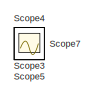
[diagram: root canvas - part 1/3, top left region]
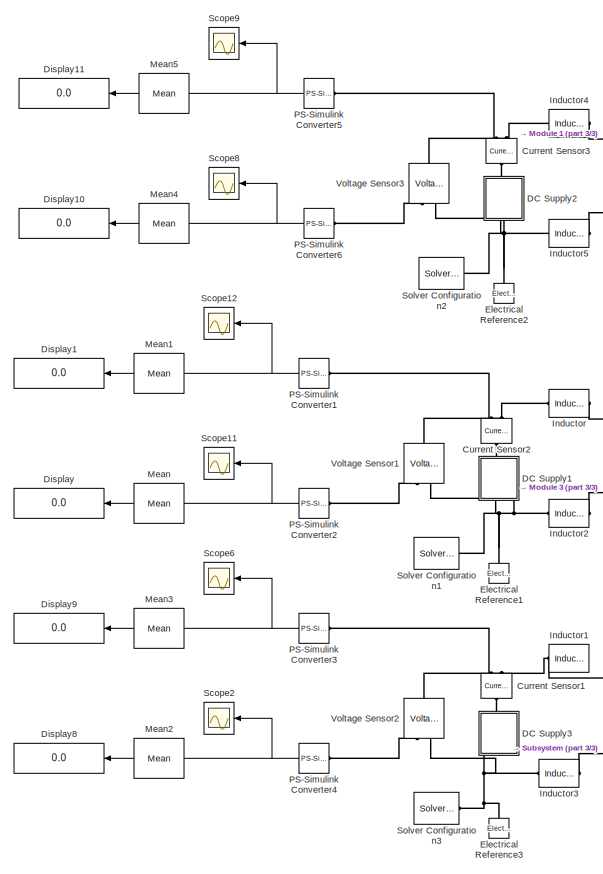
[diagram: root canvas - part 2/3, central region]
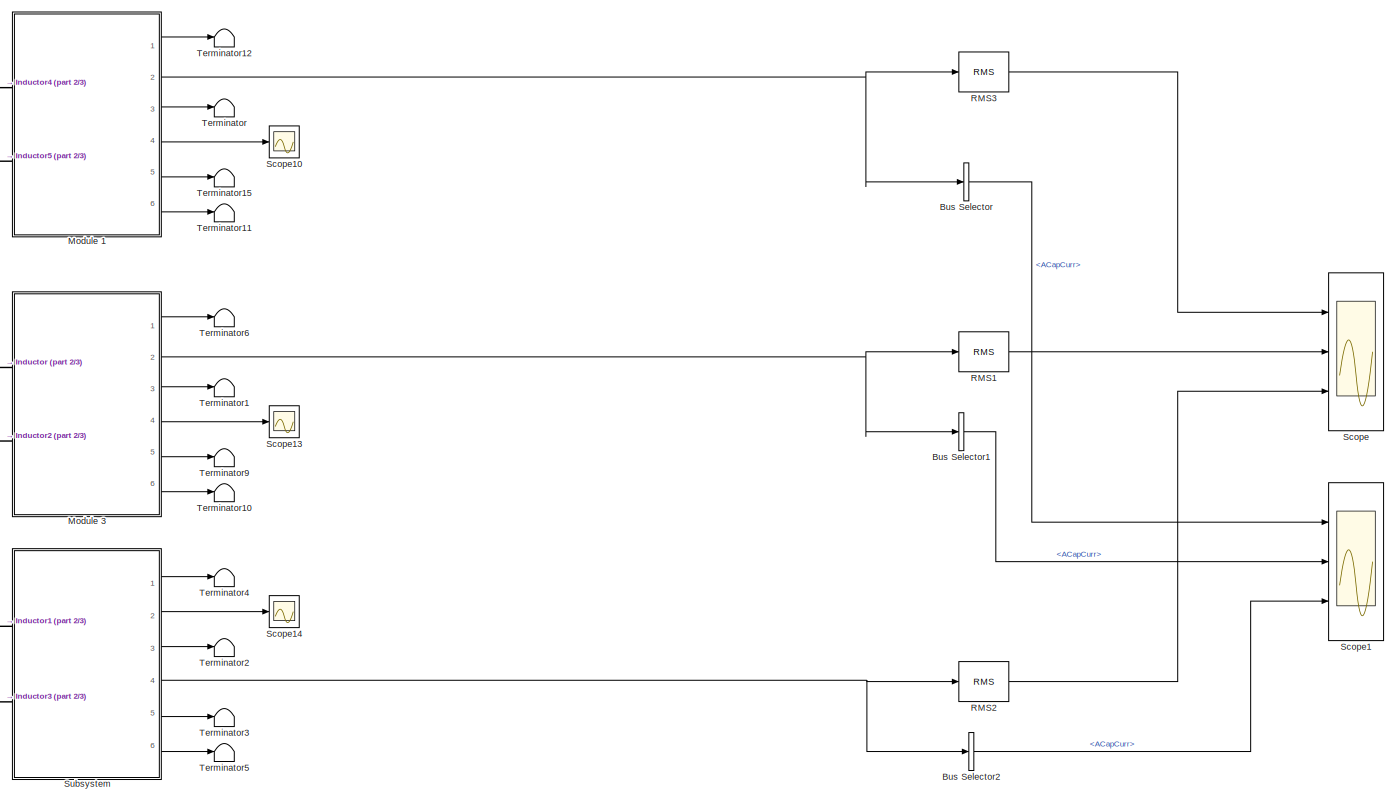
[diagram: root canvas - part 3/3, bottom right region]
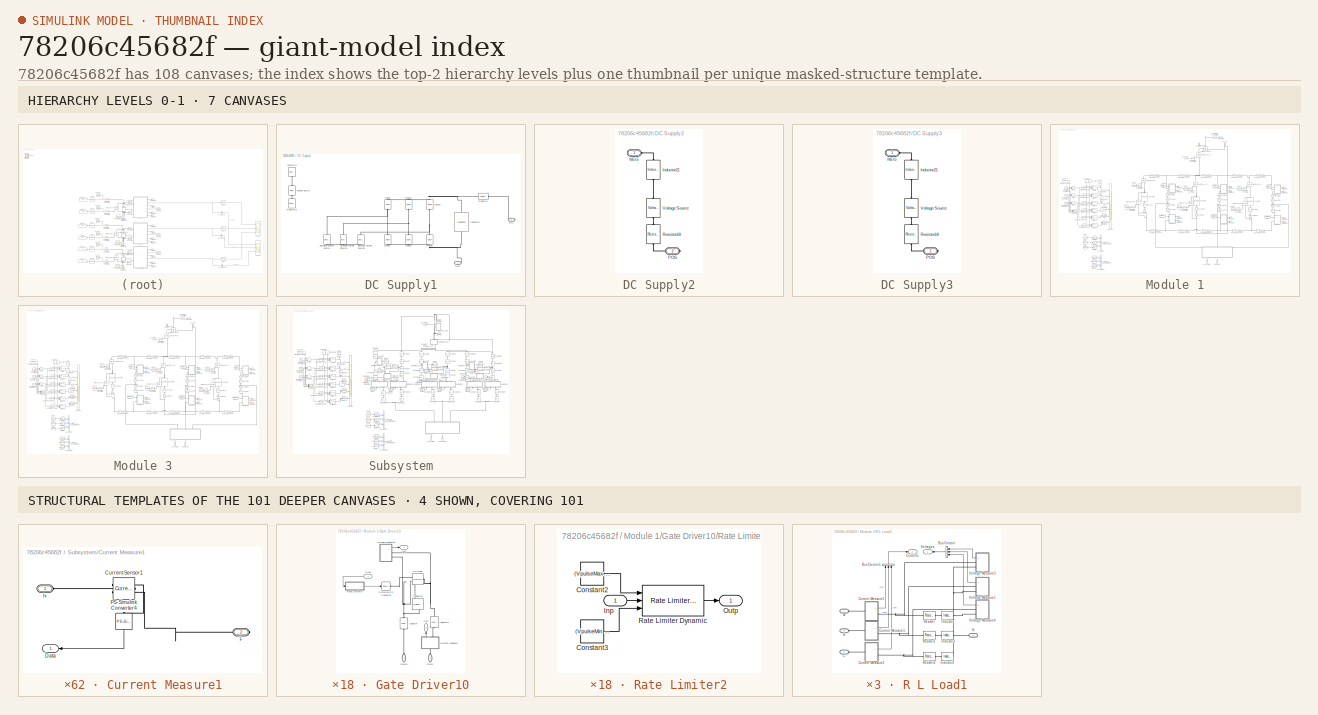
[diagram: thumbnail index - top-2 hierarchy levels (7 canvases) + 4 structural-template representatives of the remaining 101 canvases]
MODEL slx_78206c45682f
KIND model
CONFIG AbsTol = auto
CONFIG EnableMultiTasking = off
CONFIG FixedStep = SampleTime*1e-2
CONFIG MaxStep = auto
CONFIG MinStep = SampleTime*1e-2
CONFIG RelTol = 1e-3
CONFIG SampleTimeConstraint = Unconstrained
CONFIG Solver = FixedStepAuto
CONFIG SolverName = FixedStepAuto
CONFIG StartTime = 0.0
CONFIG StopTime = Tfinal
BLOCK [BusSelector] Bus Selector
  Commented = on
  OutputAsBus = off
  OutputSignals = ACapCurr
  Ports = [1, 1]
BLOCK [BusSelector] Bus Selector1
  OutputAsBus = off
  OutputSignals = ACapCurr
  Ports = [1, 1]
BLOCK [BusSelector] Bus Selector2
  Commented = on
  OutputAsBus = off
  OutputSignals = ACapCurr
  Ports = [1, 1]
BLOCK [Reference] Current Sensor1  REF=fl_lib/Electrical/Electrical Sensors/Current Sensor
  Commented = on
  Ports = [0, 0, 0, 0, 0, 1, 2]
  SourceBlock = fl_lib/Electrical/Electrical Sensors/Current Sensor
  SourceProductBaseCode = SS
  SourceProductName = Simscape
  SourceType = Current Sensor
BLOCK [Reference] Current Sensor2  REF=fl_lib/Electrical/Electrical Sensors/Current Sensor
  Ports = [0, 0, 0, 0, 0, 1, 2]
  SourceBlock = fl_lib/Electrical/Electrical Sensors/Current Sensor
  SourceProductBaseCode = SS
  SourceProductName = Simscape
  SourceType = Current Sensor
BLOCK [Reference] Current Sensor3  REF=fl_lib/Electrical/Electrical Sensors/Current Sensor
  Commented = on
  Ports = [0, 0, 0, 0, 0, 1, 2]
  SourceBlock = fl_lib/Electrical/Electrical Sensors/Current Sensor
  SourceProductBaseCode = SS
  SourceProductName = Simscape
  SourceType = Current Sensor
BLOCK [SubSystem] DC Supply1
  Ports = [0, 0, 0, 0, 0, 1, 1]
  RequestExecContextInheritance = off
BLOCK [Reference] DC Supply1/Capacitor3  REF=elec_lib/Passive Devices/Capacitor
  Ports = [0, 0, 0, 0, 0, 1, 1]
  SourceBlock = elec_lib/Passive Devices/Capacitor
  SourceProductBaseCode = SN
  SourceProductName = Simscape Electronics
  SourceType = Capacitor
BLOCK [Reference] DC Supply1/Diode  REF=elec_lib/Semiconductor
Devices/Diode
  Ports = [0, 0, 0, 0, 0, 1, 1]
  SourceBlock = elec_lib/Semiconductor\nDevices/Diode
  SourceProductBaseCode = SN
  SourceProductName = Simscape Electronics
  SourceType = Diode
BLOCK [Reference] DC Supply1/Diode1  REF=elec_lib/Semiconductor
Devices/Diode
  Ports = [0, 0, 0, 0, 0, 1, 1]
  SourceBlock = elec_lib/Semiconductor\nDevices/Diode
  SourceProductBaseCode = SN
  SourceProductName = Simscape Electronics
  SourceType = Diode
BLOCK [Reference] DC Supply1/Diode2  REF=elec_lib/Semiconductor
Devices/Diode
  Ports = [0, 0, 0, 0, 0, 1, 1]
  SourceBlock = elec_lib/Semiconductor\nDevices/Diode
  SourceProductBaseCode = SN
  SourceProductName = Simscape Electronics
  SourceType = Diode
BLOCK [Reference] DC Supply1/Diode3  REF=elec_lib/Semiconductor
Devices/Diode
  Ports = [0, 0, 0, 0, 0, 1, 1]
  SourceBlock = elec_lib/Semiconductor\nDevices/Diode
  SourceProductBaseCode = SN
  SourceProductName = Simscape Electronics
  SourceType = Diode
BLOCK [Reference] DC Supply1/Diode4  REF=elec_lib/Semiconductor
Devices/Diode
  Ports = [0, 0, 0, 0, 0, 1, 1]
  SourceBlock = elec_lib/Semiconductor\nDevices/Diode
  SourceProductBaseCode = SN
  SourceProductName = Simscape Electronics
  SourceType = Diode
BLOCK [Reference] DC Supply1/Diode5  REF=elec_lib/Semiconductor
Devices/Diode
  Ports = [0, 0, 0, 0, 0, 1, 1]
  SourceBlock = elec_lib/Semiconductor\nDevices/Diode
  SourceProductBaseCode = SN
  SourceProductName = Simscape Electronics
  SourceType = Diode
BLOCK [Reference] DC Supply1/Inductor21  REF=elec_lib/Passive Devices/Inductor
  Commented = on
  Ports = [0, 0, 0, 0, 0, 1, 1]
  SourceBlock = elec_lib/Passive Devices/Inductor
  SourceProductBaseCode = SN
  SourceProductName = Simscape Electronics
  SourceType = Inductor
BLOCK [PMIOPort] DC Supply1/NEG
  Side = Left
BLOCK [PMIOPort] DC Supply1/POS
  Port = 2
  Side = Right
BLOCK [Reference] DC Supply1/Resistor1  REF=elec_lib/Passive Devices/Resistor
  Ports = [0, 0, 0, 0, 0, 1, 1]
  SourceBlock = elec_lib/Passive Devices/Resistor
  SourceProductBaseCode = SN
  SourceProductName = Simscape Electronics
  SourceType = Resistor
BLOCK [Reference] DC Supply1/Resistor18  REF=elec_lib/Passive Devices/Resistor
  Commented = on
  Ports = [0, 0, 0, 0, 0, 1, 1]
  SourceBlock = elec_lib/Passive Devices/Resistor
  SourceProductBaseCode = SN
  SourceProductName = Simscape Electronics
  SourceType = Resistor
BLOCK [Reference] DC Supply1/Sinusoidal Voltage Source  REF=elec_lib/Additional
Components/SPICE-Compatible
Components/Sources/Sinusoidal Voltage
Source
  Ports = [0, 0, 0, 0, 0, 1, 1]
  SourceBlock = elec_lib/Additional\nComponents/SPICE-Compatible\nComponents/Sources/Sinusoidal Voltage\nSource
  SourceProductBaseCode = SN
  SourceProductName = Simscape Electronics
  SourceType = Sinusoidal Voltage\nSource
BLOCK [Reference] DC Supply1/Sinusoidal Voltage Source1  REF=elec_lib/Additional
Components/SPICE-Compatible
Components/Sources/Sinusoidal Voltage
Source
  Ports = [0, 0, 0, 0, 0, 1, 1]
  SourceBlock = elec_lib/Additional\nComponents/SPICE-Compatible\nComponents/Sources/Sinusoidal Voltage\nSource
  SourceProductBaseCode = SN
  SourceProductName = Simscape Electronics
  SourceType = Sinusoidal Voltage\nSource
BLOCK [Reference] DC Supply1/Sinusoidal Voltage Source2  REF=elec_lib/Additional
Components/SPICE-Compatible
Components/Sources/Sinusoidal Voltage
Source
  Ports = [0, 0, 0, 0, 0, 1, 1]
  SourceBlock = elec_lib/Additional\nComponents/SPICE-Compatible\nComponents/Sources/Sinusoidal Voltage\nSource
  SourceProductBaseCode = SN
  SourceProductName = Simscape Electronics
  SourceType = Sinusoidal Voltage\nSource
BLOCK [Reference] DC Supply1/Voltage Source  REF=elec_lib/Sources/Voltage Source
  Commented = on
  Ports = [0, 0, 0, 0, 0, 1, 1]
  SourceBlock = elec_lib/Sources/Voltage Source
  SourceProductBaseCode = SN
  SourceProductName = Simscape Electronics
  SourceType = Voltage Source
BLOCK [SubSystem] DC Supply2
  Commented = on
  Ports = [0, 0, 0, 0, 0, 1, 1]
  RequestExecContextInheritance = off
BLOCK [Reference] DC Supply2/Inductor21  REF=elec_lib/Passive Devices/Inductor
  Ports = [0, 0, 0, 0, 0, 1, 1]
  SourceBlock = elec_lib/Passive Devices/Inductor
  SourceProductBaseCode = SN
  SourceProductName = Simscape Electronics
  SourceType = Inductor
BLOCK [PMIOPort] DC Supply2/NEG
  Side = Left
BLOCK [PMIOPort] DC Supply2/POS
  Port = 2
  Side = Right
BLOCK [Reference] DC Supply2/Resistor18  REF=elec_lib/Passive Devices/Resistor
  Ports = [0, 0, 0, 0, 0, 1, 1]
  SourceBlock = elec_lib/Passive Devices/Resistor
  SourceProductBaseCode = SN
  SourceProductName = Simscape Electronics
  SourceType = Resistor
BLOCK [Reference] DC Supply2/Voltage Source  REF=elec_lib/Sources/Voltage Source
  Ports = [0, 0, 0, 0, 0, 1, 1]
  SourceBlock = elec_lib/Sources/Voltage Source
  SourceProductBaseCode = SN
  SourceProductName = Simscape Electronics
  SourceType = Voltage Source
BLOCK [SubSystem] DC Supply3
  Commented = on
  Ports = [0, 0, 0, 0, 0, 1, 1]
  RequestExecContextInheritance = off
BLOCK [Reference] DC Supply3/Inductor21  REF=elec_lib/Passive Devices/Inductor
  Ports = [0, 0, 0, 0, 0, 1, 1]
  SourceBlock = elec_lib/Passive Devices/Inductor
  SourceProductBaseCode = SN
  SourceProductName = Simscape Electronics
  SourceType = Inductor
BLOCK [PMIOPort] DC Supply3/NEG
  Side = Left
BLOCK [PMIOPort] DC Supply3/POS
  Port = 2
  Side = Right
BLOCK [Reference] DC Supply3/Resistor18  REF=elec_lib/Passive Devices/Resistor
  Ports = [0, 0, 0, 0, 0, 1, 1]
  SourceBlock = elec_lib/Passive Devices/Resistor
  SourceProductBaseCode = SN
  SourceProductName = Simscape Electronics
  SourceType = Resistor
BLOCK [Reference] DC Supply3/Voltage Source  REF=elec_lib/Sources/Voltage Source
  Ports = [0, 0, 0, 0, 0, 1, 1]
  SourceBlock = elec_lib/Sources/Voltage Source
  SourceProductBaseCode = SN
  SourceProductName = Simscape Electronics
  SourceType = Voltage Source
BLOCK [Display] Display
  Decimation = 1
  Ports = [1]
BLOCK [Display] Display1
  Decimation = 1
  Ports = [1]
BLOCK [Display] Display10
  Commented = on
  Decimation = 1
  Ports = [1]
BLOCK [Display] Display11
  Commented = on
  Decimation = 1
  Ports = [1]
BLOCK [Display] Display8
  Commented = on
  Decimation = 1
  Ports = [1]
BLOCK [Display] Display9
  Commented = on
  Decimation = 1
  Ports = [1]
BLOCK [Reference] Electrical Reference1  REF=fl_lib/Electrical/Electrical Elements/Electrical Reference
  Ports = [0, 0, 0, 0, 0, 1]
  SourceBlock = fl_lib/Electrical/Electrical Elements/Electrical Reference
  SourceProductBaseCode = SS
  SourceProductName = Simscape
  SourceType = Electrical Reference
BLOCK [Reference] Electrical Reference2  REF=fl_lib/Electrical/Electrical Elements/Electrical Reference
  Ports = [0, 0, 0, 0, 0, 1]
  SourceBlock = fl_lib/Electrical/Electrical Elements/Electrical Reference
  SourceProductBaseCode = SS
  SourceProductName = Simscape
  SourceType = Electrical Reference
BLOCK [Reference] Electrical Reference3  REF=fl_lib/Electrical/Electrical Elements/Electrical Reference
  Commented = on
  Ports = [0, 0, 0, 0, 0, 1]
  SourceBlock = fl_lib/Electrical/Electrical Elements/Electrical Reference
  SourceProductBaseCode = SS
  SourceProductName = Simscape
  SourceType = Electrical Reference
BLOCK [Reference] Inductor  REF=elec_lib/Passive Devices/Inductor
  Ports = [0, 0, 0, 0, 0, 1, 1]
  SourceBlock = elec_lib/Passive Devices/Inductor
  SourceProductBaseCode = SN
  SourceProductName = Simscape Electronics
  SourceType = Inductor
BLOCK [Reference] Inductor1  REF=elec_lib/Passive Devices/Inductor
  Commented = on
  Ports = [0, 0, 0, 0, 0, 1, 1]
  SourceBlock = elec_lib/Passive Devices/Inductor
  SourceProductBaseCode = SN
  SourceProductName = Simscape Electronics
  SourceType = Inductor
BLOCK [Reference] Inductor2  REF=elec_lib/Passive Devices/Inductor
  Ports = [0, 0, 0, 0, 0, 1, 1]
  SourceBlock = elec_lib/Passive Devices/Inductor
  SourceProductBaseCode = SN
  SourceProductName = Simscape Electronics
  SourceType = Inductor
BLOCK [Reference] Inductor3  REF=elec_lib/Passive Devices/Inductor
  Commented = on
  Ports = [0, 0, 0, 0, 0, 1, 1]
  SourceBlock = elec_lib/Passive Devices/Inductor
  SourceProductBaseCode = SN
  SourceProductName = Simscape Electronics
  SourceType = Inductor
BLOCK [Reference] Inductor4  REF=elec_lib/Passive Devices/Inductor
  Commented = on
  Ports = [0, 0, 0, 0, 0, 1, 1]
  SourceBlock = elec_lib/Passive Devices/Inductor
  SourceProductBaseCode = SN
  SourceProductName = Simscape Electronics
  SourceType = Inductor
BLOCK [Reference] Inductor5  REF=elec_lib/Passive Devices/Inductor
  Commented = on
  Ports = [0, 0, 0, 0, 0, 1, 1]
  SourceBlock = elec_lib/Passive Devices/Inductor
  SourceProductBaseCode = SN
  SourceProductName = Simscape Electronics
  SourceType = Inductor
BLOCK [Reference] Mean  REF=powerlib_meascontrol/Measurements/Mean
  Ports = [1, 1]
  SourceBlock = powerlib_meascontrol/Measurements/Mean
  SourceProductBaseCode = PS
  SourceProductName = Simscape Power Systems
  SourceType = Mean
BLOCK [Reference] Mean1  REF=powerlib_meascontrol/Measurements/Mean
  Ports = [1, 1]
  SourceBlock = powerlib_meascontrol/Measurements/Mean
  SourceProductBaseCode = PS
  SourceProductName = Simscape Power Systems
  SourceType = Mean
BLOCK [Reference] Mean2  REF=powerlib_meascontrol/Measurements/Mean
  Commented = on
  Ports = [1, 1]
  SourceBlock = powerlib_meascontrol/Measurements/Mean
  SourceProductBaseCode = PS
  SourceProductName = Simscape Power Systems
  SourceType = Mean
BLOCK [Reference] Mean3  REF=powerlib_meascontrol/Measurements/Mean
  Commented = on
  Ports = [1, 1]
  SourceBlock = powerlib_meascontrol/Measurements/Mean
  SourceProductBaseCode = PS
  SourceProductName = Simscape Power Systems
  SourceType = Mean
BLOCK [Reference] Mean4  REF=powerlib_meascontrol/Measurements/Mean
  Commented = on
  Ports = [1, 1]
  SourceBlock = powerlib_meascontrol/Measurements/Mean
  SourceProductBaseCode = PS
  SourceProductName = Simscape Power Systems
  SourceType = Mean
BLOCK [Reference] Mean5  REF=powerlib_meascontrol/Measurements/Mean
  Commented = on
  Ports = [1, 1]
  SourceBlock = powerlib_meascontrol/Measurements/Mean
  SourceProductBaseCode = PS
  SourceProductName = Simscape Power Systems
  SourceType = Mean
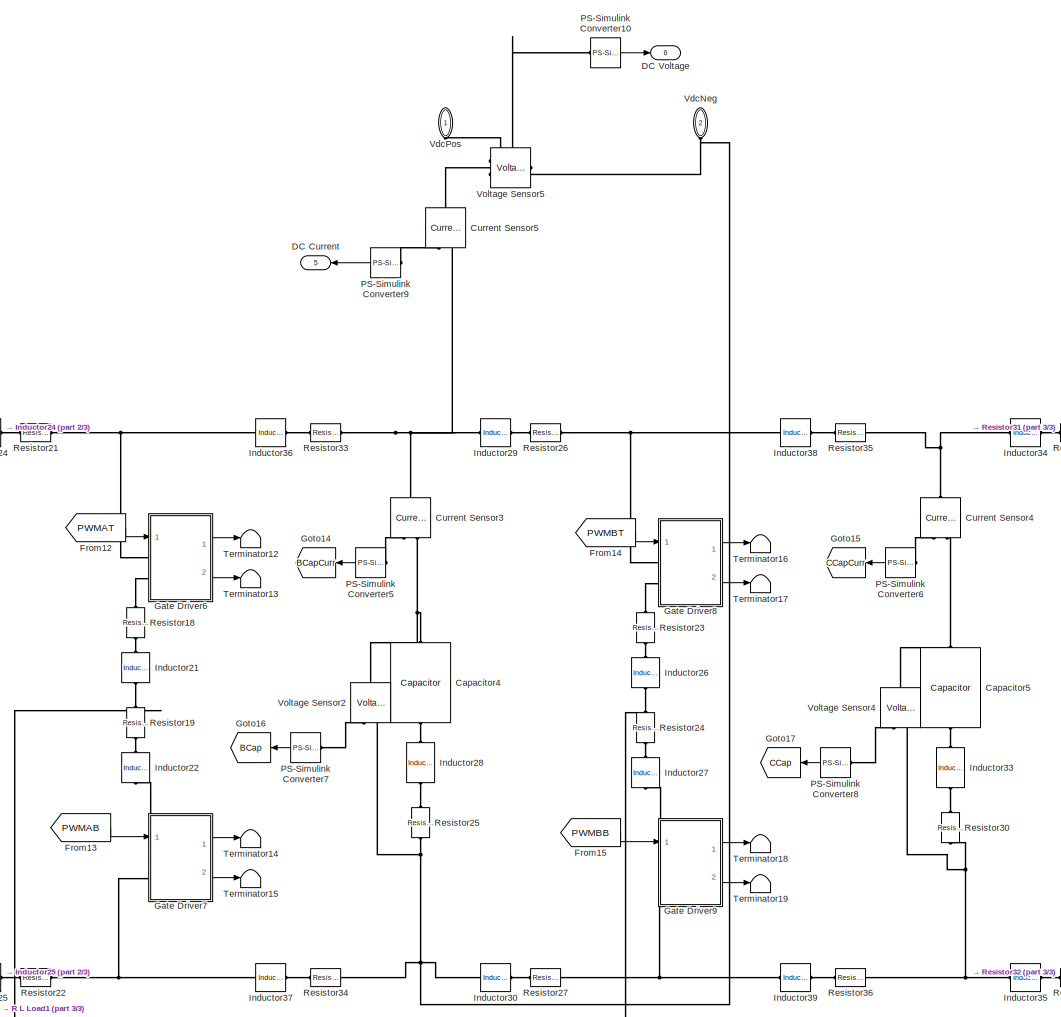
[diagram: Module 1 - part 1/3, central region]
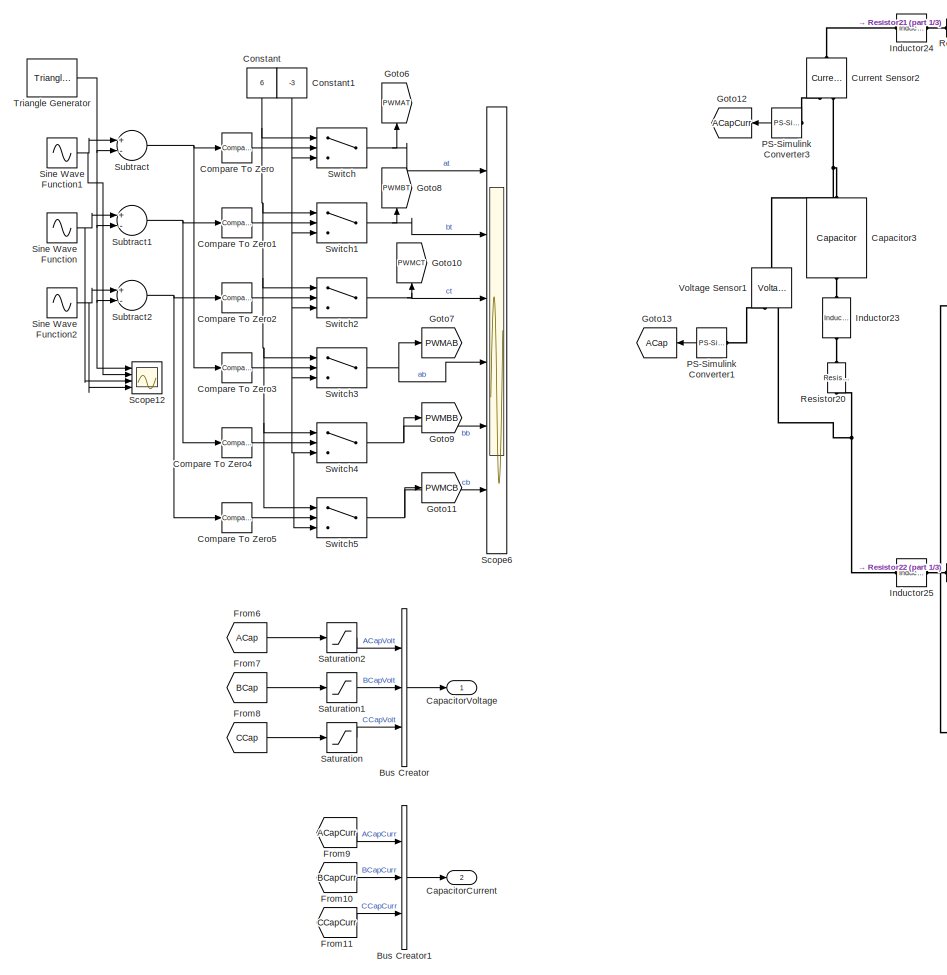
[diagram: Module 1 - part 2/3, middle left region]
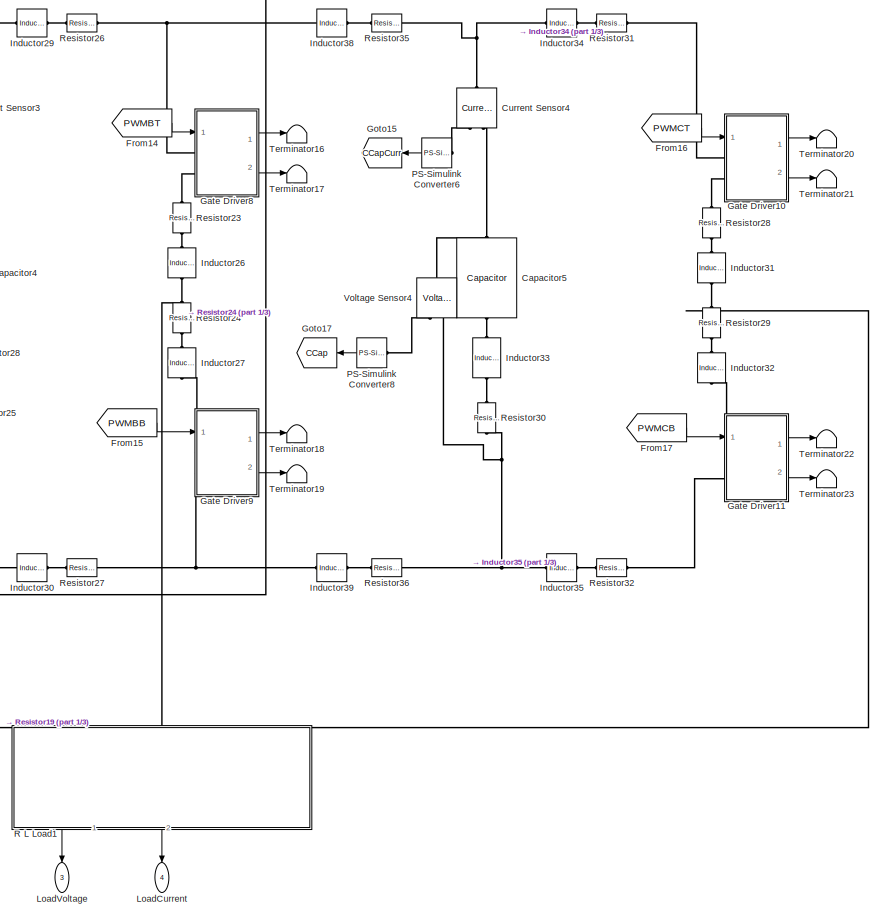
[diagram: Module 1 - part 3/3, middle right region]
BLOCK [SubSystem] Module 1
  Commented = on
  Ports = [0, 6, 0, 0, 0, 2]
  RequestExecContextInheritance = off
BLOCK [BusCreator] Module 1/Bus Creator
  DisplayOption = bar
  InheritFromInputs = on
  Inputs = 3
  Ports = [3, 1]
BLOCK [BusCreator] Module 1/Bus Creator1
  DisplayOption = bar
  InheritFromInputs = on
  Inputs = 3
  Ports = [3, 1]
BLOCK [Reference] Module 1/Capacitor3  REF=elec_lib/Passive Devices/Capacitor
  Ports = [0, 0, 0, 0, 0, 1, 1]
  SourceBlock = elec_lib/Passive Devices/Capacitor
  SourceProductBaseCode = SN
  SourceProductName = Simscape Electronics
  SourceType = Capacitor
BLOCK [Reference] Module 1/Capacitor4  REF=elec_lib/Passive Devices/Capacitor
  Ports = [0, 0, 0, 0, 0, 1, 1]
  SourceBlock = elec_lib/Passive Devices/Capacitor
  SourceProductBaseCode = SN
  SourceProductName = Simscape Electronics
  SourceType = Capacitor
BLOCK [Reference] Module 1/Capacitor5  REF=elec_lib/Passive Devices/Capacitor
  Ports = [0, 0, 0, 0, 0, 1, 1]
  SourceBlock = elec_lib/Passive Devices/Capacitor
  SourceProductBaseCode = SN
  SourceProductName = Simscape Electronics
  SourceType = Capacitor
BLOCK [Outport] Module 1/CapacitorCurrent
  IconDisplay = Port number
  Port = 2
BLOCK [Outport] Module 1/CapacitorVoltage
  IconDisplay = Port number
BLOCK [Reference] Module 1/Compare To Zero  REF=simulink/Logic and Bit
Operations/Compare
To Zero
  Ports = [1, 1]
  SourceBlock = simulink/Logic and Bit\nOperations/Compare\nTo Zero
  SourceProductBaseCode = SL
  SourceProductName = Simulink
  SourceType = Compare To Zero
BLOCK [Reference] Module 1/Compare To Zero1  REF=simulink/Logic and Bit
Operations/Compare
To Zero
  Ports = [1, 1]
  SourceBlock = simulink/Logic and Bit\nOperations/Compare\nTo Zero
  SourceProductBaseCode = SL
  SourceProductName = Simulink
  SourceType = Compare To Zero
BLOCK [Reference] Module 1/Compare To Zero2  REF=simulink/Logic and Bit
Operations/Compare
To Zero
  Ports = [1, 1]
  SourceBlock = simulink/Logic and Bit\nOperations/Compare\nTo Zero
  SourceProductBaseCode = SL
  SourceProductName = Simulink
  SourceType = Compare To Zero
BLOCK [Reference] Module 1/Compare To Zero3  REF=simulink/Logic and Bit
Operations/Compare
To Zero
  Ports = [1, 1]
  SourceBlock = simulink/Logic and Bit\nOperations/Compare\nTo Zero
  SourceProductBaseCode = SL
  SourceProductName = Simulink
  SourceType = Compare To Zero
BLOCK [Reference] Module 1/Compare To Zero4  REF=simulink/Logic and Bit
Operations/Compare
To Zero
  Ports = [1, 1]
  SourceBlock = simulink/Logic and Bit\nOperations/Compare\nTo Zero
  SourceProductBaseCode = SL
  SourceProductName = Simulink
  SourceType = Compare To Zero
BLOCK [Reference] Module 1/Compare To Zero5  REF=simulink/Logic and Bit
Operations/Compare
To Zero
  Ports = [1, 1]
  SourceBlock = simulink/Logic and Bit\nOperations/Compare\nTo Zero
  SourceProductBaseCode = SL
  SourceProductName = Simulink
  SourceType = Compare To Zero
BLOCK [Constant] Module 1/Constant
  Value = 6
BLOCK [Constant] Module 1/Constant1
  Value = -3
BLOCK [Reference] Module 1/Current Sensor2  REF=fl_lib/Electrical/Electrical Sensors/Current Sensor
  Ports = [0, 0, 0, 0, 0, 1, 2]
  SourceBlock = fl_lib/Electrical/Electrical Sensors/Current Sensor
  SourceProductBaseCode = SS
  SourceProductName = Simscape
  SourceType = Current Sensor
BLOCK [Reference] Module 1/Current Sensor3  REF=fl_lib/Electrical/Electrical Sensors/Current Sensor
  Ports = [0, 0, 0, 0, 0, 1, 2]
  SourceBlock = fl_lib/Electrical/Electrical Sensors/Current Sensor
  SourceProductBaseCode = SS
  SourceProductName = Simscape
  SourceType = Current Sensor
BLOCK [Reference] Module 1/Current Sensor4  REF=fl_lib/Electrical/Electrical Sensors/Current Sensor
  Ports = [0, 0, 0, 0, 0, 1, 2]
  SourceBlock = fl_lib/Electrical/Electrical Sensors/Current Sensor
  SourceProductBaseCode = SS
  SourceProductName = Simscape
  SourceType = Current Sensor
BLOCK [Reference] Module 1/Current Sensor5  REF=fl_lib/Electrical/Electrical Sensors/Current Sensor
  Ports = [0, 0, 0, 0, 0, 1, 2]
  SourceBlock = fl_lib/Electrical/Electrical Sensors/Current Sensor
  SourceProductBaseCode = SS
  SourceProductName = Simscape
  SourceType = Current Sensor
BLOCK [Outport] Module 1/DC Current
  IconDisplay = Port number
  Port = 5
BLOCK [Outport] Module 1/DC Voltage
  IconDisplay = Port number
  Port = 6
BLOCK [From] Module 1/From10
  GotoTag = BCapCurr
BLOCK [From] Module 1/From11
  GotoTag = CCapCurr
BLOCK [From] Module 1/From12
  GotoTag = PWMAT
BLOCK [From] Module 1/From13
  GotoTag = PWMAB
BLOCK [From] Module 1/From14
  GotoTag = PWMBT
BLOCK [From] Module 1/From15
  GotoTag = PWMBB
BLOCK [From] Module 1/From16
  GotoTag = PWMCT
BLOCK [From] Module 1/From17
  GotoTag = PWMCB
BLOCK [From] Module 1/From6
  GotoTag = ACap
BLOCK [From] Module 1/From7
  GotoTag = BCap
BLOCK [From] Module 1/From8
  GotoTag = CCap
BLOCK [From] Module 1/From9
  GotoTag = ACapCurr
BLOCK [SubSystem] Module 1/Gate Driver10
  Ports = [1, 2, 0, 0, 0, 2]
  RequestExecContextInheritance = off
BLOCK [Reference] Module 1/Gate Driver10/Capacitor  REF=elec_lib/Passive Devices/Capacitor
  Ports = [0, 0, 0, 0, 0, 1, 1]
  SourceBlock = elec_lib/Passive Devices/Capacitor
  SourceProductBaseCode = SN
  SourceProductName = Simscape Electronics
  SourceType = Capacitor
BLOCK [Outport] Module 1/Gate Driver10/Curr
  IconDisplay = Port number
  Port = 2
BLOCK [SubSystem] Module 1/Gate Driver10/Current Measure
  Ports = [0, 1, 0, 0, 0, 1, 1]
  RequestExecContextInheritance = off
BLOCK [Reference] Module 1/Gate Driver10/Current Measure/Current Sensor1  REF=fl_lib/Electrical/Electrical Sensors/Current Sensor
  Ports = [0, 0, 0, 0, 0, 1, 2]
  SourceBlock = fl_lib/Electrical/Electrical Sensors/Current Sensor
  SourceProductBaseCode = SS
  SourceProductName = Simscape
  SourceType = Current Sensor
BLOCK [Outport] Module 1/Gate Driver10/Current Measure/Data
  IconDisplay = Port number
BLOCK [PMIOPort] Module 1/Gate Driver10/Current Measure/I+
  Side = Left
BLOCK [PMIOPort] Module 1/Gate Driver10/Current Measure/I-
  Port = 2
  Side = Right
BLOCK [Reference] Module 1/Gate Driver10/Current Measure/PS-Simulink Converter4  REF=nesl_utility/PS-Simulink
Converter
  Ports = [0, 1, 0, 0, 0, 1]
  SourceBlock = nesl_utility/PS-Simulink\nConverter
  SourceProductBaseCode = SS
  SourceProductName = Simscape
  SourceType = PS-Simulink\nConverter
BLOCK [PMIOPort] Module 1/Gate Driver10/Drain
  Side = Left
BLOCK [Reference] Module 1/Gate Driver10/Inductor  REF=elec_lib/Passive Devices/Inductor
  Ports = [0, 0, 0, 0, 0, 1, 1]
  SourceBlock = elec_lib/Passive Devices/Inductor
  SourceProductBaseCode = SN
  SourceProductName = Simscape Electronics
  SourceType = Inductor
BLOCK [Reference] Module 1/Gate Driver10/Inductor1  REF=elec_lib/Passive Devices/Inductor
  Ports = [0, 0, 0, 0, 0, 1, 1]
  SourceBlock = elec_lib/Passive Devices/Inductor
  SourceProductBaseCode = SN
  SourceProductName = Simscape Electronics
  SourceType = Inductor
BLOCK [Inport] Module 1/Gate Driver10/PWM
  IconDisplay = Port number
BLOCK [SubSystem] Module 1/Gate Driver10/Rate Limiter2
  Ports = [1, 1]
  RequestExecContextInheritance = off
BLOCK [Constant] Module 1/Gate Driver10/Rate Limiter2/Constant2
  Value = (VpulseMax - VpulseMin)/1e-9
BLOCK [Constant] Module 1/Gate Driver10/Rate Limiter2/Constant3
  Value = (VpulseMin - VpulseMax)/1e-9
BLOCK [Inport] Module 1/Gate Driver10/Rate Limiter2/Inp
  IconDisplay = Port number
BLOCK [Outport] Module 1/Gate Driver10/Rate Limiter2/Outp
  IconDisplay = Port number
BLOCK [Reference] Module 1/Gate Driver10/Rate Limiter2/Rate Limiter Dynamic  REF=simulink/Discontinuities/Rate Limiter
Dynamic
  Ports = [3, 1]
  SourceBlock = simulink/Discontinuities/Rate Limiter\nDynamic
  SourceProductBaseCode = SL
  SourceProductName = Simulink
  SourceType = Rate Limiter Dynamic
BLOCK [Reference] Module 1/Gate Driver10/Simulink-PS Converter  REF=nesl_utility/Simulink-PS
Converter
  Ports = [1, 0, 0, 0, 0, 0, 1]
  SourceBlock = nesl_utility/Simulink-PS\nConverter
  SourceProductBaseCode = SS
  SourceProductName = Simscape
  SourceType = Simulink-PS\nConverter
BLOCK [PMIOPort] Module 1/Gate Driver10/Source
  Port = 2
  Side = Left
BLOCK [Reference] Module 1/Gate Driver10/Switch6  REF=fl_lib/Electrical/Electrical Elements/Switch
  Ports = [0, 0, 0, 0, 0, 1, 2]
  SourceBlock = fl_lib/Electrical/Electrical Elements/Switch
  SourceProductBaseCode = SS
  SourceProductName = Simscape
  SourceType = Switch
BLOCK [Outport] Module 1/Gate Driver10/Volt
  IconDisplay = Port number
BLOCK [SubSystem] Module 1/Gate Driver10/Voltage Measure3
  Ports = [0, 1, 0, 0, 0, 0, 2]
  RequestExecContextInheritance = off
BLOCK [Outport] Module 1/Gate Driver10/Voltage Measure3/Data
  IconDisplay = Port number
BLOCK [Reference] Module 1/Gate Driver10/Voltage Measure3/PS-Simulink Converter2  REF=nesl_utility/PS-Simulink
Converter
  Ports = [0, 1, 0, 0, 0, 1]
  SourceBlock = nesl_utility/PS-Simulink\nConverter
  SourceProductBaseCode = SS
  SourceProductName = Simscape
  SourceType = PS-Simulink\nConverter
BLOCK [PMIOPort] Module 1/Gate Driver10/Voltage Measure3/V+
  Side = Right
BLOCK [PMIOPort] Module 1/Gate Driver10/Voltage Measure3/V-
  Port = 2
  Side = Right
BLOCK [Reference] Module 1/Gate Driver10/Voltage Measure3/Voltage Sensor3  REF=fl_lib/Electrical/Electrical Sensors/Voltage Sensor
  Ports = [0, 0, 0, 0, 0, 1, 2]
  SourceBlock = fl_lib/Electrical/Electrical Sensors/Voltage Sensor
  SourceProductBaseCode = SS
  SourceProductName = Simscape
  SourceType = Voltage Sensor
BLOCK [SubSystem] Module 1/Gate Driver11
  Ports = [1, 2, 0, 0, 0, 2]
  RequestExecContextInheritance = off
BLOCK [Reference] Module 1/Gate Driver11/Capacitor  REF=elec_lib/Passive Devices/Capacitor
  Ports = [0, 0, 0, 0, 0, 1, 1]
  SourceBlock = elec_lib/Passive Devices/Capacitor
  SourceProductBaseCode = SN
  SourceProductName = Simscape Electronics
  SourceType = Capacitor
BLOCK [Outport] Module 1/Gate Driver11/Curr
  IconDisplay = Port number
  Port = 2
BLOCK [SubSystem] Module 1/Gate Driver11/Current Measure
  Ports = [0, 1, 0, 0, 0, 1, 1]
  RequestExecContextInheritance = off
BLOCK [Reference] Module 1/Gate Driver11/Current Measure/Current Sensor1  REF=fl_lib/Electrical/Electrical Sensors/Current Sensor
  Ports = [0, 0, 0, 0, 0, 1, 2]
  SourceBlock = fl_lib/Electrical/Electrical Sensors/Current Sensor
  SourceProductBaseCode = SS
  SourceProductName = Simscape
  SourceType = Current Sensor
BLOCK [Outport] Module 1/Gate Driver11/Current Measure/Data
  IconDisplay = Port number
BLOCK [PMIOPort] Module 1/Gate Driver11/Current Measure/I+
  Side = Left
BLOCK [PMIOPort] Module 1/Gate Driver11/Current Measure/I-
  Port = 2
  Side = Right
BLOCK [Reference] Module 1/Gate Driver11/Current Measure/PS-Simulink Converter4  REF=nesl_utility/PS-Simulink
Converter
  Ports = [0, 1, 0, 0, 0, 1]
  SourceBlock = nesl_utility/PS-Simulink\nConverter
  SourceProductBaseCode = SS
  SourceProductName = Simscape
  SourceType = PS-Simulink\nConverter
BLOCK [PMIOPort] Module 1/Gate Driver11/Drain
  Side = Left
BLOCK [Reference] Module 1/Gate Driver11/Inductor  REF=elec_lib/Passive Devices/Inductor
  Ports = [0, 0, 0, 0, 0, 1, 1]
  SourceBlock = elec_lib/Passive Devices/Inductor
  SourceProductBaseCode = SN
  SourceProductName = Simscape Electronics
  SourceType = Inductor
BLOCK [Reference] Module 1/Gate Driver11/Inductor1  REF=elec_lib/Passive Devices/Inductor
  Ports = [0, 0, 0, 0, 0, 1, 1]
  SourceBlock = elec_lib/Passive Devices/Inductor
  SourceProductBaseCode = SN
  SourceProductName = Simscape Electronics
  SourceType = Inductor
BLOCK [Inport] Module 1/Gate Driver11/PWM
  IconDisplay = Port number
BLOCK [SubSystem] Module 1/Gate Driver11/Rate Limiter2
  Ports = [1, 1]
  RequestExecContextInheritance = off
BLOCK [Constant] Module 1/Gate Driver11/Rate Limiter2/Constant2
  Value = (VpulseMax - VpulseMin)/1e-9
BLOCK [Constant] Module 1/Gate Driver11/Rate Limiter2/Constant3
  Value = (VpulseMin - VpulseMax)/1e-9
BLOCK [Inport] Module 1/Gate Driver11/Rate Limiter2/Inp
  IconDisplay = Port number
BLOCK [Outport] Module 1/Gate Driver11/Rate Limiter2/Outp
  IconDisplay = Port number
BLOCK [Reference] Module 1/Gate Driver11/Rate Limiter2/Rate Limiter Dynamic  REF=simulink/Discontinuities/Rate Limiter
Dynamic
  Ports = [3, 1]
  SourceBlock = simulink/Discontinuities/Rate Limiter\nDynamic
  SourceProductBaseCode = SL
  SourceProductName = Simulink
  SourceType = Rate Limiter Dynamic
BLOCK [Reference] Module 1/Gate Driver11/Simulink-PS Converter  REF=nesl_utility/Simulink-PS
Converter
  Ports = [1, 0, 0, 0, 0, 0, 1]
  SourceBlock = nesl_utility/Simulink-PS\nConverter
  SourceProductBaseCode = SS
  SourceProductName = Simscape
  SourceType = Simulink-PS\nConverter
BLOCK [PMIOPort] Module 1/Gate Driver11/Source
  Port = 2
  Side = Left
BLOCK [Reference] Module 1/Gate Driver11/Switch6  REF=fl_lib/Electrical/Electrical Elements/Switch
  Ports = [0, 0, 0, 0, 0, 1, 2]
  SourceBlock = fl_lib/Electrical/Electrical Elements/Switch
  SourceProductBaseCode = SS
  SourceProductName = Simscape
  SourceType = Switch
BLOCK [Outport] Module 1/Gate Driver11/Volt
  IconDisplay = Port number
BLOCK [SubSystem] Module 1/Gate Driver11/Voltage Measure3
  Ports = [0, 1, 0, 0, 0, 0, 2]
  RequestExecContextInheritance = off
BLOCK [Outport] Module 1/Gate Driver11/Voltage Measure3/Data
  IconDisplay = Port number
BLOCK [Reference] Module 1/Gate Driver11/Voltage Measure3/PS-Simulink Converter2  REF=nesl_utility/PS-Simulink
Converter
  Ports = [0, 1, 0, 0, 0, 1]
  SourceBlock = nesl_utility/PS-Simulink\nConverter
  SourceProductBaseCode = SS
  SourceProductName = Simscape
  SourceType = PS-Simulink\nConverter
BLOCK [PMIOPort] Module 1/Gate Driver11/Voltage Measure3/V+
  Side = Right
BLOCK [PMIOPort] Module 1/Gate Driver11/Voltage Measure3/V-
  Port = 2
  Side = Right
BLOCK [Reference] Module 1/Gate Driver11/Voltage Measure3/Voltage Sensor3  REF=fl_lib/Electrical/Electrical Sensors/Voltage Sensor
  Ports = [0, 0, 0, 0, 0, 1, 2]
  SourceBlock = fl_lib/Electrical/Electrical Sensors/Voltage Sensor
  SourceProductBaseCode = SS
  SourceProductName = Simscape
  SourceType = Voltage Sensor
BLOCK [SubSystem] Module 1/Gate Driver6
  Ports = [1, 2, 0, 0, 0, 2]
  RequestExecContextInheritance = off
BLOCK [Reference] Module 1/Gate Driver6/Capacitor  REF=elec_lib/Passive Devices/Capacitor
  Ports = [0, 0, 0, 0, 0, 1, 1]
  SourceBlock = elec_lib/Passive Devices/Capacitor
  SourceProductBaseCode = SN
  SourceProductName = Simscape Electronics
  SourceType = Capacitor
BLOCK [Outport] Module 1/Gate Driver6/Curr
  IconDisplay = Port number
  Port = 2
BLOCK [SubSystem] Module 1/Gate Driver6/Current Measure
  Ports = [0, 1, 0, 0, 0, 1, 1]
  RequestExecContextInheritance = off
BLOCK [Reference] Module 1/Gate Driver6/Current Measure/Current Sensor1  REF=fl_lib/Electrical/Electrical Sensors/Current Sensor
  Ports = [0, 0, 0, 0, 0, 1, 2]
  SourceBlock = fl_lib/Electrical/Electrical Sensors/Current Sensor
  SourceProductBaseCode = SS
  SourceProductName = Simscape
  SourceType = Current Sensor
BLOCK [Outport] Module 1/Gate Driver6/Current Measure/Data
  IconDisplay = Port number
BLOCK [PMIOPort] Module 1/Gate Driver6/Current Measure/I+
  Side = Left
BLOCK [PMIOPort] Module 1/Gate Driver6/Current Measure/I-
  Port = 2
  Side = Right
BLOCK [Reference] Module 1/Gate Driver6/Current Measure/PS-Simulink Converter4  REF=nesl_utility/PS-Simulink
Converter
  Ports = [0, 1, 0, 0, 0, 1]
  SourceBlock = nesl_utility/PS-Simulink\nConverter
  SourceProductBaseCode = SS
  SourceProductName = Simscape
  SourceType = PS-Simulink\nConverter
BLOCK [PMIOPort] Module 1/Gate Driver6/Drain
  Side = Left
BLOCK [Reference] Module 1/Gate Driver6/Inductor  REF=elec_lib/Passive Devices/Inductor
  Ports = [0, 0, 0, 0, 0, 1, 1]
  SourceBlock = elec_lib/Passive Devices/Inductor
  SourceProductBaseCode = SN
  SourceProductName = Simscape Electronics
  SourceType = Inductor
BLOCK [Reference] Module 1/Gate Driver6/Inductor1  REF=elec_lib/Passive Devices/Inductor
  Ports = [0, 0, 0, 0, 0, 1, 1]
  SourceBlock = elec_lib/Passive Devices/Inductor
  SourceProductBaseCode = SN
  SourceProductName = Simscape Electronics
  SourceType = Inductor
BLOCK [Inport] Module 1/Gate Driver6/PWM
  IconDisplay = Port number
BLOCK [SubSystem] Module 1/Gate Driver6/Rate Limiter2
  Ports = [1, 1]
  RequestExecContextInheritance = off
BLOCK [Constant] Module 1/Gate Driver6/Rate Limiter2/Constant2
  Value = (VpulseMax - VpulseMin)/1e-9
BLOCK [Constant] Module 1/Gate Driver6/Rate Limiter2/Constant3
  Value = (VpulseMin - VpulseMax)/1e-9
BLOCK [Inport] Module 1/Gate Driver6/Rate Limiter2/Inp
  IconDisplay = Port number
BLOCK [Outport] Module 1/Gate Driver6/Rate Limiter2/Outp
  IconDisplay = Port number
BLOCK [Reference] Module 1/Gate Driver6/Rate Limiter2/Rate Limiter Dynamic  REF=simulink/Discontinuities/Rate Limiter
Dynamic
  Ports = [3, 1]
  SourceBlock = simulink/Discontinuities/Rate Limiter\nDynamic
  SourceProductBaseCode = SL
  SourceProductName = Simulink
  SourceType = Rate Limiter Dynamic
BLOCK [Reference] Module 1/Gate Driver6/Simulink-PS Converter  REF=nesl_utility/Simulink-PS
Converter
  Ports = [1, 0, 0, 0, 0, 0, 1]
  SourceBlock = nesl_utility/Simulink-PS\nConverter
  SourceProductBaseCode = SS
  SourceProductName = Simscape
  SourceType = Simulink-PS\nConverter
BLOCK [PMIOPort] Module 1/Gate Driver6/Source
  Port = 2
  Side = Left
BLOCK [Reference] Module 1/Gate Driver6/Switch6  REF=fl_lib/Electrical/Electrical Elements/Switch
  Ports = [0, 0, 0, 0, 0, 1, 2]
  SourceBlock = fl_lib/Electrical/Electrical Elements/Switch
  SourceProductBaseCode = SS
  SourceProductName = Simscape
  SourceType = Switch
BLOCK [Outport] Module 1/Gate Driver6/Volt
  IconDisplay = Port number
BLOCK [SubSystem] Module 1/Gate Driver6/Voltage Measure3
  Ports = [0, 1, 0, 0, 0, 0, 2]
  RequestExecContextInheritance = off
BLOCK [Outport] Module 1/Gate Driver6/Voltage Measure3/Data
  IconDisplay = Port number
BLOCK [Reference] Module 1/Gate Driver6/Voltage Measure3/PS-Simulink Converter2  REF=nesl_utility/PS-Simulink
Converter
  Ports = [0, 1, 0, 0, 0, 1]
  SourceBlock = nesl_utility/PS-Simulink\nConverter
  SourceProductBaseCode = SS
  SourceProductName = Simscape
  SourceType = PS-Simulink\nConverter
BLOCK [PMIOPort] Module 1/Gate Driver6/Voltage Measure3/V+
  Side = Right
BLOCK [PMIOPort] Module 1/Gate Driver6/Voltage Measure3/V-
  Port = 2
  Side = Right
BLOCK [Reference] Module 1/Gate Driver6/Voltage Measure3/Voltage Sensor3  REF=fl_lib/Electrical/Electrical Sensors/Voltage Sensor
  Ports = [0, 0, 0, 0, 0, 1, 2]
  SourceBlock = fl_lib/Electrical/Electrical Sensors/Voltage Sensor
  SourceProductBaseCode = SS
  SourceProductName = Simscape
  SourceType = Voltage Sensor
BLOCK [SubSystem] Module 1/Gate Driver7
  Ports = [1, 2, 0, 0, 0, 2]
  RequestExecContextInheritance = off
BLOCK [Reference] Module 1/Gate Driver7/Capacitor  REF=elec_lib/Passive Devices/Capacitor
  Ports = [0, 0, 0, 0, 0, 1, 1]
  SourceBlock = elec_lib/Passive Devices/Capacitor
  SourceProductBaseCode = SN
  SourceProductName = Simscape Electronics
  SourceType = Capacitor
BLOCK [Outport] Module 1/Gate Driver7/Curr
  IconDisplay = Port number
  Port = 2
BLOCK [SubSystem] Module 1/Gate Driver7/Current Measure
  Ports = [0, 1, 0, 0, 0, 1, 1]
  RequestExecContextInheritance = off
BLOCK [Reference] Module 1/Gate Driver7/Current Measure/Current Sensor1  REF=fl_lib/Electrical/Electrical Sensors/Current Sensor
  Ports = [0, 0, 0, 0, 0, 1, 2]
  SourceBlock = fl_lib/Electrical/Electrical Sensors/Current Sensor
  SourceProductBaseCode = SS
  SourceProductName = Simscape
  SourceType = Current Sensor
BLOCK [Outport] Module 1/Gate Driver7/Current Measure/Data
  IconDisplay = Port number
BLOCK [PMIOPort] Module 1/Gate Driver7/Current Measure/I+
  Side = Left
BLOCK [PMIOPort] Module 1/Gate Driver7/Current Measure/I-
  Port = 2
  Side = Right
BLOCK [Reference] Module 1/Gate Driver7/Current Measure/PS-Simulink Converter4  REF=nesl_utility/PS-Simulink
Converter
  Ports = [0, 1, 0, 0, 0, 1]
  SourceBlock = nesl_utility/PS-Simulink\nConverter
  SourceProductBaseCode = SS
  SourceProductName = Simscape
  SourceType = PS-Simulink\nConverter
BLOCK [PMIOPort] Module 1/Gate Driver7/Drain
  Side = Left
BLOCK [Reference] Module 1/Gate Driver7/Inductor  REF=elec_lib/Passive Devices/Inductor
  Ports = [0, 0, 0, 0, 0, 1, 1]
  SourceBlock = elec_lib/Passive Devices/Inductor
  SourceProductBaseCode = SN
  SourceProductName = Simscape Electronics
  SourceType = Inductor
BLOCK [Reference] Module 1/Gate Driver7/Inductor1  REF=elec_lib/Passive Devices/Inductor
  Ports = [0, 0, 0, 0, 0, 1, 1]
  SourceBlock = elec_lib/Passive Devices/Inductor
  SourceProductBaseCode = SN
  SourceProductName = Simscape Electronics
  SourceType = Inductor
BLOCK [Inport] Module 1/Gate Driver7/PWM
  IconDisplay = Port number
BLOCK [SubSystem] Module 1/Gate Driver7/Rate Limiter2
  Ports = [1, 1]
  RequestExecContextInheritance = off
BLOCK [Constant] Module 1/Gate Driver7/Rate Limiter2/Constant2
  Value = (VpulseMax - VpulseMin)/1e-9
BLOCK [Constant] Module 1/Gate Driver7/Rate Limiter2/Constant3
  Value = (VpulseMin - VpulseMax)/1e-9
BLOCK [Inport] Module 1/Gate Driver7/Rate Limiter2/Inp
  IconDisplay = Port number
BLOCK [Outport] Module 1/Gate Driver7/Rate Limiter2/Outp
  IconDisplay = Port number
BLOCK [Reference] Module 1/Gate Driver7/Rate Limiter2/Rate Limiter Dynamic  REF=simulink/Discontinuities/Rate Limiter
Dynamic
  Ports = [3, 1]
  SourceBlock = simulink/Discontinuities/Rate Limiter\nDynamic
  SourceProductBaseCode = SL
  SourceProductName = Simulink
  SourceType = Rate Limiter Dynamic
BLOCK [Reference] Module 1/Gate Driver7/Simulink-PS Converter  REF=nesl_utility/Simulink-PS
Converter
  Ports = [1, 0, 0, 0, 0, 0, 1]
  SourceBlock = nesl_utility/Simulink-PS\nConverter
  SourceProductBaseCode = SS
  SourceProductName = Simscape
  SourceType = Simulink-PS\nConverter
BLOCK [PMIOPort] Module 1/Gate Driver7/Source
  Port = 2
  Side = Left
BLOCK [Reference] Module 1/Gate Driver7/Switch6  REF=fl_lib/Electrical/Electrical Elements/Switch
  Ports = [0, 0, 0, 0, 0, 1, 2]
  SourceBlock = fl_lib/Electrical/Electrical Elements/Switch
  SourceProductBaseCode = SS
  SourceProductName = Simscape
  SourceType = Switch
BLOCK [Outport] Module 1/Gate Driver7/Volt
  IconDisplay = Port number
BLOCK [SubSystem] Module 1/Gate Driver7/Voltage Measure3
  Ports = [0, 1, 0, 0, 0, 0, 2]
  RequestExecContextInheritance = off
BLOCK [Outport] Module 1/Gate Driver7/Voltage Measure3/Data
  IconDisplay = Port number
BLOCK [Reference] Module 1/Gate Driver7/Voltage Measure3/PS-Simulink Converter2  REF=nesl_utility/PS-Simulink
Converter
  Ports = [0, 1, 0, 0, 0, 1]
  SourceBlock = nesl_utility/PS-Simulink\nConverter
  SourceProductBaseCode = SS
  SourceProductName = Simscape
  SourceType = PS-Simulink\nConverter
BLOCK [PMIOPort] Module 1/Gate Driver7/Voltage Measure3/V+
  Side = Right
BLOCK [PMIOPort] Module 1/Gate Driver7/Voltage Measure3/V-
  Port = 2
  Side = Right
BLOCK [Reference] Module 1/Gate Driver7/Voltage Measure3/Voltage Sensor3  REF=fl_lib/Electrical/Electrical Sensors/Voltage Sensor
  Ports = [0, 0, 0, 0, 0, 1, 2]
  SourceBlock = fl_lib/Electrical/Electrical Sensors/Voltage Sensor
  SourceProductBaseCode = SS
  SourceProductName = Simscape
  SourceType = Voltage Sensor
BLOCK [SubSystem] Module 1/Gate Driver8
  Ports = [1, 2, 0, 0, 0, 2]
  RequestExecContextInheritance = off
BLOCK [Reference] Module 1/Gate Driver8/Capacitor  REF=elec_lib/Passive Devices/Capacitor
  Ports = [0, 0, 0, 0, 0, 1, 1]
  SourceBlock = elec_lib/Passive Devices/Capacitor
  SourceProductBaseCode = SN
  SourceProductName = Simscape Electronics
  SourceType = Capacitor
BLOCK [Outport] Module 1/Gate Driver8/Curr
  IconDisplay = Port number
  Port = 2
BLOCK [SubSystem] Module 1/Gate Driver8/Current Measure
  Ports = [0, 1, 0, 0, 0, 1, 1]
  RequestExecContextInheritance = off
BLOCK [Reference] Module 1/Gate Driver8/Current Measure/Current Sensor1  REF=fl_lib/Electrical/Electrical Sensors/Current Sensor
  Ports = [0, 0, 0, 0, 0, 1, 2]
  SourceBlock = fl_lib/Electrical/Electrical Sensors/Current Sensor
  SourceProductBaseCode = SS
  SourceProductName = Simscape
  SourceType = Current Sensor
BLOCK [Outport] Module 1/Gate Driver8/Current Measure/Data
  IconDisplay = Port number
BLOCK [PMIOPort] Module 1/Gate Driver8/Current Measure/I+
  Side = Left
BLOCK [PMIOPort] Module 1/Gate Driver8/Current Measure/I-
  Port = 2
  Side = Right
BLOCK [Reference] Module 1/Gate Driver8/Current Measure/PS-Simulink Converter4  REF=nesl_utility/PS-Simulink
Converter
  Ports = [0, 1, 0, 0, 0, 1]
  SourceBlock = nesl_utility/PS-Simulink\nConverter
  SourceProductBaseCode = SS
  SourceProductName = Simscape
  SourceType = PS-Simulink\nConverter
BLOCK [PMIOPort] Module 1/Gate Driver8/Drain
  Side = Left
BLOCK [Reference] Module 1/Gate Driver8/Inductor  REF=elec_lib/Passive Devices/Inductor
  Ports = [0, 0, 0, 0, 0, 1, 1]
  SourceBlock = elec_lib/Passive Devices/Inductor
  SourceProductBaseCode = SN
  SourceProductName = Simscape Electronics
  SourceType = Inductor
BLOCK [Reference] Module 1/Gate Driver8/Inductor1  REF=elec_lib/Passive Devices/Inductor
  Ports = [0, 0, 0, 0, 0, 1, 1]
  SourceBlock = elec_lib/Passive Devices/Inductor
  SourceProductBaseCode = SN
  SourceProductName = Simscape Electronics
  SourceType = Inductor
BLOCK [Inport] Module 1/Gate Driver8/PWM
  IconDisplay = Port number
BLOCK [SubSystem] Module 1/Gate Driver8/Rate Limiter2
  Ports = [1, 1]
  RequestExecContextInheritance = off
BLOCK [Constant] Module 1/Gate Driver8/Rate Limiter2/Constant2
  Value = (VpulseMax - VpulseMin)/1e-9
BLOCK [Constant] Module 1/Gate Driver8/Rate Limiter2/Constant3
  Value = (VpulseMin - VpulseMax)/1e-9
BLOCK [Inport] Module 1/Gate Driver8/Rate Limiter2/Inp
  IconDisplay = Port number
BLOCK [Outport] Module 1/Gate Driver8/Rate Limiter2/Outp
  IconDisplay = Port number
BLOCK [Reference] Module 1/Gate Driver8/Rate Limiter2/Rate Limiter Dynamic  REF=simulink/Discontinuities/Rate Limiter
Dynamic
  Ports = [3, 1]
  SourceBlock = simulink/Discontinuities/Rate Limiter\nDynamic
  SourceProductBaseCode = SL
  SourceProductName = Simulink
  SourceType = Rate Limiter Dynamic
BLOCK [Reference] Module 1/Gate Driver8/Simulink-PS Converter  REF=nesl_utility/Simulink-PS
Converter
  Ports = [1, 0, 0, 0, 0, 0, 1]
  SourceBlock = nesl_utility/Simulink-PS\nConverter
  SourceProductBaseCode = SS
  SourceProductName = Simscape
  SourceType = Simulink-PS\nConverter
BLOCK [PMIOPort] Module 1/Gate Driver8/Source
  Port = 2
  Side = Left
BLOCK [Reference] Module 1/Gate Driver8/Switch6  REF=fl_lib/Electrical/Electrical Elements/Switch
  Ports = [0, 0, 0, 0, 0, 1, 2]
  SourceBlock = fl_lib/Electrical/Electrical Elements/Switch
  SourceProductBaseCode = SS
  SourceProductName = Simscape
  SourceType = Switch
BLOCK [Outport] Module 1/Gate Driver8/Volt
  IconDisplay = Port number
BLOCK [SubSystem] Module 1/Gate Driver8/Voltage Measure3
  Ports = [0, 1, 0, 0, 0, 0, 2]
  RequestExecContextInheritance = off
BLOCK [Outport] Module 1/Gate Driver8/Voltage Measure3/Data
  IconDisplay = Port number
BLOCK [Reference] Module 1/Gate Driver8/Voltage Measure3/PS-Simulink Converter2  REF=nesl_utility/PS-Simulink
Converter
  Ports = [0, 1, 0, 0, 0, 1]
  SourceBlock = nesl_utility/PS-Simulink\nConverter
  SourceProductBaseCode = SS
  SourceProductName = Simscape
  SourceType = PS-Simulink\nConverter
BLOCK [PMIOPort] Module 1/Gate Driver8/Voltage Measure3/V+
  Side = Right
BLOCK [PMIOPort] Module 1/Gate Driver8/Voltage Measure3/V-
  Port = 2
  Side = Right
BLOCK [Reference] Module 1/Gate Driver8/Voltage Measure3/Voltage Sensor3  REF=fl_lib/Electrical/Electrical Sensors/Voltage Sensor
  Ports = [0, 0, 0, 0, 0, 1, 2]
  SourceBlock = fl_lib/Electrical/Electrical Sensors/Voltage Sensor
  SourceProductBaseCode = SS
  SourceProductName = Simscape
  SourceType = Voltage Sensor
BLOCK [SubSystem] Module 1/Gate Driver9
  Ports = [1, 2, 0, 0, 0, 2]
  RequestExecContextInheritance = off
BLOCK [Reference] Module 1/Gate Driver9/Capacitor  REF=elec_lib/Passive Devices/Capacitor
  Ports = [0, 0, 0, 0, 0, 1, 1]
  SourceBlock = elec_lib/Passive Devices/Capacitor
  SourceProductBaseCode = SN
  SourceProductName = Simscape Electronics
  SourceType = Capacitor
BLOCK [Outport] Module 1/Gate Driver9/Curr
  IconDisplay = Port number
  Port = 2
BLOCK [SubSystem] Module 1/Gate Driver9/Current Measure
  Ports = [0, 1, 0, 0, 0, 1, 1]
  RequestExecContextInheritance = off
BLOCK [Reference] Module 1/Gate Driver9/Current Measure/Current Sensor1  REF=fl_lib/Electrical/Electrical Sensors/Current Sensor
  Ports = [0, 0, 0, 0, 0, 1, 2]
  SourceBlock = fl_lib/Electrical/Electrical Sensors/Current Sensor
  SourceProductBaseCode = SS
  SourceProductName = Simscape
  SourceType = Current Sensor
BLOCK [Outport] Module 1/Gate Driver9/Current Measure/Data
  IconDisplay = Port number
BLOCK [PMIOPort] Module 1/Gate Driver9/Current Measure/I+
  Side = Left
BLOCK [PMIOPort] Module 1/Gate Driver9/Current Measure/I-
  Port = 2
  Side = Right
BLOCK [Reference] Module 1/Gate Driver9/Current Measure/PS-Simulink Converter4  REF=nesl_utility/PS-Simulink
Converter
  Ports = [0, 1, 0, 0, 0, 1]
  SourceBlock = nesl_utility/PS-Simulink\nConverter
  SourceProductBaseCode = SS
  SourceProductName = Simscape
  SourceType = PS-Simulink\nConverter
BLOCK [PMIOPort] Module 1/Gate Driver9/Drain
  Side = Left
BLOCK [Reference] Module 1/Gate Driver9/Inductor  REF=elec_lib/Passive Devices/Inductor
  Ports = [0, 0, 0, 0, 0, 1, 1]
  SourceBlock = elec_lib/Passive Devices/Inductor
  SourceProductBaseCode = SN
  SourceProductName = Simscape Electronics
  SourceType = Inductor
BLOCK [Reference] Module 1/Gate Driver9/Inductor1  REF=elec_lib/Passive Devices/Inductor
  Ports = [0, 0, 0, 0, 0, 1, 1]
  SourceBlock = elec_lib/Passive Devices/Inductor
  SourceProductBaseCode = SN
  SourceProductName = Simscape Electronics
  SourceType = Inductor
BLOCK [Inport] Module 1/Gate Driver9/PWM
  IconDisplay = Port number
BLOCK [SubSystem] Module 1/Gate Driver9/Rate Limiter2
  Ports = [1, 1]
  RequestExecContextInheritance = off
BLOCK [Constant] Module 1/Gate Driver9/Rate Limiter2/Constant2
  Value = (VpulseMax - VpulseMin)/1e-9
BLOCK [Constant] Module 1/Gate Driver9/Rate Limiter2/Constant3
  Value = (VpulseMin - VpulseMax)/1e-9
BLOCK [Inport] Module 1/Gate Driver9/Rate Limiter2/Inp
  IconDisplay = Port number
BLOCK [Outport] Module 1/Gate Driver9/Rate Limiter2/Outp
  IconDisplay = Port number
BLOCK [Reference] Module 1/Gate Driver9/Rate Limiter2/Rate Limiter Dynamic  REF=simulink/Discontinuities/Rate Limiter
Dynamic
  Ports = [3, 1]
  SourceBlock = simulink/Discontinuities/Rate Limiter\nDynamic
  SourceProductBaseCode = SL
  SourceProductName = Simulink
  SourceType = Rate Limiter Dynamic
BLOCK [Reference] Module 1/Gate Driver9/Simulink-PS Converter  REF=nesl_utility/Simulink-PS
Converter
  Ports = [1, 0, 0, 0, 0, 0, 1]
  SourceBlock = nesl_utility/Simulink-PS\nConverter
  SourceProductBaseCode = SS
  SourceProductName = Simscape
  SourceType = Simulink-PS\nConverter
BLOCK [PMIOPort] Module 1/Gate Driver9/Source
  Port = 2
  Side = Left
BLOCK [Reference] Module 1/Gate Driver9/Switch6  REF=fl_lib/Electrical/Electrical Elements/Switch
  Ports = [0, 0, 0, 0, 0, 1, 2]
  SourceBlock = fl_lib/Electrical/Electrical Elements/Switch
  SourceProductBaseCode = SS
  SourceProductName = Simscape
  SourceType = Switch
BLOCK [Outport] Module 1/Gate Driver9/Volt
  IconDisplay = Port number
BLOCK [SubSystem] Module 1/Gate Driver9/Voltage Measure3
  Ports = [0, 1, 0, 0, 0, 0, 2]
  RequestExecContextInheritance = off
BLOCK [Outport] Module 1/Gate Driver9/Voltage Measure3/Data
  IconDisplay = Port number
BLOCK [Reference] Module 1/Gate Driver9/Voltage Measure3/PS-Simulink Converter2  REF=nesl_utility/PS-Simulink
Converter
  Ports = [0, 1, 0, 0, 0, 1]
  SourceBlock = nesl_utility/PS-Simulink\nConverter
  SourceProductBaseCode = SS
  SourceProductName = Simscape
  SourceType = PS-Simulink\nConverter
BLOCK [PMIOPort] Module 1/Gate Driver9/Voltage Measure3/V+
  Side = Right
BLOCK [PMIOPort] Module 1/Gate Driver9/Voltage Measure3/V-
  Port = 2
  Side = Right
BLOCK [Reference] Module 1/Gate Driver9/Voltage Measure3/Voltage Sensor3  REF=fl_lib/Electrical/Electrical Sensors/Voltage Sensor
  Ports = [0, 0, 0, 0, 0, 1, 2]
  SourceBlock = fl_lib/Electrical/Electrical Sensors/Voltage Sensor
  SourceProductBaseCode = SS
  SourceProductName = Simscape
  SourceType = Voltage Sensor
BLOCK [Goto] Module 1/Goto10
  GotoTag = PWMCT
BLOCK [Goto] Module 1/Goto11
  GotoTag = PWMCB
BLOCK [Goto] Module 1/Goto12
  GotoTag = ACapCurr
BLOCK [Goto] Module 1/Goto13
  GotoTag = ACap
BLOCK [Goto] Module 1/Goto14
  GotoTag = BCapCurr
BLOCK [Goto] Module 1/Goto15
  GotoTag = CCapCurr
BLOCK [Goto] Module 1/Goto16
  GotoTag = BCap
BLOCK [Goto] Module 1/Goto17
  GotoTag = CCap
BLOCK [Goto] Module 1/Goto6
  GotoTag = PWMAT
BLOCK [Goto] Module 1/Goto7
  GotoTag = PWMAB
BLOCK [Goto] Module 1/Goto8
  GotoTag = PWMBT
BLOCK [Goto] Module 1/Goto9
  GotoTag = PWMBB
BLOCK [Reference] Module 1/Inductor21  REF=elec_lib/Passive Devices/Inductor
  Ports = [0, 0, 0, 0, 0, 1, 1]
  SourceBlock = elec_lib/Passive Devices/Inductor
  SourceProductBaseCode = SN
  SourceProductName = Simscape Electronics
  SourceType = Inductor
BLOCK [Reference] Module 1/Inductor22  REF=elec_lib/Passive Devices/Inductor
  Ports = [0, 0, 0, 0, 0, 1, 1]
  SourceBlock = elec_lib/Passive Devices/Inductor
  SourceProductBaseCode = SN
  SourceProductName = Simscape Electronics
  SourceType = Inductor
BLOCK [Reference] Module 1/Inductor23  REF=elec_lib/Passive Devices/Inductor
  Ports = [0, 0, 0, 0, 0, 1, 1]
  SourceBlock = elec_lib/Passive Devices/Inductor
  SourceProductBaseCode = SN
  SourceProductName = Simscape Electronics
  SourceType = Inductor
BLOCK [Reference] Module 1/Inductor24  REF=elec_lib/Passive Devices/Inductor
  Ports = [0, 0, 0, 0, 0, 1, 1]
  SourceBlock = elec_lib/Passive Devices/Inductor
  SourceProductBaseCode = SN
  SourceProductName = Simscape Electronics
  SourceType = Inductor
BLOCK [Reference] Module 1/Inductor25  REF=elec_lib/Passive Devices/Inductor
  Ports = [0, 0, 0, 0, 0, 1, 1]
  SourceBlock = elec_lib/Passive Devices/Inductor
  SourceProductBaseCode = SN
  SourceProductName = Simscape Electronics
  SourceType = Inductor
BLOCK [Reference] Module 1/Inductor26  REF=elec_lib/Passive Devices/Inductor
  Ports = [0, 0, 0, 0, 0, 1, 1]
  SourceBlock = elec_lib/Passive Devices/Inductor
  SourceProductBaseCode = SN
  SourceProductName = Simscape Electronics
  SourceType = Inductor
BLOCK [Reference] Module 1/Inductor27  REF=elec_lib/Passive Devices/Inductor
  Ports = [0, 0, 0, 0, 0, 1, 1]
  SourceBlock = elec_lib/Passive Devices/Inductor
  SourceProductBaseCode = SN
  SourceProductName = Simscape Electronics
  SourceType = Inductor
BLOCK [Reference] Module 1/Inductor28  REF=elec_lib/Passive Devices/Inductor
  Ports = [0, 0, 0, 0, 0, 1, 1]
  SourceBlock = elec_lib/Passive Devices/Inductor
  SourceProductBaseCode = SN
  SourceProductName = Simscape Electronics
  SourceType = Inductor
BLOCK [Reference] Module 1/Inductor29  REF=elec_lib/Passive Devices/Inductor
  Ports = [0, 0, 0, 0, 0, 1, 1]
  SourceBlock = elec_lib/Passive Devices/Inductor
  SourceProductBaseCode = SN
  SourceProductName = Simscape Electronics
  SourceType = Inductor
BLOCK [Reference] Module 1/Inductor30  REF=elec_lib/Passive Devices/Inductor
  Ports = [0, 0, 0, 0, 0, 1, 1]
  SourceBlock = elec_lib/Passive Devices/Inductor
  SourceProductBaseCode = SN
  SourceProductName = Simscape Electronics
  SourceType = Inductor
BLOCK [Reference] Module 1/Inductor31  REF=elec_lib/Passive Devices/Inductor
  Ports = [0, 0, 0, 0, 0, 1, 1]
  SourceBlock = elec_lib/Passive Devices/Inductor
  SourceProductBaseCode = SN
  SourceProductName = Simscape Electronics
  SourceType = Inductor
BLOCK [Reference] Module 1/Inductor32  REF=elec_lib/Passive Devices/Inductor
  Ports = [0, 0, 0, 0, 0, 1, 1]
  SourceBlock = elec_lib/Passive Devices/Inductor
  SourceProductBaseCode = SN
  SourceProductName = Simscape Electronics
  SourceType = Inductor
BLOCK [Reference] Module 1/Inductor33  REF=elec_lib/Passive Devices/Inductor
  Ports = [0, 0, 0, 0, 0, 1, 1]
  SourceBlock = elec_lib/Passive Devices/Inductor
  SourceProductBaseCode = SN
  SourceProductName = Simscape Electronics
  SourceType = Inductor
BLOCK [Reference] Module 1/Inductor34  REF=elec_lib/Passive Devices/Inductor
  Ports = [0, 0, 0, 0, 0, 1, 1]
  SourceBlock = elec_lib/Passive Devices/Inductor
  SourceProductBaseCode = SN
  SourceProductName = Simscape Electronics
  SourceType = Inductor
BLOCK [Reference] Module 1/Inductor35  REF=elec_lib/Passive Devices/Inductor
  Ports = [0, 0, 0, 0, 0, 1, 1]
  SourceBlock = elec_lib/Passive Devices/Inductor
  SourceProductBaseCode = SN
  SourceProductName = Simscape Electronics
  SourceType = Inductor
BLOCK [Reference] Module 1/Inductor36  REF=elec_lib/Passive Devices/Inductor
  Ports = [0, 0, 0, 0, 0, 1, 1]
  SourceBlock = elec_lib/Passive Devices/Inductor
  SourceProductBaseCode = SN
  SourceProductName = Simscape Electronics
  SourceType = Inductor
BLOCK [Reference] Module 1/Inductor37  REF=elec_lib/Passive Devices/Inductor
  Ports = [0, 0, 0, 0, 0, 1, 1]
  SourceBlock = elec_lib/Passive Devices/Inductor
  SourceProductBaseCode = SN
  SourceProductName = Simscape Electronics
  SourceType = Inductor
BLOCK [Reference] Module 1/Inductor38  REF=elec_lib/Passive Devices/Inductor
  Ports = [0, 0, 0, 0, 0, 1, 1]
  SourceBlock = elec_lib/Passive Devices/Inductor
  SourceProductBaseCode = SN
  SourceProductName = Simscape Electronics
  SourceType = Inductor
BLOCK [Reference] Module 1/Inductor39  REF=elec_lib/Passive Devices/Inductor
  Ports = [0, 0, 0, 0, 0, 1, 1]
  SourceBlock = elec_lib/Passive Devices/Inductor
  SourceProductBaseCode = SN
  SourceProductName = Simscape Electronics
  SourceType = Inductor
BLOCK [Outport] Module 1/LoadCurrent
  IconDisplay = Port number
  Port = 4
BLOCK [Outport] Module 1/LoadVoltage
  IconDisplay = Port number
  Port = 3
BLOCK [Reference] Module 1/PS-Simulink Converter1  REF=nesl_utility/PS-Simulink
Converter
  Ports = [0, 1, 0, 0, 0, 1]
  SourceBlock = nesl_utility/PS-Simulink\nConverter
  SourceProductBaseCode = SS
  SourceProductName = Simscape
  SourceType = PS-Simulink\nConverter
BLOCK [Reference] Module 1/PS-Simulink Converter10  REF=nesl_utility/PS-Simulink
Converter
  Ports = [0, 1, 0, 0, 0, 1]
  SourceBlock = nesl_utility/PS-Simulink\nConverter
  SourceProductBaseCode = SS
  SourceProductName = Simscape
  SourceType = PS-Simulink\nConverter
BLOCK [Reference] Module 1/PS-Simulink Converter3  REF=nesl_utility/PS-Simulink
Converter
  Ports = [0, 1, 0, 0, 0, 1]
  SourceBlock = nesl_utility/PS-Simulink\nConverter
  SourceProductBaseCode = SS
  SourceProductName = Simscape
  SourceType = PS-Simulink\nConverter
BLOCK [Reference] Module 1/PS-Simulink Converter5  REF=nesl_utility/PS-Simulink
Converter
  Ports = [0, 1, 0, 0, 0, 1]
  SourceBlock = nesl_utility/PS-Simulink\nConverter
  SourceProductBaseCode = SS
  SourceProductName = Simscape
  SourceType = PS-Simulink\nConverter
BLOCK [Reference] Module 1/PS-Simulink Converter6  REF=nesl_utility/PS-Simulink
Converter
  Ports = [0, 1, 0, 0, 0, 1]
  SourceBlock = nesl_utility/PS-Simulink\nConverter
  SourceProductBaseCode = SS
  SourceProductName = Simscape
  SourceType = PS-Simulink\nConverter
BLOCK [Reference] Module 1/PS-Simulink Converter7  REF=nesl_utility/PS-Simulink
Converter
  Ports = [0, 1, 0, 0, 0, 1]
  SourceBlock = nesl_utility/PS-Simulink\nConverter
  SourceProductBaseCode = SS
  SourceProductName = Simscape
  SourceType = PS-Simulink\nConverter
BLOCK [Reference] Module 1/PS-Simulink Converter8  REF=nesl_utility/PS-Simulink
Converter
  Ports = [0, 1, 0, 0, 0, 1]
  SourceBlock = nesl_utility/PS-Simulink\nConverter
  SourceProductBaseCode = SS
  SourceProductName = Simscape
  SourceType = PS-Simulink\nConverter
BLOCK [Reference] Module 1/PS-Simulink Converter9  REF=nesl_utility/PS-Simulink
Converter
  Ports = [0, 1, 0, 0, 0, 1]
  SourceBlock = nesl_utility/PS-Simulink\nConverter
  SourceProductBaseCode = SS
  SourceProductName = Simscape
  SourceType = PS-Simulink\nConverter
BLOCK [SubSystem] Module 1/R L Load1
  Ports = [0, 2, 0, 0, 0, 3, 1]
  RequestExecContextInheritance = off
BLOCK [PMIOPort] Module 1/R L Load1/A
  Side = Left
BLOCK [PMIOPort] Module 1/R L Load1/B
  Port = 2
  Side = Left
BLOCK [BusCreator] Module 1/R L Load1/Bus Creator
  DisplayOption = bar
  InheritFromInputs = on
  Inputs = 3
  Ports = [3, 1]
BLOCK [BusCreator] Module 1/R L Load1/Bus Creator1
  DisplayOption = bar
  InheritFromInputs = on
  Inputs = 3
  Ports = [3, 1]
BLOCK [PMIOPort] Module 1/R L Load1/C
  Port = 3
  Side = Left
BLOCK [SubSystem] Module 1/R L Load1/Current Measure1
  Ports = [0, 1, 0, 0, 0, 1, 1]
  RequestExecContextInheritance = off
BLOCK [Reference] Module 1/R L Load1/Current Measure1/Current Sensor1  REF=fl_lib/Electrical/Electrical Sensors/Current Sensor
  Ports = [0, 0, 0, 0, 0, 1, 2]
  SourceBlock = fl_lib/Electrical/Electrical Sensors/Current Sensor
  SourceProductBaseCode = SS
  SourceProductName = Simscape
  SourceType = Current Sensor
BLOCK [Outport] Module 1/R L Load1/Current Measure1/Data
  IconDisplay = Port number
BLOCK [PMIOPort] Module 1/R L Load1/Current Measure1/I+
  Side = Left
BLOCK [PMIOPort] Module 1/R L Load1/Current Measure1/I-
  Port = 2
  Side = Right
BLOCK [Reference] Module 1/R L Load1/Current Measure1/PS-Simulink Converter4  REF=nesl_utility/PS-Simulink
Converter
  Ports = [0, 1, 0, 0, 0, 1]
  SourceBlock = nesl_utility/PS-Simulink\nConverter
  SourceProductBaseCode = SS
  SourceProductName = Simscape
  SourceType = PS-Simulink\nConverter
BLOCK [SubSystem] Module 1/R L Load1/Current Measure2
  Ports = [0, 1, 0, 0, 0, 1, 1]
  RequestExecContextInheritance = off
BLOCK [Reference] Module 1/R L Load1/Current Measure2/Current Sensor1  REF=fl_lib/Electrical/Electrical Sensors/Current Sensor
  Ports = [0, 0, 0, 0, 0, 1, 2]
  SourceBlock = fl_lib/Electrical/Electrical Sensors/Current Sensor
  SourceProductBaseCode = SS
  SourceProductName = Simscape
  SourceType = Current Sensor
BLOCK [Outport] Module 1/R L Load1/Current Measure2/Data
  IconDisplay = Port number
BLOCK [PMIOPort] Module 1/R L Load1/Current Measure2/I+
  Side = Left
BLOCK [PMIOPort] Module 1/R L Load1/Current Measure2/I-
  Port = 2
  Side = Right
BLOCK [Reference] Module 1/R L Load1/Current Measure2/PS-Simulink Converter4  REF=nesl_utility/PS-Simulink
Converter
  Ports = [0, 1, 0, 0, 0, 1]
  SourceBlock = nesl_utility/PS-Simulink\nConverter
  SourceProductBaseCode = SS
  SourceProductName = Simscape
  SourceType = PS-Simulink\nConverter
BLOCK [SubSystem] Module 1/R L Load1/Current Measure5
  Ports = [0, 1, 0, 0, 0, 1, 1]
  RequestExecContextInheritance = off
BLOCK [Reference] Module 1/R L Load1/Current Measure5/Current Sensor1  REF=fl_lib/Electrical/Electrical Sensors/Current Sensor
  Ports = [0, 0, 0, 0, 0, 1, 2]
  SourceBlock = fl_lib/Electrical/Electrical Sensors/Current Sensor
  SourceProductBaseCode = SS
  SourceProductName = Simscape
  SourceType = Current Sensor
BLOCK [Outport] Module 1/R L Load1/Current Measure5/Data
  IconDisplay = Port number
BLOCK [PMIOPort] Module 1/R L Load1/Current Measure5/I+
  Side = Left
BLOCK [PMIOPort] Module 1/R L Load1/Current Measure5/I-
  Port = 2
  Side = Right
BLOCK [Reference] Module 1/R L Load1/Current Measure5/PS-Simulink Converter4  REF=nesl_utility/PS-Simulink
Converter
  Ports = [0, 1, 0, 0, 0, 1]
  SourceBlock = nesl_utility/PS-Simulink\nConverter
  SourceProductBaseCode = SS
  SourceProductName = Simscape
  SourceType = PS-Simulink\nConverter
BLOCK [Outport] Module 1/R L Load1/Currents
  IconDisplay = Port number
  Port = 2
BLOCK [Reference] Module 1/R L Load1/Inductor  REF=elec_lib/Passive Devices/Inductor
  Ports = [0, 0, 0, 0, 0, 1, 1]
  SourceBlock = elec_lib/Passive Devices/Inductor
  SourceProductBaseCode = SN
  SourceProductName = Simscape Electronics
  SourceType = Inductor
BLOCK [Reference] Module 1/R L Load1/Inductor1  REF=elec_lib/Passive Devices/Inductor
  Ports = [0, 0, 0, 0, 0, 1, 1]
  SourceBlock = elec_lib/Passive Devices/Inductor
  SourceProductBaseCode = SN
  SourceProductName = Simscape Electronics
  SourceType = Inductor
BLOCK [Reference] Module 1/R L Load1/Inductor2  REF=elec_lib/Passive Devices/Inductor
  Ports = [0, 0, 0, 0, 0, 1, 1]
  SourceBlock = elec_lib/Passive Devices/Inductor
  SourceProductBaseCode = SN
  SourceProductName = Simscape Electronics
  SourceType = Inductor
BLOCK [PMIOPort] Module 1/R L Load1/N
  Port = 4
  Side = Right
BLOCK [Reference] Module 1/R L Load1/Resistor  REF=elec_lib/Passive Devices/Resistor
  Ports = [0, 0, 0, 0, 0, 1, 1]
  SourceBlock = elec_lib/Passive Devices/Resistor
  SourceProductBaseCode = SN
  SourceProductName = Simscape Electronics
  SourceType = Resistor
BLOCK [Reference] Module 1/R L Load1/Resistor1  REF=elec_lib/Passive Devices/Resistor
  Ports = [0, 0, 0, 0, 0, 1, 1]
  SourceBlock = elec_lib/Passive Devices/Resistor
  SourceProductBaseCode = SN
  SourceProductName = Simscape Electronics
  SourceType = Resistor
BLOCK [Reference] Module 1/R L Load1/Resistor2  REF=elec_lib/Passive Devices/Resistor
  Ports = [0, 0, 0, 0, 0, 1, 1]
  SourceBlock = elec_lib/Passive Devices/Resistor
  SourceProductBaseCode = SN
  SourceProductName = Simscape Electronics
  SourceType = Resistor
BLOCK [SubSystem] Module 1/R L Load1/Voltage Measure1
  Ports = [0, 1, 0, 0, 0, 0, 2]
  RequestExecContextInheritance = off
BLOCK [Outport] Module 1/R L Load1/Voltage Measure1/Data
  IconDisplay = Port number
BLOCK [Reference] Module 1/R L Load1/Voltage Measure1/PS-Simulink Converter2  REF=nesl_utility/PS-Simulink
Converter
  Ports = [0, 1, 0, 0, 0, 1]
  SourceBlock = nesl_utility/PS-Simulink\nConverter
  SourceProductBaseCode = SS
  SourceProductName = Simscape
  SourceType = PS-Simulink\nConverter
BLOCK [PMIOPort] Module 1/R L Load1/Voltage Measure1/V+
  Side = Right
BLOCK [PMIOPort] Module 1/R L Load1/Voltage Measure1/V-
  Port = 2
  Side = Right
BLOCK [Reference] Module 1/R L Load1/Voltage Measure1/Voltage Sensor3  REF=fl_lib/Electrical/Electrical Sensors/Voltage Sensor
  Ports = [0, 0, 0, 0, 0, 1, 2]
  SourceBlock = fl_lib/Electrical/Electrical Sensors/Voltage Sensor
  SourceProductBaseCode = SS
  SourceProductName = Simscape
  SourceType = Voltage Sensor
BLOCK [SubSystem] Module 1/R L Load1/Voltage Measure3
  Ports = [0, 1, 0, 0, 0, 0, 2]
  RequestExecContextInheritance = off
BLOCK [Outport] Module 1/R L Load1/Voltage Measure3/Data
  IconDisplay = Port number
BLOCK [Reference] Module 1/R L Load1/Voltage Measure3/PS-Simulink Converter2  REF=nesl_utility/PS-Simulink
Converter
  Ports = [0, 1, 0, 0, 0, 1]
  SourceBlock = nesl_utility/PS-Simulink\nConverter
  SourceProductBaseCode = SS
  SourceProductName = Simscape
  SourceType = PS-Simulink\nConverter
BLOCK [PMIOPort] Module 1/R L Load1/Voltage Measure3/V+
  Side = Right
BLOCK [PMIOPort] Module 1/R L Load1/Voltage Measure3/V-
  Port = 2
  Side = Right
BLOCK [Reference] Module 1/R L Load1/Voltage Measure3/Voltage Sensor3  REF=fl_lib/Electrical/Electrical Sensors/Voltage Sensor
  Ports = [0, 0, 0, 0, 0, 1, 2]
  SourceBlock = fl_lib/Electrical/Electrical Sensors/Voltage Sensor
  SourceProductBaseCode = SS
  SourceProductName = Simscape
  SourceType = Voltage Sensor
BLOCK [SubSystem] Module 1/R L Load1/Voltage Measure4
  Ports = [0, 1, 0, 0, 0, 0, 2]
  RequestExecContextInheritance = off
BLOCK [Outport] Module 1/R L Load1/Voltage Measure4/Data
  IconDisplay = Port number
BLOCK [Reference] Module 1/R L Load1/Voltage Measure4/PS-Simulink Converter2  REF=nesl_utility/PS-Simulink
Converter
  Ports = [0, 1, 0, 0, 0, 1]
  SourceBlock = nesl_utility/PS-Simulink\nConverter
  SourceProductBaseCode = SS
  SourceProductName = Simscape
  SourceType = PS-Simulink\nConverter
BLOCK [PMIOPort] Module 1/R L Load1/Voltage Measure4/V+
  Side = Right
BLOCK [PMIOPort] Module 1/R L Load1/Voltage Measure4/V-
  Port = 2
  Side = Right
BLOCK [Reference] Module 1/R L Load1/Voltage Measure4/Voltage Sensor3  REF=fl_lib/Electrical/Electrical Sensors/Voltage Sensor
  Ports = [0, 0, 0, 0, 0, 1, 2]
  SourceBlock = fl_lib/Electrical/Electrical Sensors/Voltage Sensor
  SourceProductBaseCode = SS
  SourceProductName = Simscape
  SourceType = Voltage Sensor
BLOCK [Outport] Module 1/R L Load1/Voltages
  IconDisplay = Port number
BLOCK [Reference] Module 1/Resistor18  REF=elec_lib/Passive Devices/Resistor
  Ports = [0, 0, 0, 0, 0, 1, 1]
  SourceBlock = elec_lib/Passive Devices/Resistor
  SourceProductBaseCode = SN
  SourceProductName = Simscape Electronics
  SourceType = Resistor
BLOCK [Reference] Module 1/Resistor19  REF=elec_lib/Passive Devices/Resistor
  Ports = [0, 0, 0, 0, 0, 1, 1]
  SourceBlock = elec_lib/Passive Devices/Resistor
  SourceProductBaseCode = SN
  SourceProductName = Simscape Electronics
  SourceType = Resistor
BLOCK [Reference] Module 1/Resistor20  REF=elec_lib/Passive Devices/Resistor
  Ports = [0, 0, 0, 0, 0, 1, 1]
  SourceBlock = elec_lib/Passive Devices/Resistor
  SourceProductBaseCode = SN
  SourceProductName = Simscape Electronics
  SourceType = Resistor
BLOCK [Reference] Module 1/Resistor21  REF=elec_lib/Passive Devices/Resistor
  Ports = [0, 0, 0, 0, 0, 1, 1]
  SourceBlock = elec_lib/Passive Devices/Resistor
  SourceProductBaseCode = SN
  SourceProductName = Simscape Electronics
  SourceType = Resistor
BLOCK [Reference] Module 1/Resistor22  REF=elec_lib/Passive Devices/Resistor
  Ports = [0, 0, 0, 0, 0, 1, 1]
  SourceBlock = elec_lib/Passive Devices/Resistor
  SourceProductBaseCode = SN
  SourceProductName = Simscape Electronics
  SourceType = Resistor
BLOCK [Reference] Module 1/Resistor23  REF=elec_lib/Passive Devices/Resistor
  Ports = [0, 0, 0, 0, 0, 1, 1]
  SourceBlock = elec_lib/Passive Devices/Resistor
  SourceProductBaseCode = SN
  SourceProductName = Simscape Electronics
  SourceType = Resistor
BLOCK [Reference] Module 1/Resistor24  REF=elec_lib/Passive Devices/Resistor
  Ports = [0, 0, 0, 0, 0, 1, 1]
  SourceBlock = elec_lib/Passive Devices/Resistor
  SourceProductBaseCode = SN
  SourceProductName = Simscape Electronics
  SourceType = Resistor
BLOCK [Reference] Module 1/Resistor25  REF=elec_lib/Passive Devices/Resistor
  Ports = [0, 0, 0, 0, 0, 1, 1]
  SourceBlock = elec_lib/Passive Devices/Resistor
  SourceProductBaseCode = SN
  SourceProductName = Simscape Electronics
  SourceType = Resistor
BLOCK [Reference] Module 1/Resistor26  REF=elec_lib/Passive Devices/Resistor
  Ports = [0, 0, 0, 0, 0, 1, 1]
  SourceBlock = elec_lib/Passive Devices/Resistor
  SourceProductBaseCode = SN
  SourceProductName = Simscape Electronics
  SourceType = Resistor
BLOCK [Reference] Module 1/Resistor27  REF=elec_lib/Passive Devices/Resistor
  Ports = [0, 0, 0, 0, 0, 1, 1]
  SourceBlock = elec_lib/Passive Devices/Resistor
  SourceProductBaseCode = SN
  SourceProductName = Simscape Electronics
  SourceType = Resistor
BLOCK [Reference] Module 1/Resistor28  REF=elec_lib/Passive Devices/Resistor
  Ports = [0, 0, 0, 0, 0, 1, 1]
  SourceBlock = elec_lib/Passive Devices/Resistor
  SourceProductBaseCode = SN
  SourceProductName = Simscape Electronics
  SourceType = Resistor
BLOCK [Reference] Module 1/Resistor29  REF=elec_lib/Passive Devices/Resistor
  Ports = [0, 0, 0, 0, 0, 1, 1]
  SourceBlock = elec_lib/Passive Devices/Resistor
  SourceProductBaseCode = SN
  SourceProductName = Simscape Electronics
  SourceType = Resistor
BLOCK [Reference] Module 1/Resistor30  REF=elec_lib/Passive Devices/Resistor
  Ports = [0, 0, 0, 0, 0, 1, 1]
  SourceBlock = elec_lib/Passive Devices/Resistor
  SourceProductBaseCode = SN
  SourceProductName = Simscape Electronics
  SourceType = Resistor
BLOCK [Reference] Module 1/Resistor31  REF=elec_lib/Passive Devices/Resistor
  Ports = [0, 0, 0, 0, 0, 1, 1]
  SourceBlock = elec_lib/Passive Devices/Resistor
  SourceProductBaseCode = SN
  SourceProductName = Simscape Electronics
  SourceType = Resistor
BLOCK [Reference] Module 1/Resistor32  REF=elec_lib/Passive Devices/Resistor
  Ports = [0, 0, 0, 0, 0, 1, 1]
  SourceBlock = elec_lib/Passive Devices/Resistor
  SourceProductBaseCode = SN
  SourceProductName = Simscape Electronics
  SourceType = Resistor
BLOCK [Reference] Module 1/Resistor33  REF=elec_lib/Passive Devices/Resistor
  Ports = [0, 0, 0, 0, 0, 1, 1]
  SourceBlock = elec_lib/Passive Devices/Resistor
  SourceProductBaseCode = SN
  SourceProductName = Simscape Electronics
  SourceType = Resistor
BLOCK [Reference] Module 1/Resistor34  REF=elec_lib/Passive Devices/Resistor
  Ports = [0, 0, 0, 0, 0, 1, 1]
  SourceBlock = elec_lib/Passive Devices/Resistor
  SourceProductBaseCode = SN
  SourceProductName = Simscape Electronics
  SourceType = Resistor
BLOCK [Reference] Module 1/Resistor35  REF=elec_lib/Passive Devices/Resistor
  Ports = [0, 0, 0, 0, 0, 1, 1]
  SourceBlock = elec_lib/Passive Devices/Resistor
  SourceProductBaseCode = SN
  SourceProductName = Simscape Electronics
  SourceType = Resistor
BLOCK [Reference] Module 1/Resistor36  REF=elec_lib/Passive Devices/Resistor
  Ports = [0, 0, 0, 0, 0, 1, 1]
  SourceBlock = elec_lib/Passive Devices/Resistor
  SourceProductBaseCode = SN
  SourceProductName = Simscape Electronics
  SourceType = Resistor
BLOCK [Saturate] Module 1/Saturation
  InputPortMap = u0
  LowerLimit = -20
  Ports = [1, 1]
  UpperLimit = Vmodule*1.5
BLOCK [Saturate] Module 1/Saturation1
  InputPortMap = u0
  LowerLimit = -20
  Ports = [1, 1]
  UpperLimit = Vmodule*1.5
BLOCK [Saturate] Module 1/Saturation2
  InputPortMap = u0
  LowerLimit = -20
  Ports = [1, 1]
  UpperLimit = Vmodule*1.5
BLOCK [Scope] Module 1/Scope12
  Floating = off
  NumInputPorts = 4
  Ports = [4]
  ScopeSpecificationString = Simulink.scopes.TimeScopeBlockCfg('CurrentConfiguration', extmgr.ConfigurationSet(extmgr.Configuration('Core','General UI',true),extmgr.Configuration('Core','Source UI',true),extmgr.Configuration('Sources','WiredSimulink',true,'DataLoggingVariableName','ScopeData3'),extmgr.Configuration('Visuals','Time Domain',true,'SerializedDisplays',{struct('MinYLimReal','-1.25','MaxYLimReal','1.25','YLabelReal...<+1451ch>
BLOCK [Scope] Module 1/Scope6
  Commented = on
  Floating = off
  NumInputPorts = 6
  Ports = [6]
  ScopeSpecificationString = Simulink.scopes.TimeScopeBlockCfg('CurrentConfiguration', extmgr.ConfigurationSet(extmgr.Configuration('Core','General UI',true),extmgr.Configuration('Core','Source UI',true),extmgr.Configuration('Sources','WiredSimulink',true,'DataLoggingVariableName','ScopeData9','DataLoggingLimitDataPoints',true),extmgr.Configuration('Visuals','Time Domain',true,'SerializedDisplays',{struct('MinYLimReal','-4.12...<+5169ch>
BLOCK [Sin] Module 1/Sine Wave Function
  Amplitude = ModulationIndex1
  Frequency = ffund*2*pi
  Phase = -2*pi/3
  Ports = [0, 1]
  SampleTime = 0
BLOCK [Sin] Module 1/Sine Wave Function1
  Amplitude = ModulationIndex1
  Frequency = ffund*2*pi
  Ports = [0, 1]
  SampleTime = 0
BLOCK [Sin] Module 1/Sine Wave Function2
  Amplitude = ModulationIndex1
  Frequency = ffund*2*pi
  Phase = 2*pi/3
  Ports = [0, 1]
  SampleTime = 0
BLOCK [Sum] Module 1/Subtract
  InputSameDT = off
  Inputs = +-
  OutDataTypeStr = Inherit: Inherit via internal rule
  Ports = [2, 1]
  SaturateOnIntegerOverflow = off
BLOCK [Sum] Module 1/Subtract1
  InputSameDT = off
  Inputs = +-
  OutDataTypeStr = Inherit: Inherit via internal rule
  Ports = [2, 1]
  SaturateOnIntegerOverflow = off
BLOCK [Sum] Module 1/Subtract2
  InputSameDT = off
  Inputs = +-
  OutDataTypeStr = Inherit: Inherit via internal rule
  Ports = [2, 1]
  SaturateOnIntegerOverflow = off
BLOCK [Switch] Module 1/Switch
  Criteria = u2 > Threshold
  InputSameDT = off
  SaturateOnIntegerOverflow = off
BLOCK [Switch] Module 1/Switch1
  Criteria = u2 > Threshold
  InputSameDT = off
  SaturateOnIntegerOverflow = off
BLOCK [Switch] Module 1/Switch2
  Criteria = u2 > Threshold
  InputSameDT = off
  SaturateOnIntegerOverflow = off
BLOCK [Switch] Module 1/Switch3
  Criteria = u2 > Threshold
  InputSameDT = off
  SaturateOnIntegerOverflow = off
BLOCK [Switch] Module 1/Switch4
  Criteria = u2 > Threshold
  InputSameDT = off
  SaturateOnIntegerOverflow = off
BLOCK [Switch] Module 1/Switch5
  Criteria = u2 > Threshold
  InputSameDT = off
  SaturateOnIntegerOverflow = off
BLOCK [Terminator] Module 1/Terminator12
BLOCK [Terminator] Module 1/Terminator13
BLOCK [Terminator] Module 1/Terminator14
BLOCK [Terminator] Module 1/Terminator15
BLOCK [Terminator] Module 1/Terminator16
BLOCK [Terminator] Module 1/Terminator17
BLOCK [Terminator] Module 1/Terminator18
BLOCK [Terminator] Module 1/Terminator19
BLOCK [Terminator] Module 1/Terminator20
BLOCK [Terminator] Module 1/Terminator21
BLOCK [Terminator] Module 1/Terminator22
BLOCK [Terminator] Module 1/Terminator23
BLOCK [Reference] Module 1/Triangle Generator  REF=powerlib_meascontrol/Pulse & Signal
Generators/Triangle
Generator
  Ports = [0, 1]
  SourceBlock = powerlib_meascontrol/Pulse & Signal\nGenerators/Triangle\nGenerator
  SourceProductBaseCode = PS
  SourceProductName = Simscape Power Systems
  SourceType = Triangle Generator
BLOCK [PMIOPort] Module 1/VdcNeg
  Port = 2
  Side = Left
BLOCK [PMIOPort] Module 1/VdcPos
  Side = Left
BLOCK [Reference] Module 1/Voltage Sensor1  REF=fl_lib/Electrical/Electrical Sensors/Voltage Sensor
  Ports = [0, 0, 0, 0, 0, 1, 2]
  SourceBlock = fl_lib/Electrical/Electrical Sensors/Voltage Sensor
  SourceProductBaseCode = SS
  SourceProductName = Simscape
  SourceType = Voltage Sensor
BLOCK [Reference] Module 1/Voltage Sensor2  REF=fl_lib/Electrical/Electrical Sensors/Voltage Sensor
  Ports = [0, 0, 0, 0, 0, 1, 2]
  SourceBlock = fl_lib/Electrical/Electrical Sensors/Voltage Sensor
  SourceProductBaseCode = SS
  SourceProductName = Simscape
  SourceType = Voltage Sensor
BLOCK [Reference] Module 1/Voltage Sensor4  REF=fl_lib/Electrical/Electrical Sensors/Voltage Sensor
  Ports = [0, 0, 0, 0, 0, 1, 2]
  SourceBlock = fl_lib/Electrical/Electrical Sensors/Voltage Sensor
  SourceProductBaseCode = SS
  SourceProductName = Simscape
  SourceType = Voltage Sensor
BLOCK [Reference] Module 1/Voltage Sensor5  REF=fl_lib/Electrical/Electrical Sensors/Voltage Sensor
  Ports = [0, 0, 0, 0, 0, 1, 2]
  SourceBlock = fl_lib/Electrical/Electrical Sensors/Voltage Sensor
  SourceProductBaseCode = SS
  SourceProductName = Simscape
  SourceType = Voltage Sensor
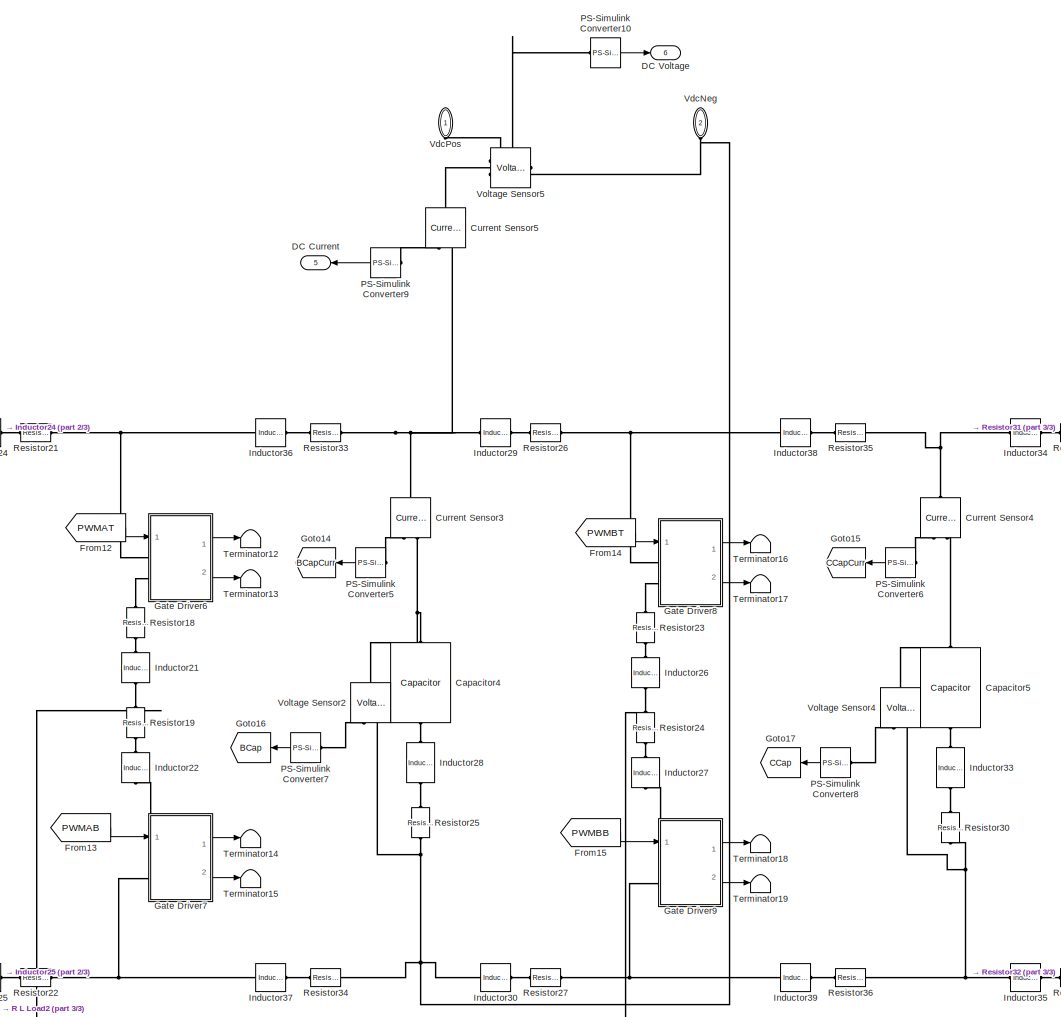
[diagram: Module 3 - part 1/3, central region]
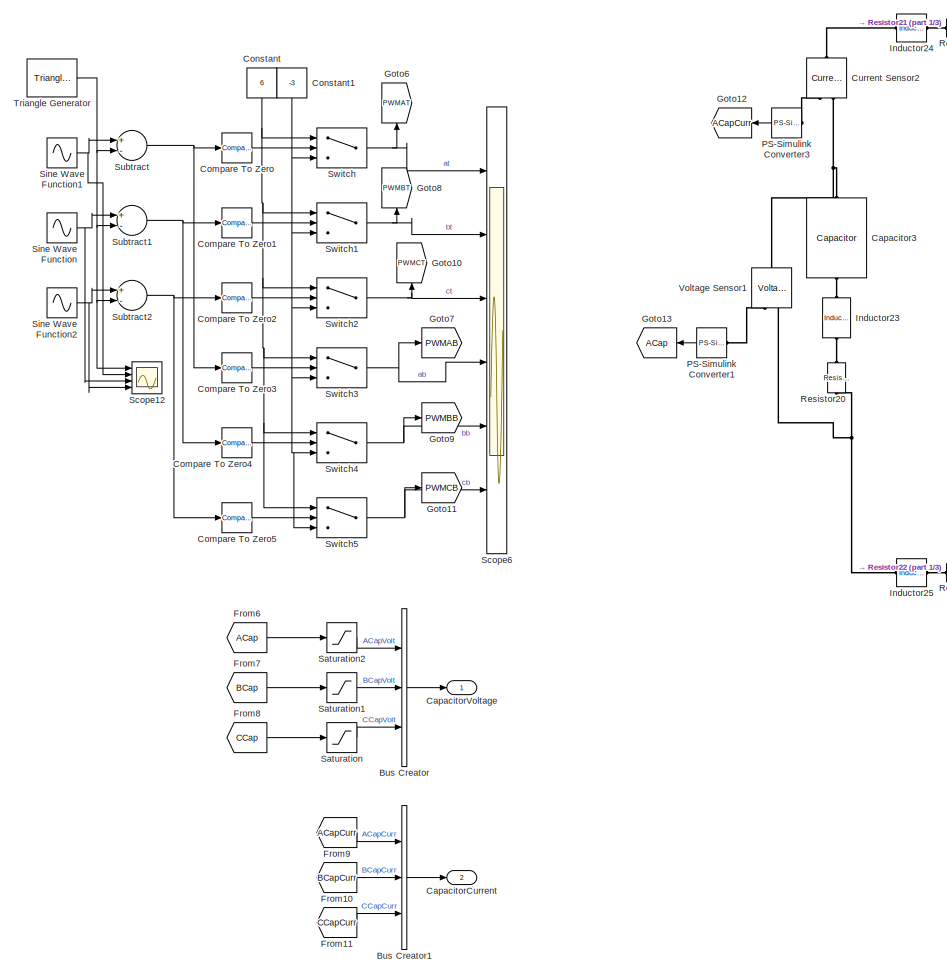
[diagram: Module 3 - part 2/3, middle left region]
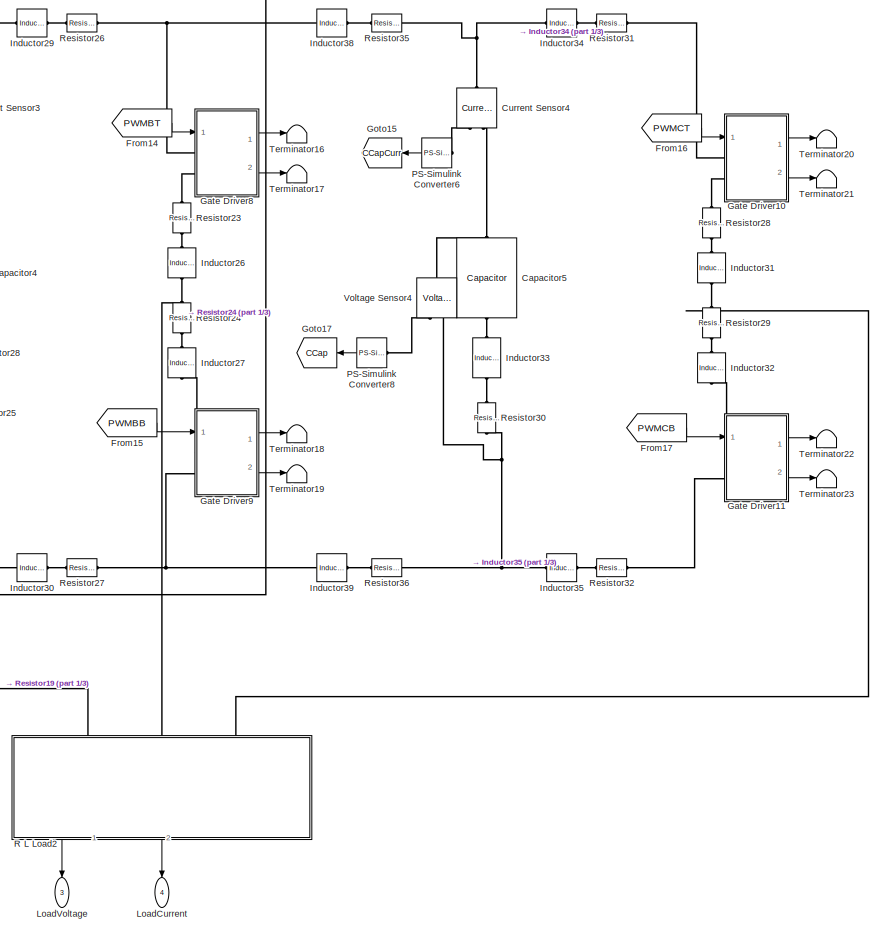
[diagram: Module 3 - part 3/3, middle right region]
BLOCK [SubSystem] Module 3
  Ports = [0, 6, 0, 0, 0, 2]
  RequestExecContextInheritance = off
BLOCK [BusCreator] Module 3/Bus Creator
  DisplayOption = bar
  InheritFromInputs = on
  Inputs = 3
  Ports = [3, 1]
BLOCK [BusCreator] Module 3/Bus Creator1
  DisplayOption = bar
  InheritFromInputs = on
  Inputs = 3
  Ports = [3, 1]
BLOCK [Reference] Module 3/Capacitor3  REF=elec_lib/Passive Devices/Capacitor
  Ports = [0, 0, 0, 0, 0, 1, 1]
  SourceBlock = elec_lib/Passive Devices/Capacitor
  SourceProductBaseCode = SN
  SourceProductName = Simscape Electronics
  SourceType = Capacitor
BLOCK [Reference] Module 3/Capacitor4  REF=elec_lib/Passive Devices/Capacitor
  Ports = [0, 0, 0, 0, 0, 1, 1]
  SourceBlock = elec_lib/Passive Devices/Capacitor
  SourceProductBaseCode = SN
  SourceProductName = Simscape Electronics
  SourceType = Capacitor
BLOCK [Reference] Module 3/Capacitor5  REF=elec_lib/Passive Devices/Capacitor
  Ports = [0, 0, 0, 0, 0, 1, 1]
  SourceBlock = elec_lib/Passive Devices/Capacitor
  SourceProductBaseCode = SN
  SourceProductName = Simscape Electronics
  SourceType = Capacitor
BLOCK [Outport] Module 3/CapacitorCurrent
  IconDisplay = Port number
  Port = 2
BLOCK [Outport] Module 3/CapacitorVoltage
  IconDisplay = Port number
BLOCK [Reference] Module 3/Compare To Zero  REF=simulink/Logic and Bit
Operations/Compare
To Zero
  Ports = [1, 1]
  SourceBlock = simulink/Logic and Bit\nOperations/Compare\nTo Zero
  SourceProductBaseCode = SL
  SourceProductName = Simulink
  SourceType = Compare To Zero
BLOCK [Reference] Module 3/Compare To Zero1  REF=simulink/Logic and Bit
Operations/Compare
To Zero
  Ports = [1, 1]
  SourceBlock = simulink/Logic and Bit\nOperations/Compare\nTo Zero
  SourceProductBaseCode = SL
  SourceProductName = Simulink
  SourceType = Compare To Zero
BLOCK [Reference] Module 3/Compare To Zero2  REF=simulink/Logic and Bit
Operations/Compare
To Zero
  Ports = [1, 1]
  SourceBlock = simulink/Logic and Bit\nOperations/Compare\nTo Zero
  SourceProductBaseCode = SL
  SourceProductName = Simulink
  SourceType = Compare To Zero
BLOCK [Reference] Module 3/Compare To Zero3  REF=simulink/Logic and Bit
Operations/Compare
To Zero
  Ports = [1, 1]
  SourceBlock = simulink/Logic and Bit\nOperations/Compare\nTo Zero
  SourceProductBaseCode = SL
  SourceProductName = Simulink
  SourceType = Compare To Zero
BLOCK [Reference] Module 3/Compare To Zero4  REF=simulink/Logic and Bit
Operations/Compare
To Zero
  Ports = [1, 1]
  SourceBlock = simulink/Logic and Bit\nOperations/Compare\nTo Zero
  SourceProductBaseCode = SL
  SourceProductName = Simulink
  SourceType = Compare To Zero
BLOCK [Reference] Module 3/Compare To Zero5  REF=simulink/Logic and Bit
Operations/Compare
To Zero
  Ports = [1, 1]
  SourceBlock = simulink/Logic and Bit\nOperations/Compare\nTo Zero
  SourceProductBaseCode = SL
  SourceProductName = Simulink
  SourceType = Compare To Zero
BLOCK [Constant] Module 3/Constant
  Value = 6
BLOCK [Constant] Module 3/Constant1
  Value = -3
BLOCK [Reference] Module 3/Current Sensor2  REF=fl_lib/Electrical/Electrical Sensors/Current Sensor
  Ports = [0, 0, 0, 0, 0, 1, 2]
  SourceBlock = fl_lib/Electrical/Electrical Sensors/Current Sensor
  SourceProductBaseCode = SS
  SourceProductName = Simscape
  SourceType = Current Sensor
BLOCK [Reference] Module 3/Current Sensor3  REF=fl_lib/Electrical/Electrical Sensors/Current Sensor
  Ports = [0, 0, 0, 0, 0, 1, 2]
  SourceBlock = fl_lib/Electrical/Electrical Sensors/Current Sensor
  SourceProductBaseCode = SS
  SourceProductName = Simscape
  SourceType = Current Sensor
BLOCK [Reference] Module 3/Current Sensor4  REF=fl_lib/Electrical/Electrical Sensors/Current Sensor
  Ports = [0, 0, 0, 0, 0, 1, 2]
  SourceBlock = fl_lib/Electrical/Electrical Sensors/Current Sensor
  SourceProductBaseCode = SS
  SourceProductName = Simscape
  SourceType = Current Sensor
BLOCK [Reference] Module 3/Current Sensor5  REF=fl_lib/Electrical/Electrical Sensors/Current Sensor
  Ports = [0, 0, 0, 0, 0, 1, 2]
  SourceBlock = fl_lib/Electrical/Electrical Sensors/Current Sensor
  SourceProductBaseCode = SS
  SourceProductName = Simscape
  SourceType = Current Sensor
BLOCK [Outport] Module 3/DC Current
  IconDisplay = Port number
  Port = 5
BLOCK [Outport] Module 3/DC Voltage
  IconDisplay = Port number
  Port = 6
BLOCK [From] Module 3/From10
  GotoTag = BCapCurr
BLOCK [From] Module 3/From11
  GotoTag = CCapCurr
BLOCK [From] Module 3/From12
  GotoTag = PWMAT
BLOCK [From] Module 3/From13
  GotoTag = PWMAB
BLOCK [From] Module 3/From14
  GotoTag = PWMBT
BLOCK [From] Module 3/From15
  GotoTag = PWMBB
BLOCK [From] Module 3/From16
  GotoTag = PWMCT
BLOCK [From] Module 3/From17
  GotoTag = PWMCB
BLOCK [From] Module 3/From6
  GotoTag = ACap
BLOCK [From] Module 3/From7
  GotoTag = BCap
BLOCK [From] Module 3/From8
  GotoTag = CCap
BLOCK [From] Module 3/From9
  GotoTag = ACapCurr
BLOCK [SubSystem] Module 3/Gate Driver10
  Ports = [1, 2, 0, 0, 0, 2]
  RequestExecContextInheritance = off
BLOCK [Reference] Module 3/Gate Driver10/Capacitor  REF=elec_lib/Passive Devices/Capacitor
  Ports = [0, 0, 0, 0, 0, 1, 1]
  SourceBlock = elec_lib/Passive Devices/Capacitor
  SourceProductBaseCode = SN
  SourceProductName = Simscape Electronics
  SourceType = Capacitor
BLOCK [Outport] Module 3/Gate Driver10/Curr
  IconDisplay = Port number
  Port = 2
BLOCK [SubSystem] Module 3/Gate Driver10/Current Measure
  Ports = [0, 1, 0, 0, 0, 1, 1]
  RequestExecContextInheritance = off
BLOCK [Reference] Module 3/Gate Driver10/Current Measure/Current Sensor1  REF=fl_lib/Electrical/Electrical Sensors/Current Sensor
  Ports = [0, 0, 0, 0, 0, 1, 2]
  SourceBlock = fl_lib/Electrical/Electrical Sensors/Current Sensor
  SourceProductBaseCode = SS
  SourceProductName = Simscape
  SourceType = Current Sensor
BLOCK [Outport] Module 3/Gate Driver10/Current Measure/Data
  IconDisplay = Port number
BLOCK [PMIOPort] Module 3/Gate Driver10/Current Measure/I+
  Side = Left
BLOCK [PMIOPort] Module 3/Gate Driver10/Current Measure/I-
  Port = 2
  Side = Right
BLOCK [Reference] Module 3/Gate Driver10/Current Measure/PS-Simulink Converter4  REF=nesl_utility/PS-Simulink
Converter
  Ports = [0, 1, 0, 0, 0, 1]
  SourceBlock = nesl_utility/PS-Simulink\nConverter
  SourceProductBaseCode = SS
  SourceProductName = Simscape
  SourceType = PS-Simulink\nConverter
BLOCK [PMIOPort] Module 3/Gate Driver10/Drain
  Side = Left
BLOCK [Reference] Module 3/Gate Driver10/Inductor  REF=elec_lib/Passive Devices/Inductor
  Ports = [0, 0, 0, 0, 0, 1, 1]
  SourceBlock = elec_lib/Passive Devices/Inductor
  SourceProductBaseCode = SN
  SourceProductName = Simscape Electronics
  SourceType = Inductor
BLOCK [Reference] Module 3/Gate Driver10/Inductor1  REF=elec_lib/Passive Devices/Inductor
  Ports = [0, 0, 0, 0, 0, 1, 1]
  SourceBlock = elec_lib/Passive Devices/Inductor
  SourceProductBaseCode = SN
  SourceProductName = Simscape Electronics
  SourceType = Inductor
BLOCK [Inport] Module 3/Gate Driver10/PWM
  IconDisplay = Port number
BLOCK [SubSystem] Module 3/Gate Driver10/Rate Limiter2
  Ports = [1, 1]
  RequestExecContextInheritance = off
BLOCK [Constant] Module 3/Gate Driver10/Rate Limiter2/Constant2
  Value = (VpulseMax - VpulseMin)/1e-9
BLOCK [Constant] Module 3/Gate Driver10/Rate Limiter2/Constant3
  Value = (VpulseMin - VpulseMax)/1e-9
BLOCK [Inport] Module 3/Gate Driver10/Rate Limiter2/Inp
  IconDisplay = Port number
BLOCK [Outport] Module 3/Gate Driver10/Rate Limiter2/Outp
  IconDisplay = Port number
BLOCK [Reference] Module 3/Gate Driver10/Rate Limiter2/Rate Limiter Dynamic  REF=simulink/Discontinuities/Rate Limiter
Dynamic
  Ports = [3, 1]
  SourceBlock = simulink/Discontinuities/Rate Limiter\nDynamic
  SourceProductBaseCode = SL
  SourceProductName = Simulink
  SourceType = Rate Limiter Dynamic
BLOCK [Reference] Module 3/Gate Driver10/Simulink-PS Converter  REF=nesl_utility/Simulink-PS
Converter
  Ports = [1, 0, 0, 0, 0, 0, 1]
  SourceBlock = nesl_utility/Simulink-PS\nConverter
  SourceProductBaseCode = SS
  SourceProductName = Simscape
  SourceType = Simulink-PS\nConverter
BLOCK [PMIOPort] Module 3/Gate Driver10/Source
  Port = 2
  Side = Left
BLOCK [Reference] Module 3/Gate Driver10/Switch6  REF=fl_lib/Electrical/Electrical Elements/Switch
  Ports = [0, 0, 0, 0, 0, 1, 2]
  SourceBlock = fl_lib/Electrical/Electrical Elements/Switch
  SourceProductBaseCode = SS
  SourceProductName = Simscape
  SourceType = Switch
BLOCK [Outport] Module 3/Gate Driver10/Volt
  IconDisplay = Port number
BLOCK [SubSystem] Module 3/Gate Driver10/Voltage Measure3
  Ports = [0, 1, 0, 0, 0, 0, 2]
  RequestExecContextInheritance = off
BLOCK [Outport] Module 3/Gate Driver10/Voltage Measure3/Data
  IconDisplay = Port number
BLOCK [Reference] Module 3/Gate Driver10/Voltage Measure3/PS-Simulink Converter2  REF=nesl_utility/PS-Simulink
Converter
  Ports = [0, 1, 0, 0, 0, 1]
  SourceBlock = nesl_utility/PS-Simulink\nConverter
  SourceProductBaseCode = SS
  SourceProductName = Simscape
  SourceType = PS-Simulink\nConverter
BLOCK [PMIOPort] Module 3/Gate Driver10/Voltage Measure3/V+
  Side = Right
BLOCK [PMIOPort] Module 3/Gate Driver10/Voltage Measure3/V-
  Port = 2
  Side = Right
BLOCK [Reference] Module 3/Gate Driver10/Voltage Measure3/Voltage Sensor3  REF=fl_lib/Electrical/Electrical Sensors/Voltage Sensor
  Ports = [0, 0, 0, 0, 0, 1, 2]
  SourceBlock = fl_lib/Electrical/Electrical Sensors/Voltage Sensor
  SourceProductBaseCode = SS
  SourceProductName = Simscape
  SourceType = Voltage Sensor
BLOCK [SubSystem] Module 3/Gate Driver11
  Ports = [1, 2, 0, 0, 0, 2]
  RequestExecContextInheritance = off
BLOCK [Reference] Module 3/Gate Driver11/Capacitor  REF=elec_lib/Passive Devices/Capacitor
  Ports = [0, 0, 0, 0, 0, 1, 1]
  SourceBlock = elec_lib/Passive Devices/Capacitor
  SourceProductBaseCode = SN
  SourceProductName = Simscape Electronics
  SourceType = Capacitor
BLOCK [Outport] Module 3/Gate Driver11/Curr
  IconDisplay = Port number
  Port = 2
BLOCK [SubSystem] Module 3/Gate Driver11/Current Measure
  Ports = [0, 1, 0, 0, 0, 1, 1]
  RequestExecContextInheritance = off
BLOCK [Reference] Module 3/Gate Driver11/Current Measure/Current Sensor1  REF=fl_lib/Electrical/Electrical Sensors/Current Sensor
  Ports = [0, 0, 0, 0, 0, 1, 2]
  SourceBlock = fl_lib/Electrical/Electrical Sensors/Current Sensor
  SourceProductBaseCode = SS
  SourceProductName = Simscape
  SourceType = Current Sensor
BLOCK [Outport] Module 3/Gate Driver11/Current Measure/Data
  IconDisplay = Port number
BLOCK [PMIOPort] Module 3/Gate Driver11/Current Measure/I+
  Side = Left
BLOCK [PMIOPort] Module 3/Gate Driver11/Current Measure/I-
  Port = 2
  Side = Right
BLOCK [Reference] Module 3/Gate Driver11/Current Measure/PS-Simulink Converter4  REF=nesl_utility/PS-Simulink
Converter
  Ports = [0, 1, 0, 0, 0, 1]
  SourceBlock = nesl_utility/PS-Simulink\nConverter
  SourceProductBaseCode = SS
  SourceProductName = Simscape
  SourceType = PS-Simulink\nConverter
BLOCK [PMIOPort] Module 3/Gate Driver11/Drain
  Side = Left
BLOCK [Reference] Module 3/Gate Driver11/Inductor  REF=elec_lib/Passive Devices/Inductor
  Ports = [0, 0, 0, 0, 0, 1, 1]
  SourceBlock = elec_lib/Passive Devices/Inductor
  SourceProductBaseCode = SN
  SourceProductName = Simscape Electronics
  SourceType = Inductor
BLOCK [Reference] Module 3/Gate Driver11/Inductor1  REF=elec_lib/Passive Devices/Inductor
  Ports = [0, 0, 0, 0, 0, 1, 1]
  SourceBlock = elec_lib/Passive Devices/Inductor
  SourceProductBaseCode = SN
  SourceProductName = Simscape Electronics
  SourceType = Inductor
BLOCK [Inport] Module 3/Gate Driver11/PWM
  IconDisplay = Port number
BLOCK [SubSystem] Module 3/Gate Driver11/Rate Limiter2
  Ports = [1, 1]
  RequestExecContextInheritance = off
BLOCK [Constant] Module 3/Gate Driver11/Rate Limiter2/Constant2
  Value = (VpulseMax - VpulseMin)/1e-9
BLOCK [Constant] Module 3/Gate Driver11/Rate Limiter2/Constant3
  Value = (VpulseMin - VpulseMax)/1e-9
BLOCK [Inport] Module 3/Gate Driver11/Rate Limiter2/Inp
  IconDisplay = Port number
BLOCK [Outport] Module 3/Gate Driver11/Rate Limiter2/Outp
  IconDisplay = Port number
BLOCK [Reference] Module 3/Gate Driver11/Rate Limiter2/Rate Limiter Dynamic  REF=simulink/Discontinuities/Rate Limiter
Dynamic
  Ports = [3, 1]
  SourceBlock = simulink/Discontinuities/Rate Limiter\nDynamic
  SourceProductBaseCode = SL
  SourceProductName = Simulink
  SourceType = Rate Limiter Dynamic
BLOCK [Reference] Module 3/Gate Driver11/Simulink-PS Converter  REF=nesl_utility/Simulink-PS
Converter
  Ports = [1, 0, 0, 0, 0, 0, 1]
  SourceBlock = nesl_utility/Simulink-PS\nConverter
  SourceProductBaseCode = SS
  SourceProductName = Simscape
  SourceType = Simulink-PS\nConverter
BLOCK [PMIOPort] Module 3/Gate Driver11/Source
  Port = 2
  Side = Left
BLOCK [Reference] Module 3/Gate Driver11/Switch6  REF=fl_lib/Electrical/Electrical Elements/Switch
  Ports = [0, 0, 0, 0, 0, 1, 2]
  SourceBlock = fl_lib/Electrical/Electrical Elements/Switch
  SourceProductBaseCode = SS
  SourceProductName = Simscape
  SourceType = Switch
BLOCK [Outport] Module 3/Gate Driver11/Volt
  IconDisplay = Port number
BLOCK [SubSystem] Module 3/Gate Driver11/Voltage Measure3
  Ports = [0, 1, 0, 0, 0, 0, 2]
  RequestExecContextInheritance = off
BLOCK [Outport] Module 3/Gate Driver11/Voltage Measure3/Data
  IconDisplay = Port number
BLOCK [Reference] Module 3/Gate Driver11/Voltage Measure3/PS-Simulink Converter2  REF=nesl_utility/PS-Simulink
Converter
  Ports = [0, 1, 0, 0, 0, 1]
  SourceBlock = nesl_utility/PS-Simulink\nConverter
  SourceProductBaseCode = SS
  SourceProductName = Simscape
  SourceType = PS-Simulink\nConverter
BLOCK [PMIOPort] Module 3/Gate Driver11/Voltage Measure3/V+
  Side = Right
BLOCK [PMIOPort] Module 3/Gate Driver11/Voltage Measure3/V-
  Port = 2
  Side = Right
BLOCK [Reference] Module 3/Gate Driver11/Voltage Measure3/Voltage Sensor3  REF=fl_lib/Electrical/Electrical Sensors/Voltage Sensor
  Ports = [0, 0, 0, 0, 0, 1, 2]
  SourceBlock = fl_lib/Electrical/Electrical Sensors/Voltage Sensor
  SourceProductBaseCode = SS
  SourceProductName = Simscape
  SourceType = Voltage Sensor
BLOCK [SubSystem] Module 3/Gate Driver6
  Ports = [1, 2, 0, 0, 0, 2]
  RequestExecContextInheritance = off
BLOCK [Reference] Module 3/Gate Driver6/Capacitor  REF=elec_lib/Passive Devices/Capacitor
  Ports = [0, 0, 0, 0, 0, 1, 1]
  SourceBlock = elec_lib/Passive Devices/Capacitor
  SourceProductBaseCode = SN
  SourceProductName = Simscape Electronics
  SourceType = Capacitor
BLOCK [Outport] Module 3/Gate Driver6/Curr
  IconDisplay = Port number
  Port = 2
BLOCK [SubSystem] Module 3/Gate Driver6/Current Measure
  Ports = [0, 1, 0, 0, 0, 1, 1]
  RequestExecContextInheritance = off
BLOCK [Reference] Module 3/Gate Driver6/Current Measure/Current Sensor1  REF=fl_lib/Electrical/Electrical Sensors/Current Sensor
  Ports = [0, 0, 0, 0, 0, 1, 2]
  SourceBlock = fl_lib/Electrical/Electrical Sensors/Current Sensor
  SourceProductBaseCode = SS
  SourceProductName = Simscape
  SourceType = Current Sensor
BLOCK [Outport] Module 3/Gate Driver6/Current Measure/Data
  IconDisplay = Port number
BLOCK [PMIOPort] Module 3/Gate Driver6/Current Measure/I+
  Side = Left
BLOCK [PMIOPort] Module 3/Gate Driver6/Current Measure/I-
  Port = 2
  Side = Right
BLOCK [Reference] Module 3/Gate Driver6/Current Measure/PS-Simulink Converter4  REF=nesl_utility/PS-Simulink
Converter
  Ports = [0, 1, 0, 0, 0, 1]
  SourceBlock = nesl_utility/PS-Simulink\nConverter
  SourceProductBaseCode = SS
  SourceProductName = Simscape
  SourceType = PS-Simulink\nConverter
BLOCK [PMIOPort] Module 3/Gate Driver6/Drain
  Side = Left
BLOCK [Reference] Module 3/Gate Driver6/Inductor  REF=elec_lib/Passive Devices/Inductor
  Ports = [0, 0, 0, 0, 0, 1, 1]
  SourceBlock = elec_lib/Passive Devices/Inductor
  SourceProductBaseCode = SN
  SourceProductName = Simscape Electronics
  SourceType = Inductor
BLOCK [Reference] Module 3/Gate Driver6/Inductor1  REF=elec_lib/Passive Devices/Inductor
  Ports = [0, 0, 0, 0, 0, 1, 1]
  SourceBlock = elec_lib/Passive Devices/Inductor
  SourceProductBaseCode = SN
  SourceProductName = Simscape Electronics
  SourceType = Inductor
BLOCK [Inport] Module 3/Gate Driver6/PWM
  IconDisplay = Port number
BLOCK [SubSystem] Module 3/Gate Driver6/Rate Limiter2
  Ports = [1, 1]
  RequestExecContextInheritance = off
BLOCK [Constant] Module 3/Gate Driver6/Rate Limiter2/Constant2
  Value = (VpulseMax - VpulseMin)/1e-9
BLOCK [Constant] Module 3/Gate Driver6/Rate Limiter2/Constant3
  Value = (VpulseMin - VpulseMax)/1e-9
BLOCK [Inport] Module 3/Gate Driver6/Rate Limiter2/Inp
  IconDisplay = Port number
BLOCK [Outport] Module 3/Gate Driver6/Rate Limiter2/Outp
  IconDisplay = Port number
BLOCK [Reference] Module 3/Gate Driver6/Rate Limiter2/Rate Limiter Dynamic  REF=simulink/Discontinuities/Rate Limiter
Dynamic
  Ports = [3, 1]
  SourceBlock = simulink/Discontinuities/Rate Limiter\nDynamic
  SourceProductBaseCode = SL
  SourceProductName = Simulink
  SourceType = Rate Limiter Dynamic
BLOCK [Reference] Module 3/Gate Driver6/Simulink-PS Converter  REF=nesl_utility/Simulink-PS
Converter
  Ports = [1, 0, 0, 0, 0, 0, 1]
  SourceBlock = nesl_utility/Simulink-PS\nConverter
  SourceProductBaseCode = SS
  SourceProductName = Simscape
  SourceType = Simulink-PS\nConverter
BLOCK [PMIOPort] Module 3/Gate Driver6/Source
  Port = 2
  Side = Left
BLOCK [Reference] Module 3/Gate Driver6/Switch6  REF=fl_lib/Electrical/Electrical Elements/Switch
  Ports = [0, 0, 0, 0, 0, 1, 2]
  SourceBlock = fl_lib/Electrical/Electrical Elements/Switch
  SourceProductBaseCode = SS
  SourceProductName = Simscape
  SourceType = Switch
BLOCK [Outport] Module 3/Gate Driver6/Volt
  IconDisplay = Port number
BLOCK [SubSystem] Module 3/Gate Driver6/Voltage Measure3
  Ports = [0, 1, 0, 0, 0, 0, 2]
  RequestExecContextInheritance = off
BLOCK [Outport] Module 3/Gate Driver6/Voltage Measure3/Data
  IconDisplay = Port number
BLOCK [Reference] Module 3/Gate Driver6/Voltage Measure3/PS-Simulink Converter2  REF=nesl_utility/PS-Simulink
Converter
  Ports = [0, 1, 0, 0, 0, 1]
  SourceBlock = nesl_utility/PS-Simulink\nConverter
  SourceProductBaseCode = SS
  SourceProductName = Simscape
  SourceType = PS-Simulink\nConverter
BLOCK [PMIOPort] Module 3/Gate Driver6/Voltage Measure3/V+
  Side = Right
BLOCK [PMIOPort] Module 3/Gate Driver6/Voltage Measure3/V-
  Port = 2
  Side = Right
BLOCK [Reference] Module 3/Gate Driver6/Voltage Measure3/Voltage Sensor3  REF=fl_lib/Electrical/Electrical Sensors/Voltage Sensor
  Ports = [0, 0, 0, 0, 0, 1, 2]
  SourceBlock = fl_lib/Electrical/Electrical Sensors/Voltage Sensor
  SourceProductBaseCode = SS
  SourceProductName = Simscape
  SourceType = Voltage Sensor
BLOCK [SubSystem] Module 3/Gate Driver7
  Ports = [1, 2, 0, 0, 0, 2]
  RequestExecContextInheritance = off
BLOCK [Reference] Module 3/Gate Driver7/Capacitor  REF=elec_lib/Passive Devices/Capacitor
  Ports = [0, 0, 0, 0, 0, 1, 1]
  SourceBlock = elec_lib/Passive Devices/Capacitor
  SourceProductBaseCode = SN
  SourceProductName = Simscape Electronics
  SourceType = Capacitor
BLOCK [Outport] Module 3/Gate Driver7/Curr
  IconDisplay = Port number
  Port = 2
BLOCK [SubSystem] Module 3/Gate Driver7/Current Measure
  Ports = [0, 1, 0, 0, 0, 1, 1]
  RequestExecContextInheritance = off
BLOCK [Reference] Module 3/Gate Driver7/Current Measure/Current Sensor1  REF=fl_lib/Electrical/Electrical Sensors/Current Sensor
  Ports = [0, 0, 0, 0, 0, 1, 2]
  SourceBlock = fl_lib/Electrical/Electrical Sensors/Current Sensor
  SourceProductBaseCode = SS
  SourceProductName = Simscape
  SourceType = Current Sensor
BLOCK [Outport] Module 3/Gate Driver7/Current Measure/Data
  IconDisplay = Port number
BLOCK [PMIOPort] Module 3/Gate Driver7/Current Measure/I+
  Side = Left
BLOCK [PMIOPort] Module 3/Gate Driver7/Current Measure/I-
  Port = 2
  Side = Right
BLOCK [Reference] Module 3/Gate Driver7/Current Measure/PS-Simulink Converter4  REF=nesl_utility/PS-Simulink
Converter
  Ports = [0, 1, 0, 0, 0, 1]
  SourceBlock = nesl_utility/PS-Simulink\nConverter
  SourceProductBaseCode = SS
  SourceProductName = Simscape
  SourceType = PS-Simulink\nConverter
BLOCK [PMIOPort] Module 3/Gate Driver7/Drain
  Side = Left
BLOCK [Reference] Module 3/Gate Driver7/Inductor  REF=elec_lib/Passive Devices/Inductor
  Ports = [0, 0, 0, 0, 0, 1, 1]
  SourceBlock = elec_lib/Passive Devices/Inductor
  SourceProductBaseCode = SN
  SourceProductName = Simscape Electronics
  SourceType = Inductor
BLOCK [Reference] Module 3/Gate Driver7/Inductor1  REF=elec_lib/Passive Devices/Inductor
  Ports = [0, 0, 0, 0, 0, 1, 1]
  SourceBlock = elec_lib/Passive Devices/Inductor
  SourceProductBaseCode = SN
  SourceProductName = Simscape Electronics
  SourceType = Inductor
BLOCK [Inport] Module 3/Gate Driver7/PWM
  IconDisplay = Port number
BLOCK [SubSystem] Module 3/Gate Driver7/Rate Limiter2
  Ports = [1, 1]
  RequestExecContextInheritance = off
BLOCK [Constant] Module 3/Gate Driver7/Rate Limiter2/Constant2
  Value = (VpulseMax - VpulseMin)/1e-9
BLOCK [Constant] Module 3/Gate Driver7/Rate Limiter2/Constant3
  Value = (VpulseMin - VpulseMax)/1e-9
BLOCK [Inport] Module 3/Gate Driver7/Rate Limiter2/Inp
  IconDisplay = Port number
BLOCK [Outport] Module 3/Gate Driver7/Rate Limiter2/Outp
  IconDisplay = Port number
BLOCK [Reference] Module 3/Gate Driver7/Rate Limiter2/Rate Limiter Dynamic  REF=simulink/Discontinuities/Rate Limiter
Dynamic
  Ports = [3, 1]
  SourceBlock = simulink/Discontinuities/Rate Limiter\nDynamic
  SourceProductBaseCode = SL
  SourceProductName = Simulink
  SourceType = Rate Limiter Dynamic
BLOCK [Reference] Module 3/Gate Driver7/Simulink-PS Converter  REF=nesl_utility/Simulink-PS
Converter
  Ports = [1, 0, 0, 0, 0, 0, 1]
  SourceBlock = nesl_utility/Simulink-PS\nConverter
  SourceProductBaseCode = SS
  SourceProductName = Simscape
  SourceType = Simulink-PS\nConverter
BLOCK [PMIOPort] Module 3/Gate Driver7/Source
  Port = 2
  Side = Left
BLOCK [Reference] Module 3/Gate Driver7/Switch6  REF=fl_lib/Electrical/Electrical Elements/Switch
  Ports = [0, 0, 0, 0, 0, 1, 2]
  SourceBlock = fl_lib/Electrical/Electrical Elements/Switch
  SourceProductBaseCode = SS
  SourceProductName = Simscape
  SourceType = Switch
BLOCK [Outport] Module 3/Gate Driver7/Volt
  IconDisplay = Port number
BLOCK [SubSystem] Module 3/Gate Driver7/Voltage Measure3
  Ports = [0, 1, 0, 0, 0, 0, 2]
  RequestExecContextInheritance = off
BLOCK [Outport] Module 3/Gate Driver7/Voltage Measure3/Data
  IconDisplay = Port number
BLOCK [Reference] Module 3/Gate Driver7/Voltage Measure3/PS-Simulink Converter2  REF=nesl_utility/PS-Simulink
Converter
  Ports = [0, 1, 0, 0, 0, 1]
  SourceBlock = nesl_utility/PS-Simulink\nConverter
  SourceProductBaseCode = SS
  SourceProductName = Simscape
  SourceType = PS-Simulink\nConverter
BLOCK [PMIOPort] Module 3/Gate Driver7/Voltage Measure3/V+
  Side = Right
BLOCK [PMIOPort] Module 3/Gate Driver7/Voltage Measure3/V-
  Port = 2
  Side = Right
BLOCK [Reference] Module 3/Gate Driver7/Voltage Measure3/Voltage Sensor3  REF=fl_lib/Electrical/Electrical Sensors/Voltage Sensor
  Ports = [0, 0, 0, 0, 0, 1, 2]
  SourceBlock = fl_lib/Electrical/Electrical Sensors/Voltage Sensor
  SourceProductBaseCode = SS
  SourceProductName = Simscape
  SourceType = Voltage Sensor
BLOCK [SubSystem] Module 3/Gate Driver8
  Ports = [1, 2, 0, 0, 0, 2]
  RequestExecContextInheritance = off
BLOCK [Reference] Module 3/Gate Driver8/Capacitor  REF=elec_lib/Passive Devices/Capacitor
  Ports = [0, 0, 0, 0, 0, 1, 1]
  SourceBlock = elec_lib/Passive Devices/Capacitor
  SourceProductBaseCode = SN
  SourceProductName = Simscape Electronics
  SourceType = Capacitor
BLOCK [Outport] Module 3/Gate Driver8/Curr
  IconDisplay = Port number
  Port = 2
BLOCK [SubSystem] Module 3/Gate Driver8/Current Measure
  Ports = [0, 1, 0, 0, 0, 1, 1]
  RequestExecContextInheritance = off
BLOCK [Reference] Module 3/Gate Driver8/Current Measure/Current Sensor1  REF=fl_lib/Electrical/Electrical Sensors/Current Sensor
  Ports = [0, 0, 0, 0, 0, 1, 2]
  SourceBlock = fl_lib/Electrical/Electrical Sensors/Current Sensor
  SourceProductBaseCode = SS
  SourceProductName = Simscape
  SourceType = Current Sensor
BLOCK [Outport] Module 3/Gate Driver8/Current Measure/Data
  IconDisplay = Port number
BLOCK [PMIOPort] Module 3/Gate Driver8/Current Measure/I+
  Side = Left
BLOCK [PMIOPort] Module 3/Gate Driver8/Current Measure/I-
  Port = 2
  Side = Right
BLOCK [Reference] Module 3/Gate Driver8/Current Measure/PS-Simulink Converter4  REF=nesl_utility/PS-Simulink
Converter
  Ports = [0, 1, 0, 0, 0, 1]
  SourceBlock = nesl_utility/PS-Simulink\nConverter
  SourceProductBaseCode = SS
  SourceProductName = Simscape
  SourceType = PS-Simulink\nConverter
BLOCK [PMIOPort] Module 3/Gate Driver8/Drain
  Side = Left
BLOCK [Reference] Module 3/Gate Driver8/Inductor  REF=elec_lib/Passive Devices/Inductor
  Ports = [0, 0, 0, 0, 0, 1, 1]
  SourceBlock = elec_lib/Passive Devices/Inductor
  SourceProductBaseCode = SN
  SourceProductName = Simscape Electronics
  SourceType = Inductor
BLOCK [Reference] Module 3/Gate Driver8/Inductor1  REF=elec_lib/Passive Devices/Inductor
  Ports = [0, 0, 0, 0, 0, 1, 1]
  SourceBlock = elec_lib/Passive Devices/Inductor
  SourceProductBaseCode = SN
  SourceProductName = Simscape Electronics
  SourceType = Inductor
BLOCK [Inport] Module 3/Gate Driver8/PWM
  IconDisplay = Port number
BLOCK [SubSystem] Module 3/Gate Driver8/Rate Limiter2
  Ports = [1, 1]
  RequestExecContextInheritance = off
BLOCK [Constant] Module 3/Gate Driver8/Rate Limiter2/Constant2
  Value = (VpulseMax - VpulseMin)/1e-9
BLOCK [Constant] Module 3/Gate Driver8/Rate Limiter2/Constant3
  Value = (VpulseMin - VpulseMax)/1e-9
BLOCK [Inport] Module 3/Gate Driver8/Rate Limiter2/Inp
  IconDisplay = Port number
BLOCK [Outport] Module 3/Gate Driver8/Rate Limiter2/Outp
  IconDisplay = Port number
BLOCK [Reference] Module 3/Gate Driver8/Rate Limiter2/Rate Limiter Dynamic  REF=simulink/Discontinuities/Rate Limiter
Dynamic
  Ports = [3, 1]
  SourceBlock = simulink/Discontinuities/Rate Limiter\nDynamic
  SourceProductBaseCode = SL
  SourceProductName = Simulink
  SourceType = Rate Limiter Dynamic
BLOCK [Reference] Module 3/Gate Driver8/Simulink-PS Converter  REF=nesl_utility/Simulink-PS
Converter
  Ports = [1, 0, 0, 0, 0, 0, 1]
  SourceBlock = nesl_utility/Simulink-PS\nConverter
  SourceProductBaseCode = SS
  SourceProductName = Simscape
  SourceType = Simulink-PS\nConverter
BLOCK [PMIOPort] Module 3/Gate Driver8/Source
  Port = 2
  Side = Left
BLOCK [Reference] Module 3/Gate Driver8/Switch6  REF=fl_lib/Electrical/Electrical Elements/Switch
  Ports = [0, 0, 0, 0, 0, 1, 2]
  SourceBlock = fl_lib/Electrical/Electrical Elements/Switch
  SourceProductBaseCode = SS
  SourceProductName = Simscape
  SourceType = Switch
BLOCK [Outport] Module 3/Gate Driver8/Volt
  IconDisplay = Port number
BLOCK [SubSystem] Module 3/Gate Driver8/Voltage Measure3
  Ports = [0, 1, 0, 0, 0, 0, 2]
  RequestExecContextInheritance = off
BLOCK [Outport] Module 3/Gate Driver8/Voltage Measure3/Data
  IconDisplay = Port number
BLOCK [Reference] Module 3/Gate Driver8/Voltage Measure3/PS-Simulink Converter2  REF=nesl_utility/PS-Simulink
Converter
  Ports = [0, 1, 0, 0, 0, 1]
  SourceBlock = nesl_utility/PS-Simulink\nConverter
  SourceProductBaseCode = SS
  SourceProductName = Simscape
  SourceType = PS-Simulink\nConverter
BLOCK [PMIOPort] Module 3/Gate Driver8/Voltage Measure3/V+
  Side = Right
BLOCK [PMIOPort] Module 3/Gate Driver8/Voltage Measure3/V-
  Port = 2
  Side = Right
BLOCK [Reference] Module 3/Gate Driver8/Voltage Measure3/Voltage Sensor3  REF=fl_lib/Electrical/Electrical Sensors/Voltage Sensor
  Ports = [0, 0, 0, 0, 0, 1, 2]
  SourceBlock = fl_lib/Electrical/Electrical Sensors/Voltage Sensor
  SourceProductBaseCode = SS
  SourceProductName = Simscape
  SourceType = Voltage Sensor
BLOCK [SubSystem] Module 3/Gate Driver9
  Ports = [1, 2, 0, 0, 0, 2]
  RequestExecContextInheritance = off
BLOCK [Reference] Module 3/Gate Driver9/Capacitor  REF=elec_lib/Passive Devices/Capacitor
  Ports = [0, 0, 0, 0, 0, 1, 1]
  SourceBlock = elec_lib/Passive Devices/Capacitor
  SourceProductBaseCode = SN
  SourceProductName = Simscape Electronics
  SourceType = Capacitor
BLOCK [Outport] Module 3/Gate Driver9/Curr
  IconDisplay = Port number
  Port = 2
BLOCK [SubSystem] Module 3/Gate Driver9/Current Measure
  Ports = [0, 1, 0, 0, 0, 1, 1]
  RequestExecContextInheritance = off
BLOCK [Reference] Module 3/Gate Driver9/Current Measure/Current Sensor1  REF=fl_lib/Electrical/Electrical Sensors/Current Sensor
  Ports = [0, 0, 0, 0, 0, 1, 2]
  SourceBlock = fl_lib/Electrical/Electrical Sensors/Current Sensor
  SourceProductBaseCode = SS
  SourceProductName = Simscape
  SourceType = Current Sensor
BLOCK [Outport] Module 3/Gate Driver9/Current Measure/Data
  IconDisplay = Port number
BLOCK [PMIOPort] Module 3/Gate Driver9/Current Measure/I+
  Side = Left
BLOCK [PMIOPort] Module 3/Gate Driver9/Current Measure/I-
  Port = 2
  Side = Right
BLOCK [Reference] Module 3/Gate Driver9/Current Measure/PS-Simulink Converter4  REF=nesl_utility/PS-Simulink
Converter
  Ports = [0, 1, 0, 0, 0, 1]
  SourceBlock = nesl_utility/PS-Simulink\nConverter
  SourceProductBaseCode = SS
  SourceProductName = Simscape
  SourceType = PS-Simulink\nConverter
BLOCK [PMIOPort] Module 3/Gate Driver9/Drain
  Side = Left
BLOCK [Reference] Module 3/Gate Driver9/Inductor  REF=elec_lib/Passive Devices/Inductor
  Ports = [0, 0, 0, 0, 0, 1, 1]
  SourceBlock = elec_lib/Passive Devices/Inductor
  SourceProductBaseCode = SN
  SourceProductName = Simscape Electronics
  SourceType = Inductor
BLOCK [Reference] Module 3/Gate Driver9/Inductor1  REF=elec_lib/Passive Devices/Inductor
  Ports = [0, 0, 0, 0, 0, 1, 1]
  SourceBlock = elec_lib/Passive Devices/Inductor
  SourceProductBaseCode = SN
  SourceProductName = Simscape Electronics
  SourceType = Inductor
BLOCK [Inport] Module 3/Gate Driver9/PWM
  IconDisplay = Port number
BLOCK [SubSystem] Module 3/Gate Driver9/Rate Limiter2
  Ports = [1, 1]
  RequestExecContextInheritance = off
BLOCK [Constant] Module 3/Gate Driver9/Rate Limiter2/Constant2
  Value = (VpulseMax - VpulseMin)/1e-9
BLOCK [Constant] Module 3/Gate Driver9/Rate Limiter2/Constant3
  Value = (VpulseMin - VpulseMax)/1e-9
BLOCK [Inport] Module 3/Gate Driver9/Rate Limiter2/Inp
  IconDisplay = Port number
BLOCK [Outport] Module 3/Gate Driver9/Rate Limiter2/Outp
  IconDisplay = Port number
BLOCK [Reference] Module 3/Gate Driver9/Rate Limiter2/Rate Limiter Dynamic  REF=simulink/Discontinuities/Rate Limiter
Dynamic
  Ports = [3, 1]
  SourceBlock = simulink/Discontinuities/Rate Limiter\nDynamic
  SourceProductBaseCode = SL
  SourceProductName = Simulink
  SourceType = Rate Limiter Dynamic
BLOCK [Reference] Module 3/Gate Driver9/Simulink-PS Converter  REF=nesl_utility/Simulink-PS
Converter
  Ports = [1, 0, 0, 0, 0, 0, 1]
  SourceBlock = nesl_utility/Simulink-PS\nConverter
  SourceProductBaseCode = SS
  SourceProductName = Simscape
  SourceType = Simulink-PS\nConverter
BLOCK [PMIOPort] Module 3/Gate Driver9/Source
  Port = 2
  Side = Left
BLOCK [Reference] Module 3/Gate Driver9/Switch6  REF=fl_lib/Electrical/Electrical Elements/Switch
  Ports = [0, 0, 0, 0, 0, 1, 2]
  SourceBlock = fl_lib/Electrical/Electrical Elements/Switch
  SourceProductBaseCode = SS
  SourceProductName = Simscape
  SourceType = Switch
BLOCK [Outport] Module 3/Gate Driver9/Volt
  IconDisplay = Port number
BLOCK [SubSystem] Module 3/Gate Driver9/Voltage Measure3
  Ports = [0, 1, 0, 0, 0, 0, 2]
  RequestExecContextInheritance = off
BLOCK [Outport] Module 3/Gate Driver9/Voltage Measure3/Data
  IconDisplay = Port number
BLOCK [Reference] Module 3/Gate Driver9/Voltage Measure3/PS-Simulink Converter2  REF=nesl_utility/PS-Simulink
Converter
  Ports = [0, 1, 0, 0, 0, 1]
  SourceBlock = nesl_utility/PS-Simulink\nConverter
  SourceProductBaseCode = SS
  SourceProductName = Simscape
  SourceType = PS-Simulink\nConverter
BLOCK [PMIOPort] Module 3/Gate Driver9/Voltage Measure3/V+
  Side = Right
BLOCK [PMIOPort] Module 3/Gate Driver9/Voltage Measure3/V-
  Port = 2
  Side = Right
BLOCK [Reference] Module 3/Gate Driver9/Voltage Measure3/Voltage Sensor3  REF=fl_lib/Electrical/Electrical Sensors/Voltage Sensor
  Ports = [0, 0, 0, 0, 0, 1, 2]
  SourceBlock = fl_lib/Electrical/Electrical Sensors/Voltage Sensor
  SourceProductBaseCode = SS
  SourceProductName = Simscape
  SourceType = Voltage Sensor
BLOCK [Goto] Module 3/Goto10
  GotoTag = PWMCT
BLOCK [Goto] Module 3/Goto11
  GotoTag = PWMCB
BLOCK [Goto] Module 3/Goto12
  GotoTag = ACapCurr
BLOCK [Goto] Module 3/Goto13
  GotoTag = ACap
BLOCK [Goto] Module 3/Goto14
  GotoTag = BCapCurr
BLOCK [Goto] Module 3/Goto15
  GotoTag = CCapCurr
BLOCK [Goto] Module 3/Goto16
  GotoTag = BCap
BLOCK [Goto] Module 3/Goto17
  GotoTag = CCap
BLOCK [Goto] Module 3/Goto6
  GotoTag = PWMAT
BLOCK [Goto] Module 3/Goto7
  GotoTag = PWMAB
BLOCK [Goto] Module 3/Goto8
  GotoTag = PWMBT
BLOCK [Goto] Module 3/Goto9
  GotoTag = PWMBB
BLOCK [Reference] Module 3/Inductor21  REF=elec_lib/Passive Devices/Inductor
  Ports = [0, 0, 0, 0, 0, 1, 1]
  SourceBlock = elec_lib/Passive Devices/Inductor
  SourceProductBaseCode = SN
  SourceProductName = Simscape Electronics
  SourceType = Inductor
BLOCK [Reference] Module 3/Inductor22  REF=elec_lib/Passive Devices/Inductor
  Ports = [0, 0, 0, 0, 0, 1, 1]
  SourceBlock = elec_lib/Passive Devices/Inductor
  SourceProductBaseCode = SN
  SourceProductName = Simscape Electronics
  SourceType = Inductor
BLOCK [Reference] Module 3/Inductor23  REF=elec_lib/Passive Devices/Inductor
  Ports = [0, 0, 0, 0, 0, 1, 1]
  SourceBlock = elec_lib/Passive Devices/Inductor
  SourceProductBaseCode = SN
  SourceProductName = Simscape Electronics
  SourceType = Inductor
BLOCK [Reference] Module 3/Inductor24  REF=elec_lib/Passive Devices/Inductor
  Ports = [0, 0, 0, 0, 0, 1, 1]
  SourceBlock = elec_lib/Passive Devices/Inductor
  SourceProductBaseCode = SN
  SourceProductName = Simscape Electronics
  SourceType = Inductor
BLOCK [Reference] Module 3/Inductor25  REF=elec_lib/Passive Devices/Inductor
  Ports = [0, 0, 0, 0, 0, 1, 1]
  SourceBlock = elec_lib/Passive Devices/Inductor
  SourceProductBaseCode = SN
  SourceProductName = Simscape Electronics
  SourceType = Inductor
BLOCK [Reference] Module 3/Inductor26  REF=elec_lib/Passive Devices/Inductor
  Ports = [0, 0, 0, 0, 0, 1, 1]
  SourceBlock = elec_lib/Passive Devices/Inductor
  SourceProductBaseCode = SN
  SourceProductName = Simscape Electronics
  SourceType = Inductor
BLOCK [Reference] Module 3/Inductor27  REF=elec_lib/Passive Devices/Inductor
  Ports = [0, 0, 0, 0, 0, 1, 1]
  SourceBlock = elec_lib/Passive Devices/Inductor
  SourceProductBaseCode = SN
  SourceProductName = Simscape Electronics
  SourceType = Inductor
BLOCK [Reference] Module 3/Inductor28  REF=elec_lib/Passive Devices/Inductor
  Ports = [0, 0, 0, 0, 0, 1, 1]
  SourceBlock = elec_lib/Passive Devices/Inductor
  SourceProductBaseCode = SN
  SourceProductName = Simscape Electronics
  SourceType = Inductor
BLOCK [Reference] Module 3/Inductor29  REF=elec_lib/Passive Devices/Inductor
  Ports = [0, 0, 0, 0, 0, 1, 1]
  SourceBlock = elec_lib/Passive Devices/Inductor
  SourceProductBaseCode = SN
  SourceProductName = Simscape Electronics
  SourceType = Inductor
BLOCK [Reference] Module 3/Inductor30  REF=elec_lib/Passive Devices/Inductor
  Ports = [0, 0, 0, 0, 0, 1, 1]
  SourceBlock = elec_lib/Passive Devices/Inductor
  SourceProductBaseCode = SN
  SourceProductName = Simscape Electronics
  SourceType = Inductor
BLOCK [Reference] Module 3/Inductor31  REF=elec_lib/Passive Devices/Inductor
  Ports = [0, 0, 0, 0, 0, 1, 1]
  SourceBlock = elec_lib/Passive Devices/Inductor
  SourceProductBaseCode = SN
  SourceProductName = Simscape Electronics
  SourceType = Inductor
BLOCK [Reference] Module 3/Inductor32  REF=elec_lib/Passive Devices/Inductor
  Ports = [0, 0, 0, 0, 0, 1, 1]
  SourceBlock = elec_lib/Passive Devices/Inductor
  SourceProductBaseCode = SN
  SourceProductName = Simscape Electronics
  SourceType = Inductor
BLOCK [Reference] Module 3/Inductor33  REF=elec_lib/Passive Devices/Inductor
  Ports = [0, 0, 0, 0, 0, 1, 1]
  SourceBlock = elec_lib/Passive Devices/Inductor
  SourceProductBaseCode = SN
  SourceProductName = Simscape Electronics
  SourceType = Inductor
BLOCK [Reference] Module 3/Inductor34  REF=elec_lib/Passive Devices/Inductor
  Ports = [0, 0, 0, 0, 0, 1, 1]
  SourceBlock = elec_lib/Passive Devices/Inductor
  SourceProductBaseCode = SN
  SourceProductName = Simscape Electronics
  SourceType = Inductor
BLOCK [Reference] Module 3/Inductor35  REF=elec_lib/Passive Devices/Inductor
  Ports = [0, 0, 0, 0, 0, 1, 1]
  SourceBlock = elec_lib/Passive Devices/Inductor
  SourceProductBaseCode = SN
  SourceProductName = Simscape Electronics
  SourceType = Inductor
BLOCK [Reference] Module 3/Inductor36  REF=elec_lib/Passive Devices/Inductor
  Ports = [0, 0, 0, 0, 0, 1, 1]
  SourceBlock = elec_lib/Passive Devices/Inductor
  SourceProductBaseCode = SN
  SourceProductName = Simscape Electronics
  SourceType = Inductor
BLOCK [Reference] Module 3/Inductor37  REF=elec_lib/Passive Devices/Inductor
  Ports = [0, 0, 0, 0, 0, 1, 1]
  SourceBlock = elec_lib/Passive Devices/Inductor
  SourceProductBaseCode = SN
  SourceProductName = Simscape Electronics
  SourceType = Inductor
BLOCK [Reference] Module 3/Inductor38  REF=elec_lib/Passive Devices/Inductor
  Ports = [0, 0, 0, 0, 0, 1, 1]
  SourceBlock = elec_lib/Passive Devices/Inductor
  SourceProductBaseCode = SN
  SourceProductName = Simscape Electronics
  SourceType = Inductor
BLOCK [Reference] Module 3/Inductor39  REF=elec_lib/Passive Devices/Inductor
  Ports = [0, 0, 0, 0, 0, 1, 1]
  SourceBlock = elec_lib/Passive Devices/Inductor
  SourceProductBaseCode = SN
  SourceProductName = Simscape Electronics
  SourceType = Inductor
BLOCK [Outport] Module 3/LoadCurrent
  IconDisplay = Port number
  Port = 4
BLOCK [Outport] Module 3/LoadVoltage
  IconDisplay = Port number
  Port = 3
BLOCK [Reference] Module 3/PS-Simulink Converter1  REF=nesl_utility/PS-Simulink
Converter
  Ports = [0, 1, 0, 0, 0, 1]
  SourceBlock = nesl_utility/PS-Simulink\nConverter
  SourceProductBaseCode = SS
  SourceProductName = Simscape
  SourceType = PS-Simulink\nConverter
BLOCK [Reference] Module 3/PS-Simulink Converter10  REF=nesl_utility/PS-Simulink
Converter
  Ports = [0, 1, 0, 0, 0, 1]
  SourceBlock = nesl_utility/PS-Simulink\nConverter
  SourceProductBaseCode = SS
  SourceProductName = Simscape
  SourceType = PS-Simulink\nConverter
BLOCK [Reference] Module 3/PS-Simulink Converter3  REF=nesl_utility/PS-Simulink
Converter
  Ports = [0, 1, 0, 0, 0, 1]
  SourceBlock = nesl_utility/PS-Simulink\nConverter
  SourceProductBaseCode = SS
  SourceProductName = Simscape
  SourceType = PS-Simulink\nConverter
BLOCK [Reference] Module 3/PS-Simulink Converter5  REF=nesl_utility/PS-Simulink
Converter
  Ports = [0, 1, 0, 0, 0, 1]
  SourceBlock = nesl_utility/PS-Simulink\nConverter
  SourceProductBaseCode = SS
  SourceProductName = Simscape
  SourceType = PS-Simulink\nConverter
BLOCK [Reference] Module 3/PS-Simulink Converter6  REF=nesl_utility/PS-Simulink
Converter
  Ports = [0, 1, 0, 0, 0, 1]
  SourceBlock = nesl_utility/PS-Simulink\nConverter
  SourceProductBaseCode = SS
  SourceProductName = Simscape
  SourceType = PS-Simulink\nConverter
BLOCK [Reference] Module 3/PS-Simulink Converter7  REF=nesl_utility/PS-Simulink
Converter
  Ports = [0, 1, 0, 0, 0, 1]
  SourceBlock = nesl_utility/PS-Simulink\nConverter
  SourceProductBaseCode = SS
  SourceProductName = Simscape
  SourceType = PS-Simulink\nConverter
BLOCK [Reference] Module 3/PS-Simulink Converter8  REF=nesl_utility/PS-Simulink
Converter
  Ports = [0, 1, 0, 0, 0, 1]
  SourceBlock = nesl_utility/PS-Simulink\nConverter
  SourceProductBaseCode = SS
  SourceProductName = Simscape
  SourceType = PS-Simulink\nConverter
BLOCK [Reference] Module 3/PS-Simulink Converter9  REF=nesl_utility/PS-Simulink
Converter
  Ports = [0, 1, 0, 0, 0, 1]
  SourceBlock = nesl_utility/PS-Simulink\nConverter
  SourceProductBaseCode = SS
  SourceProductName = Simscape
  SourceType = PS-Simulink\nConverter
BLOCK [SubSystem] Module 3/R L Load2
  Ports = [0, 2, 0, 0, 0, 3, 1]
  RequestExecContextInheritance = off
BLOCK [PMIOPort] Module 3/R L Load2/A
  Side = Left
BLOCK [PMIOPort] Module 3/R L Load2/B
  Port = 2
  Side = Left
BLOCK [BusCreator] Module 3/R L Load2/Bus Creator
  DisplayOption = bar
  InheritFromInputs = on
  Inputs = 3
  Ports = [3, 1]
BLOCK [BusCreator] Module 3/R L Load2/Bus Creator1
  DisplayOption = bar
  InheritFromInputs = on
  Inputs = 3
  Ports = [3, 1]
BLOCK [PMIOPort] Module 3/R L Load2/C
  Port = 3
  Side = Left
BLOCK [SubSystem] Module 3/R L Load2/Current Measure1
  Ports = [0, 1, 0, 0, 0, 1, 1]
  RequestExecContextInheritance = off
BLOCK [Reference] Module 3/R L Load2/Current Measure1/Current Sensor1  REF=fl_lib/Electrical/Electrical Sensors/Current Sensor
  Ports = [0, 0, 0, 0, 0, 1, 2]
  SourceBlock = fl_lib/Electrical/Electrical Sensors/Current Sensor
  SourceProductBaseCode = SS
  SourceProductName = Simscape
  SourceType = Current Sensor
BLOCK [Outport] Module 3/R L Load2/Current Measure1/Data
  IconDisplay = Port number
BLOCK [PMIOPort] Module 3/R L Load2/Current Measure1/I+
  Side = Left
BLOCK [PMIOPort] Module 3/R L Load2/Current Measure1/I-
  Port = 2
  Side = Right
BLOCK [Reference] Module 3/R L Load2/Current Measure1/PS-Simulink Converter4  REF=nesl_utility/PS-Simulink
Converter
  Ports = [0, 1, 0, 0, 0, 1]
  SourceBlock = nesl_utility/PS-Simulink\nConverter
  SourceProductBaseCode = SS
  SourceProductName = Simscape
  SourceType = PS-Simulink\nConverter
BLOCK [SubSystem] Module 3/R L Load2/Current Measure2
  Ports = [0, 1, 0, 0, 0, 1, 1]
  RequestExecContextInheritance = off
BLOCK [Reference] Module 3/R L Load2/Current Measure2/Current Sensor1  REF=fl_lib/Electrical/Electrical Sensors/Current Sensor
  Ports = [0, 0, 0, 0, 0, 1, 2]
  SourceBlock = fl_lib/Electrical/Electrical Sensors/Current Sensor
  SourceProductBaseCode = SS
  SourceProductName = Simscape
  SourceType = Current Sensor
BLOCK [Outport] Module 3/R L Load2/Current Measure2/Data
  IconDisplay = Port number
BLOCK [PMIOPort] Module 3/R L Load2/Current Measure2/I+
  Side = Left
BLOCK [PMIOPort] Module 3/R L Load2/Current Measure2/I-
  Port = 2
  Side = Right
BLOCK [Reference] Module 3/R L Load2/Current Measure2/PS-Simulink Converter4  REF=nesl_utility/PS-Simulink
Converter
  Ports = [0, 1, 0, 0, 0, 1]
  SourceBlock = nesl_utility/PS-Simulink\nConverter
  SourceProductBaseCode = SS
  SourceProductName = Simscape
  SourceType = PS-Simulink\nConverter
BLOCK [SubSystem] Module 3/R L Load2/Current Measure5
  Ports = [0, 1, 0, 0, 0, 1, 1]
  RequestExecContextInheritance = off
BLOCK [Reference] Module 3/R L Load2/Current Measure5/Current Sensor1  REF=fl_lib/Electrical/Electrical Sensors/Current Sensor
  Ports = [0, 0, 0, 0, 0, 1, 2]
  SourceBlock = fl_lib/Electrical/Electrical Sensors/Current Sensor
  SourceProductBaseCode = SS
  SourceProductName = Simscape
  SourceType = Current Sensor
BLOCK [Outport] Module 3/R L Load2/Current Measure5/Data
  IconDisplay = Port number
BLOCK [PMIOPort] Module 3/R L Load2/Current Measure5/I+
  Side = Left
BLOCK [PMIOPort] Module 3/R L Load2/Current Measure5/I-
  Port = 2
  Side = Right
BLOCK [Reference] Module 3/R L Load2/Current Measure5/PS-Simulink Converter4  REF=nesl_utility/PS-Simulink
Converter
  Ports = [0, 1, 0, 0, 0, 1]
  SourceBlock = nesl_utility/PS-Simulink\nConverter
  SourceProductBaseCode = SS
  SourceProductName = Simscape
  SourceType = PS-Simulink\nConverter
BLOCK [Outport] Module 3/R L Load2/Currents
  IconDisplay = Port number
  Port = 2
BLOCK [Reference] Module 3/R L Load2/Inductor  REF=elec_lib/Passive Devices/Inductor
  Ports = [0, 0, 0, 0, 0, 1, 1]
  SourceBlock = elec_lib/Passive Devices/Inductor
  SourceProductBaseCode = SN
  SourceProductName = Simscape Electronics
  SourceType = Inductor
BLOCK [Reference] Module 3/R L Load2/Inductor1  REF=elec_lib/Passive Devices/Inductor
  Ports = [0, 0, 0, 0, 0, 1, 1]
  SourceBlock = elec_lib/Passive Devices/Inductor
  SourceProductBaseCode = SN
  SourceProductName = Simscape Electronics
  SourceType = Inductor
BLOCK [Reference] Module 3/R L Load2/Inductor2  REF=elec_lib/Passive Devices/Inductor
  Ports = [0, 0, 0, 0, 0, 1, 1]
  SourceBlock = elec_lib/Passive Devices/Inductor
  SourceProductBaseCode = SN
  SourceProductName = Simscape Electronics
  SourceType = Inductor
BLOCK [PMIOPort] Module 3/R L Load2/N
  Port = 4
  Side = Right
BLOCK [Reference] Module 3/R L Load2/Resistor  REF=elec_lib/Passive Devices/Resistor
  Ports = [0, 0, 0, 0, 0, 1, 1]
  SourceBlock = elec_lib/Passive Devices/Resistor
  SourceProductBaseCode = SN
  SourceProductName = Simscape Electronics
  SourceType = Resistor
BLOCK [Reference] Module 3/R L Load2/Resistor1  REF=elec_lib/Passive Devices/Resistor
  Ports = [0, 0, 0, 0, 0, 1, 1]
  SourceBlock = elec_lib/Passive Devices/Resistor
  SourceProductBaseCode = SN
  SourceProductName = Simscape Electronics
  SourceType = Resistor
BLOCK [Reference] Module 3/R L Load2/Resistor2  REF=elec_lib/Passive Devices/Resistor
  Ports = [0, 0, 0, 0, 0, 1, 1]
  SourceBlock = elec_lib/Passive Devices/Resistor
  SourceProductBaseCode = SN
  SourceProductName = Simscape Electronics
  SourceType = Resistor
BLOCK [SubSystem] Module 3/R L Load2/Voltage Measure1
  Ports = [0, 1, 0, 0, 0, 0, 2]
  RequestExecContextInheritance = off
BLOCK [Outport] Module 3/R L Load2/Voltage Measure1/Data
  IconDisplay = Port number
BLOCK [Reference] Module 3/R L Load2/Voltage Measure1/PS-Simulink Converter2  REF=nesl_utility/PS-Simulink
Converter
  Ports = [0, 1, 0, 0, 0, 1]
  SourceBlock = nesl_utility/PS-Simulink\nConverter
  SourceProductBaseCode = SS
  SourceProductName = Simscape
  SourceType = PS-Simulink\nConverter
BLOCK [PMIOPort] Module 3/R L Load2/Voltage Measure1/V+
  Side = Right
BLOCK [PMIOPort] Module 3/R L Load2/Voltage Measure1/V-
  Port = 2
  Side = Right
BLOCK [Reference] Module 3/R L Load2/Voltage Measure1/Voltage Sensor3  REF=fl_lib/Electrical/Electrical Sensors/Voltage Sensor
  Ports = [0, 0, 0, 0, 0, 1, 2]
  SourceBlock = fl_lib/Electrical/Electrical Sensors/Voltage Sensor
  SourceProductBaseCode = SS
  SourceProductName = Simscape
  SourceType = Voltage Sensor
BLOCK [SubSystem] Module 3/R L Load2/Voltage Measure3
  Ports = [0, 1, 0, 0, 0, 0, 2]
  RequestExecContextInheritance = off
BLOCK [Outport] Module 3/R L Load2/Voltage Measure3/Data
  IconDisplay = Port number
BLOCK [Reference] Module 3/R L Load2/Voltage Measure3/PS-Simulink Converter2  REF=nesl_utility/PS-Simulink
Converter
  Ports = [0, 1, 0, 0, 0, 1]
  SourceBlock = nesl_utility/PS-Simulink\nConverter
  SourceProductBaseCode = SS
  SourceProductName = Simscape
  SourceType = PS-Simulink\nConverter
BLOCK [PMIOPort] Module 3/R L Load2/Voltage Measure3/V+
  Side = Right
BLOCK [PMIOPort] Module 3/R L Load2/Voltage Measure3/V-
  Port = 2
  Side = Right
BLOCK [Reference] Module 3/R L Load2/Voltage Measure3/Voltage Sensor3  REF=fl_lib/Electrical/Electrical Sensors/Voltage Sensor
  Ports = [0, 0, 0, 0, 0, 1, 2]
  SourceBlock = fl_lib/Electrical/Electrical Sensors/Voltage Sensor
  SourceProductBaseCode = SS
  SourceProductName = Simscape
  SourceType = Voltage Sensor
BLOCK [SubSystem] Module 3/R L Load2/Voltage Measure4
  Ports = [0, 1, 0, 0, 0, 0, 2]
  RequestExecContextInheritance = off
BLOCK [Outport] Module 3/R L Load2/Voltage Measure4/Data
  IconDisplay = Port number
BLOCK [Reference] Module 3/R L Load2/Voltage Measure4/PS-Simulink Converter2  REF=nesl_utility/PS-Simulink
Converter
  Ports = [0, 1, 0, 0, 0, 1]
  SourceBlock = nesl_utility/PS-Simulink\nConverter
  SourceProductBaseCode = SS
  SourceProductName = Simscape
  SourceType = PS-Simulink\nConverter
BLOCK [PMIOPort] Module 3/R L Load2/Voltage Measure4/V+
  Side = Right
BLOCK [PMIOPort] Module 3/R L Load2/Voltage Measure4/V-
  Port = 2
  Side = Right
BLOCK [Reference] Module 3/R L Load2/Voltage Measure4/Voltage Sensor3  REF=fl_lib/Electrical/Electrical Sensors/Voltage Sensor
  Ports = [0, 0, 0, 0, 0, 1, 2]
  SourceBlock = fl_lib/Electrical/Electrical Sensors/Voltage Sensor
  SourceProductBaseCode = SS
  SourceProductName = Simscape
  SourceType = Voltage Sensor
BLOCK [Outport] Module 3/R L Load2/Voltages
  IconDisplay = Port number
BLOCK [Reference] Module 3/Resistor18  REF=elec_lib/Passive Devices/Resistor
  Ports = [0, 0, 0, 0, 0, 1, 1]
  SourceBlock = elec_lib/Passive Devices/Resistor
  SourceProductBaseCode = SN
  SourceProductName = Simscape Electronics
  SourceType = Resistor
BLOCK [Reference] Module 3/Resistor19  REF=elec_lib/Passive Devices/Resistor
  Ports = [0, 0, 0, 0, 0, 1, 1]
  SourceBlock = elec_lib/Passive Devices/Resistor
  SourceProductBaseCode = SN
  SourceProductName = Simscape Electronics
  SourceType = Resistor
BLOCK [Reference] Module 3/Resistor20  REF=elec_lib/Passive Devices/Resistor
  Ports = [0, 0, 0, 0, 0, 1, 1]
  SourceBlock = elec_lib/Passive Devices/Resistor
  SourceProductBaseCode = SN
  SourceProductName = Simscape Electronics
  SourceType = Resistor
BLOCK [Reference] Module 3/Resistor21  REF=elec_lib/Passive Devices/Resistor
  Ports = [0, 0, 0, 0, 0, 1, 1]
  SourceBlock = elec_lib/Passive Devices/Resistor
  SourceProductBaseCode = SN
  SourceProductName = Simscape Electronics
  SourceType = Resistor
BLOCK [Reference] Module 3/Resistor22  REF=elec_lib/Passive Devices/Resistor
  Ports = [0, 0, 0, 0, 0, 1, 1]
  SourceBlock = elec_lib/Passive Devices/Resistor
  SourceProductBaseCode = SN
  SourceProductName = Simscape Electronics
  SourceType = Resistor
BLOCK [Reference] Module 3/Resistor23  REF=elec_lib/Passive Devices/Resistor
  Ports = [0, 0, 0, 0, 0, 1, 1]
  SourceBlock = elec_lib/Passive Devices/Resistor
  SourceProductBaseCode = SN
  SourceProductName = Simscape Electronics
  SourceType = Resistor
BLOCK [Reference] Module 3/Resistor24  REF=elec_lib/Passive Devices/Resistor
  Ports = [0, 0, 0, 0, 0, 1, 1]
  SourceBlock = elec_lib/Passive Devices/Resistor
  SourceProductBaseCode = SN
  SourceProductName = Simscape Electronics
  SourceType = Resistor
BLOCK [Reference] Module 3/Resistor25  REF=elec_lib/Passive Devices/Resistor
  Ports = [0, 0, 0, 0, 0, 1, 1]
  SourceBlock = elec_lib/Passive Devices/Resistor
  SourceProductBaseCode = SN
  SourceProductName = Simscape Electronics
  SourceType = Resistor
BLOCK [Reference] Module 3/Resistor26  REF=elec_lib/Passive Devices/Resistor
  Ports = [0, 0, 0, 0, 0, 1, 1]
  SourceBlock = elec_lib/Passive Devices/Resistor
  SourceProductBaseCode = SN
  SourceProductName = Simscape Electronics
  SourceType = Resistor
BLOCK [Reference] Module 3/Resistor27  REF=elec_lib/Passive Devices/Resistor
  Ports = [0, 0, 0, 0, 0, 1, 1]
  SourceBlock = elec_lib/Passive Devices/Resistor
  SourceProductBaseCode = SN
  SourceProductName = Simscape Electronics
  SourceType = Resistor
BLOCK [Reference] Module 3/Resistor28  REF=elec_lib/Passive Devices/Resistor
  Ports = [0, 0, 0, 0, 0, 1, 1]
  SourceBlock = elec_lib/Passive Devices/Resistor
  SourceProductBaseCode = SN
  SourceProductName = Simscape Electronics
  SourceType = Resistor
BLOCK [Reference] Module 3/Resistor29  REF=elec_lib/Passive Devices/Resistor
  Ports = [0, 0, 0, 0, 0, 1, 1]
  SourceBlock = elec_lib/Passive Devices/Resistor
  SourceProductBaseCode = SN
  SourceProductName = Simscape Electronics
  SourceType = Resistor
BLOCK [Reference] Module 3/Resistor30  REF=elec_lib/Passive Devices/Resistor
  Ports = [0, 0, 0, 0, 0, 1, 1]
  SourceBlock = elec_lib/Passive Devices/Resistor
  SourceProductBaseCode = SN
  SourceProductName = Simscape Electronics
  SourceType = Resistor
BLOCK [Reference] Module 3/Resistor31  REF=elec_lib/Passive Devices/Resistor
  Ports = [0, 0, 0, 0, 0, 1, 1]
  SourceBlock = elec_lib/Passive Devices/Resistor
  SourceProductBaseCode = SN
  SourceProductName = Simscape Electronics
  SourceType = Resistor
BLOCK [Reference] Module 3/Resistor32  REF=elec_lib/Passive Devices/Resistor
  Ports = [0, 0, 0, 0, 0, 1, 1]
  SourceBlock = elec_lib/Passive Devices/Resistor
  SourceProductBaseCode = SN
  SourceProductName = Simscape Electronics
  SourceType = Resistor
BLOCK [Reference] Module 3/Resistor33  REF=elec_lib/Passive Devices/Resistor
  Ports = [0, 0, 0, 0, 0, 1, 1]
  SourceBlock = elec_lib/Passive Devices/Resistor
  SourceProductBaseCode = SN
  SourceProductName = Simscape Electronics
  SourceType = Resistor
BLOCK [Reference] Module 3/Resistor34  REF=elec_lib/Passive Devices/Resistor
  Ports = [0, 0, 0, 0, 0, 1, 1]
  SourceBlock = elec_lib/Passive Devices/Resistor
  SourceProductBaseCode = SN
  SourceProductName = Simscape Electronics
  SourceType = Resistor
BLOCK [Reference] Module 3/Resistor35  REF=elec_lib/Passive Devices/Resistor
  Ports = [0, 0, 0, 0, 0, 1, 1]
  SourceBlock = elec_lib/Passive Devices/Resistor
  SourceProductBaseCode = SN
  SourceProductName = Simscape Electronics
  SourceType = Resistor
BLOCK [Reference] Module 3/Resistor36  REF=elec_lib/Passive Devices/Resistor
  Ports = [0, 0, 0, 0, 0, 1, 1]
  SourceBlock = elec_lib/Passive Devices/Resistor
  SourceProductBaseCode = SN
  SourceProductName = Simscape Electronics
  SourceType = Resistor
BLOCK [Saturate] Module 3/Saturation
  InputPortMap = u0
  LowerLimit = -20
  Ports = [1, 1]
  UpperLimit = Vmodule*1.5
BLOCK [Saturate] Module 3/Saturation1
  InputPortMap = u0
  LowerLimit = -20
  Ports = [1, 1]
  UpperLimit = Vmodule*1.5
BLOCK [Saturate] Module 3/Saturation2
  InputPortMap = u0
  LowerLimit = -20
  Ports = [1, 1]
  UpperLimit = Vmodule*1.5
BLOCK [Scope] Module 3/Scope12
  Floating = off
  NumInputPorts = 4
  Ports = [4]
  ScopeSpecificationString = Simulink.scopes.TimeScopeBlockCfg('CurrentConfiguration', extmgr.ConfigurationSet(extmgr.Configuration('Core','General UI',true),extmgr.Configuration('Core','Source UI',true),extmgr.Configuration('Sources','WiredSimulink',true,'DataLoggingVariableName','ScopeData3'),extmgr.Configuration('Visuals','Time Domain',true,'SerializedDisplays',{struct('MinYLimReal','-1.25','MaxYLimReal','1.25','YLabelReal...<+1451ch>
BLOCK [Scope] Module 3/Scope6
  Commented = on
  Floating = off
  NumInputPorts = 6
  Ports = [6]
  ScopeSpecificationString = Simulink.scopes.TimeScopeBlockCfg('CurrentConfiguration', extmgr.ConfigurationSet(extmgr.Configuration('Core','General UI',true),extmgr.Configuration('Core','Source UI',true),extmgr.Configuration('Sources','WiredSimulink',true,'DataLoggingVariableName','ScopeData9','DataLoggingLimitDataPoints',true),extmgr.Configuration('Visuals','Time Domain',true,'SerializedDisplays',{struct('MinYLimReal','-4.12...<+5169ch>
BLOCK [Sin] Module 3/Sine Wave Function
  Amplitude = ModulationIndex1
  Frequency = ffund*2*pi
  Phase = -2*pi/3
  Ports = [0, 1]
  SampleTime = 0
BLOCK [Sin] Module 3/Sine Wave Function1
  Amplitude = ModulationIndex1
  Frequency = ffund*2*pi
  Ports = [0, 1]
  SampleTime = 0
BLOCK [Sin] Module 3/Sine Wave Function2
  Amplitude = ModulationIndex1
  Frequency = ffund*2*pi
  Phase = 2*pi/3
  Ports = [0, 1]
  SampleTime = 0
BLOCK [Sum] Module 3/Subtract
  InputSameDT = off
  Inputs = +-
  OutDataTypeStr = Inherit: Inherit via internal rule
  Ports = [2, 1]
  SaturateOnIntegerOverflow = off
BLOCK [Sum] Module 3/Subtract1
  InputSameDT = off
  Inputs = +-
  OutDataTypeStr = Inherit: Inherit via internal rule
  Ports = [2, 1]
  SaturateOnIntegerOverflow = off
BLOCK [Sum] Module 3/Subtract2
  InputSameDT = off
  Inputs = +-
  OutDataTypeStr = Inherit: Inherit via internal rule
  Ports = [2, 1]
  SaturateOnIntegerOverflow = off
BLOCK [Switch] Module 3/Switch
  Criteria = u2 > Threshold
  InputSameDT = off
  SaturateOnIntegerOverflow = off
BLOCK [Switch] Module 3/Switch1
  Criteria = u2 > Threshold
  InputSameDT = off
  SaturateOnIntegerOverflow = off
BLOCK [Switch] Module 3/Switch2
  Criteria = u2 > Threshold
  InputSameDT = off
  SaturateOnIntegerOverflow = off
BLOCK [Switch] Module 3/Switch3
  Criteria = u2 > Threshold
  InputSameDT = off
  SaturateOnIntegerOverflow = off
BLOCK [Switch] Module 3/Switch4
  Criteria = u2 > Threshold
  InputSameDT = off
  SaturateOnIntegerOverflow = off
BLOCK [Switch] Module 3/Switch5
  Criteria = u2 > Threshold
  InputSameDT = off
  SaturateOnIntegerOverflow = off
BLOCK [Terminator] Module 3/Terminator12
BLOCK [Terminator] Module 3/Terminator13
BLOCK [Terminator] Module 3/Terminator14
BLOCK [Terminator] Module 3/Terminator15
BLOCK [Terminator] Module 3/Terminator16
BLOCK [Terminator] Module 3/Terminator17
BLOCK [Terminator] Module 3/Terminator18
BLOCK [Terminator] Module 3/Terminator19
BLOCK [Terminator] Module 3/Terminator20
BLOCK [Terminator] Module 3/Terminator21
BLOCK [Terminator] Module 3/Terminator22
BLOCK [Terminator] Module 3/Terminator23
BLOCK [Reference] Module 3/Triangle Generator  REF=powerlib_meascontrol/Pulse & Signal
Generators/Triangle
Generator
  Ports = [0, 1]
  SourceBlock = powerlib_meascontrol/Pulse & Signal\nGenerators/Triangle\nGenerator
  SourceProductBaseCode = PS
  SourceProductName = Simscape Power Systems
  SourceType = Triangle Generator
BLOCK [PMIOPort] Module 3/VdcNeg
  Port = 2
  Side = Left
BLOCK [PMIOPort] Module 3/VdcPos
  Side = Left
BLOCK [Reference] Module 3/Voltage Sensor1  REF=fl_lib/Electrical/Electrical Sensors/Voltage Sensor
  Ports = [0, 0, 0, 0, 0, 1, 2]
  SourceBlock = fl_lib/Electrical/Electrical Sensors/Voltage Sensor
  SourceProductBaseCode = SS
  SourceProductName = Simscape
  SourceType = Voltage Sensor
BLOCK [Reference] Module 3/Voltage Sensor2  REF=fl_lib/Electrical/Electrical Sensors/Voltage Sensor
  Ports = [0, 0, 0, 0, 0, 1, 2]
  SourceBlock = fl_lib/Electrical/Electrical Sensors/Voltage Sensor
  SourceProductBaseCode = SS
  SourceProductName = Simscape
  SourceType = Voltage Sensor
BLOCK [Reference] Module 3/Voltage Sensor4  REF=fl_lib/Electrical/Electrical Sensors/Voltage Sensor
  Ports = [0, 0, 0, 0, 0, 1, 2]
  SourceBlock = fl_lib/Electrical/Electrical Sensors/Voltage Sensor
  SourceProductBaseCode = SS
  SourceProductName = Simscape
  SourceType = Voltage Sensor
BLOCK [Reference] Module 3/Voltage Sensor5  REF=fl_lib/Electrical/Electrical Sensors/Voltage Sensor
  Ports = [0, 0, 0, 0, 0, 1, 2]
  SourceBlock = fl_lib/Electrical/Electrical Sensors/Voltage Sensor
  SourceProductBaseCode = SS
  SourceProductName = Simscape
  SourceType = Voltage Sensor
BLOCK [Reference] PS-Simulink Converter1  REF=nesl_utility/PS-Simulink
Converter
  Ports = [0, 1, 0, 0, 0, 1]
  SourceBlock = nesl_utility/PS-Simulink\nConverter
  SourceProductBaseCode = SS
  SourceProductName = Simscape
  SourceType = PS-Simulink\nConverter
BLOCK [Reference] PS-Simulink Converter2  REF=nesl_utility/PS-Simulink
Converter
  Ports = [0, 1, 0, 0, 0, 1]
  SourceBlock = nesl_utility/PS-Simulink\nConverter
  SourceProductBaseCode = SS
  SourceProductName = Simscape
  SourceType = PS-Simulink\nConverter
BLOCK [Reference] PS-Simulink Converter3  REF=nesl_utility/PS-Simulink
Converter
  Commented = on
  Ports = [0, 1, 0, 0, 0, 1]
  SourceBlock = nesl_utility/PS-Simulink\nConverter
  SourceProductBaseCode = SS
  SourceProductName = Simscape
  SourceType = PS-Simulink\nConverter
BLOCK [Reference] PS-Simulink Converter4  REF=nesl_utility/PS-Simulink
Converter
  Commented = on
  Ports = [0, 1, 0, 0, 0, 1]
  SourceBlock = nesl_utility/PS-Simulink\nConverter
  SourceProductBaseCode = SS
  SourceProductName = Simscape
  SourceType = PS-Simulink\nConverter
BLOCK [Reference] PS-Simulink Converter5  REF=nesl_utility/PS-Simulink
Converter
  Commented = on
  Ports = [0, 1, 0, 0, 0, 1]
  SourceBlock = nesl_utility/PS-Simulink\nConverter
  SourceProductBaseCode = SS
  SourceProductName = Simscape
  SourceType = PS-Simulink\nConverter
BLOCK [Reference] PS-Simulink Converter6  REF=nesl_utility/PS-Simulink
Converter
  Commented = on
  Ports = [0, 1, 0, 0, 0, 1]
  SourceBlock = nesl_utility/PS-Simulink\nConverter
  SourceProductBaseCode = SS
  SourceProductName = Simscape
  SourceType = PS-Simulink\nConverter
BLOCK [Reference] RMS1  REF=powerlib_meascontrol/Measurements/RMS
  Ports = [1, 1]
  SourceBlock = powerlib_meascontrol/Measurements/RMS
  SourceProductBaseCode = PS
  SourceProductName = Simscape Power Systems
  SourceType = RMS
BLOCK [Reference] RMS2  REF=powerlib_meascontrol/Measurements/RMS
  Commented = on
  Ports = [1, 1]
  SourceBlock = powerlib_meascontrol/Measurements/RMS
  SourceProductBaseCode = PS
  SourceProductName = Simscape Power Systems
  SourceType = RMS
BLOCK [Reference] RMS3  REF=powerlib_meascontrol/Measurements/RMS
  Commented = on
  Ports = [1, 1]
  SourceBlock = powerlib_meascontrol/Measurements/RMS
  SourceProductBaseCode = PS
  SourceProductName = Simscape Power Systems
  SourceType = RMS
BLOCK [Scope] Scope
  Floating = off
  NumInputPorts = 3
  Ports = [3]
  ScopeSpecificationString = Simulink.scopes.TimeScopeBlockCfg('CurrentConfiguration', extmgr.ConfigurationSet(extmgr.Configuration('Core','General UI',true),extmgr.Configuration('Core','Source UI',true),extmgr.Configuration('Sources','WiredSimulink',true,'DataLoggingVariableName','ScopeData2'),extmgr.Configuration('Visuals','Time Domain',true,'SerializedDisplays',{struct('MinYLimReal','-0.44225','MaxYLimReal','3.98026','YLab...<+1499ch>
BLOCK [Scope] Scope1
  Floating = off
  NumInputPorts = 3
  Ports = [3]
  ScopeSpecificationString = Simulink.scopes.TimeScopeBlockCfg('CurrentConfiguration', extmgr.ConfigurationSet(extmgr.Configuration('Core','General UI',true),extmgr.Configuration('Core','Source UI',true),extmgr.Configuration('Sources','WiredSimulink',true,'DataLoggingVariableName','ScopeData1'),extmgr.Configuration('Visuals','Time Domain',true,'SerializedDisplays',{struct('MinYLimReal','-14.84073','MaxYLimReal','12.10899','YL...<+1865ch>
BLOCK [Scope] Scope10
  Commented = on
  Floating = off
  NumInputPorts = 1
  Ports = [1]
  ScopeSpecificationString = Simulink.scopes.TimeScopeBlockCfg('CurrentConfiguration', extmgr.ConfigurationSet(extmgr.Configuration('Core','General UI',true),extmgr.Configuration('Core','Source UI',true),extmgr.Configuration('Sources','WiredSimulink',true,'DataLoggingVariableName','ScopeData7'),extmgr.Configuration('Visuals','Time Domain',true,'SerializedDisplays',{struct('MinYLimReal','-14.31935','MaxYLimReal','14.02714','YL...<+1463ch>
BLOCK [Scope] Scope11
  Floating = off
  NumInputPorts = 1
  Ports = [1]
  ScopeSpecificationString = Simulink.scopes.TimeScopeBlockCfg('CurrentConfiguration', extmgr.ConfigurationSet(extmgr.Configuration('Core','General UI',true),extmgr.Configuration('Core','Source UI',true),extmgr.Configuration('Sources','WiredSimulink',true,'DataLoggingVariableName','ScopeData1'),extmgr.Configuration('Visuals','Time Domain',true,'SerializedDisplays',{struct('MinYLimReal','-50.36782','MaxYLimReal','453.31222','Y...<+1465ch>
BLOCK [Scope] Scope12
  Floating = off
  NumInputPorts = 1
  Ports = [1]
  ScopeSpecificationString = Simulink.scopes.TimeScopeBlockCfg('CurrentConfiguration', extmgr.ConfigurationSet(extmgr.Configuration('Core','General UI',true),extmgr.Configuration('Core','Source UI',true),extmgr.Configuration('Sources','WiredSimulink',true,'DataLoggingVariableName','ScopeData2'),extmgr.Configuration('Visuals','Time Domain',true,'SerializedDisplays',{struct('MinYLimReal','-1.47553','MaxYLimReal','13.27978','YLa...<+1385ch>
BLOCK [Scope] Scope13
  Floating = off
  NumInputPorts = 1
  Ports = [1]
  ScopeSpecificationString = Simulink.scopes.TimeScopeBlockCfg('CurrentConfiguration', extmgr.ConfigurationSet(extmgr.Configuration('Core','General UI',true),extmgr.Configuration('Core','Source UI',true),extmgr.Configuration('Sources','WiredSimulink',true,'DataLoggingVariableName','ScopeData8'),extmgr.Configuration('Visuals','Time Domain',true,'SerializedDisplays',{struct('MinYLimReal','-14.23848','MaxYLimReal','13.30656','YL...<+1463ch>
BLOCK [Scope] Scope14
  Commented = on
  Floating = off
  NumInputPorts = 1
  Ports = [1]
  ScopeSpecificationString = Simulink.scopes.TimeScopeBlockCfg('CurrentConfiguration', extmgr.ConfigurationSet(extmgr.Configuration('Core','General UI',true),extmgr.Configuration('Core','Source UI',true),extmgr.Configuration('Sources','WiredSimulink',true,'DataLoggingVariableName','ScopeData9'),extmgr.Configuration('Visuals','Time Domain',true,'SerializedDisplays',{struct('MinYLimReal','-14.31395','MaxYLimReal','14.0211','YLa...<+1464ch>
BLOCK [Scope] Scope2
  Commented = on
  Floating = off
  NumInputPorts = 1
  Ports = [1]
  ScopeSpecificationString = Simulink.scopes.TimeScopeBlockCfg('CurrentConfiguration', extmgr.ConfigurationSet(extmgr.Configuration('Core','General UI',true),extmgr.Configuration('Core','Source UI',true),extmgr.Configuration('Sources','WiredSimulink',true,'DataLoggingVariableName','ScopeData3'),extmgr.Configuration('Visuals','Time Domain',true,'SerializedDisplays',{struct('MinYLimReal','-50.38585','MaxYLimReal','453.48188','Y...<+1465ch>
BLOCK [Scope] Scope3
  Floating = off
  IOType = viewer
  NumInputPorts = 1
  Ports = []
  ScopeSpecificationString = Simulink.scopes.TimeScopeBlockCfg('CurrentConfiguration', extmgr.ConfigurationSet(extmgr.Configuration('Core','General UI',true),extmgr.Configuration('Core','Source UI',true),extmgr.Configuration('Sources','WiredSimulink',true,'DataLoggingVariableName','ScopeData1'),extmgr.Configuration('Visuals','Time Domain',true,'SerializedDisplays',{struct('MinYLimReal','-8.58237','MaxYLimReal','14.61504','YLa...<+1744ch>
BLOCK [Scope] Scope4
  Floating = off
  IOType = viewer
  NumInputPorts = 1
  Ports = []
  ScopeSpecificationString = Simulink.scopes.TimeScopeBlockCfg('CurrentConfiguration', extmgr.ConfigurationSet(extmgr.Configuration('Core','General UI',true),extmgr.Configuration('Core','Source UI',true),extmgr.Configuration('Sources','WiredSimulink',true,'DataLoggingVariableName','ScopeData4'),extmgr.Configuration('Visuals','Time Domain',true,'SerializedDisplays',{struct('MinYLimReal','4.70463','MaxYLimReal','17.35981','YLab...<+1388ch>
BLOCK [Scope] Scope5
  Floating = off
  IOType = viewer
  NumInputPorts = 1
  Ports = []
  ScopeSpecificationString = Simulink.scopes.TimeScopeBlockCfg('CurrentConfiguration', extmgr.ConfigurationSet(extmgr.Configuration('Core','General UI',true),extmgr.Configuration('Core','Source UI',true),extmgr.Configuration('Sources','WiredSimulink',true,'DataLoggingVariableName','ScopeData3'),extmgr.Configuration('Visuals','Time Domain',true,'SerializedDisplays',{struct('MinYLimReal','-10.00000','MaxYLimReal','10.00000','YL...<+1365ch>
BLOCK [Scope] Scope6
  Commented = on
  Floating = off
  NumInputPorts = 1
  Ports = [1]
  ScopeSpecificationString = Simulink.scopes.TimeScopeBlockCfg('CurrentConfiguration', extmgr.ConfigurationSet(extmgr.Configuration('Core','General UI',true),extmgr.Configuration('Core','Source UI',true),extmgr.Configuration('Sources','WiredSimulink',true,'DataLoggingVariableName','ScopeData4'),extmgr.Configuration('Visuals','Time Domain',true,'SerializedDisplays',{struct('MinYLimReal','-1.47554','MaxYLimReal','13.27984','YLa...<+1411ch>
BLOCK [Scope] Scope7
  Floating = off
  IOType = viewer
  NumInputPorts = 1
  Ports = []
  ScopeSpecificationString = Simulink.scopes.TimeScopeBlockCfg('CurrentConfiguration', extmgr.ConfigurationSet(extmgr.Configuration('Core','General UI',true),extmgr.Configuration('Core','Source UI',true),extmgr.Configuration('Sources','WiredSimulink',true,'DataLoggingVariableName','ScopeData4'),extmgr.Configuration('Visuals','Time Domain',true,'SerializedDisplays',{struct('MinYLimReal','-0.32545','MaxYLimReal','2.92905','YLab...<+1386ch>
BLOCK [Scope] Scope8
  Commented = on
  Floating = off
  NumInputPorts = 1
  Ports = [1]
  ScopeSpecificationString = Simulink.scopes.TimeScopeBlockCfg('CurrentConfiguration', extmgr.ConfigurationSet(extmgr.Configuration('Core','General UI',true),extmgr.Configuration('Core','Source UI',true),extmgr.Configuration('Sources','WiredSimulink',true,'DataLoggingVariableName','ScopeData5'),extmgr.Configuration('Visuals','Time Domain',true,'SerializedDisplays',{struct('MinYLimReal','-50.36377','MaxYLimReal','453.27458','Y...<+1465ch>
BLOCK [Scope] Scope9
  Commented = on
  Floating = off
  NumInputPorts = 1
  Ports = [1]
  ScopeSpecificationString = Simulink.scopes.TimeScopeBlockCfg('CurrentConfiguration', extmgr.ConfigurationSet(extmgr.Configuration('Core','General UI',true),extmgr.Configuration('Core','Source UI',true),extmgr.Configuration('Sources','WiredSimulink',true,'DataLoggingVariableName','ScopeData6'),extmgr.Configuration('Visuals','Time Domain',true,'SerializedDisplays',{struct('MinYLimReal','-1.7932','MaxYLimReal','16.13879','YLab...<+1383ch>
BLOCK [Reference] Solver Configuration1  REF=nesl_utility/Solver
Configuration
  Ports = [0, 0, 0, 0, 0, 0, 1]
  SourceBlock = nesl_utility/Solver\nConfiguration
  SourceProductBaseCode = SS
  SourceProductName = Simscape
  SourceType = Solver\nConfiguration
BLOCK [Reference] Solver Configuration2  REF=nesl_utility/Solver
Configuration
  Commented = on
  Ports = [0, 0, 0, 0, 0, 0, 1]
  SourceBlock = nesl_utility/Solver\nConfiguration
  SourceProductBaseCode = SS
  SourceProductName = Simscape
  SourceType = Solver\nConfiguration
BLOCK [Reference] Solver Configuration3  REF=nesl_utility/Solver
Configuration
  Commented = on
  Ports = [0, 0, 0, 0, 0, 0, 1]
  SourceBlock = nesl_utility/Solver\nConfiguration
  SourceProductBaseCode = SS
  SourceProductName = Simscape
  SourceType = Solver\nConfiguration
BLOCK [SubSystem] Subsystem
  Commented = on
  Ports = [0, 6, 0, 0, 0, 2]
  RequestExecContextInheritance = off
BLOCK [BusCreator] Subsystem/Bus Creator
  DisplayOption = bar
  InheritFromInputs = on
  Inputs = 3
  Ports = [3, 1]
BLOCK [BusCreator] Subsystem/Bus Creator1
  DisplayOption = bar
  InheritFromInputs = on
  Inputs = 3
  Ports = [3, 1]
BLOCK [Reference] Subsystem/Capacitor  REF=elec_lib/Passive Devices/Capacitor
  Ports = [0, 0, 0, 0, 0, 1, 1]
  SourceBlock = elec_lib/Passive Devices/Capacitor
  SourceProductBaseCode = SN
  SourceProductName = Simscape Electronics
  SourceType = Capacitor
BLOCK [Reference] Subsystem/Capacitor1  REF=elec_lib/Passive Devices/Capacitor
  Ports = [0, 0, 0, 0, 0, 1, 1]
  SourceBlock = elec_lib/Passive Devices/Capacitor
  SourceProductBaseCode = SN
  SourceProductName = Simscape Electronics
  SourceType = Capacitor
BLOCK [Reference] Subsystem/Capacitor2  REF=elec_lib/Passive Devices/Capacitor
  Ports = [0, 0, 0, 0, 0, 1, 1]
  SourceBlock = elec_lib/Passive Devices/Capacitor
  SourceProductBaseCode = SN
  SourceProductName = Simscape Electronics
  SourceType = Capacitor
BLOCK [Outport] Subsystem/CapacitorCurrent
  IconDisplay = Port number
  Port = 4
BLOCK [Outport] Subsystem/CapacitorVoltage
  IconDisplay = Port number
  Port = 3
BLOCK [Reference] Subsystem/Compare To Zero  REF=simulink/Logic and Bit
Operations/Compare
To Zero
  Ports = [1, 1]
  SourceBlock = simulink/Logic and Bit\nOperations/Compare\nTo Zero
  SourceProductBaseCode = SL
  SourceProductName = Simulink
  SourceType = Compare To Zero
BLOCK [Reference] Subsystem/Compare To Zero1  REF=simulink/Logic and Bit
Operations/Compare
To Zero
  Ports = [1, 1]
  SourceBlock = simulink/Logic and Bit\nOperations/Compare\nTo Zero
  SourceProductBaseCode = SL
  SourceProductName = Simulink
  SourceType = Compare To Zero
BLOCK [Reference] Subsystem/Compare To Zero2  REF=simulink/Logic and Bit
Operations/Compare
To Zero
  Ports = [1, 1]
  SourceBlock = simulink/Logic and Bit\nOperations/Compare\nTo Zero
  SourceProductBaseCode = SL
  SourceProductName = Simulink
  SourceType = Compare To Zero
BLOCK [Reference] Subsystem/Compare To Zero3  REF=simulink/Logic and Bit
Operations/Compare
To Zero
  Ports = [1, 1]
  SourceBlock = simulink/Logic and Bit\nOperations/Compare\nTo Zero
  SourceProductBaseCode = SL
  SourceProductName = Simulink
  SourceType = Compare To Zero
BLOCK [Reference] Subsystem/Compare To Zero4  REF=simulink/Logic and Bit
Operations/Compare
To Zero
  Ports = [1, 1]
  SourceBlock = simulink/Logic and Bit\nOperations/Compare\nTo Zero
  SourceProductBaseCode = SL
  SourceProductName = Simulink
  SourceType = Compare To Zero
BLOCK [Reference] Subsystem/Compare To Zero5  REF=simulink/Logic and Bit
Operations/Compare
To Zero
  Ports = [1, 1]
  SourceBlock = simulink/Logic and Bit\nOperations/Compare\nTo Zero
  SourceProductBaseCode = SL
  SourceProductName = Simulink
  SourceType = Compare To Zero
BLOCK [Constant] Subsystem/Constant
  Value = 6
BLOCK [Constant] Subsystem/Constant1
  Value = -3
BLOCK [SubSystem] Subsystem/Current Measure1
  Ports = [0, 1, 0, 0, 0, 1, 1]
  RequestExecContextInheritance = off
BLOCK [Reference] Subsystem/Current Measure1/Current Sensor1  REF=fl_lib/Electrical/Electrical Sensors/Current Sensor
  Ports = [0, 0, 0, 0, 0, 1, 2]
  SourceBlock = fl_lib/Electrical/Electrical Sensors/Current Sensor
  SourceProductBaseCode = SS
  SourceProductName = Simscape
  SourceType = Current Sensor
BLOCK [Outport] Subsystem/Current Measure1/Data
  IconDisplay = Port number
BLOCK [PMIOPort] Subsystem/Current Measure1/I+
  Side = Left
BLOCK [PMIOPort] Subsystem/Current Measure1/I-
  Port = 2
  Side = Right
BLOCK [Reference] Subsystem/Current Measure1/PS-Simulink Converter4  REF=nesl_utility/PS-Simulink
Converter
  Ports = [0, 1, 0, 0, 0, 1]
  SourceBlock = nesl_utility/PS-Simulink\nConverter
  SourceProductBaseCode = SS
  SourceProductName = Simscape
  SourceType = PS-Simulink\nConverter
BLOCK [SubSystem] Subsystem/Current Measure2
  Ports = [0, 1, 0, 0, 0, 1, 1]
  RequestExecContextInheritance = off
BLOCK [Reference] Subsystem/Current Measure2/Current Sensor1  REF=fl_lib/Electrical/Electrical Sensors/Current Sensor
  Ports = [0, 0, 0, 0, 0, 1, 2]
  SourceBlock = fl_lib/Electrical/Electrical Sensors/Current Sensor
  SourceProductBaseCode = SS
  SourceProductName = Simscape
  SourceType = Current Sensor
BLOCK [Outport] Subsystem/Current Measure2/Data
  IconDisplay = Port number
BLOCK [PMIOPort] Subsystem/Current Measure2/I+
  Side = Left
BLOCK [PMIOPort] Subsystem/Current Measure2/I-
  Port = 2
  Side = Right
BLOCK [Reference] Subsystem/Current Measure2/PS-Simulink Converter4  REF=nesl_utility/PS-Simulink
Converter
  Ports = [0, 1, 0, 0, 0, 1]
  SourceBlock = nesl_utility/PS-Simulink\nConverter
  SourceProductBaseCode = SS
  SourceProductName = Simscape
  SourceType = PS-Simulink\nConverter
BLOCK [SubSystem] Subsystem/Current Measure3
  Ports = [0, 1, 0, 0, 0, 1, 1]
  RequestExecContextInheritance = off
BLOCK [Reference] Subsystem/Current Measure3/Current Sensor1  REF=fl_lib/Electrical/Electrical Sensors/Current Sensor
  Ports = [0, 0, 0, 0, 0, 1, 2]
  SourceBlock = fl_lib/Electrical/Electrical Sensors/Current Sensor
  SourceProductBaseCode = SS
  SourceProductName = Simscape
  SourceType = Current Sensor
BLOCK [Outport] Subsystem/Current Measure3/Data
  IconDisplay = Port number
BLOCK [PMIOPort] Subsystem/Current Measure3/I+
  Side = Left
BLOCK [PMIOPort] Subsystem/Current Measure3/I-
  Port = 2
  Side = Right
BLOCK [Reference] Subsystem/Current Measure3/PS-Simulink Converter4  REF=nesl_utility/PS-Simulink
Converter
  Ports = [0, 1, 0, 0, 0, 1]
  SourceBlock = nesl_utility/PS-Simulink\nConverter
  SourceProductBaseCode = SS
  SourceProductName = Simscape
  SourceType = PS-Simulink\nConverter
BLOCK [SubSystem] Subsystem/Current Measure4
  Ports = [0, 1, 0, 0, 0, 1, 1]
  RequestExecContextInheritance = off
BLOCK [Reference] Subsystem/Current Measure4/Current Sensor1  REF=fl_lib/Electrical/Electrical Sensors/Current Sensor
  Ports = [0, 0, 0, 0, 0, 1, 2]
  SourceBlock = fl_lib/Electrical/Electrical Sensors/Current Sensor
  SourceProductBaseCode = SS
  SourceProductName = Simscape
  SourceType = Current Sensor
BLOCK [Outport] Subsystem/Current Measure4/Data
  IconDisplay = Port number
BLOCK [PMIOPort] Subsystem/Current Measure4/I+
  Side = Left
BLOCK [PMIOPort] Subsystem/Current Measure4/I-
  Port = 2
  Side = Right
BLOCK [Reference] Subsystem/Current Measure4/PS-Simulink Converter4  REF=nesl_utility/PS-Simulink
Converter
  Ports = [0, 1, 0, 0, 0, 1]
  SourceBlock = nesl_utility/PS-Simulink\nConverter
  SourceProductBaseCode = SS
  SourceProductName = Simscape
  SourceType = PS-Simulink\nConverter
BLOCK [Outport] Subsystem/DC Current
  IconDisplay = Port number
  Port = 6
BLOCK [Outport] Subsystem/DC Voltage
  IconDisplay = Port number
  Port = 5
BLOCK [From] Subsystem/From
  GotoTag = PWMAT
BLOCK [From] Subsystem/From1
  GotoTag = PWMAB
BLOCK [From] Subsystem/From10
  GotoTag = BCapCurr
BLOCK [From] Subsystem/From11
  GotoTag = CCapCurr
BLOCK [From] Subsystem/From2
  GotoTag = PWMBT
BLOCK [From] Subsystem/From3
  GotoTag = PWMBB
BLOCK [From] Subsystem/From4
  GotoTag = PWMCT
BLOCK [From] Subsystem/From5
  GotoTag = PWMCB
BLOCK [From] Subsystem/From6
  GotoTag = ACap
BLOCK [From] Subsystem/From7
  GotoTag = BCap
BLOCK [From] Subsystem/From8
  GotoTag = CCap
BLOCK [From] Subsystem/From9
  GotoTag = ACapCurr
BLOCK [SubSystem] Subsystem/Gate Driver
  Ports = [1, 2, 0, 0, 0, 1, 1]
  RequestExecContextInheritance = off
BLOCK [Reference] Subsystem/Gate Driver/Capacitor  REF=elec_lib/Passive Devices/Capacitor
  Ports = [0, 0, 0, 0, 0, 1, 1]
  SourceBlock = elec_lib/Passive Devices/Capacitor
  SourceProductBaseCode = SN
  SourceProductName = Simscape Electronics
  SourceType = Capacitor
BLOCK [Outport] Subsystem/Gate Driver/Curr
  IconDisplay = Port number
  Port = 2
BLOCK [SubSystem] Subsystem/Gate Driver/Current Measure
  Ports = [0, 1, 0, 0, 0, 1, 1]
  RequestExecContextInheritance = off
BLOCK [Reference] Subsystem/Gate Driver/Current Measure/Current Sensor1  REF=fl_lib/Electrical/Electrical Sensors/Current Sensor
  Ports = [0, 0, 0, 0, 0, 1, 2]
  SourceBlock = fl_lib/Electrical/Electrical Sensors/Current Sensor
  SourceProductBaseCode = SS
  SourceProductName = Simscape
  SourceType = Current Sensor
BLOCK [Outport] Subsystem/Gate Driver/Current Measure/Data
  IconDisplay = Port number
BLOCK [PMIOPort] Subsystem/Gate Driver/Current Measure/I+
  Side = Left
BLOCK [PMIOPort] Subsystem/Gate Driver/Current Measure/I-
  Port = 2
  Side = Right
BLOCK [Reference] Subsystem/Gate Driver/Current Measure/PS-Simulink Converter4  REF=nesl_utility/PS-Simulink
Converter
  Ports = [0, 1, 0, 0, 0, 1]
  SourceBlock = nesl_utility/PS-Simulink\nConverter
  SourceProductBaseCode = SS
  SourceProductName = Simscape
  SourceType = PS-Simulink\nConverter
BLOCK [PMIOPort] Subsystem/Gate Driver/Drain
  Side = Right
BLOCK [Reference] Subsystem/Gate Driver/Inductor  REF=elec_lib/Passive Devices/Inductor
  Ports = [0, 0, 0, 0, 0, 1, 1]
  SourceBlock = elec_lib/Passive Devices/Inductor
  SourceProductBaseCode = SN
  SourceProductName = Simscape Electronics
  SourceType = Inductor
BLOCK [Reference] Subsystem/Gate Driver/Inductor1  REF=elec_lib/Passive Devices/Inductor
  Ports = [0, 0, 0, 0, 0, 1, 1]
  SourceBlock = elec_lib/Passive Devices/Inductor
  SourceProductBaseCode = SN
  SourceProductName = Simscape Electronics
  SourceType = Inductor
BLOCK [Inport] Subsystem/Gate Driver/PWM
  IconDisplay = Port number
BLOCK [SubSystem] Subsystem/Gate Driver/Rate Limiter2
  Ports = [1, 1]
  RequestExecContextInheritance = off
BLOCK [Constant] Subsystem/Gate Driver/Rate Limiter2/Constant2
  Value = (VpulseMax - VpulseMin)/1e-9
BLOCK [Constant] Subsystem/Gate Driver/Rate Limiter2/Constant3
  Value = (VpulseMin - VpulseMax)/1e-9
BLOCK [Inport] Subsystem/Gate Driver/Rate Limiter2/Inp
  IconDisplay = Port number
BLOCK [Outport] Subsystem/Gate Driver/Rate Limiter2/Outp
  IconDisplay = Port number
BLOCK [Reference] Subsystem/Gate Driver/Rate Limiter2/Rate Limiter Dynamic  REF=simulink/Discontinuities/Rate Limiter
Dynamic
  Ports = [3, 1]
  SourceBlock = simulink/Discontinuities/Rate Limiter\nDynamic
  SourceProductBaseCode = SL
  SourceProductName = Simulink
  SourceType = Rate Limiter Dynamic
BLOCK [Reference] Subsystem/Gate Driver/Simulink-PS Converter  REF=nesl_utility/Simulink-PS
Converter
  Ports = [1, 0, 0, 0, 0, 0, 1]
  SourceBlock = nesl_utility/Simulink-PS\nConverter
  SourceProductBaseCode = SS
  SourceProductName = Simscape
  SourceType = Simulink-PS\nConverter
BLOCK [PMIOPort] Subsystem/Gate Driver/Source
  Port = 2
  Side = Left
BLOCK [Reference] Subsystem/Gate Driver/Switch6  REF=fl_lib/Electrical/Electrical Elements/Switch
  Ports = [0, 0, 0, 0, 0, 1, 2]
  SourceBlock = fl_lib/Electrical/Electrical Elements/Switch
  SourceProductBaseCode = SS
  SourceProductName = Simscape
  SourceType = Switch
BLOCK [Outport] Subsystem/Gate Driver/Volt
  IconDisplay = Port number
BLOCK [SubSystem] Subsystem/Gate Driver/Voltage Measure3
  Ports = [0, 1, 0, 0, 0, 0, 2]
  RequestExecContextInheritance = off
BLOCK [Outport] Subsystem/Gate Driver/Voltage Measure3/Data
  IconDisplay = Port number
BLOCK [Reference] Subsystem/Gate Driver/Voltage Measure3/PS-Simulink Converter2  REF=nesl_utility/PS-Simulink
Converter
  Ports = [0, 1, 0, 0, 0, 1]
  SourceBlock = nesl_utility/PS-Simulink\nConverter
  SourceProductBaseCode = SS
  SourceProductName = Simscape
  SourceType = PS-Simulink\nConverter
BLOCK [PMIOPort] Subsystem/Gate Driver/Voltage Measure3/V+
  Side = Right
BLOCK [PMIOPort] Subsystem/Gate Driver/Voltage Measure3/V-
  Port = 2
  Side = Right
BLOCK [Reference] Subsystem/Gate Driver/Voltage Measure3/Voltage Sensor3  REF=fl_lib/Electrical/Electrical Sensors/Voltage Sensor
  Ports = [0, 0, 0, 0, 0, 1, 2]
  SourceBlock = fl_lib/Electrical/Electrical Sensors/Voltage Sensor
  SourceProductBaseCode = SS
  SourceProductName = Simscape
  SourceType = Voltage Sensor
BLOCK [SubSystem] Subsystem/Gate Driver1
  Ports = [1, 2, 0, 0, 0, 1, 1]
  RequestExecContextInheritance = off
BLOCK [Reference] Subsystem/Gate Driver1/Capacitor  REF=elec_lib/Passive Devices/Capacitor
  Ports = [0, 0, 0, 0, 0, 1, 1]
  SourceBlock = elec_lib/Passive Devices/Capacitor
  SourceProductBaseCode = SN
  SourceProductName = Simscape Electronics
  SourceType = Capacitor
BLOCK [Outport] Subsystem/Gate Driver1/Curr
  IconDisplay = Port number
  Port = 2
BLOCK [SubSystem] Subsystem/Gate Driver1/Current Measure
  Ports = [0, 1, 0, 0, 0, 1, 1]
  RequestExecContextInheritance = off
BLOCK [Reference] Subsystem/Gate Driver1/Current Measure/Current Sensor1  REF=fl_lib/Electrical/Electrical Sensors/Current Sensor
  Ports = [0, 0, 0, 0, 0, 1, 2]
  SourceBlock = fl_lib/Electrical/Electrical Sensors/Current Sensor
  SourceProductBaseCode = SS
  SourceProductName = Simscape
  SourceType = Current Sensor
BLOCK [Outport] Subsystem/Gate Driver1/Current Measure/Data
  IconDisplay = Port number
BLOCK [PMIOPort] Subsystem/Gate Driver1/Current Measure/I+
  Side = Left
BLOCK [PMIOPort] Subsystem/Gate Driver1/Current Measure/I-
  Port = 2
  Side = Right
BLOCK [Reference] Subsystem/Gate Driver1/Current Measure/PS-Simulink Converter4  REF=nesl_utility/PS-Simulink
Converter
  Ports = [0, 1, 0, 0, 0, 1]
  SourceBlock = nesl_utility/PS-Simulink\nConverter
  SourceProductBaseCode = SS
  SourceProductName = Simscape
  SourceType = PS-Simulink\nConverter
BLOCK [PMIOPort] Subsystem/Gate Driver1/Drain
  Side = Left
BLOCK [Reference] Subsystem/Gate Driver1/Inductor  REF=elec_lib/Passive Devices/Inductor
  Ports = [0, 0, 0, 0, 0, 1, 1]
  SourceBlock = elec_lib/Passive Devices/Inductor
  SourceProductBaseCode = SN
  SourceProductName = Simscape Electronics
  SourceType = Inductor
BLOCK [Reference] Subsystem/Gate Driver1/Inductor1  REF=elec_lib/Passive Devices/Inductor
  Ports = [0, 0, 0, 0, 0, 1, 1]
  SourceBlock = elec_lib/Passive Devices/Inductor
  SourceProductBaseCode = SN
  SourceProductName = Simscape Electronics
  SourceType = Inductor
BLOCK [Inport] Subsystem/Gate Driver1/PWM
  IconDisplay = Port number
BLOCK [SubSystem] Subsystem/Gate Driver1/Rate Limiter2
  Ports = [1, 1]
  RequestExecContextInheritance = off
BLOCK [Constant] Subsystem/Gate Driver1/Rate Limiter2/Constant2
  Value = (VpulseMax - VpulseMin)/1e-9
BLOCK [Constant] Subsystem/Gate Driver1/Rate Limiter2/Constant3
  Value = (VpulseMin - VpulseMax)/1e-9
BLOCK [Inport] Subsystem/Gate Driver1/Rate Limiter2/Inp
  IconDisplay = Port number
BLOCK [Outport] Subsystem/Gate Driver1/Rate Limiter2/Outp
  IconDisplay = Port number
BLOCK [Reference] Subsystem/Gate Driver1/Rate Limiter2/Rate Limiter Dynamic  REF=simulink/Discontinuities/Rate Limiter
Dynamic
  Ports = [3, 1]
  SourceBlock = simulink/Discontinuities/Rate Limiter\nDynamic
  SourceProductBaseCode = SL
  SourceProductName = Simulink
  SourceType = Rate Limiter Dynamic
BLOCK [Reference] Subsystem/Gate Driver1/Simulink-PS Converter  REF=nesl_utility/Simulink-PS
Converter
  Ports = [1, 0, 0, 0, 0, 0, 1]
  SourceBlock = nesl_utility/Simulink-PS\nConverter
  SourceProductBaseCode = SS
  SourceProductName = Simscape
  SourceType = Simulink-PS\nConverter
BLOCK [PMIOPort] Subsystem/Gate Driver1/Source
  Port = 2
  Side = Right
BLOCK [Reference] Subsystem/Gate Driver1/Switch6  REF=fl_lib/Electrical/Electrical Elements/Switch
  Ports = [0, 0, 0, 0, 0, 1, 2]
  SourceBlock = fl_lib/Electrical/Electrical Elements/Switch
  SourceProductBaseCode = SS
  SourceProductName = Simscape
  SourceType = Switch
BLOCK [Outport] Subsystem/Gate Driver1/Volt
  IconDisplay = Port number
BLOCK [SubSystem] Subsystem/Gate Driver1/Voltage Measure3
  Ports = [0, 1, 0, 0, 0, 0, 2]
  RequestExecContextInheritance = off
BLOCK [Outport] Subsystem/Gate Driver1/Voltage Measure3/Data
  IconDisplay = Port number
BLOCK [Reference] Subsystem/Gate Driver1/Voltage Measure3/PS-Simulink Converter2  REF=nesl_utility/PS-Simulink
Converter
  Ports = [0, 1, 0, 0, 0, 1]
  SourceBlock = nesl_utility/PS-Simulink\nConverter
  SourceProductBaseCode = SS
  SourceProductName = Simscape
  SourceType = PS-Simulink\nConverter
BLOCK [PMIOPort] Subsystem/Gate Driver1/Voltage Measure3/V+
  Side = Right
BLOCK [PMIOPort] Subsystem/Gate Driver1/Voltage Measure3/V-
  Port = 2
  Side = Right
BLOCK [Reference] Subsystem/Gate Driver1/Voltage Measure3/Voltage Sensor3  REF=fl_lib/Electrical/Electrical Sensors/Voltage Sensor
  Ports = [0, 0, 0, 0, 0, 1, 2]
  SourceBlock = fl_lib/Electrical/Electrical Sensors/Voltage Sensor
  SourceProductBaseCode = SS
  SourceProductName = Simscape
  SourceType = Voltage Sensor
BLOCK [SubSystem] Subsystem/Gate Driver2
  Ports = [1, 2, 0, 0, 0, 1, 1]
  RequestExecContextInheritance = off
BLOCK [Reference] Subsystem/Gate Driver2/Capacitor  REF=elec_lib/Passive Devices/Capacitor
  Ports = [0, 0, 0, 0, 0, 1, 1]
  SourceBlock = elec_lib/Passive Devices/Capacitor
  SourceProductBaseCode = SN
  SourceProductName = Simscape Electronics
  SourceType = Capacitor
BLOCK [Outport] Subsystem/Gate Driver2/Curr
  IconDisplay = Port number
  Port = 2
BLOCK [SubSystem] Subsystem/Gate Driver2/Current Measure
  Ports = [0, 1, 0, 0, 0, 1, 1]
  RequestExecContextInheritance = off
BLOCK [Reference] Subsystem/Gate Driver2/Current Measure/Current Sensor1  REF=fl_lib/Electrical/Electrical Sensors/Current Sensor
  Ports = [0, 0, 0, 0, 0, 1, 2]
  SourceBlock = fl_lib/Electrical/Electrical Sensors/Current Sensor
  SourceProductBaseCode = SS
  SourceProductName = Simscape
  SourceType = Current Sensor
BLOCK [Outport] Subsystem/Gate Driver2/Current Measure/Data
  IconDisplay = Port number
BLOCK [PMIOPort] Subsystem/Gate Driver2/Current Measure/I+
  Side = Left
BLOCK [PMIOPort] Subsystem/Gate Driver2/Current Measure/I-
  Port = 2
  Side = Right
BLOCK [Reference] Subsystem/Gate Driver2/Current Measure/PS-Simulink Converter4  REF=nesl_utility/PS-Simulink
Converter
  Ports = [0, 1, 0, 0, 0, 1]
  SourceBlock = nesl_utility/PS-Simulink\nConverter
  SourceProductBaseCode = SS
  SourceProductName = Simscape
  SourceType = PS-Simulink\nConverter
BLOCK [PMIOPort] Subsystem/Gate Driver2/Drain
  Side = Right
BLOCK [Reference] Subsystem/Gate Driver2/Inductor  REF=elec_lib/Passive Devices/Inductor
  Ports = [0, 0, 0, 0, 0, 1, 1]
  SourceBlock = elec_lib/Passive Devices/Inductor
  SourceProductBaseCode = SN
  SourceProductName = Simscape Electronics
  SourceType = Inductor
BLOCK [Reference] Subsystem/Gate Driver2/Inductor1  REF=elec_lib/Passive Devices/Inductor
  Ports = [0, 0, 0, 0, 0, 1, 1]
  SourceBlock = elec_lib/Passive Devices/Inductor
  SourceProductBaseCode = SN
  SourceProductName = Simscape Electronics
  SourceType = Inductor
BLOCK [Inport] Subsystem/Gate Driver2/PWM
  IconDisplay = Port number
BLOCK [SubSystem] Subsystem/Gate Driver2/Rate Limiter2
  Ports = [1, 1]
  RequestExecContextInheritance = off
BLOCK [Constant] Subsystem/Gate Driver2/Rate Limiter2/Constant2
  Value = (VpulseMax - VpulseMin)/1e-9
BLOCK [Constant] Subsystem/Gate Driver2/Rate Limiter2/Constant3
  Value = (VpulseMin - VpulseMax)/1e-9
BLOCK [Inport] Subsystem/Gate Driver2/Rate Limiter2/Inp
  IconDisplay = Port number
BLOCK [Outport] Subsystem/Gate Driver2/Rate Limiter2/Outp
  IconDisplay = Port number
BLOCK [Reference] Subsystem/Gate Driver2/Rate Limiter2/Rate Limiter Dynamic  REF=simulink/Discontinuities/Rate Limiter
Dynamic
  Ports = [3, 1]
  SourceBlock = simulink/Discontinuities/Rate Limiter\nDynamic
  SourceProductBaseCode = SL
  SourceProductName = Simulink
  SourceType = Rate Limiter Dynamic
BLOCK [Reference] Subsystem/Gate Driver2/Simulink-PS Converter  REF=nesl_utility/Simulink-PS
Converter
  Ports = [1, 0, 0, 0, 0, 0, 1]
  SourceBlock = nesl_utility/Simulink-PS\nConverter
  SourceProductBaseCode = SS
  SourceProductName = Simscape
  SourceType = Simulink-PS\nConverter
BLOCK [PMIOPort] Subsystem/Gate Driver2/Source
  Port = 2
  Side = Left
BLOCK [Reference] Subsystem/Gate Driver2/Switch6  REF=fl_lib/Electrical/Electrical Elements/Switch
  Ports = [0, 0, 0, 0, 0, 1, 2]
  SourceBlock = fl_lib/Electrical/Electrical Elements/Switch
  SourceProductBaseCode = SS
  SourceProductName = Simscape
  SourceType = Switch
BLOCK [Outport] Subsystem/Gate Driver2/Volt
  IconDisplay = Port number
BLOCK [SubSystem] Subsystem/Gate Driver2/Voltage Measure3
  Ports = [0, 1, 0, 0, 0, 0, 2]
  RequestExecContextInheritance = off
BLOCK [Outport] Subsystem/Gate Driver2/Voltage Measure3/Data
  IconDisplay = Port number
BLOCK [Reference] Subsystem/Gate Driver2/Voltage Measure3/PS-Simulink Converter2  REF=nesl_utility/PS-Simulink
Converter
  Ports = [0, 1, 0, 0, 0, 1]
  SourceBlock = nesl_utility/PS-Simulink\nConverter
  SourceProductBaseCode = SS
  SourceProductName = Simscape
  SourceType = PS-Simulink\nConverter
BLOCK [PMIOPort] Subsystem/Gate Driver2/Voltage Measure3/V+
  Side = Right
BLOCK [PMIOPort] Subsystem/Gate Driver2/Voltage Measure3/V-
  Port = 2
  Side = Right
BLOCK [Reference] Subsystem/Gate Driver2/Voltage Measure3/Voltage Sensor3  REF=fl_lib/Electrical/Electrical Sensors/Voltage Sensor
  Ports = [0, 0, 0, 0, 0, 1, 2]
  SourceBlock = fl_lib/Electrical/Electrical Sensors/Voltage Sensor
  SourceProductBaseCode = SS
  SourceProductName = Simscape
  SourceType = Voltage Sensor
BLOCK [SubSystem] Subsystem/Gate Driver3
  Ports = [1, 2, 0, 0, 0, 1, 1]
  RequestExecContextInheritance = off
BLOCK [Reference] Subsystem/Gate Driver3/Capacitor  REF=elec_lib/Passive Devices/Capacitor
  Ports = [0, 0, 0, 0, 0, 1, 1]
  SourceBlock = elec_lib/Passive Devices/Capacitor
  SourceProductBaseCode = SN
  SourceProductName = Simscape Electronics
  SourceType = Capacitor
BLOCK [Outport] Subsystem/Gate Driver3/Curr
  IconDisplay = Port number
  Port = 2
BLOCK [SubSystem] Subsystem/Gate Driver3/Current Measure
  Ports = [0, 1, 0, 0, 0, 1, 1]
  RequestExecContextInheritance = off
BLOCK [Reference] Subsystem/Gate Driver3/Current Measure/Current Sensor1  REF=fl_lib/Electrical/Electrical Sensors/Current Sensor
  Ports = [0, 0, 0, 0, 0, 1, 2]
  SourceBlock = fl_lib/Electrical/Electrical Sensors/Current Sensor
  SourceProductBaseCode = SS
  SourceProductName = Simscape
  SourceType = Current Sensor
BLOCK [Outport] Subsystem/Gate Driver3/Current Measure/Data
  IconDisplay = Port number
BLOCK [PMIOPort] Subsystem/Gate Driver3/Current Measure/I+
  Side = Left
BLOCK [PMIOPort] Subsystem/Gate Driver3/Current Measure/I-
  Port = 2
  Side = Right
BLOCK [Reference] Subsystem/Gate Driver3/Current Measure/PS-Simulink Converter4  REF=nesl_utility/PS-Simulink
Converter
  Ports = [0, 1, 0, 0, 0, 1]
  SourceBlock = nesl_utility/PS-Simulink\nConverter
  SourceProductBaseCode = SS
  SourceProductName = Simscape
  SourceType = PS-Simulink\nConverter
BLOCK [PMIOPort] Subsystem/Gate Driver3/Drain
  Side = Left
BLOCK [Reference] Subsystem/Gate Driver3/Inductor  REF=elec_lib/Passive Devices/Inductor
  Ports = [0, 0, 0, 0, 0, 1, 1]
  SourceBlock = elec_lib/Passive Devices/Inductor
  SourceProductBaseCode = SN
  SourceProductName = Simscape Electronics
  SourceType = Inductor
BLOCK [Reference] Subsystem/Gate Driver3/Inductor1  REF=elec_lib/Passive Devices/Inductor
  Ports = [0, 0, 0, 0, 0, 1, 1]
  SourceBlock = elec_lib/Passive Devices/Inductor
  SourceProductBaseCode = SN
  SourceProductName = Simscape Electronics
  SourceType = Inductor
BLOCK [Inport] Subsystem/Gate Driver3/PWM
  IconDisplay = Port number
BLOCK [SubSystem] Subsystem/Gate Driver3/Rate Limiter2
  Ports = [1, 1]
  RequestExecContextInheritance = off
BLOCK [Constant] Subsystem/Gate Driver3/Rate Limiter2/Constant2
  Value = (VpulseMax - VpulseMin)/1e-9
BLOCK [Constant] Subsystem/Gate Driver3/Rate Limiter2/Constant3
  Value = (VpulseMin - VpulseMax)/1e-9
BLOCK [Inport] Subsystem/Gate Driver3/Rate Limiter2/Inp
  IconDisplay = Port number
BLOCK [Outport] Subsystem/Gate Driver3/Rate Limiter2/Outp
  IconDisplay = Port number
BLOCK [Reference] Subsystem/Gate Driver3/Rate Limiter2/Rate Limiter Dynamic  REF=simulink/Discontinuities/Rate Limiter
Dynamic
  Ports = [3, 1]
  SourceBlock = simulink/Discontinuities/Rate Limiter\nDynamic
  SourceProductBaseCode = SL
  SourceProductName = Simulink
  SourceType = Rate Limiter Dynamic
BLOCK [Reference] Subsystem/Gate Driver3/Simulink-PS Converter  REF=nesl_utility/Simulink-PS
Converter
  Ports = [1, 0, 0, 0, 0, 0, 1]
  SourceBlock = nesl_utility/Simulink-PS\nConverter
  SourceProductBaseCode = SS
  SourceProductName = Simscape
  SourceType = Simulink-PS\nConverter
BLOCK [PMIOPort] Subsystem/Gate Driver3/Source
  Port = 2
  Side = Right
BLOCK [Reference] Subsystem/Gate Driver3/Switch6  REF=fl_lib/Electrical/Electrical Elements/Switch
  Ports = [0, 0, 0, 0, 0, 1, 2]
  SourceBlock = fl_lib/Electrical/Electrical Elements/Switch
  SourceProductBaseCode = SS
  SourceProductName = Simscape
  SourceType = Switch
BLOCK [Outport] Subsystem/Gate Driver3/Volt
  IconDisplay = Port number
BLOCK [SubSystem] Subsystem/Gate Driver3/Voltage Measure3
  Ports = [0, 1, 0, 0, 0, 0, 2]
  RequestExecContextInheritance = off
BLOCK [Outport] Subsystem/Gate Driver3/Voltage Measure3/Data
  IconDisplay = Port number
BLOCK [Reference] Subsystem/Gate Driver3/Voltage Measure3/PS-Simulink Converter2  REF=nesl_utility/PS-Simulink
Converter
  Ports = [0, 1, 0, 0, 0, 1]
  SourceBlock = nesl_utility/PS-Simulink\nConverter
  SourceProductBaseCode = SS
  SourceProductName = Simscape
  SourceType = PS-Simulink\nConverter
BLOCK [PMIOPort] Subsystem/Gate Driver3/Voltage Measure3/V+
  Side = Right
BLOCK [PMIOPort] Subsystem/Gate Driver3/Voltage Measure3/V-
  Port = 2
  Side = Right
BLOCK [Reference] Subsystem/Gate Driver3/Voltage Measure3/Voltage Sensor3  REF=fl_lib/Electrical/Electrical Sensors/Voltage Sensor
  Ports = [0, 0, 0, 0, 0, 1, 2]
  SourceBlock = fl_lib/Electrical/Electrical Sensors/Voltage Sensor
  SourceProductBaseCode = SS
  SourceProductName = Simscape
  SourceType = Voltage Sensor
BLOCK [SubSystem] Subsystem/Gate Driver4
  Ports = [1, 2, 0, 0, 0, 1, 1]
  RequestExecContextInheritance = off
BLOCK [Reference] Subsystem/Gate Driver4/Capacitor  REF=elec_lib/Passive Devices/Capacitor
  Ports = [0, 0, 0, 0, 0, 1, 1]
  SourceBlock = elec_lib/Passive Devices/Capacitor
  SourceProductBaseCode = SN
  SourceProductName = Simscape Electronics
  SourceType = Capacitor
BLOCK [Outport] Subsystem/Gate Driver4/Curr
  IconDisplay = Port number
  Port = 2
BLOCK [SubSystem] Subsystem/Gate Driver4/Current Measure
  Ports = [0, 1, 0, 0, 0, 1, 1]
  RequestExecContextInheritance = off
BLOCK [Reference] Subsystem/Gate Driver4/Current Measure/Current Sensor1  REF=fl_lib/Electrical/Electrical Sensors/Current Sensor
  Ports = [0, 0, 0, 0, 0, 1, 2]
  SourceBlock = fl_lib/Electrical/Electrical Sensors/Current Sensor
  SourceProductBaseCode = SS
  SourceProductName = Simscape
  SourceType = Current Sensor
BLOCK [Outport] Subsystem/Gate Driver4/Current Measure/Data
  IconDisplay = Port number
BLOCK [PMIOPort] Subsystem/Gate Driver4/Current Measure/I+
  Side = Left
BLOCK [PMIOPort] Subsystem/Gate Driver4/Current Measure/I-
  Port = 2
  Side = Right
BLOCK [Reference] Subsystem/Gate Driver4/Current Measure/PS-Simulink Converter4  REF=nesl_utility/PS-Simulink
Converter
  Ports = [0, 1, 0, 0, 0, 1]
  SourceBlock = nesl_utility/PS-Simulink\nConverter
  SourceProductBaseCode = SS
  SourceProductName = Simscape
  SourceType = PS-Simulink\nConverter
BLOCK [PMIOPort] Subsystem/Gate Driver4/Drain
  Side = Right
BLOCK [Reference] Subsystem/Gate Driver4/Inductor  REF=elec_lib/Passive Devices/Inductor
  Ports = [0, 0, 0, 0, 0, 1, 1]
  SourceBlock = elec_lib/Passive Devices/Inductor
  SourceProductBaseCode = SN
  SourceProductName = Simscape Electronics
  SourceType = Inductor
BLOCK [Reference] Subsystem/Gate Driver4/Inductor1  REF=elec_lib/Passive Devices/Inductor
  Ports = [0, 0, 0, 0, 0, 1, 1]
  SourceBlock = elec_lib/Passive Devices/Inductor
  SourceProductBaseCode = SN
  SourceProductName = Simscape Electronics
  SourceType = Inductor
BLOCK [Inport] Subsystem/Gate Driver4/PWM
  IconDisplay = Port number
BLOCK [SubSystem] Subsystem/Gate Driver4/Rate Limiter2
  Ports = [1, 1]
  RequestExecContextInheritance = off
BLOCK [Constant] Subsystem/Gate Driver4/Rate Limiter2/Constant2
  Value = (VpulseMax - VpulseMin)/1e-9
BLOCK [Constant] Subsystem/Gate Driver4/Rate Limiter2/Constant3
  Value = (VpulseMin - VpulseMax)/1e-9
BLOCK [Inport] Subsystem/Gate Driver4/Rate Limiter2/Inp
  IconDisplay = Port number
BLOCK [Outport] Subsystem/Gate Driver4/Rate Limiter2/Outp
  IconDisplay = Port number
BLOCK [Reference] Subsystem/Gate Driver4/Rate Limiter2/Rate Limiter Dynamic  REF=simulink/Discontinuities/Rate Limiter
Dynamic
  Ports = [3, 1]
  SourceBlock = simulink/Discontinuities/Rate Limiter\nDynamic
  SourceProductBaseCode = SL
  SourceProductName = Simulink
  SourceType = Rate Limiter Dynamic
BLOCK [Reference] Subsystem/Gate Driver4/Simulink-PS Converter  REF=nesl_utility/Simulink-PS
Converter
  Ports = [1, 0, 0, 0, 0, 0, 1]
  SourceBlock = nesl_utility/Simulink-PS\nConverter
  SourceProductBaseCode = SS
  SourceProductName = Simscape
  SourceType = Simulink-PS\nConverter
BLOCK [PMIOPort] Subsystem/Gate Driver4/Source
  Port = 2
  Side = Left
BLOCK [Reference] Subsystem/Gate Driver4/Switch6  REF=fl_lib/Electrical/Electrical Elements/Switch
  Ports = [0, 0, 0, 0, 0, 1, 2]
  SourceBlock = fl_lib/Electrical/Electrical Elements/Switch
  SourceProductBaseCode = SS
  SourceProductName = Simscape
  SourceType = Switch
BLOCK [Outport] Subsystem/Gate Driver4/Volt
  IconDisplay = Port number
BLOCK [SubSystem] Subsystem/Gate Driver4/Voltage Measure3
  Ports = [0, 1, 0, 0, 0, 0, 2]
  RequestExecContextInheritance = off
BLOCK [Outport] Subsystem/Gate Driver4/Voltage Measure3/Data
  IconDisplay = Port number
BLOCK [Reference] Subsystem/Gate Driver4/Voltage Measure3/PS-Simulink Converter2  REF=nesl_utility/PS-Simulink
Converter
  Ports = [0, 1, 0, 0, 0, 1]
  SourceBlock = nesl_utility/PS-Simulink\nConverter
  SourceProductBaseCode = SS
  SourceProductName = Simscape
  SourceType = PS-Simulink\nConverter
BLOCK [PMIOPort] Subsystem/Gate Driver4/Voltage Measure3/V+
  Side = Right
BLOCK [PMIOPort] Subsystem/Gate Driver4/Voltage Measure3/V-
  Port = 2
  Side = Right
BLOCK [Reference] Subsystem/Gate Driver4/Voltage Measure3/Voltage Sensor3  REF=fl_lib/Electrical/Electrical Sensors/Voltage Sensor
  Ports = [0, 0, 0, 0, 0, 1, 2]
  SourceBlock = fl_lib/Electrical/Electrical Sensors/Voltage Sensor
  SourceProductBaseCode = SS
  SourceProductName = Simscape
  SourceType = Voltage Sensor
BLOCK [SubSystem] Subsystem/Gate Driver5
  Ports = [1, 2, 0, 0, 0, 1, 1]
  RequestExecContextInheritance = off
BLOCK [Reference] Subsystem/Gate Driver5/Capacitor  REF=elec_lib/Passive Devices/Capacitor
  Ports = [0, 0, 0, 0, 0, 1, 1]
  SourceBlock = elec_lib/Passive Devices/Capacitor
  SourceProductBaseCode = SN
  SourceProductName = Simscape Electronics
  SourceType = Capacitor
BLOCK [Outport] Subsystem/Gate Driver5/Curr
  IconDisplay = Port number
  Port = 2
BLOCK [SubSystem] Subsystem/Gate Driver5/Current Measure
  Ports = [0, 1, 0, 0, 0, 1, 1]
  RequestExecContextInheritance = off
BLOCK [Reference] Subsystem/Gate Driver5/Current Measure/Current Sensor1  REF=fl_lib/Electrical/Electrical Sensors/Current Sensor
  Ports = [0, 0, 0, 0, 0, 1, 2]
  SourceBlock = fl_lib/Electrical/Electrical Sensors/Current Sensor
  SourceProductBaseCode = SS
  SourceProductName = Simscape
  SourceType = Current Sensor
BLOCK [Outport] Subsystem/Gate Driver5/Current Measure/Data
  IconDisplay = Port number
BLOCK [PMIOPort] Subsystem/Gate Driver5/Current Measure/I+
  Side = Left
BLOCK [PMIOPort] Subsystem/Gate Driver5/Current Measure/I-
  Port = 2
  Side = Right
BLOCK [Reference] Subsystem/Gate Driver5/Current Measure/PS-Simulink Converter4  REF=nesl_utility/PS-Simulink
Converter
  Ports = [0, 1, 0, 0, 0, 1]
  SourceBlock = nesl_utility/PS-Simulink\nConverter
  SourceProductBaseCode = SS
  SourceProductName = Simscape
  SourceType = PS-Simulink\nConverter
BLOCK [PMIOPort] Subsystem/Gate Driver5/Drain
  Side = Left
BLOCK [Reference] Subsystem/Gate Driver5/Inductor  REF=elec_lib/Passive Devices/Inductor
  Ports = [0, 0, 0, 0, 0, 1, 1]
  SourceBlock = elec_lib/Passive Devices/Inductor
  SourceProductBaseCode = SN
  SourceProductName = Simscape Electronics
  SourceType = Inductor
BLOCK [Reference] Subsystem/Gate Driver5/Inductor1  REF=elec_lib/Passive Devices/Inductor
  Ports = [0, 0, 0, 0, 0, 1, 1]
  SourceBlock = elec_lib/Passive Devices/Inductor
  SourceProductBaseCode = SN
  SourceProductName = Simscape Electronics
  SourceType = Inductor
BLOCK [Inport] Subsystem/Gate Driver5/PWM
  IconDisplay = Port number
BLOCK [SubSystem] Subsystem/Gate Driver5/Rate Limiter2
  Ports = [1, 1]
  RequestExecContextInheritance = off
BLOCK [Constant] Subsystem/Gate Driver5/Rate Limiter2/Constant2
  Value = (VpulseMax - VpulseMin)/1e-9
BLOCK [Constant] Subsystem/Gate Driver5/Rate Limiter2/Constant3
  Value = (VpulseMin - VpulseMax)/1e-9
BLOCK [Inport] Subsystem/Gate Driver5/Rate Limiter2/Inp
  IconDisplay = Port number
BLOCK [Outport] Subsystem/Gate Driver5/Rate Limiter2/Outp
  IconDisplay = Port number
BLOCK [Reference] Subsystem/Gate Driver5/Rate Limiter2/Rate Limiter Dynamic  REF=simulink/Discontinuities/Rate Limiter
Dynamic
  Ports = [3, 1]
  SourceBlock = simulink/Discontinuities/Rate Limiter\nDynamic
  SourceProductBaseCode = SL
  SourceProductName = Simulink
  SourceType = Rate Limiter Dynamic
BLOCK [Reference] Subsystem/Gate Driver5/Simulink-PS Converter  REF=nesl_utility/Simulink-PS
Converter
  Ports = [1, 0, 0, 0, 0, 0, 1]
  SourceBlock = nesl_utility/Simulink-PS\nConverter
  SourceProductBaseCode = SS
  SourceProductName = Simscape
  SourceType = Simulink-PS\nConverter
BLOCK [PMIOPort] Subsystem/Gate Driver5/Source
  Port = 2
  Side = Right
BLOCK [Reference] Subsystem/Gate Driver5/Switch6  REF=fl_lib/Electrical/Electrical Elements/Switch
  Ports = [0, 0, 0, 0, 0, 1, 2]
  SourceBlock = fl_lib/Electrical/Electrical Elements/Switch
  SourceProductBaseCode = SS
  SourceProductName = Simscape
  SourceType = Switch
BLOCK [Outport] Subsystem/Gate Driver5/Volt
  IconDisplay = Port number
BLOCK [SubSystem] Subsystem/Gate Driver5/Voltage Measure3
  Ports = [0, 1, 0, 0, 0, 0, 2]
  RequestExecContextInheritance = off
BLOCK [Outport] Subsystem/Gate Driver5/Voltage Measure3/Data
  IconDisplay = Port number
BLOCK [Reference] Subsystem/Gate Driver5/Voltage Measure3/PS-Simulink Converter2  REF=nesl_utility/PS-Simulink
Converter
  Ports = [0, 1, 0, 0, 0, 1]
  SourceBlock = nesl_utility/PS-Simulink\nConverter
  SourceProductBaseCode = SS
  SourceProductName = Simscape
  SourceType = PS-Simulink\nConverter
BLOCK [PMIOPort] Subsystem/Gate Driver5/Voltage Measure3/V+
  Side = Right
BLOCK [PMIOPort] Subsystem/Gate Driver5/Voltage Measure3/V-
  Port = 2
  Side = Right
BLOCK [Reference] Subsystem/Gate Driver5/Voltage Measure3/Voltage Sensor3  REF=fl_lib/Electrical/Electrical Sensors/Voltage Sensor
  Ports = [0, 0, 0, 0, 0, 1, 2]
  SourceBlock = fl_lib/Electrical/Electrical Sensors/Voltage Sensor
  SourceProductBaseCode = SS
  SourceProductName = Simscape
  SourceType = Voltage Sensor
BLOCK [Goto] Subsystem/Goto
  GotoTag = ACap
BLOCK [Goto] Subsystem/Goto1
  GotoTag = BCap
BLOCK [Goto] Subsystem/Goto10
  GotoTag = PWMCT
BLOCK [Goto] Subsystem/Goto11
  GotoTag = PWMCB
BLOCK [Goto] Subsystem/Goto2
  GotoTag = CCap
BLOCK [Goto] Subsystem/Goto3
  GotoTag = ACapCurr
BLOCK [Goto] Subsystem/Goto4
  GotoTag = BCapCurr
BLOCK [Goto] Subsystem/Goto5
  GotoTag = CCapCurr
BLOCK [Goto] Subsystem/Goto6
  GotoTag = PWMAT
BLOCK [Goto] Subsystem/Goto7
  GotoTag = PWMAB
BLOCK [Goto] Subsystem/Goto8
  GotoTag = PWMBT
BLOCK [Goto] Subsystem/Goto9
  GotoTag = PWMBB
BLOCK [Reference] Subsystem/Inductor  REF=elec_lib/Passive Devices/Inductor
  Ports = [0, 0, 0, 0, 0, 1, 1]
  SourceBlock = elec_lib/Passive Devices/Inductor
  SourceProductBaseCode = SN
  SourceProductName = Simscape Electronics
  SourceType = Inductor
BLOCK [Reference] Subsystem/Inductor1  REF=elec_lib/Passive Devices/Inductor
  Ports = [0, 0, 0, 0, 0, 1, 1]
  SourceBlock = elec_lib/Passive Devices/Inductor
  SourceProductBaseCode = SN
  SourceProductName = Simscape Electronics
  SourceType = Inductor
BLOCK [Reference] Subsystem/Inductor10  REF=elec_lib/Passive Devices/Inductor
  Ports = [0, 0, 0, 0, 0, 1, 1]
  SourceBlock = elec_lib/Passive Devices/Inductor
  SourceProductBaseCode = SN
  SourceProductName = Simscape Electronics
  SourceType = Inductor
BLOCK [Reference] Subsystem/Inductor11  REF=elec_lib/Passive Devices/Inductor
  Ports = [0, 0, 0, 0, 0, 1, 1]
  SourceBlock = elec_lib/Passive Devices/Inductor
  SourceProductBaseCode = SN
  SourceProductName = Simscape Electronics
  SourceType = Inductor
BLOCK [Reference] Subsystem/Inductor12  REF=elec_lib/Passive Devices/Inductor
  Ports = [0, 0, 0, 0, 0, 1, 1]
  SourceBlock = elec_lib/Passive Devices/Inductor
  SourceProductBaseCode = SN
  SourceProductName = Simscape Electronics
  SourceType = Inductor
BLOCK [Reference] Subsystem/Inductor13  REF=elec_lib/Passive Devices/Inductor
  Ports = [0, 0, 0, 0, 0, 1, 1]
  SourceBlock = elec_lib/Passive Devices/Inductor
  SourceProductBaseCode = SN
  SourceProductName = Simscape Electronics
  SourceType = Inductor
BLOCK [Reference] Subsystem/Inductor14  REF=elec_lib/Passive Devices/Inductor
  Ports = [0, 0, 0, 0, 0, 1, 1]
  SourceBlock = elec_lib/Passive Devices/Inductor
  SourceProductBaseCode = SN
  SourceProductName = Simscape Electronics
  SourceType = Inductor
BLOCK [Reference] Subsystem/Inductor15  REF=elec_lib/Passive Devices/Inductor
  Ports = [0, 0, 0, 0, 0, 1, 1]
  SourceBlock = elec_lib/Passive Devices/Inductor
  SourceProductBaseCode = SN
  SourceProductName = Simscape Electronics
  SourceType = Inductor
BLOCK [Reference] Subsystem/Inductor16  REF=elec_lib/Passive Devices/Inductor
  Ports = [0, 0, 0, 0, 0, 1, 1]
  SourceBlock = elec_lib/Passive Devices/Inductor
  SourceProductBaseCode = SN
  SourceProductName = Simscape Electronics
  SourceType = Inductor
BLOCK [Reference] Subsystem/Inductor17  REF=elec_lib/Passive Devices/Inductor
  Ports = [0, 0, 0, 0, 0, 1, 1]
  SourceBlock = elec_lib/Passive Devices/Inductor
  SourceProductBaseCode = SN
  SourceProductName = Simscape Electronics
  SourceType = Inductor
BLOCK [Reference] Subsystem/Inductor18  REF=elec_lib/Passive Devices/Inductor
  Ports = [0, 0, 0, 0, 0, 1, 1]
  SourceBlock = elec_lib/Passive Devices/Inductor
  SourceProductBaseCode = SN
  SourceProductName = Simscape Electronics
  SourceType = Inductor
BLOCK [Reference] Subsystem/Inductor19  REF=elec_lib/Passive Devices/Inductor
  Ports = [0, 0, 0, 0, 0, 1, 1]
  SourceBlock = elec_lib/Passive Devices/Inductor
  SourceProductBaseCode = SN
  SourceProductName = Simscape Electronics
  SourceType = Inductor
BLOCK [Reference] Subsystem/Inductor2  REF=elec_lib/Passive Devices/Inductor
  Ports = [0, 0, 0, 0, 0, 1, 1]
  SourceBlock = elec_lib/Passive Devices/Inductor
  SourceProductBaseCode = SN
  SourceProductName = Simscape Electronics
  SourceType = Inductor
BLOCK [Reference] Subsystem/Inductor20  REF=elec_lib/Passive Devices/Inductor
  Ports = [0, 0, 0, 0, 0, 1, 1]
  SourceBlock = elec_lib/Passive Devices/Inductor
  SourceProductBaseCode = SN
  SourceProductName = Simscape Electronics
  SourceType = Inductor
BLOCK [Reference] Subsystem/Inductor3  REF=elec_lib/Passive Devices/Inductor
  Ports = [0, 0, 0, 0, 0, 1, 1]
  SourceBlock = elec_lib/Passive Devices/Inductor
  SourceProductBaseCode = SN
  SourceProductName = Simscape Electronics
  SourceType = Inductor
BLOCK [Reference] Subsystem/Inductor4  REF=elec_lib/Passive Devices/Inductor
  Ports = [0, 0, 0, 0, 0, 1, 1]
  SourceBlock = elec_lib/Passive Devices/Inductor
  SourceProductBaseCode = SN
  SourceProductName = Simscape Electronics
  SourceType = Inductor
BLOCK [Reference] Subsystem/Inductor5  REF=elec_lib/Passive Devices/Inductor
  Ports = [0, 0, 0, 0, 0, 1, 1]
  SourceBlock = elec_lib/Passive Devices/Inductor
  SourceProductBaseCode = SN
  SourceProductName = Simscape Electronics
  SourceType = Inductor
BLOCK [Reference] Subsystem/Inductor6  REF=elec_lib/Passive Devices/Inductor
  Ports = [0, 0, 0, 0, 0, 1, 1]
  SourceBlock = elec_lib/Passive Devices/Inductor
  SourceProductBaseCode = SN
  SourceProductName = Simscape Electronics
  SourceType = Inductor
BLOCK [Reference] Subsystem/Inductor7  REF=elec_lib/Passive Devices/Inductor
  Ports = [0, 0, 0, 0, 0, 1, 1]
  SourceBlock = elec_lib/Passive Devices/Inductor
  SourceProductBaseCode = SN
  SourceProductName = Simscape Electronics
  SourceType = Inductor
BLOCK [Reference] Subsystem/Inductor8  REF=elec_lib/Passive Devices/Inductor
  Ports = [0, 0, 0, 0, 0, 1, 1]
  SourceBlock = elec_lib/Passive Devices/Inductor
  SourceProductBaseCode = SN
  SourceProductName = Simscape Electronics
  SourceType = Inductor
BLOCK [Reference] Subsystem/Inductor9  REF=elec_lib/Passive Devices/Inductor
  Ports = [0, 0, 0, 0, 0, 1, 1]
  SourceBlock = elec_lib/Passive Devices/Inductor
  SourceProductBaseCode = SN
  SourceProductName = Simscape Electronics
  SourceType = Inductor
BLOCK [Outport] Subsystem/LoadCurrent
  IconDisplay = Port number
  Port = 2
BLOCK [Outport] Subsystem/LoadVoltage
  IconDisplay = Port number
BLOCK [SubSystem] Subsystem/R L Load1
  Ports = [0, 2, 0, 0, 0, 3, 1]
  RequestExecContextInheritance = off
BLOCK [PMIOPort] Subsystem/R L Load1/A
  Side = Left
BLOCK [PMIOPort] Subsystem/R L Load1/B
  Port = 2
  Side = Left
BLOCK [BusCreator] Subsystem/R L Load1/Bus Creator
  DisplayOption = bar
  InheritFromInputs = on
  Inputs = 3
  Ports = [3, 1]
BLOCK [BusCreator] Subsystem/R L Load1/Bus Creator1
  DisplayOption = bar
  InheritFromInputs = on
  Inputs = 3
  Ports = [3, 1]
BLOCK [PMIOPort] Subsystem/R L Load1/C
  Port = 3
  Side = Left
BLOCK [SubSystem] Subsystem/R L Load1/Current Measure1
  Ports = [0, 1, 0, 0, 0, 1, 1]
  RequestExecContextInheritance = off
BLOCK [Reference] Subsystem/R L Load1/Current Measure1/Current Sensor1  REF=fl_lib/Electrical/Electrical Sensors/Current Sensor
  Ports = [0, 0, 0, 0, 0, 1, 2]
  SourceBlock = fl_lib/Electrical/Electrical Sensors/Current Sensor
  SourceProductBaseCode = SS
  SourceProductName = Simscape
  SourceType = Current Sensor
BLOCK [Outport] Subsystem/R L Load1/Current Measure1/Data
  IconDisplay = Port number
BLOCK [PMIOPort] Subsystem/R L Load1/Current Measure1/I+
  Side = Left
BLOCK [PMIOPort] Subsystem/R L Load1/Current Measure1/I-
  Port = 2
  Side = Right
BLOCK [Reference] Subsystem/R L Load1/Current Measure1/PS-Simulink Converter4  REF=nesl_utility/PS-Simulink
Converter
  Ports = [0, 1, 0, 0, 0, 1]
  SourceBlock = nesl_utility/PS-Simulink\nConverter
  SourceProductBaseCode = SS
  SourceProductName = Simscape
  SourceType = PS-Simulink\nConverter
BLOCK [SubSystem] Subsystem/R L Load1/Current Measure2
  Ports = [0, 1, 0, 0, 0, 1, 1]
  RequestExecContextInheritance = off
BLOCK [Reference] Subsystem/R L Load1/Current Measure2/Current Sensor1  REF=fl_lib/Electrical/Electrical Sensors/Current Sensor
  Ports = [0, 0, 0, 0, 0, 1, 2]
  SourceBlock = fl_lib/Electrical/Electrical Sensors/Current Sensor
  SourceProductBaseCode = SS
  SourceProductName = Simscape
  SourceType = Current Sensor
BLOCK [Outport] Subsystem/R L Load1/Current Measure2/Data
  IconDisplay = Port number
BLOCK [PMIOPort] Subsystem/R L Load1/Current Measure2/I+
  Side = Left
BLOCK [PMIOPort] Subsystem/R L Load1/Current Measure2/I-
  Port = 2
  Side = Right
BLOCK [Reference] Subsystem/R L Load1/Current Measure2/PS-Simulink Converter4  REF=nesl_utility/PS-Simulink
Converter
  Ports = [0, 1, 0, 0, 0, 1]
  SourceBlock = nesl_utility/PS-Simulink\nConverter
  SourceProductBaseCode = SS
  SourceProductName = Simscape
  SourceType = PS-Simulink\nConverter
BLOCK [SubSystem] Subsystem/R L Load1/Current Measure5
  Ports = [0, 1, 0, 0, 0, 1, 1]
  RequestExecContextInheritance = off
BLOCK [Reference] Subsystem/R L Load1/Current Measure5/Current Sensor1  REF=fl_lib/Electrical/Electrical Sensors/Current Sensor
  Ports = [0, 0, 0, 0, 0, 1, 2]
  SourceBlock = fl_lib/Electrical/Electrical Sensors/Current Sensor
  SourceProductBaseCode = SS
  SourceProductName = Simscape
  SourceType = Current Sensor
BLOCK [Outport] Subsystem/R L Load1/Current Measure5/Data
  IconDisplay = Port number
BLOCK [PMIOPort] Subsystem/R L Load1/Current Measure5/I+
  Side = Left
BLOCK [PMIOPort] Subsystem/R L Load1/Current Measure5/I-
  Port = 2
  Side = Right
BLOCK [Reference] Subsystem/R L Load1/Current Measure5/PS-Simulink Converter4  REF=nesl_utility/PS-Simulink
Converter
  Ports = [0, 1, 0, 0, 0, 1]
  SourceBlock = nesl_utility/PS-Simulink\nConverter
  SourceProductBaseCode = SS
  SourceProductName = Simscape
  SourceType = PS-Simulink\nConverter
BLOCK [Outport] Subsystem/R L Load1/Currents
  IconDisplay = Port number
  Port = 2
BLOCK [Reference] Subsystem/R L Load1/Inductor  REF=elec_lib/Passive Devices/Inductor
  Ports = [0, 0, 0, 0, 0, 1, 1]
  SourceBlock = elec_lib/Passive Devices/Inductor
  SourceProductBaseCode = SN
  SourceProductName = Simscape Electronics
  SourceType = Inductor
BLOCK [Reference] Subsystem/R L Load1/Inductor1  REF=elec_lib/Passive Devices/Inductor
  Ports = [0, 0, 0, 0, 0, 1, 1]
  SourceBlock = elec_lib/Passive Devices/Inductor
  SourceProductBaseCode = SN
  SourceProductName = Simscape Electronics
  SourceType = Inductor
BLOCK [Reference] Subsystem/R L Load1/Inductor2  REF=elec_lib/Passive Devices/Inductor
  Ports = [0, 0, 0, 0, 0, 1, 1]
  SourceBlock = elec_lib/Passive Devices/Inductor
  SourceProductBaseCode = SN
  SourceProductName = Simscape Electronics
  SourceType = Inductor
BLOCK [PMIOPort] Subsystem/R L Load1/N
  Port = 4
  Side = Right
BLOCK [Reference] Subsystem/R L Load1/Resistor  REF=elec_lib/Passive Devices/Resistor
  Ports = [0, 0, 0, 0, 0, 1, 1]
  SourceBlock = elec_lib/Passive Devices/Resistor
  SourceProductBaseCode = SN
  SourceProductName = Simscape Electronics
  SourceType = Resistor
BLOCK [Reference] Subsystem/R L Load1/Resistor1  REF=elec_lib/Passive Devices/Resistor
  Ports = [0, 0, 0, 0, 0, 1, 1]
  SourceBlock = elec_lib/Passive Devices/Resistor
  SourceProductBaseCode = SN
  SourceProductName = Simscape Electronics
  SourceType = Resistor
BLOCK [Reference] Subsystem/R L Load1/Resistor2  REF=elec_lib/Passive Devices/Resistor
  Ports = [0, 0, 0, 0, 0, 1, 1]
  SourceBlock = elec_lib/Passive Devices/Resistor
  SourceProductBaseCode = SN
  SourceProductName = Simscape Electronics
  SourceType = Resistor
BLOCK [SubSystem] Subsystem/R L Load1/Voltage Measure1
  Ports = [0, 1, 0, 0, 0, 0, 2]
  RequestExecContextInheritance = off
BLOCK [Outport] Subsystem/R L Load1/Voltage Measure1/Data
  IconDisplay = Port number
BLOCK [Reference] Subsystem/R L Load1/Voltage Measure1/PS-Simulink Converter2  REF=nesl_utility/PS-Simulink
Converter
  Ports = [0, 1, 0, 0, 0, 1]
  SourceBlock = nesl_utility/PS-Simulink\nConverter
  SourceProductBaseCode = SS
  SourceProductName = Simscape
  SourceType = PS-Simulink\nConverter
BLOCK [PMIOPort] Subsystem/R L Load1/Voltage Measure1/V+
  Side = Right
BLOCK [PMIOPort] Subsystem/R L Load1/Voltage Measure1/V-
  Port = 2
  Side = Right
BLOCK [Reference] Subsystem/R L Load1/Voltage Measure1/Voltage Sensor3  REF=fl_lib/Electrical/Electrical Sensors/Voltage Sensor
  Ports = [0, 0, 0, 0, 0, 1, 2]
  SourceBlock = fl_lib/Electrical/Electrical Sensors/Voltage Sensor
  SourceProductBaseCode = SS
  SourceProductName = Simscape
  SourceType = Voltage Sensor
BLOCK [SubSystem] Subsystem/R L Load1/Voltage Measure3
  Ports = [0, 1, 0, 0, 0, 0, 2]
  RequestExecContextInheritance = off
BLOCK [Outport] Subsystem/R L Load1/Voltage Measure3/Data
  IconDisplay = Port number
BLOCK [Reference] Subsystem/R L Load1/Voltage Measure3/PS-Simulink Converter2  REF=nesl_utility/PS-Simulink
Converter
  Ports = [0, 1, 0, 0, 0, 1]
  SourceBlock = nesl_utility/PS-Simulink\nConverter
  SourceProductBaseCode = SS
  SourceProductName = Simscape
  SourceType = PS-Simulink\nConverter
BLOCK [PMIOPort] Subsystem/R L Load1/Voltage Measure3/V+
  Side = Right
BLOCK [PMIOPort] Subsystem/R L Load1/Voltage Measure3/V-
  Port = 2
  Side = Right
BLOCK [Reference] Subsystem/R L Load1/Voltage Measure3/Voltage Sensor3  REF=fl_lib/Electrical/Electrical Sensors/Voltage Sensor
  Ports = [0, 0, 0, 0, 0, 1, 2]
  SourceBlock = fl_lib/Electrical/Electrical Sensors/Voltage Sensor
  SourceProductBaseCode = SS
  SourceProductName = Simscape
  SourceType = Voltage Sensor
BLOCK [SubSystem] Subsystem/R L Load1/Voltage Measure4
  Ports = [0, 1, 0, 0, 0, 0, 2]
  RequestExecContextInheritance = off
BLOCK [Outport] Subsystem/R L Load1/Voltage Measure4/Data
  IconDisplay = Port number
BLOCK [Reference] Subsystem/R L Load1/Voltage Measure4/PS-Simulink Converter2  REF=nesl_utility/PS-Simulink
Converter
  Ports = [0, 1, 0, 0, 0, 1]
  SourceBlock = nesl_utility/PS-Simulink\nConverter
  SourceProductBaseCode = SS
  SourceProductName = Simscape
  SourceType = PS-Simulink\nConverter
BLOCK [PMIOPort] Subsystem/R L Load1/Voltage Measure4/V+
  Side = Right
BLOCK [PMIOPort] Subsystem/R L Load1/Voltage Measure4/V-
  Port = 2
  Side = Right
BLOCK [Reference] Subsystem/R L Load1/Voltage Measure4/Voltage Sensor3  REF=fl_lib/Electrical/Electrical Sensors/Voltage Sensor
  Ports = [0, 0, 0, 0, 0, 1, 2]
  SourceBlock = fl_lib/Electrical/Electrical Sensors/Voltage Sensor
  SourceProductBaseCode = SS
  SourceProductName = Simscape
  SourceType = Voltage Sensor
BLOCK [Outport] Subsystem/R L Load1/Voltages
  IconDisplay = Port number
BLOCK [Reference] Subsystem/Resistor  REF=elec_lib/Passive Devices/Resistor
  Ports = [0, 0, 0, 0, 0, 1, 1]
  SourceBlock = elec_lib/Passive Devices/Resistor
  SourceProductBaseCode = SN
  SourceProductName = Simscape Electronics
  SourceType = Resistor
BLOCK [Reference] Subsystem/Resistor1  REF=elec_lib/Passive Devices/Resistor
  Ports = [0, 0, 0, 0, 0, 1, 1]
  SourceBlock = elec_lib/Passive Devices/Resistor
  SourceProductBaseCode = SN
  SourceProductName = Simscape Electronics
  SourceType = Resistor
BLOCK [Reference] Subsystem/Resistor10  REF=elec_lib/Passive Devices/Resistor
  Ports = [0, 0, 0, 0, 0, 1, 1]
  SourceBlock = elec_lib/Passive Devices/Resistor
  SourceProductBaseCode = SN
  SourceProductName = Simscape Electronics
  SourceType = Resistor
BLOCK [Reference] Subsystem/Resistor11  REF=elec_lib/Passive Devices/Resistor
  Ports = [0, 0, 0, 0, 0, 1, 1]
  SourceBlock = elec_lib/Passive Devices/Resistor
  SourceProductBaseCode = SN
  SourceProductName = Simscape Electronics
  SourceType = Resistor
BLOCK [Reference] Subsystem/Resistor12  REF=elec_lib/Passive Devices/Resistor
  Ports = [0, 0, 0, 0, 0, 1, 1]
  SourceBlock = elec_lib/Passive Devices/Resistor
  SourceProductBaseCode = SN
  SourceProductName = Simscape Electronics
  SourceType = Resistor
BLOCK [Reference] Subsystem/Resistor13  REF=elec_lib/Passive Devices/Resistor
  Ports = [0, 0, 0, 0, 0, 1, 1]
  SourceBlock = elec_lib/Passive Devices/Resistor
  SourceProductBaseCode = SN
  SourceProductName = Simscape Electronics
  SourceType = Resistor
BLOCK [Reference] Subsystem/Resistor14  REF=elec_lib/Passive Devices/Resistor
  Ports = [0, 0, 0, 0, 0, 1, 1]
  SourceBlock = elec_lib/Passive Devices/Resistor
  SourceProductBaseCode = SN
  SourceProductName = Simscape Electronics
  SourceType = Resistor
BLOCK [Reference] Subsystem/Resistor15  REF=elec_lib/Passive Devices/Resistor
  Ports = [0, 0, 0, 0, 0, 1, 1]
  SourceBlock = elec_lib/Passive Devices/Resistor
  SourceProductBaseCode = SN
  SourceProductName = Simscape Electronics
  SourceType = Resistor
BLOCK [Reference] Subsystem/Resistor16  REF=elec_lib/Passive Devices/Resistor
  Ports = [0, 0, 0, 0, 0, 1, 1]
  SourceBlock = elec_lib/Passive Devices/Resistor
  SourceProductBaseCode = SN
  SourceProductName = Simscape Electronics
  SourceType = Resistor
BLOCK [Reference] Subsystem/Resistor17  REF=elec_lib/Passive Devices/Resistor
  Ports = [0, 0, 0, 0, 0, 1, 1]
  SourceBlock = elec_lib/Passive Devices/Resistor
  SourceProductBaseCode = SN
  SourceProductName = Simscape Electronics
  SourceType = Resistor
BLOCK [Reference] Subsystem/Resistor2  REF=elec_lib/Passive Devices/Resistor
  Ports = [0, 0, 0, 0, 0, 1, 1]
  SourceBlock = elec_lib/Passive Devices/Resistor
  SourceProductBaseCode = SN
  SourceProductName = Simscape Electronics
  SourceType = Resistor
BLOCK [Reference] Subsystem/Resistor3  REF=elec_lib/Passive Devices/Resistor
  Ports = [0, 0, 0, 0, 0, 1, 1]
  SourceBlock = elec_lib/Passive Devices/Resistor
  SourceProductBaseCode = SN
  SourceProductName = Simscape Electronics
  SourceType = Resistor
BLOCK [Reference] Subsystem/Resistor4  REF=elec_lib/Passive Devices/Resistor
  Ports = [0, 0, 0, 0, 0, 1, 1]
  SourceBlock = elec_lib/Passive Devices/Resistor
  SourceProductBaseCode = SN
  SourceProductName = Simscape Electronics
  SourceType = Resistor
BLOCK [Reference] Subsystem/Resistor5  REF=elec_lib/Passive Devices/Resistor
  Ports = [0, 0, 0, 0, 0, 1, 1]
  SourceBlock = elec_lib/Passive Devices/Resistor
  SourceProductBaseCode = SN
  SourceProductName = Simscape Electronics
  SourceType = Resistor
BLOCK [Reference] Subsystem/Resistor6  REF=elec_lib/Passive Devices/Resistor
  Ports = [0, 0, 0, 0, 0, 1, 1]
  SourceBlock = elec_lib/Passive Devices/Resistor
  SourceProductBaseCode = SN
  SourceProductName = Simscape Electronics
  SourceType = Resistor
BLOCK [Reference] Subsystem/Resistor7  REF=elec_lib/Passive Devices/Resistor
  Ports = [0, 0, 0, 0, 0, 1, 1]
  SourceBlock = elec_lib/Passive Devices/Resistor
  SourceProductBaseCode = SN
  SourceProductName = Simscape Electronics
  SourceType = Resistor
BLOCK [Reference] Subsystem/Resistor8  REF=elec_lib/Passive Devices/Resistor
  Ports = [0, 0, 0, 0, 0, 1, 1]
  SourceBlock = elec_lib/Passive Devices/Resistor
  SourceProductBaseCode = SN
  SourceProductName = Simscape Electronics
  SourceType = Resistor
BLOCK [Reference] Subsystem/Resistor9  REF=elec_lib/Passive Devices/Resistor
  Ports = [0, 0, 0, 0, 0, 1, 1]
  SourceBlock = elec_lib/Passive Devices/Resistor
  SourceProductBaseCode = SN
  SourceProductName = Simscape Electronics
  SourceType = Resistor
BLOCK [Saturate] Subsystem/Saturation
  InputPortMap = u0
  LowerLimit = -20
  Ports = [1, 1]
  UpperLimit = Vmodule*1.5
BLOCK [Saturate] Subsystem/Saturation1
  InputPortMap = u0
  LowerLimit = -20
  Ports = [1, 1]
  UpperLimit = Vmodule*1.5
BLOCK [Saturate] Subsystem/Saturation2
  InputPortMap = u0
  LowerLimit = -20
  Ports = [1, 1]
  UpperLimit = Vmodule*1.5
BLOCK [Scope] Subsystem/Scope12
  Floating = off
  NumInputPorts = 4
  Ports = [4]
  ScopeSpecificationString = C++SS(StrPVP('SaveName','ScopeData1'),StrPVP('LimitDataPoints','on'),StrPVP('DataFormat','Array'),StrPVP('Decimation','1'),StrPVP('BlockParamSampleInput','off'))
BLOCK [Scope] Subsystem/Scope6
  Commented = on
  Floating = off
  NumInputPorts = 6
  Ports = [6]
  ScopeSpecificationString = C++SS(StrPVP('SaveName','ScopeData2'),StrPVP('LimitDataPoints','on'),StrPVP('DataFormat','Array'),StrPVP('Decimation','1'),StrPVP('BlockParamSampleInput','off'))
BLOCK [Sin] Subsystem/Sine Wave Function
  Amplitude = ModulationIndex2
  Frequency = ffund*2*pi
  Phase = -2*pi/3
  Ports = [0, 1]
  SampleTime = 0
BLOCK [Sin] Subsystem/Sine Wave Function1
  Amplitude = ModulationIndex2
  Frequency = ffund*2*pi
  Ports = [0, 1]
  SampleTime = 0
BLOCK [Sin] Subsystem/Sine Wave Function2
  Amplitude = ModulationIndex2
  Frequency = ffund*2*pi
  Phase = 2*pi/3
  Ports = [0, 1]
  SampleTime = 0
BLOCK [Sum] Subsystem/Subtract
  InputSameDT = off
  Inputs = +-
  OutDataTypeStr = Inherit: Inherit via internal rule
  Ports = [2, 1]
  SaturateOnIntegerOverflow = off
BLOCK [Sum] Subsystem/Subtract1
  InputSameDT = off
  Inputs = +-
  OutDataTypeStr = Inherit: Inherit via internal rule
  Ports = [2, 1]
  SaturateOnIntegerOverflow = off
BLOCK [Sum] Subsystem/Subtract2
  InputSameDT = off
  Inputs = +-
  OutDataTypeStr = Inherit: Inherit via internal rule
  Ports = [2, 1]
  SaturateOnIntegerOverflow = off
BLOCK [Switch] Subsystem/Switch
  Criteria = u2 > Threshold
  InputSameDT = off
  SaturateOnIntegerOverflow = off
BLOCK [Switch] Subsystem/Switch1
  Criteria = u2 > Threshold
  InputSameDT = off
  SaturateOnIntegerOverflow = off
BLOCK [Switch] Subsystem/Switch2
  Criteria = u2 > Threshold
  InputSameDT = off
  SaturateOnIntegerOverflow = off
BLOCK [Switch] Subsystem/Switch3
  Criteria = u2 > Threshold
  InputSameDT = off
  SaturateOnIntegerOverflow = off
BLOCK [Switch] Subsystem/Switch4
  Criteria = u2 > Threshold
  InputSameDT = off
  SaturateOnIntegerOverflow = off
BLOCK [Switch] Subsystem/Switch5
  Criteria = u2 > Threshold
  InputSameDT = off
  SaturateOnIntegerOverflow = off
BLOCK [Terminator] Subsystem/Terminator
BLOCK [Terminator] Subsystem/Terminator1
BLOCK [Terminator] Subsystem/Terminator10
BLOCK [Terminator] Subsystem/Terminator11
BLOCK [Terminator] Subsystem/Terminator2
BLOCK [Terminator] Subsystem/Terminator3
BLOCK [Terminator] Subsystem/Terminator4
BLOCK [Terminator] Subsystem/Terminator5
BLOCK [Terminator] Subsystem/Terminator6
BLOCK [Terminator] Subsystem/Terminator7
BLOCK [Terminator] Subsystem/Terminator8
BLOCK [Terminator] Subsystem/Terminator9
BLOCK [Reference] Subsystem/Triangle Generator  REF=powerlib_meascontrol/Pulse & Signal
Generators/Triangle
Generator
  Ports = [0, 1]
  SourceBlock = powerlib_meascontrol/Pulse & Signal\nGenerators/Triangle\nGenerator
  SourceProductBaseCode = PS
  SourceProductName = Simscape Power Systems
  SourceType = Triangle Generator
BLOCK [PMIOPort] Subsystem/VdcNeg
  Port = 2
  Side = Left
BLOCK [PMIOPort] Subsystem/VdcPos
  Side = Left
BLOCK [SubSystem] Subsystem/Voltage Measure1
  Ports = [0, 1, 0, 0, 0, 0, 2]
  RequestExecContextInheritance = off
BLOCK [Outport] Subsystem/Voltage Measure1/Data
  IconDisplay = Port number
BLOCK [Reference] Subsystem/Voltage Measure1/PS-Simulink Converter2  REF=nesl_utility/PS-Simulink
Converter
  Ports = [0, 1, 0, 0, 0, 1]
  SourceBlock = nesl_utility/PS-Simulink\nConverter
  SourceProductBaseCode = SS
  SourceProductName = Simscape
  SourceType = PS-Simulink\nConverter
BLOCK [PMIOPort] Subsystem/Voltage Measure1/V+
  Side = Right
BLOCK [PMIOPort] Subsystem/Voltage Measure1/V-
  Port = 2
  Side = Right
BLOCK [Reference] Subsystem/Voltage Measure1/Voltage Sensor3  REF=fl_lib/Electrical/Electrical Sensors/Voltage Sensor
  Ports = [0, 0, 0, 0, 0, 1, 2]
  SourceBlock = fl_lib/Electrical/Electrical Sensors/Voltage Sensor
  SourceProductBaseCode = SS
  SourceProductName = Simscape
  SourceType = Voltage Sensor
BLOCK [SubSystem] Subsystem/Voltage Measure2
  Ports = [0, 1, 0, 0, 0, 0, 2]
  RequestExecContextInheritance = off
BLOCK [Outport] Subsystem/Voltage Measure2/Data
  IconDisplay = Port number
BLOCK [Reference] Subsystem/Voltage Measure2/PS-Simulink Converter2  REF=nesl_utility/PS-Simulink
Converter
  Ports = [0, 1, 0, 0, 0, 1]
  SourceBlock = nesl_utility/PS-Simulink\nConverter
  SourceProductBaseCode = SS
  SourceProductName = Simscape
  SourceType = PS-Simulink\nConverter
BLOCK [PMIOPort] Subsystem/Voltage Measure2/V+
  Side = Right
BLOCK [PMIOPort] Subsystem/Voltage Measure2/V-
  Port = 2
  Side = Right
BLOCK [Reference] Subsystem/Voltage Measure2/Voltage Sensor3  REF=fl_lib/Electrical/Electrical Sensors/Voltage Sensor
  Ports = [0, 0, 0, 0, 0, 1, 2]
  SourceBlock = fl_lib/Electrical/Electrical Sensors/Voltage Sensor
  SourceProductBaseCode = SS
  SourceProductName = Simscape
  SourceType = Voltage Sensor
BLOCK [SubSystem] Subsystem/Voltage Measure3
  Ports = [0, 1, 0, 0, 0, 0, 2]
  RequestExecContextInheritance = off
BLOCK [Outport] Subsystem/Voltage Measure3/Data
  IconDisplay = Port number
BLOCK [Reference] Subsystem/Voltage Measure3/PS-Simulink Converter2  REF=nesl_utility/PS-Simulink
Converter
  Ports = [0, 1, 0, 0, 0, 1]
  SourceBlock = nesl_utility/PS-Simulink\nConverter
  SourceProductBaseCode = SS
  SourceProductName = Simscape
  SourceType = PS-Simulink\nConverter
BLOCK [PMIOPort] Subsystem/Voltage Measure3/V+
  Side = Right
BLOCK [PMIOPort] Subsystem/Voltage Measure3/V-
  Port = 2
  Side = Right
BLOCK [Reference] Subsystem/Voltage Measure3/Voltage Sensor3  REF=fl_lib/Electrical/Electrical Sensors/Voltage Sensor
  Ports = [0, 0, 0, 0, 0, 1, 2]
  SourceBlock = fl_lib/Electrical/Electrical Sensors/Voltage Sensor
  SourceProductBaseCode = SS
  SourceProductName = Simscape
  SourceType = Voltage Sensor
BLOCK [SubSystem] Subsystem/Voltage Measure4
  Ports = [0, 1, 0, 0, 0, 0, 2]
  RequestExecContextInheritance = off
BLOCK [Outport] Subsystem/Voltage Measure4/Data
  IconDisplay = Port number
BLOCK [Reference] Subsystem/Voltage Measure4/PS-Simulink Converter2  REF=nesl_utility/PS-Simulink
Converter
  Ports = [0, 1, 0, 0, 0, 1]
  SourceBlock = nesl_utility/PS-Simulink\nConverter
  SourceProductBaseCode = SS
  SourceProductName = Simscape
  SourceType = PS-Simulink\nConverter
BLOCK [PMIOPort] Subsystem/Voltage Measure4/V+
  Side = Right
BLOCK [PMIOPort] Subsystem/Voltage Measure4/V-
  Port = 2
  Side = Right
BLOCK [Reference] Subsystem/Voltage Measure4/Voltage Sensor3  REF=fl_lib/Electrical/Electrical Sensors/Voltage Sensor
  Ports = [0, 0, 0, 0, 0, 1, 2]
  SourceBlock = fl_lib/Electrical/Electrical Sensors/Voltage Sensor
  SourceProductBaseCode = SS
  SourceProductName = Simscape
  SourceType = Voltage Sensor
BLOCK [Terminator] Terminator
  Commented = on
BLOCK [Terminator] Terminator1
BLOCK [Terminator] Terminator10
BLOCK [Terminator] Terminator11
  Commented = on
BLOCK [Terminator] Terminator12
  Commented = on
BLOCK [Terminator] Terminator15
  Commented = on
BLOCK [Terminator] Terminator2
  Commented = on
BLOCK [Terminator] Terminator3
  Commented = on
BLOCK [Terminator] Terminator4
  Commented = on
BLOCK [Terminator] Terminator5
  Commented = on
BLOCK [Terminator] Terminator6
BLOCK [Terminator] Terminator9
BLOCK [Reference] Voltage Sensor1  REF=fl_lib/Electrical/Electrical Sensors/Voltage Sensor
  Ports = [0, 0, 0, 0, 0, 1, 2]
  SourceBlock = fl_lib/Electrical/Electrical Sensors/Voltage Sensor
  SourceProductBaseCode = SS
  SourceProductName = Simscape
  SourceType = Voltage Sensor
BLOCK [Reference] Voltage Sensor2  REF=fl_lib/Electrical/Electrical Sensors/Voltage Sensor
  Commented = on
  Ports = [0, 0, 0, 0, 0, 1, 2]
  SourceBlock = fl_lib/Electrical/Electrical Sensors/Voltage Sensor
  SourceProductBaseCode = SS
  SourceProductName = Simscape
  SourceType = Voltage Sensor
BLOCK [Reference] Voltage Sensor3  REF=fl_lib/Electrical/Electrical Sensors/Voltage Sensor
  Commented = on
  Ports = [0, 0, 0, 0, 0, 1, 2]
  SourceBlock = fl_lib/Electrical/Electrical Sensors/Voltage Sensor
  SourceProductBaseCode = SS
  SourceProductName = Simscape
  SourceType = Voltage Sensor
LINE Bus Selector1:1 -> Scope1:2
LINE Bus Selector2:1 -> Scope1:3
LINE Bus Selector:1 -> Scope1:1
LINE Mean1:1 -> Display1:1
LINE Mean2:1 -> Display8:1
LINE Mean3:1 -> Display9:1
LINE Mean4:1 -> Display10:1
LINE Mean5:1 -> Display11:1
LINE Mean:1 -> Display:1
LINE Module 1/Bus Creator1:1 -> Module 1/CapacitorCurrent:1
LINE Module 1/Bus Creator:1 -> Module 1/CapacitorVoltage:1
LINE Module 1/Compare To Zero1:1 -> Module 1/Switch1:2
LINE Module 1/Compare To Zero2:1 -> Module 1/Switch2:2
LINE Module 1/Compare To Zero3:1 -> Module 1/Switch3:2
LINE Module 1/Compare To Zero4:1 -> Module 1/Switch4:2
LINE Module 1/Compare To Zero5:1 -> Module 1/Switch5:2
LINE Module 1/Compare To Zero:1 -> Module 1/Switch:2
NET Module 1/Constant1:1 -> Module 1/Switch1:3, Module 1/Switch2:3, Module 1/Switch3:3, Module 1/Switch4:3, Module 1/Switch5:3, Module 1/Switch:3
NET Module 1/Constant:1 -> Module 1/Switch1:1, Module 1/Switch2:1, Module 1/Switch3:1, Module 1/Switch4:1, Module 1/Switch5:1, Module 1/Switch:1
LINE Module 1/From10:1 -> Module 1/Bus Creator1:2
LINE Module 1/From11:1 -> Module 1/Bus Creator1:3
LINE Module 1/From12:1 -> Module 1/Gate Driver6:1
LINE Module 1/From13:1 -> Module 1/Gate Driver7:1
LINE Module 1/From14:1 -> Module 1/Gate Driver8:1
LINE Module 1/From15:1 -> Module 1/Gate Driver9:1
LINE Module 1/From16:1 -> Module 1/Gate Driver10:1
LINE Module 1/From17:1 -> Module 1/Gate Driver11:1
LINE Module 1/From6:1 -> Module 1/Saturation2:1
LINE Module 1/From7:1 -> Module 1/Saturation1:1
LINE Module 1/From8:1 -> Module 1/Saturation:1
LINE Module 1/From9:1 -> Module 1/Bus Creator1:1
LINE Module 1/Gate Driver10/Current Measure/PS-Simulink Converter4:1 -> Module 1/Gate Driver10/Current Measure/Data:1
LINE Module 1/Gate Driver10/Current Measure:1 -> Module 1/Gate Driver10/Curr:1
LINE Module 1/Gate Driver10/PWM:1 -> Module 1/Gate Driver10/Rate Limiter2:1
LINE Module 1/Gate Driver10/Rate Limiter2/Constant2:1 -> Module 1/Gate Driver10/Rate Limiter2/Rate Limiter Dynamic:1
LINE Module 1/Gate Driver10/Rate Limiter2/Constant3:1 -> Module 1/Gate Driver10/Rate Limiter2/Rate Limiter Dynamic:3
LINE Module 1/Gate Driver10/Rate Limiter2/Inp:1 -> Module 1/Gate Driver10/Rate Limiter2/Rate Limiter Dynamic:2
LINE Module 1/Gate Driver10/Rate Limiter2/Rate Limiter Dynamic:1 -> Module 1/Gate Driver10/Rate Limiter2/Outp:1
LINE Module 1/Gate Driver10/Rate Limiter2:1 -> Module 1/Gate Driver10/Simulink-PS Converter:1
LINE Module 1/Gate Driver10/Voltage Measure3/PS-Simulink Converter2:1 -> Module 1/Gate Driver10/Voltage Measure3/Data:1
LINE Module 1/Gate Driver10/Voltage Measure3:1 -> Module 1/Gate Driver10/Volt:1
LINE Module 1/Gate Driver10:1 -> Module 1/Terminator20:1
LINE Module 1/Gate Driver10:2 -> Module 1/Terminator21:1
LINE Module 1/Gate Driver11/Current Measure/PS-Simulink Converter4:1 -> Module 1/Gate Driver11/Current Measure/Data:1
LINE Module 1/Gate Driver11/Current Measure:1 -> Module 1/Gate Driver11/Curr:1
LINE Module 1/Gate Driver11/PWM:1 -> Module 1/Gate Driver11/Rate Limiter2:1
LINE Module 1/Gate Driver11/Rate Limiter2/Constant2:1 -> Module 1/Gate Driver11/Rate Limiter2/Rate Limiter Dynamic:1
LINE Module 1/Gate Driver11/Rate Limiter2/Constant3:1 -> Module 1/Gate Driver11/Rate Limiter2/Rate Limiter Dynamic:3
LINE Module 1/Gate Driver11/Rate Limiter2/Inp:1 -> Module 1/Gate Driver11/Rate Limiter2/Rate Limiter Dynamic:2
LINE Module 1/Gate Driver11/Rate Limiter2/Rate Limiter Dynamic:1 -> Module 1/Gate Driver11/Rate Limiter2/Outp:1
LINE Module 1/Gate Driver11/Rate Limiter2:1 -> Module 1/Gate Driver11/Simulink-PS Converter:1
LINE Module 1/Gate Driver11/Voltage Measure3/PS-Simulink Converter2:1 -> Module 1/Gate Driver11/Voltage Measure3/Data:1
LINE Module 1/Gate Driver11/Voltage Measure3:1 -> Module 1/Gate Driver11/Volt:1
LINE Module 1/Gate Driver11:1 -> Module 1/Terminator22:1
LINE Module 1/Gate Driver11:2 -> Module 1/Terminator23:1
LINE Module 1/Gate Driver6/Current Measure/PS-Simulink Converter4:1 -> Module 1/Gate Driver6/Current Measure/Data:1
LINE Module 1/Gate Driver6/Current Measure:1 -> Module 1/Gate Driver6/Curr:1
LINE Module 1/Gate Driver6/PWM:1 -> Module 1/Gate Driver6/Rate Limiter2:1
LINE Module 1/Gate Driver6/Rate Limiter2/Constant2:1 -> Module 1/Gate Driver6/Rate Limiter2/Rate Limiter Dynamic:1
LINE Module 1/Gate Driver6/Rate Limiter2/Constant3:1 -> Module 1/Gate Driver6/Rate Limiter2/Rate Limiter Dynamic:3
LINE Module 1/Gate Driver6/Rate Limiter2/Inp:1 -> Module 1/Gate Driver6/Rate Limiter2/Rate Limiter Dynamic:2
LINE Module 1/Gate Driver6/Rate Limiter2/Rate Limiter Dynamic:1 -> Module 1/Gate Driver6/Rate Limiter2/Outp:1
LINE Module 1/Gate Driver6/Rate Limiter2:1 -> Module 1/Gate Driver6/Simulink-PS Converter:1
LINE Module 1/Gate Driver6/Voltage Measure3/PS-Simulink Converter2:1 -> Module 1/Gate Driver6/Voltage Measure3/Data:1
LINE Module 1/Gate Driver6/Voltage Measure3:1 -> Module 1/Gate Driver6/Volt:1
LINE Module 1/Gate Driver6:1 -> Module 1/Terminator12:1
LINE Module 1/Gate Driver6:2 -> Module 1/Terminator13:1
LINE Module 1/Gate Driver7/Current Measure/PS-Simulink Converter4:1 -> Module 1/Gate Driver7/Current Measure/Data:1
LINE Module 1/Gate Driver7/Current Measure:1 -> Module 1/Gate Driver7/Curr:1
LINE Module 1/Gate Driver7/PWM:1 -> Module 1/Gate Driver7/Rate Limiter2:1
LINE Module 1/Gate Driver7/Rate Limiter2/Constant2:1 -> Module 1/Gate Driver7/Rate Limiter2/Rate Limiter Dynamic:1
LINE Module 1/Gate Driver7/Rate Limiter2/Constant3:1 -> Module 1/Gate Driver7/Rate Limiter2/Rate Limiter Dynamic:3
LINE Module 1/Gate Driver7/Rate Limiter2/Inp:1 -> Module 1/Gate Driver7/Rate Limiter2/Rate Limiter Dynamic:2
LINE Module 1/Gate Driver7/Rate Limiter2/Rate Limiter Dynamic:1 -> Module 1/Gate Driver7/Rate Limiter2/Outp:1
LINE Module 1/Gate Driver7/Rate Limiter2:1 -> Module 1/Gate Driver7/Simulink-PS Converter:1
LINE Module 1/Gate Driver7/Voltage Measure3/PS-Simulink Converter2:1 -> Module 1/Gate Driver7/Voltage Measure3/Data:1
LINE Module 1/Gate Driver7/Voltage Measure3:1 -> Module 1/Gate Driver7/Volt:1
LINE Module 1/Gate Driver7:1 -> Module 1/Terminator14:1
LINE Module 1/Gate Driver7:2 -> Module 1/Terminator15:1
LINE Module 1/Gate Driver8/Current Measure/PS-Simulink Converter4:1 -> Module 1/Gate Driver8/Current Measure/Data:1
LINE Module 1/Gate Driver8/Current Measure:1 -> Module 1/Gate Driver8/Curr:1
LINE Module 1/Gate Driver8/PWM:1 -> Module 1/Gate Driver8/Rate Limiter2:1
LINE Module 1/Gate Driver8/Rate Limiter2/Constant2:1 -> Module 1/Gate Driver8/Rate Limiter2/Rate Limiter Dynamic:1
LINE Module 1/Gate Driver8/Rate Limiter2/Constant3:1 -> Module 1/Gate Driver8/Rate Limiter2/Rate Limiter Dynamic:3
LINE Module 1/Gate Driver8/Rate Limiter2/Inp:1 -> Module 1/Gate Driver8/Rate Limiter2/Rate Limiter Dynamic:2
LINE Module 1/Gate Driver8/Rate Limiter2/Rate Limiter Dynamic:1 -> Module 1/Gate Driver8/Rate Limiter2/Outp:1
LINE Module 1/Gate Driver8/Rate Limiter2:1 -> Module 1/Gate Driver8/Simulink-PS Converter:1
LINE Module 1/Gate Driver8/Voltage Measure3/PS-Simulink Converter2:1 -> Module 1/Gate Driver8/Voltage Measure3/Data:1
LINE Module 1/Gate Driver8/Voltage Measure3:1 -> Module 1/Gate Driver8/Volt:1
LINE Module 1/Gate Driver8:1 -> Module 1/Terminator16:1
LINE Module 1/Gate Driver8:2 -> Module 1/Terminator17:1
LINE Module 1/Gate Driver9/Current Measure/PS-Simulink Converter4:1 -> Module 1/Gate Driver9/Current Measure/Data:1
LINE Module 1/Gate Driver9/Current Measure:1 -> Module 1/Gate Driver9/Curr:1
LINE Module 1/Gate Driver9/PWM:1 -> Module 1/Gate Driver9/Rate Limiter2:1
LINE Module 1/Gate Driver9/Rate Limiter2/Constant2:1 -> Module 1/Gate Driver9/Rate Limiter2/Rate Limiter Dynamic:1
LINE Module 1/Gate Driver9/Rate Limiter2/Constant3:1 -> Module 1/Gate Driver9/Rate Limiter2/Rate Limiter Dynamic:3
LINE Module 1/Gate Driver9/Rate Limiter2/Inp:1 -> Module 1/Gate Driver9/Rate Limiter2/Rate Limiter Dynamic:2
LINE Module 1/Gate Driver9/Rate Limiter2/Rate Limiter Dynamic:1 -> Module 1/Gate Driver9/Rate Limiter2/Outp:1
LINE Module 1/Gate Driver9/Rate Limiter2:1 -> Module 1/Gate Driver9/Simulink-PS Converter:1
LINE Module 1/Gate Driver9/Voltage Measure3/PS-Simulink Converter2:1 -> Module 1/Gate Driver9/Voltage Measure3/Data:1
LINE Module 1/Gate Driver9/Voltage Measure3:1 -> Module 1/Gate Driver9/Volt:1
LINE Module 1/Gate Driver9:1 -> Module 1/Terminator18:1
LINE Module 1/Gate Driver9:2 -> Module 1/Terminator19:1
LINE Module 1/PS-Simulink Converter10:1 -> Module 1/DC Voltage:1
LINE Module 1/PS-Simulink Converter1:1 -> Module 1/Goto13:1
LINE Module 1/PS-Simulink Converter3:1 -> Module 1/Goto12:1
LINE Module 1/PS-Simulink Converter5:1 -> Module 1/Goto14:1
LINE Module 1/PS-Simulink Converter6:1 -> Module 1/Goto15:1
LINE Module 1/PS-Simulink Converter7:1 -> Module 1/Goto16:1
LINE Module 1/PS-Simulink Converter8:1 -> Module 1/Goto17:1
LINE Module 1/PS-Simulink Converter9:1 -> Module 1/DC Current:1
LINE Module 1/R L Load1/Bus Creator1:1 -> Module 1/R L Load1/Currents:1
LINE Module 1/R L Load1/Bus Creator:1 -> Module 1/R L Load1/Voltages:1
LINE Module 1/R L Load1/Current Measure1/PS-Simulink Converter4:1 -> Module 1/R L Load1/Current Measure1/Data:1
LINE Module 1/R L Load1/Current Measure1:1 -> Module 1/R L Load1/Bus Creator1:2
LINE Module 1/R L Load1/Current Measure2/PS-Simulink Converter4:1 -> Module 1/R L Load1/Current Measure2/Data:1
LINE Module 1/R L Load1/Current Measure2:1 -> Module 1/R L Load1/Bus Creator1:3
LINE Module 1/R L Load1/Current Measure5/PS-Simulink Converter4:1 -> Module 1/R L Load1/Current Measure5/Data:1
LINE Module 1/R L Load1/Current Measure5:1 -> Module 1/R L Load1/Bus Creator1:1
LINE Module 1/R L Load1/Voltage Measure1/PS-Simulink Converter2:1 -> Module 1/R L Load1/Voltage Measure1/Data:1
LINE Module 1/R L Load1/Voltage Measure1:1 -> Module 1/R L Load1/Bus Creator:2
LINE Module 1/R L Load1/Voltage Measure3/PS-Simulink Converter2:1 -> Module 1/R L Load1/Voltage Measure3/Data:1
LINE Module 1/R L Load1/Voltage Measure3:1 -> Module 1/R L Load1/Bus Creator:1
LINE Module 1/R L Load1/Voltage Measure4/PS-Simulink Converter2:1 -> Module 1/R L Load1/Voltage Measure4/Data:1
LINE Module 1/R L Load1/Voltage Measure4:1 -> Module 1/R L Load1/Bus Creator:3
LINE Module 1/R L Load1:1 -> Module 1/LoadVoltage:1
LINE Module 1/R L Load1:2 -> Module 1/LoadCurrent:1
LINE Module 1/Saturation1:1 -> Module 1/Bus Creator:2
LINE Module 1/Saturation2:1 -> Module 1/Bus Creator:1
LINE Module 1/Saturation:1 -> Module 1/Bus Creator:3
NET Module 1/Sine Wave Function1:1 -> Module 1/Scope12:2, Module 1/Subtract:1
NET Module 1/Sine Wave Function2:1 -> Module 1/Scope12:4, Module 1/Subtract2:1
NET Module 1/Sine Wave Function:1 -> Module 1/Scope12:3, Module 1/Subtract1:1
NET Module 1/Subtract1:1 -> Module 1/Compare To Zero1:1, Module 1/Compare To Zero4:1
NET Module 1/Subtract2:1 -> Module 1/Compare To Zero2:1, Module 1/Compare To Zero5:1
NET Module 1/Subtract:1 -> Module 1/Compare To Zero3:1, Module 1/Compare To Zero:1
NET Module 1/Switch1:1 -> Module 1/Goto8:1, Module 1/Scope6:2
NET Module 1/Switch2:1 -> Module 1/Goto10:1, Module 1/Scope6:3
NET Module 1/Switch3:1 -> Module 1/Goto7:1, Module 1/Scope6:4
NET Module 1/Switch4:1 -> Module 1/Goto9:1, Module 1/Scope6:5
NET Module 1/Switch5:1 -> Module 1/Goto11:1, Module 1/Scope6:6
NET Module 1/Switch:1 -> Module 1/Goto6:1, Module 1/Scope6:1
NET Module 1/Triangle Generator:1 -> Module 1/Scope12:1, Module 1/Subtract1:2, Module 1/Subtract2:2, Module 1/Subtract:2
LINE Module 1:1 -> Terminator12:1
NET Module 1:2 -> Bus Selector:1, RMS3:1
LINE Module 1:3 -> Terminator:1
LINE Module 1:4 -> Scope10:1
LINE Module 1:5 -> Terminator15:1
LINE Module 1:6 -> Terminator11:1
LINE Module 3/Bus Creator1:1 -> Module 3/CapacitorCurrent:1
LINE Module 3/Bus Creator:1 -> Module 3/CapacitorVoltage:1
LINE Module 3/Compare To Zero1:1 -> Module 3/Switch1:2
LINE Module 3/Compare To Zero2:1 -> Module 3/Switch2:2
LINE Module 3/Compare To Zero3:1 -> Module 3/Switch3:2
LINE Module 3/Compare To Zero4:1 -> Module 3/Switch4:2
LINE Module 3/Compare To Zero5:1 -> Module 3/Switch5:2
LINE Module 3/Compare To Zero:1 -> Module 3/Switch:2
NET Module 3/Constant1:1 -> Module 3/Switch1:3, Module 3/Switch2:3, Module 3/Switch3:3, Module 3/Switch4:3, Module 3/Switch5:3, Module 3/Switch:3
NET Module 3/Constant:1 -> Module 3/Switch1:1, Module 3/Switch2:1, Module 3/Switch3:1, Module 3/Switch4:1, Module 3/Switch5:1, Module 3/Switch:1
LINE Module 3/From10:1 -> Module 3/Bus Creator1:2
LINE Module 3/From11:1 -> Module 3/Bus Creator1:3
LINE Module 3/From12:1 -> Module 3/Gate Driver6:1
LINE Module 3/From13:1 -> Module 3/Gate Driver7:1
LINE Module 3/From14:1 -> Module 3/Gate Driver8:1
LINE Module 3/From15:1 -> Module 3/Gate Driver9:1
LINE Module 3/From16:1 -> Module 3/Gate Driver10:1
LINE Module 3/From17:1 -> Module 3/Gate Driver11:1
LINE Module 3/From6:1 -> Module 3/Saturation2:1
LINE Module 3/From7:1 -> Module 3/Saturation1:1
LINE Module 3/From8:1 -> Module 3/Saturation:1
LINE Module 3/From9:1 -> Module 3/Bus Creator1:1
LINE Module 3/Gate Driver10/Current Measure/PS-Simulink Converter4:1 -> Module 3/Gate Driver10/Current Measure/Data:1
LINE Module 3/Gate Driver10/Current Measure:1 -> Module 3/Gate Driver10/Curr:1
LINE Module 3/Gate Driver10/PWM:1 -> Module 3/Gate Driver10/Rate Limiter2:1
LINE Module 3/Gate Driver10/Rate Limiter2/Constant2:1 -> Module 3/Gate Driver10/Rate Limiter2/Rate Limiter Dynamic:1
LINE Module 3/Gate Driver10/Rate Limiter2/Constant3:1 -> Module 3/Gate Driver10/Rate Limiter2/Rate Limiter Dynamic:3
LINE Module 3/Gate Driver10/Rate Limiter2/Inp:1 -> Module 3/Gate Driver10/Rate Limiter2/Rate Limiter Dynamic:2
LINE Module 3/Gate Driver10/Rate Limiter2/Rate Limiter Dynamic:1 -> Module 3/Gate Driver10/Rate Limiter2/Outp:1
LINE Module 3/Gate Driver10/Rate Limiter2:1 -> Module 3/Gate Driver10/Simulink-PS Converter:1
LINE Module 3/Gate Driver10/Voltage Measure3/PS-Simulink Converter2:1 -> Module 3/Gate Driver10/Voltage Measure3/Data:1
LINE Module 3/Gate Driver10/Voltage Measure3:1 -> Module 3/Gate Driver10/Volt:1
LINE Module 3/Gate Driver10:1 -> Module 3/Terminator20:1
LINE Module 3/Gate Driver10:2 -> Module 3/Terminator21:1
LINE Module 3/Gate Driver11/Current Measure/PS-Simulink Converter4:1 -> Module 3/Gate Driver11/Current Measure/Data:1
LINE Module 3/Gate Driver11/Current Measure:1 -> Module 3/Gate Driver11/Curr:1
LINE Module 3/Gate Driver11/PWM:1 -> Module 3/Gate Driver11/Rate Limiter2:1
LINE Module 3/Gate Driver11/Rate Limiter2/Constant2:1 -> Module 3/Gate Driver11/Rate Limiter2/Rate Limiter Dynamic:1
LINE Module 3/Gate Driver11/Rate Limiter2/Constant3:1 -> Module 3/Gate Driver11/Rate Limiter2/Rate Limiter Dynamic:3
LINE Module 3/Gate Driver11/Rate Limiter2/Inp:1 -> Module 3/Gate Driver11/Rate Limiter2/Rate Limiter Dynamic:2
LINE Module 3/Gate Driver11/Rate Limiter2/Rate Limiter Dynamic:1 -> Module 3/Gate Driver11/Rate Limiter2/Outp:1
LINE Module 3/Gate Driver11/Rate Limiter2:1 -> Module 3/Gate Driver11/Simulink-PS Converter:1
LINE Module 3/Gate Driver11/Voltage Measure3/PS-Simulink Converter2:1 -> Module 3/Gate Driver11/Voltage Measure3/Data:1
LINE Module 3/Gate Driver11/Voltage Measure3:1 -> Module 3/Gate Driver11/Volt:1
LINE Module 3/Gate Driver11:1 -> Module 3/Terminator22:1
LINE Module 3/Gate Driver11:2 -> Module 3/Terminator23:1
LINE Module 3/Gate Driver6/Current Measure/PS-Simulink Converter4:1 -> Module 3/Gate Driver6/Current Measure/Data:1
LINE Module 3/Gate Driver6/Current Measure:1 -> Module 3/Gate Driver6/Curr:1
LINE Module 3/Gate Driver6/PWM:1 -> Module 3/Gate Driver6/Rate Limiter2:1
LINE Module 3/Gate Driver6/Rate Limiter2/Constant2:1 -> Module 3/Gate Driver6/Rate Limiter2/Rate Limiter Dynamic:1
LINE Module 3/Gate Driver6/Rate Limiter2/Constant3:1 -> Module 3/Gate Driver6/Rate Limiter2/Rate Limiter Dynamic:3
LINE Module 3/Gate Driver6/Rate Limiter2/Inp:1 -> Module 3/Gate Driver6/Rate Limiter2/Rate Limiter Dynamic:2
LINE Module 3/Gate Driver6/Rate Limiter2/Rate Limiter Dynamic:1 -> Module 3/Gate Driver6/Rate Limiter2/Outp:1
LINE Module 3/Gate Driver6/Rate Limiter2:1 -> Module 3/Gate Driver6/Simulink-PS Converter:1
LINE Module 3/Gate Driver6/Voltage Measure3/PS-Simulink Converter2:1 -> Module 3/Gate Driver6/Voltage Measure3/Data:1
LINE Module 3/Gate Driver6/Voltage Measure3:1 -> Module 3/Gate Driver6/Volt:1
LINE Module 3/Gate Driver6:1 -> Module 3/Terminator12:1
LINE Module 3/Gate Driver6:2 -> Module 3/Terminator13:1
LINE Module 3/Gate Driver7/Current Measure/PS-Simulink Converter4:1 -> Module 3/Gate Driver7/Current Measure/Data:1
LINE Module 3/Gate Driver7/Current Measure:1 -> Module 3/Gate Driver7/Curr:1
LINE Module 3/Gate Driver7/PWM:1 -> Module 3/Gate Driver7/Rate Limiter2:1
LINE Module 3/Gate Driver7/Rate Limiter2/Constant2:1 -> Module 3/Gate Driver7/Rate Limiter2/Rate Limiter Dynamic:1
LINE Module 3/Gate Driver7/Rate Limiter2/Constant3:1 -> Module 3/Gate Driver7/Rate Limiter2/Rate Limiter Dynamic:3
LINE Module 3/Gate Driver7/Rate Limiter2/Inp:1 -> Module 3/Gate Driver7/Rate Limiter2/Rate Limiter Dynamic:2
LINE Module 3/Gate Driver7/Rate Limiter2/Rate Limiter Dynamic:1 -> Module 3/Gate Driver7/Rate Limiter2/Outp:1
LINE Module 3/Gate Driver7/Rate Limiter2:1 -> Module 3/Gate Driver7/Simulink-PS Converter:1
LINE Module 3/Gate Driver7/Voltage Measure3/PS-Simulink Converter2:1 -> Module 3/Gate Driver7/Voltage Measure3/Data:1
LINE Module 3/Gate Driver7/Voltage Measure3:1 -> Module 3/Gate Driver7/Volt:1
LINE Module 3/Gate Driver7:1 -> Module 3/Terminator14:1
LINE Module 3/Gate Driver7:2 -> Module 3/Terminator15:1
LINE Module 3/Gate Driver8/Current Measure/PS-Simulink Converter4:1 -> Module 3/Gate Driver8/Current Measure/Data:1
LINE Module 3/Gate Driver8/Current Measure:1 -> Module 3/Gate Driver8/Curr:1
LINE Module 3/Gate Driver8/PWM:1 -> Module 3/Gate Driver8/Rate Limiter2:1
LINE Module 3/Gate Driver8/Rate Limiter2/Constant2:1 -> Module 3/Gate Driver8/Rate Limiter2/Rate Limiter Dynamic:1
LINE Module 3/Gate Driver8/Rate Limiter2/Constant3:1 -> Module 3/Gate Driver8/Rate Limiter2/Rate Limiter Dynamic:3
LINE Module 3/Gate Driver8/Rate Limiter2/Inp:1 -> Module 3/Gate Driver8/Rate Limiter2/Rate Limiter Dynamic:2
LINE Module 3/Gate Driver8/Rate Limiter2/Rate Limiter Dynamic:1 -> Module 3/Gate Driver8/Rate Limiter2/Outp:1
LINE Module 3/Gate Driver8/Rate Limiter2:1 -> Module 3/Gate Driver8/Simulink-PS Converter:1
LINE Module 3/Gate Driver8/Voltage Measure3/PS-Simulink Converter2:1 -> Module 3/Gate Driver8/Voltage Measure3/Data:1
LINE Module 3/Gate Driver8/Voltage Measure3:1 -> Module 3/Gate Driver8/Volt:1
LINE Module 3/Gate Driver8:1 -> Module 3/Terminator16:1
LINE Module 3/Gate Driver8:2 -> Module 3/Terminator17:1
LINE Module 3/Gate Driver9/Current Measure/PS-Simulink Converter4:1 -> Module 3/Gate Driver9/Current Measure/Data:1
LINE Module 3/Gate Driver9/Current Measure:1 -> Module 3/Gate Driver9/Curr:1
LINE Module 3/Gate Driver9/PWM:1 -> Module 3/Gate Driver9/Rate Limiter2:1
LINE Module 3/Gate Driver9/Rate Limiter2/Constant2:1 -> Module 3/Gate Driver9/Rate Limiter2/Rate Limiter Dynamic:1
LINE Module 3/Gate Driver9/Rate Limiter2/Constant3:1 -> Module 3/Gate Driver9/Rate Limiter2/Rate Limiter Dynamic:3
LINE Module 3/Gate Driver9/Rate Limiter2/Inp:1 -> Module 3/Gate Driver9/Rate Limiter2/Rate Limiter Dynamic:2
LINE Module 3/Gate Driver9/Rate Limiter2/Rate Limiter Dynamic:1 -> Module 3/Gate Driver9/Rate Limiter2/Outp:1
LINE Module 3/Gate Driver9/Rate Limiter2:1 -> Module 3/Gate Driver9/Simulink-PS Converter:1
LINE Module 3/Gate Driver9/Voltage Measure3/PS-Simulink Converter2:1 -> Module 3/Gate Driver9/Voltage Measure3/Data:1
LINE Module 3/Gate Driver9/Voltage Measure3:1 -> Module 3/Gate Driver9/Volt:1
LINE Module 3/Gate Driver9:1 -> Module 3/Terminator18:1
LINE Module 3/Gate Driver9:2 -> Module 3/Terminator19:1
LINE Module 3/PS-Simulink Converter10:1 -> Module 3/DC Voltage:1
LINE Module 3/PS-Simulink Converter1:1 -> Module 3/Goto13:1
LINE Module 3/PS-Simulink Converter3:1 -> Module 3/Goto12:1
LINE Module 3/PS-Simulink Converter5:1 -> Module 3/Goto14:1
LINE Module 3/PS-Simulink Converter6:1 -> Module 3/Goto15:1
LINE Module 3/PS-Simulink Converter7:1 -> Module 3/Goto16:1
LINE Module 3/PS-Simulink Converter8:1 -> Module 3/Goto17:1
LINE Module 3/PS-Simulink Converter9:1 -> Module 3/DC Current:1
LINE Module 3/R L Load2/Bus Creator1:1 -> Module 3/R L Load2/Currents:1
LINE Module 3/R L Load2/Bus Creator:1 -> Module 3/R L Load2/Voltages:1
LINE Module 3/R L Load2/Current Measure1/PS-Simulink Converter4:1 -> Module 3/R L Load2/Current Measure1/Data:1
LINE Module 3/R L Load2/Current Measure1:1 -> Module 3/R L Load2/Bus Creator1:2
LINE Module 3/R L Load2/Current Measure2/PS-Simulink Converter4:1 -> Module 3/R L Load2/Current Measure2/Data:1
LINE Module 3/R L Load2/Current Measure2:1 -> Module 3/R L Load2/Bus Creator1:3
LINE Module 3/R L Load2/Current Measure5/PS-Simulink Converter4:1 -> Module 3/R L Load2/Current Measure5/Data:1
LINE Module 3/R L Load2/Current Measure5:1 -> Module 3/R L Load2/Bus Creator1:1
LINE Module 3/R L Load2/Voltage Measure1/PS-Simulink Converter2:1 -> Module 3/R L Load2/Voltage Measure1/Data:1
LINE Module 3/R L Load2/Voltage Measure1:1 -> Module 3/R L Load2/Bus Creator:2
LINE Module 3/R L Load2/Voltage Measure3/PS-Simulink Converter2:1 -> Module 3/R L Load2/Voltage Measure3/Data:1
LINE Module 3/R L Load2/Voltage Measure3:1 -> Module 3/R L Load2/Bus Creator:1
LINE Module 3/R L Load2/Voltage Measure4/PS-Simulink Converter2:1 -> Module 3/R L Load2/Voltage Measure4/Data:1
LINE Module 3/R L Load2/Voltage Measure4:1 -> Module 3/R L Load2/Bus Creator:3
LINE Module 3/R L Load2:1 -> Module 3/LoadVoltage:1
LINE Module 3/R L Load2:2 -> Module 3/LoadCurrent:1
LINE Module 3/Saturation1:1 -> Module 3/Bus Creator:2
LINE Module 3/Saturation2:1 -> Module 3/Bus Creator:1
LINE Module 3/Saturation:1 -> Module 3/Bus Creator:3
NET Module 3/Sine Wave Function1:1 -> Module 3/Scope12:2, Module 3/Subtract:1
NET Module 3/Sine Wave Function2:1 -> Module 3/Scope12:4, Module 3/Subtract2:1
NET Module 3/Sine Wave Function:1 -> Module 3/Scope12:3, Module 3/Subtract1:1
NET Module 3/Subtract1:1 -> Module 3/Compare To Zero1:1, Module 3/Compare To Zero4:1
NET Module 3/Subtract2:1 -> Module 3/Compare To Zero2:1, Module 3/Compare To Zero5:1
NET Module 3/Subtract:1 -> Module 3/Compare To Zero3:1, Module 3/Compare To Zero:1
NET Module 3/Switch1:1 -> Module 3/Goto8:1, Module 3/Scope6:2
NET Module 3/Switch2:1 -> Module 3/Goto10:1, Module 3/Scope6:3
NET Module 3/Switch3:1 -> Module 3/Goto7:1, Module 3/Scope6:4
NET Module 3/Switch4:1 -> Module 3/Goto9:1, Module 3/Scope6:5
NET Module 3/Switch5:1 -> Module 3/Goto11:1, Module 3/Scope6:6
NET Module 3/Switch:1 -> Module 3/Goto6:1, Module 3/Scope6:1
NET Module 3/Triangle Generator:1 -> Module 3/Scope12:1, Module 3/Subtract1:2, Module 3/Subtract2:2, Module 3/Subtract:2
LINE Module 3:1 -> Terminator6:1
NET Module 3:2 -> Bus Selector1:1, RMS1:1
LINE Module 3:3 -> Terminator1:1
LINE Module 3:4 -> Scope13:1
LINE Module 3:5 -> Terminator9:1
LINE Module 3:6 -> Terminator10:1
NET PS-Simulink Converter1:1 -> Mean1:1, Scope12:1
NET PS-Simulink Converter2:1 -> Mean:1, Scope11:1
NET PS-Simulink Converter3:1 -> Mean3:1, Scope6:1
NET PS-Simulink Converter4:1 -> Mean2:1, Scope2:1
NET PS-Simulink Converter5:1 -> Mean5:1, Scope9:1
NET PS-Simulink Converter6:1 -> Mean4:1, Scope8:1
LINE RMS1:1 -> Scope:2
LINE RMS2:1 -> Scope:3
LINE RMS3:1 -> Scope:1
LINE Subsystem/Bus Creator1:1 -> Subsystem/CapacitorCurrent:1
LINE Subsystem/Bus Creator:1 -> Subsystem/CapacitorVoltage:1
LINE Subsystem/Compare To Zero1:1 -> Subsystem/Switch1:2
LINE Subsystem/Compare To Zero2:1 -> Subsystem/Switch2:2
LINE Subsystem/Compare To Zero3:1 -> Subsystem/Switch3:2
LINE Subsystem/Compare To Zero4:1 -> Subsystem/Switch4:2
LINE Subsystem/Compare To Zero5:1 -> Subsystem/Switch5:2
LINE Subsystem/Compare To Zero:1 -> Subsystem/Switch:2
NET Subsystem/Constant1:1 -> Subsystem/Switch1:3, Subsystem/Switch2:3, Subsystem/Switch3:3, Subsystem/Switch4:3, Subsystem/Switch5:3, Subsystem/Switch:3
NET Subsystem/Constant:1 -> Subsystem/Switch1:1, Subsystem/Switch2:1, Subsystem/Switch3:1, Subsystem/Switch4:1, Subsystem/Switch5:1, Subsystem/Switch:1
LINE Subsystem/Current Measure1/PS-Simulink Converter4:1 -> Subsystem/Current Measure1/Data:1
LINE Subsystem/Current Measure1:1 -> Subsystem/Goto4:1
LINE Subsystem/Current Measure2/PS-Simulink Converter4:1 -> Subsystem/Current Measure2/Data:1
LINE Subsystem/Current Measure2:1 -> Subsystem/Goto5:1
LINE Subsystem/Current Measure3/PS-Simulink Converter4:1 -> Subsystem/Current Measure3/Data:1
LINE Subsystem/Current Measure3:1 -> Subsystem/Goto3:1
LINE Subsystem/Current Measure4/PS-Simulink Converter4:1 -> Subsystem/Current Measure4/Data:1
LINE Subsystem/Current Measure4:1 -> Subsystem/DC Current:1
LINE Subsystem/From10:1 -> Subsystem/Bus Creator1:2
LINE Subsystem/From11:1 -> Subsystem/Bus Creator1:3
LINE Subsystem/From1:1 -> Subsystem/Gate Driver1:1
LINE Subsystem/From2:1 -> Subsystem/Gate Driver2:1
LINE Subsystem/From3:1 -> Subsystem/Gate Driver3:1
LINE Subsystem/From4:1 -> Subsystem/Gate Driver4:1
LINE Subsystem/From5:1 -> Subsystem/Gate Driver5:1
LINE Subsystem/From6:1 -> Subsystem/Saturation2:1
LINE Subsystem/From7:1 -> Subsystem/Saturation1:1
LINE Subsystem/From8:1 -> Subsystem/Saturation:1
LINE Subsystem/From9:1 -> Subsystem/Bus Creator1:1
LINE Subsystem/From:1 -> Subsystem/Gate Driver:1
LINE Subsystem/Gate Driver/Current Measure/PS-Simulink Converter4:1 -> Subsystem/Gate Driver/Current Measure/Data:1
LINE Subsystem/Gate Driver/Current Measure:1 -> Subsystem/Gate Driver/Curr:1
LINE Subsystem/Gate Driver/PWM:1 -> Subsystem/Gate Driver/Rate Limiter2:1
LINE Subsystem/Gate Driver/Rate Limiter2/Constant2:1 -> Subsystem/Gate Driver/Rate Limiter2/Rate Limiter Dynamic:1
LINE Subsystem/Gate Driver/Rate Limiter2/Constant3:1 -> Subsystem/Gate Driver/Rate Limiter2/Rate Limiter Dynamic:3
LINE Subsystem/Gate Driver/Rate Limiter2/Inp:1 -> Subsystem/Gate Driver/Rate Limiter2/Rate Limiter Dynamic:2
LINE Subsystem/Gate Driver/Rate Limiter2/Rate Limiter Dynamic:1 -> Subsystem/Gate Driver/Rate Limiter2/Outp:1
LINE Subsystem/Gate Driver/Rate Limiter2:1 -> Subsystem/Gate Driver/Simulink-PS Converter:1
LINE Subsystem/Gate Driver/Voltage Measure3/PS-Simulink Converter2:1 -> Subsystem/Gate Driver/Voltage Measure3/Data:1
LINE Subsystem/Gate Driver/Voltage Measure3:1 -> Subsystem/Gate Driver/Volt:1
LINE Subsystem/Gate Driver1/Current Measure/PS-Simulink Converter4:1 -> Subsystem/Gate Driver1/Current Measure/Data:1
LINE Subsystem/Gate Driver1/Current Measure:1 -> Subsystem/Gate Driver1/Curr:1
LINE Subsystem/Gate Driver1/PWM:1 -> Subsystem/Gate Driver1/Rate Limiter2:1
LINE Subsystem/Gate Driver1/Rate Limiter2/Constant2:1 -> Subsystem/Gate Driver1/Rate Limiter2/Rate Limiter Dynamic:1
LINE Subsystem/Gate Driver1/Rate Limiter2/Constant3:1 -> Subsystem/Gate Driver1/Rate Limiter2/Rate Limiter Dynamic:3
LINE Subsystem/Gate Driver1/Rate Limiter2/Inp:1 -> Subsystem/Gate Driver1/Rate Limiter2/Rate Limiter Dynamic:2
LINE Subsystem/Gate Driver1/Rate Limiter2/Rate Limiter Dynamic:1 -> Subsystem/Gate Driver1/Rate Limiter2/Outp:1
LINE Subsystem/Gate Driver1/Rate Limiter2:1 -> Subsystem/Gate Driver1/Simulink-PS Converter:1
LINE Subsystem/Gate Driver1/Voltage Measure3/PS-Simulink Converter2:1 -> Subsystem/Gate Driver1/Voltage Measure3/Data:1
LINE Subsystem/Gate Driver1/Voltage Measure3:1 -> Subsystem/Gate Driver1/Volt:1
LINE Subsystem/Gate Driver1:1 -> Subsystem/Terminator2:1
LINE Subsystem/Gate Driver1:2 -> Subsystem/Terminator3:1
LINE Subsystem/Gate Driver2/Current Measure/PS-Simulink Converter4:1 -> Subsystem/Gate Driver2/Current Measure/Data:1
LINE Subsystem/Gate Driver2/Current Measure:1 -> Subsystem/Gate Driver2/Curr:1
LINE Subsystem/Gate Driver2/PWM:1 -> Subsystem/Gate Driver2/Rate Limiter2:1
LINE Subsystem/Gate Driver2/Rate Limiter2/Constant2:1 -> Subsystem/Gate Driver2/Rate Limiter2/Rate Limiter Dynamic:1
LINE Subsystem/Gate Driver2/Rate Limiter2/Constant3:1 -> Subsystem/Gate Driver2/Rate Limiter2/Rate Limiter Dynamic:3
LINE Subsystem/Gate Driver2/Rate Limiter2/Inp:1 -> Subsystem/Gate Driver2/Rate Limiter2/Rate Limiter Dynamic:2
LINE Subsystem/Gate Driver2/Rate Limiter2/Rate Limiter Dynamic:1 -> Subsystem/Gate Driver2/Rate Limiter2/Outp:1
LINE Subsystem/Gate Driver2/Rate Limiter2:1 -> Subsystem/Gate Driver2/Simulink-PS Converter:1
LINE Subsystem/Gate Driver2/Voltage Measure3/PS-Simulink Converter2:1 -> Subsystem/Gate Driver2/Voltage Measure3/Data:1
LINE Subsystem/Gate Driver2/Voltage Measure3:1 -> Subsystem/Gate Driver2/Volt:1
LINE Subsystem/Gate Driver2:1 -> Subsystem/Terminator4:1
LINE Subsystem/Gate Driver2:2 -> Subsystem/Terminator5:1
LINE Subsystem/Gate Driver3/Current Measure/PS-Simulink Converter4:1 -> Subsystem/Gate Driver3/Current Measure/Data:1
LINE Subsystem/Gate Driver3/Current Measure:1 -> Subsystem/Gate Driver3/Curr:1
LINE Subsystem/Gate Driver3/PWM:1 -> Subsystem/Gate Driver3/Rate Limiter2:1
LINE Subsystem/Gate Driver3/Rate Limiter2/Constant2:1 -> Subsystem/Gate Driver3/Rate Limiter2/Rate Limiter Dynamic:1
LINE Subsystem/Gate Driver3/Rate Limiter2/Constant3:1 -> Subsystem/Gate Driver3/Rate Limiter2/Rate Limiter Dynamic:3
LINE Subsystem/Gate Driver3/Rate Limiter2/Inp:1 -> Subsystem/Gate Driver3/Rate Limiter2/Rate Limiter Dynamic:2
LINE Subsystem/Gate Driver3/Rate Limiter2/Rate Limiter Dynamic:1 -> Subsystem/Gate Driver3/Rate Limiter2/Outp:1
LINE Subsystem/Gate Driver3/Rate Limiter2:1 -> Subsystem/Gate Driver3/Simulink-PS Converter:1
LINE Subsystem/Gate Driver3/Voltage Measure3/PS-Simulink Converter2:1 -> Subsystem/Gate Driver3/Voltage Measure3/Data:1
LINE Subsystem/Gate Driver3/Voltage Measure3:1 -> Subsystem/Gate Driver3/Volt:1
LINE Subsystem/Gate Driver3:1 -> Subsystem/Terminator6:1
LINE Subsystem/Gate Driver3:2 -> Subsystem/Terminator7:1
LINE Subsystem/Gate Driver4/Current Measure/PS-Simulink Converter4:1 -> Subsystem/Gate Driver4/Current Measure/Data:1
LINE Subsystem/Gate Driver4/Current Measure:1 -> Subsystem/Gate Driver4/Curr:1
LINE Subsystem/Gate Driver4/PWM:1 -> Subsystem/Gate Driver4/Rate Limiter2:1
LINE Subsystem/Gate Driver4/Rate Limiter2/Constant2:1 -> Subsystem/Gate Driver4/Rate Limiter2/Rate Limiter Dynamic:1
LINE Subsystem/Gate Driver4/Rate Limiter2/Constant3:1 -> Subsystem/Gate Driver4/Rate Limiter2/Rate Limiter Dynamic:3
LINE Subsystem/Gate Driver4/Rate Limiter2/Inp:1 -> Subsystem/Gate Driver4/Rate Limiter2/Rate Limiter Dynamic:2
LINE Subsystem/Gate Driver4/Rate Limiter2/Rate Limiter Dynamic:1 -> Subsystem/Gate Driver4/Rate Limiter2/Outp:1
LINE Subsystem/Gate Driver4/Rate Limiter2:1 -> Subsystem/Gate Driver4/Simulink-PS Converter:1
LINE Subsystem/Gate Driver4/Voltage Measure3/PS-Simulink Converter2:1 -> Subsystem/Gate Driver4/Voltage Measure3/Data:1
LINE Subsystem/Gate Driver4/Voltage Measure3:1 -> Subsystem/Gate Driver4/Volt:1
LINE Subsystem/Gate Driver4:1 -> Subsystem/Terminator8:1
LINE Subsystem/Gate Driver4:2 -> Subsystem/Terminator9:1
LINE Subsystem/Gate Driver5/Current Measure/PS-Simulink Converter4:1 -> Subsystem/Gate Driver5/Current Measure/Data:1
LINE Subsystem/Gate Driver5/Current Measure:1 -> Subsystem/Gate Driver5/Curr:1
LINE Subsystem/Gate Driver5/PWM:1 -> Subsystem/Gate Driver5/Rate Limiter2:1
LINE Subsystem/Gate Driver5/Rate Limiter2/Constant2:1 -> Subsystem/Gate Driver5/Rate Limiter2/Rate Limiter Dynamic:1
LINE Subsystem/Gate Driver5/Rate Limiter2/Constant3:1 -> Subsystem/Gate Driver5/Rate Limiter2/Rate Limiter Dynamic:3
LINE Subsystem/Gate Driver5/Rate Limiter2/Inp:1 -> Subsystem/Gate Driver5/Rate Limiter2/Rate Limiter Dynamic:2
LINE Subsystem/Gate Driver5/Rate Limiter2/Rate Limiter Dynamic:1 -> Subsystem/Gate Driver5/Rate Limiter2/Outp:1
LINE Subsystem/Gate Driver5/Rate Limiter2:1 -> Subsystem/Gate Driver5/Simulink-PS Converter:1
LINE Subsystem/Gate Driver5/Voltage Measure3/PS-Simulink Converter2:1 -> Subsystem/Gate Driver5/Voltage Measure3/Data:1
LINE Subsystem/Gate Driver5/Voltage Measure3:1 -> Subsystem/Gate Driver5/Volt:1
LINE Subsystem/Gate Driver5:1 -> Subsystem/Terminator10:1
LINE Subsystem/Gate Driver5:2 -> Subsystem/Terminator11:1
LINE Subsystem/Gate Driver:1 -> Subsystem/Terminator:1
LINE Subsystem/Gate Driver:2 -> Subsystem/Terminator1:1
LINE Subsystem/R L Load1/Bus Creator1:1 -> Subsystem/R L Load1/Currents:1
LINE Subsystem/R L Load1/Bus Creator:1 -> Subsystem/R L Load1/Voltages:1
LINE Subsystem/R L Load1/Current Measure1/PS-Simulink Converter4:1 -> Subsystem/R L Load1/Current Measure1/Data:1
LINE Subsystem/R L Load1/Current Measure1:1 -> Subsystem/R L Load1/Bus Creator1:2
LINE Subsystem/R L Load1/Current Measure2/PS-Simulink Converter4:1 -> Subsystem/R L Load1/Current Measure2/Data:1
LINE Subsystem/R L Load1/Current Measure2:1 -> Subsystem/R L Load1/Bus Creator1:3
LINE Subsystem/R L Load1/Current Measure5/PS-Simulink Converter4:1 -> Subsystem/R L Load1/Current Measure5/Data:1
LINE Subsystem/R L Load1/Current Measure5:1 -> Subsystem/R L Load1/Bus Creator1:1
LINE Subsystem/R L Load1/Voltage Measure1/PS-Simulink Converter2:1 -> Subsystem/R L Load1/Voltage Measure1/Data:1
LINE Subsystem/R L Load1/Voltage Measure1:1 -> Subsystem/R L Load1/Bus Creator:2
LINE Subsystem/R L Load1/Voltage Measure3/PS-Simulink Converter2:1 -> Subsystem/R L Load1/Voltage Measure3/Data:1
LINE Subsystem/R L Load1/Voltage Measure3:1 -> Subsystem/R L Load1/Bus Creator:1
LINE Subsystem/R L Load1/Voltage Measure4/PS-Simulink Converter2:1 -> Subsystem/R L Load1/Voltage Measure4/Data:1
LINE Subsystem/R L Load1/Voltage Measure4:1 -> Subsystem/R L Load1/Bus Creator:3
LINE Subsystem/R L Load1:1 -> Subsystem/LoadVoltage:1
LINE Subsystem/R L Load1:2 -> Subsystem/LoadCurrent:1
LINE Subsystem/Saturation1:1 -> Subsystem/Bus Creator:2
LINE Subsystem/Saturation2:1 -> Subsystem/Bus Creator:1
LINE Subsystem/Saturation:1 -> Subsystem/Bus Creator:3
NET Subsystem/Sine Wave Function1:1 -> Subsystem/Scope12:2, Subsystem/Subtract:1
NET Subsystem/Sine Wave Function2:1 -> Subsystem/Scope12:4, Subsystem/Subtract2:1
NET Subsystem/Sine Wave Function:1 -> Subsystem/Scope12:3, Subsystem/Subtract1:1
NET Subsystem/Subtract1:1 -> Subsystem/Compare To Zero1:1, Subsystem/Compare To Zero4:1
NET Subsystem/Subtract2:1 -> Subsystem/Compare To Zero2:1, Subsystem/Compare To Zero5:1
NET Subsystem/Subtract:1 -> Subsystem/Compare To Zero3:1, Subsystem/Compare To Zero:1
NET Subsystem/Switch1:1 -> Subsystem/Goto8:1, Subsystem/Scope6:2
NET Subsystem/Switch2:1 -> Subsystem/Goto10:1, Subsystem/Scope6:3
NET Subsystem/Switch3:1 -> Subsystem/Goto7:1, Subsystem/Scope6:4
NET Subsystem/Switch4:1 -> Subsystem/Goto9:1, Subsystem/Scope6:5
NET Subsystem/Switch5:1 -> Subsystem/Goto11:1, Subsystem/Scope6:6
NET Subsystem/Switch:1 -> Subsystem/Goto6:1, Subsystem/Scope6:1
NET Subsystem/Triangle Generator:1 -> Subsystem/Scope12:1, Subsystem/Subtract1:2, Subsystem/Subtract2:2, Subsystem/Subtract:2
LINE Subsystem/Voltage Measure1/PS-Simulink Converter2:1 -> Subsystem/Voltage Measure1/Data:1
LINE Subsystem/Voltage Measure1:1 -> Subsystem/Goto1:1
LINE Subsystem/Voltage Measure2/PS-Simulink Converter2:1 -> Subsystem/Voltage Measure2/Data:1
LINE Subsystem/Voltage Measure2:1 -> Subsystem/Goto2:1
LINE Subsystem/Voltage Measure3/PS-Simulink Converter2:1 -> Subsystem/Voltage Measure3/Data:1
LINE Subsystem/Voltage Measure3:1 -> Subsystem/Goto:1
LINE Subsystem/Voltage Measure4/PS-Simulink Converter2:1 -> Subsystem/Voltage Measure4/Data:1
LINE Subsystem/Voltage Measure4:1 -> Subsystem/DC Voltage:1
LINE Subsystem:1 -> Terminator4:1
LINE Subsystem:2 -> Scope14:1
LINE Subsystem:3 -> Terminator2:1
NET Subsystem:4 -> Bus Selector2:1, RMS2:1
LINE Subsystem:5 -> Terminator3:1
LINE Subsystem:6 -> Terminator5:1
PLINE Current Sensor1:LConn1 -- DC Supply3:RConn1
PLINE Current Sensor1:RConn1 -- PS-Simulink Converter3:LConn1
PNET net1: Current Sensor1:RConn2 -- Inductor1:RConn1 -- Voltage Sensor2:LConn1
PLINE Current Sensor2:LConn1 -- DC Supply1:RConn1
PLINE Current Sensor2:RConn1 -- PS-Simulink Converter1:LConn1
PNET net2: Current Sensor2:RConn2 -- Inductor:LConn1 -- Voltage Sensor1:LConn1
PLINE Current Sensor3:LConn1 -- DC Supply2:RConn1
PLINE Current Sensor3:RConn1 -- PS-Simulink Converter5:LConn1
PNET net3: Current Sensor3:RConn2 -- Inductor4:LConn1 -- Voltage Sensor3:LConn1
PNET net4: DC Supply1/Capacitor3:LConn1 -- DC Supply1/Diode2:RConn1 -- DC Supply1/Diode4:RConn1 -- DC Supply1/Diode:RConn1 -- DC Supply1/Resistor1:LConn1
PNET net5: DC Supply1/Capacitor3:RConn1 -- DC Supply1/Diode1:LConn1 -- DC Supply1/Diode3:LConn1 -- DC Supply1/Diode5:LConn1 -- DC Supply1/NEG:RConn1
PNET net6: DC Supply1/Diode1:RConn1 -- DC Supply1/Diode:LConn1 -- DC Supply1/Sinusoidal Voltage Source:LConn1
PNET net7: DC Supply1/Diode2:LConn1 -- DC Supply1/Diode3:RConn1 -- DC Supply1/Sinusoidal Voltage Source1:LConn1
PNET net8: DC Supply1/Diode4:LConn1 -- DC Supply1/Diode5:RConn1 -- DC Supply1/Sinusoidal Voltage Source2:LConn1
PLINE DC Supply1/Inductor21:RConn1 -- DC Supply1/Voltage Source:RConn1
PLINE DC Supply1/POS:RConn1 -- DC Supply1/Resistor1:RConn1
PLINE DC Supply1/Resistor18:LConn1 -- DC Supply1/Voltage Source:LConn1
PNET net9: DC Supply1/Sinusoidal Voltage Source1:RConn1 -- DC Supply1/Sinusoidal Voltage Source2:RConn1 -- DC Supply1/Sinusoidal Voltage Source:RConn1
PNET net10: DC Supply1:LConn1 -- Electrical Reference1:LConn1 -- Inductor2:LConn1 -- Solver Configuration1:RConn1 -- Voltage Sensor1:RConn2
PLINE DC Supply2/Inductor21:LConn1 -- DC Supply2/NEG:RConn1
PLINE DC Supply2/Inductor21:RConn1 -- DC Supply2/Voltage Source:RConn1
PLINE DC Supply2/POS:RConn1 -- DC Supply2/Resistor18:RConn1
PLINE DC Supply2/Resistor18:LConn1 -- DC Supply2/Voltage Source:LConn1
PNET net11: DC Supply2:LConn1 -- Electrical Reference2:LConn1 -- Inductor5:LConn1 -- Solver Configuration2:RConn1 -- Voltage Sensor3:RConn2
PLINE DC Supply3/Inductor21:LConn1 -- DC Supply3/NEG:RConn1
PLINE DC Supply3/Inductor21:RConn1 -- DC Supply3/Voltage Source:RConn1
PLINE DC Supply3/POS:RConn1 -- DC Supply3/Resistor18:RConn1
PLINE DC Supply3/Resistor18:LConn1 -- DC Supply3/Voltage Source:LConn1
PNET net12: DC Supply3:LConn1 -- Electrical Reference3:LConn1 -- Inductor3:LConn1 -- Solver Configuration3:RConn1 -- Voltage Sensor2:RConn2
PLINE Inductor1:LConn1 -- Subsystem:LConn1
PLINE Inductor2:RConn1 -- Module 3:LConn2
PLINE Inductor3:RConn1 -- Subsystem:LConn2
PLINE Inductor4:RConn1 -- Module 1:LConn1
PLINE Inductor5:RConn1 -- Module 1:LConn2
PLINE Inductor:RConn1 -- Module 3:LConn1
PNET net13: Module 1/Capacitor3:LConn1 -- Module 1/Current Sensor2:RConn2 -- Module 1/Voltage Sensor1:LConn1
PLINE Module 1/Capacitor3:RConn1 -- Module 1/Inductor23:LConn1
PNET net14: Module 1/Capacitor4:LConn1 -- Module 1/Current Sensor3:RConn2 -- Module 1/Voltage Sensor2:LConn1
PLINE Module 1/Capacitor4:RConn1 -- Module 1/Inductor28:LConn1
PNET net15: Module 1/Capacitor5:LConn1 -- Module 1/Current Sensor4:RConn2 -- Module 1/Voltage Sensor4:LConn1
PLINE Module 1/Capacitor5:RConn1 -- Module 1/Inductor33:LConn1
PLINE Module 1/Current Sensor2:LConn1 -- Module 1/Inductor24:LConn1
PLINE Module 1/Current Sensor2:RConn1 -- Module 1/PS-Simulink Converter3:LConn1
PNET net16: Module 1/Current Sensor3:LConn1 -- Module 1/Current Sensor5:RConn2 -- Module 1/Inductor29:LConn1 -- Module 1/Resistor33:RConn1
PLINE Module 1/Current Sensor3:RConn1 -- Module 1/PS-Simulink Converter5:LConn1
PNET net17: Module 1/Current Sensor4:LConn1 -- Module 1/Inductor34:LConn1 -- Module 1/Resistor35:RConn1
PLINE Module 1/Current Sensor4:RConn1 -- Module 1/PS-Simulink Converter6:LConn1
PNET net18: Module 1/Current Sensor5:LConn1 -- Module 1/VdcPos:RConn1 -- Module 1/Voltage Sensor5:LConn1
PLINE Module 1/Current Sensor5:RConn1 -- Module 1/PS-Simulink Converter9:LConn1
PNET net19: Module 1/Gate Driver10/Capacitor:LConn1 -- Module 1/Gate Driver10/Inductor1:LConn1 -- Module 1/Gate Driver10/Switch6:LConn1 -- Module 1/Gate Driver10/Voltage Measure3:RConn1
PNET net20: Module 1/Gate Driver10/Capacitor:RConn1 -- Module 1/Gate Driver10/Inductor:LConn1 -- Module 1/Gate Driver10/Switch6:RConn2 -- Module 1/Gate Driver10/Voltage Measure3:RConn2
PLINE Module 1/Gate Driver10/Current Measure/Current Sensor1:LConn1 -- Module 1/Gate Driver10/Current Measure/I+:RConn1
PLINE Module 1/Gate Driver10/Current Measure/Current Sensor1:RConn1 -- Module 1/Gate Driver10/Current Measure/PS-Simulink Converter4:LConn1
PLINE Module 1/Gate Driver10/Current Measure/Current Sensor1:RConn2 -- Module 1/Gate Driver10/Current Measure/I-:RConn1
PLINE Module 1/Gate Driver10/Current Measure:LConn1 -- Module 1/Gate Driver10/Drain:RConn1
PLINE Module 1/Gate Driver10/Current Measure:RConn1 -- Module 1/Gate Driver10/Inductor1:RConn1
PLINE Module 1/Gate Driver10/Inductor:RConn1 -- Module 1/Gate Driver10/Source:RConn1
PLINE Module 1/Gate Driver10/Simulink-PS Converter:RConn1 -- Module 1/Gate Driver10/Switch6:RConn1
PLINE Module 1/Gate Driver10/Voltage Measure3/PS-Simulink Converter2:LConn1 -- Module 1/Gate Driver10/Voltage Measure3/Voltage Sensor3:RConn1
PLINE Module 1/Gate Driver10/Voltage Measure3/V+:RConn1 -- Module 1/Gate Driver10/Voltage Measure3/Voltage Sensor3:LConn1
PLINE Module 1/Gate Driver10/Voltage Measure3/V-:RConn1 -- Module 1/Gate Driver10/Voltage Measure3/Voltage Sensor3:RConn2
PLINE Module 1/Gate Driver10:LConn1 -- Module 1/Resistor31:RConn1
PLINE Module 1/Gate Driver10:LConn2 -- Module 1/Resistor28:RConn1
PNET net21: Module 1/Gate Driver11/Capacitor:LConn1 -- Module 1/Gate Driver11/Inductor1:LConn1 -- Module 1/Gate Driver11/Switch6:LConn1 -- Module 1/Gate Driver11/Voltage Measure3:RConn1
PNET net22: Module 1/Gate Driver11/Capacitor:RConn1 -- Module 1/Gate Driver11/Inductor:LConn1 -- Module 1/Gate Driver11/Switch6:RConn2 -- Module 1/Gate Driver11/Voltage Measure3:RConn2
PLINE Module 1/Gate Driver11/Current Measure/Current Sensor1:LConn1 -- Module 1/Gate Driver11/Current Measure/I+:RConn1
PLINE Module 1/Gate Driver11/Current Measure/Current Sensor1:RConn1 -- Module 1/Gate Driver11/Current Measure/PS-Simulink Converter4:LConn1
PLINE Module 1/Gate Driver11/Current Measure/Current Sensor1:RConn2 -- Module 1/Gate Driver11/Current Measure/I-:RConn1
PLINE Module 1/Gate Driver11/Current Measure:LConn1 -- Module 1/Gate Driver11/Drain:RConn1
PLINE Module 1/Gate Driver11/Current Measure:RConn1 -- Module 1/Gate Driver11/Inductor1:RConn1
PLINE Module 1/Gate Driver11/Inductor:RConn1 -- Module 1/Gate Driver11/Source:RConn1
PLINE Module 1/Gate Driver11/Simulink-PS Converter:RConn1 -- Module 1/Gate Driver11/Switch6:RConn1
PLINE Module 1/Gate Driver11/Voltage Measure3/PS-Simulink Converter2:LConn1 -- Module 1/Gate Driver11/Voltage Measure3/Voltage Sensor3:RConn1
PLINE Module 1/Gate Driver11/Voltage Measure3/V+:RConn1 -- Module 1/Gate Driver11/Voltage Measure3/Voltage Sensor3:LConn1
PLINE Module 1/Gate Driver11/Voltage Measure3/V-:RConn1 -- Module 1/Gate Driver11/Voltage Measure3/Voltage Sensor3:RConn2
PLINE Module 1/Gate Driver11:LConn1 -- Module 1/Inductor32:LConn1
PLINE Module 1/Gate Driver11:LConn2 -- Module 1/Resistor32:RConn1
PNET net23: Module 1/Gate Driver6/Capacitor:LConn1 -- Module 1/Gate Driver6/Inductor1:LConn1 -- Module 1/Gate Driver6/Switch6:LConn1 -- Module 1/Gate Driver6/Voltage Measure3:RConn1
PNET net24: Module 1/Gate Driver6/Capacitor:RConn1 -- Module 1/Gate Driver6/Inductor:LConn1 -- Module 1/Gate Driver6/Switch6:RConn2 -- Module 1/Gate Driver6/Voltage Measure3:RConn2
PLINE Module 1/Gate Driver6/Current Measure/Current Sensor1:LConn1 -- Module 1/Gate Driver6/Current Measure/I+:RConn1
PLINE Module 1/Gate Driver6/Current Measure/Current Sensor1:RConn1 -- Module 1/Gate Driver6/Current Measure/PS-Simulink Converter4:LConn1
PLINE Module 1/Gate Driver6/Current Measure/Current Sensor1:RConn2 -- Module 1/Gate Driver6/Current Measure/I-:RConn1
PLINE Module 1/Gate Driver6/Current Measure:LConn1 -- Module 1/Gate Driver6/Drain:RConn1
PLINE Module 1/Gate Driver6/Current Measure:RConn1 -- Module 1/Gate Driver6/Inductor1:RConn1
PLINE Module 1/Gate Driver6/Inductor:RConn1 -- Module 1/Gate Driver6/Source:RConn1
PLINE Module 1/Gate Driver6/Simulink-PS Converter:RConn1 -- Module 1/Gate Driver6/Switch6:RConn1
PLINE Module 1/Gate Driver6/Voltage Measure3/PS-Simulink Converter2:LConn1 -- Module 1/Gate Driver6/Voltage Measure3/Voltage Sensor3:RConn1
PLINE Module 1/Gate Driver6/Voltage Measure3/V+:RConn1 -- Module 1/Gate Driver6/Voltage Measure3/Voltage Sensor3:LConn1
PLINE Module 1/Gate Driver6/Voltage Measure3/V-:RConn1 -- Module 1/Gate Driver6/Voltage Measure3/Voltage Sensor3:RConn2
PNET net25: Module 1/Gate Driver6:LConn1 -- Module 1/Inductor36:LConn1 -- Module 1/Resistor21:RConn1
PLINE Module 1/Gate Driver6:LConn2 -- Module 1/Resistor18:RConn1
PNET net26: Module 1/Gate Driver7/Capacitor:LConn1 -- Module 1/Gate Driver7/Inductor1:LConn1 -- Module 1/Gate Driver7/Switch6:LConn1 -- Module 1/Gate Driver7/Voltage Measure3:RConn1
PNET net27: Module 1/Gate Driver7/Capacitor:RConn1 -- Module 1/Gate Driver7/Inductor:LConn1 -- Module 1/Gate Driver7/Switch6:RConn2 -- Module 1/Gate Driver7/Voltage Measure3:RConn2
PLINE Module 1/Gate Driver7/Current Measure/Current Sensor1:LConn1 -- Module 1/Gate Driver7/Current Measure/I+:RConn1
PLINE Module 1/Gate Driver7/Current Measure/Current Sensor1:RConn1 -- Module 1/Gate Driver7/Current Measure/PS-Simulink Converter4:LConn1
PLINE Module 1/Gate Driver7/Current Measure/Current Sensor1:RConn2 -- Module 1/Gate Driver7/Current Measure/I-:RConn1
PLINE Module 1/Gate Driver7/Current Measure:LConn1 -- Module 1/Gate Driver7/Drain:RConn1
PLINE Module 1/Gate Driver7/Current Measure:RConn1 -- Module 1/Gate Driver7/Inductor1:RConn1
PLINE Module 1/Gate Driver7/Inductor:RConn1 -- Module 1/Gate Driver7/Source:RConn1
PLINE Module 1/Gate Driver7/Simulink-PS Converter:RConn1 -- Module 1/Gate Driver7/Switch6:RConn1
PLINE Module 1/Gate Driver7/Voltage Measure3/PS-Simulink Converter2:LConn1 -- Module 1/Gate Driver7/Voltage Measure3/Voltage Sensor3:RConn1
PLINE Module 1/Gate Driver7/Voltage Measure3/V+:RConn1 -- Module 1/Gate Driver7/Voltage Measure3/Voltage Sensor3:LConn1
PLINE Module 1/Gate Driver7/Voltage Measure3/V-:RConn1 -- Module 1/Gate Driver7/Voltage Measure3/Voltage Sensor3:RConn2
PLINE Module 1/Gate Driver7:LConn1 -- Module 1/Inductor22:LConn1
PNET net28: Module 1/Gate Driver7:LConn2 -- Module 1/Inductor37:LConn1 -- Module 1/Resistor22:RConn1
PNET net29: Module 1/Gate Driver8/Capacitor:LConn1 -- Module 1/Gate Driver8/Inductor1:LConn1 -- Module 1/Gate Driver8/Switch6:LConn1 -- Module 1/Gate Driver8/Voltage Measure3:RConn1
PNET net30: Module 1/Gate Driver8/Capacitor:RConn1 -- Module 1/Gate Driver8/Inductor:LConn1 -- Module 1/Gate Driver8/Switch6:RConn2 -- Module 1/Gate Driver8/Voltage Measure3:RConn2
PLINE Module 1/Gate Driver8/Current Measure/Current Sensor1:LConn1 -- Module 1/Gate Driver8/Current Measure/I+:RConn1
PLINE Module 1/Gate Driver8/Current Measure/Current Sensor1:RConn1 -- Module 1/Gate Driver8/Current Measure/PS-Simulink Converter4:LConn1
PLINE Module 1/Gate Driver8/Current Measure/Current Sensor1:RConn2 -- Module 1/Gate Driver8/Current Measure/I-:RConn1
PLINE Module 1/Gate Driver8/Current Measure:LConn1 -- Module 1/Gate Driver8/Drain:RConn1
PLINE Module 1/Gate Driver8/Current Measure:RConn1 -- Module 1/Gate Driver8/Inductor1:RConn1
PLINE Module 1/Gate Driver8/Inductor:RConn1 -- Module 1/Gate Driver8/Source:RConn1
PLINE Module 1/Gate Driver8/Simulink-PS Converter:RConn1 -- Module 1/Gate Driver8/Switch6:RConn1
PLINE Module 1/Gate Driver8/Voltage Measure3/PS-Simulink Converter2:LConn1 -- Module 1/Gate Driver8/Voltage Measure3/Voltage Sensor3:RConn1
PLINE Module 1/Gate Driver8/Voltage Measure3/V+:RConn1 -- Module 1/Gate Driver8/Voltage Measure3/Voltage Sensor3:LConn1
PLINE Module 1/Gate Driver8/Voltage Measure3/V-:RConn1 -- Module 1/Gate Driver8/Voltage Measure3/Voltage Sensor3:RConn2
PNET net31: Module 1/Gate Driver8:LConn1 -- Module 1/Inductor38:LConn1 -- Module 1/Resistor26:RConn1
PLINE Module 1/Gate Driver8:LConn2 -- Module 1/Resistor23:RConn1
PNET net32: Module 1/Gate Driver9/Capacitor:LConn1 -- Module 1/Gate Driver9/Inductor1:LConn1 -- Module 1/Gate Driver9/Switch6:LConn1 -- Module 1/Gate Driver9/Voltage Measure3:RConn1
PNET net33: Module 1/Gate Driver9/Capacitor:RConn1 -- Module 1/Gate Driver9/Inductor:LConn1 -- Module 1/Gate Driver9/Switch6:RConn2 -- Module 1/Gate Driver9/Voltage Measure3:RConn2
PLINE Module 1/Gate Driver9/Current Measure/Current Sensor1:LConn1 -- Module 1/Gate Driver9/Current Measure/I+:RConn1
PLINE Module 1/Gate Driver9/Current Measure/Current Sensor1:RConn1 -- Module 1/Gate Driver9/Current Measure/PS-Simulink Converter4:LConn1
PLINE Module 1/Gate Driver9/Current Measure/Current Sensor1:RConn2 -- Module 1/Gate Driver9/Current Measure/I-:RConn1
PLINE Module 1/Gate Driver9/Current Measure:LConn1 -- Module 1/Gate Driver9/Drain:RConn1
PLINE Module 1/Gate Driver9/Current Measure:RConn1 -- Module 1/Gate Driver9/Inductor1:RConn1
PLINE Module 1/Gate Driver9/Inductor:RConn1 -- Module 1/Gate Driver9/Source:RConn1
PLINE Module 1/Gate Driver9/Simulink-PS Converter:RConn1 -- Module 1/Gate Driver9/Switch6:RConn1
PLINE Module 1/Gate Driver9/Voltage Measure3/PS-Simulink Converter2:LConn1 -- Module 1/Gate Driver9/Voltage Measure3/Voltage Sensor3:RConn1
PLINE Module 1/Gate Driver9/Voltage Measure3/V+:RConn1 -- Module 1/Gate Driver9/Voltage Measure3/Voltage Sensor3:LConn1
PLINE Module 1/Gate Driver9/Voltage Measure3/V-:RConn1 -- Module 1/Gate Driver9/Voltage Measure3/Voltage Sensor3:RConn2
PLINE Module 1/Gate Driver9:LConn1 -- Module 1/Inductor27:LConn1
PNET net34: Module 1/Gate Driver9:LConn2 -- Module 1/Inductor39:LConn1 -- Module 1/Resistor27:RConn1
PNET net35: Module 1/Inductor21:LConn1 -- Module 1/R L Load1:LConn1 -- Module 1/Resistor19:RConn1
PLINE Module 1/Inductor21:RConn1 -- Module 1/Resistor18:LConn1
PLINE Module 1/Inductor22:RConn1 -- Module 1/Resistor19:LConn1
PLINE Module 1/Inductor23:RConn1 -- Module 1/Resistor20:RConn1
PLINE Module 1/Inductor24:RConn1 -- Module 1/Resistor21:LConn1
PNET net36: Module 1/Inductor25:LConn1 -- Module 1/Resistor20:LConn1 -- Module 1/Voltage Sensor1:RConn2
PLINE Module 1/Inductor25:RConn1 -- Module 1/Resistor22:LConn1
PNET net37: Module 1/Inductor26:LConn1 -- Module 1/R L Load1:LConn2 -- Module 1/Resistor24:RConn1
PLINE Module 1/Inductor26:RConn1 -- Module 1/Resistor23:LConn1
PLINE Module 1/Inductor27:RConn1 -- Module 1/Resistor24:LConn1
PLINE Module 1/Inductor28:RConn1 -- Module 1/Resistor25:RConn1
PLINE Module 1/Inductor29:RConn1 -- Module 1/Resistor26:LConn1
PNET net38: Module 1/Inductor30:LConn1 -- Module 1/Resistor25:LConn1 -- Module 1/Resistor34:RConn1 -- Module 1/VdcNeg:RConn1 -- Module 1/Voltage Sensor2:RConn2 -- Module 1/Voltage Sensor5:RConn2
PLINE Module 1/Inductor30:RConn1 -- Module 1/Resistor27:LConn1
PNET net39: Module 1/Inductor31:LConn1 -- Module 1/R L Load1:LConn3 -- Module 1/Resistor29:RConn1
PLINE Module 1/Inductor31:RConn1 -- Module 1/Resistor28:LConn1
PLINE Module 1/Inductor32:RConn1 -- Module 1/Resistor29:LConn1
PLINE Module 1/Inductor33:RConn1 -- Module 1/Resistor30:RConn1
PLINE Module 1/Inductor34:RConn1 -- Module 1/Resistor31:LConn1
PNET net40: Module 1/Inductor35:LConn1 -- Module 1/Resistor30:LConn1 -- Module 1/Resistor36:RConn1 -- Module 1/Voltage Sensor4:RConn2
PLINE Module 1/Inductor35:RConn1 -- Module 1/Resistor32:LConn1
PLINE Module 1/Inductor36:RConn1 -- Module 1/Resistor33:LConn1
PLINE Module 1/Inductor37:RConn1 -- Module 1/Resistor34:LConn1
PLINE Module 1/Inductor38:RConn1 -- Module 1/Resistor35:LConn1
PLINE Module 1/Inductor39:RConn1 -- Module 1/Resistor36:LConn1
PLINE Module 1/PS-Simulink Converter10:LConn1 -- Module 1/Voltage Sensor5:RConn1
PLINE Module 1/PS-Simulink Converter1:LConn1 -- Module 1/Voltage Sensor1:RConn1
PLINE Module 1/PS-Simulink Converter7:LConn1 -- Module 1/Voltage Sensor2:RConn1
PLINE Module 1/PS-Simulink Converter8:LConn1 -- Module 1/Voltage Sensor4:RConn1
PLINE Module 1/R L Load1/A:RConn1 -- Module 1/R L Load1/Current Measure5:LConn1
PLINE Module 1/R L Load1/B:RConn1 -- Module 1/R L Load1/Current Measure1:LConn1
PLINE Module 1/R L Load1/C:RConn1 -- Module 1/R L Load1/Current Measure2:LConn1
PLINE Module 1/R L Load1/Current Measure1/Current Sensor1:LConn1 -- Module 1/R L Load1/Current Measure1/I+:RConn1
PLINE Module 1/R L Load1/Current Measure1/Current Sensor1:RConn1 -- Module 1/R L Load1/Current Measure1/PS-Simulink Converter4:LConn1
PLINE Module 1/R L Load1/Current Measure1/Current Sensor1:RConn2 -- Module 1/R L Load1/Current Measure1/I-:RConn1
PNET net41: Module 1/R L Load1/Current Measure1:RConn1 -- Module 1/R L Load1/Resistor1:LConn1 -- Module 1/R L Load1/Voltage Measure1:RConn1
PLINE Module 1/R L Load1/Current Measure2/Current Sensor1:LConn1 -- Module 1/R L Load1/Current Measure2/I+:RConn1
PLINE Module 1/R L Load1/Current Measure2/Current Sensor1:RConn1 -- Module 1/R L Load1/Current Measure2/PS-Simulink Converter4:LConn1
PLINE Module 1/R L Load1/Current Measure2/Current Sensor1:RConn2 -- Module 1/R L Load1/Current Measure2/I-:RConn1
PNET net42: Module 1/R L Load1/Current Measure2:RConn1 -- Module 1/R L Load1/Resistor2:LConn1 -- Module 1/R L Load1/Voltage Measure4:RConn1
PLINE Module 1/R L Load1/Current Measure5/Current Sensor1:LConn1 -- Module 1/R L Load1/Current Measure5/I+:RConn1
PLINE Module 1/R L Load1/Current Measure5/Current Sensor1:RConn1 -- Module 1/R L Load1/Current Measure5/PS-Simulink Converter4:LConn1
PLINE Module 1/R L Load1/Current Measure5/Current Sensor1:RConn2 -- Module 1/R L Load1/Current Measure5/I-:RConn1
PNET net43: Module 1/R L Load1/Current Measure5:RConn1 -- Module 1/R L Load1/Resistor:LConn1 -- Module 1/R L Load1/Voltage Measure3:RConn1
PLINE Module 1/R L Load1/Inductor1:LConn1 -- Module 1/R L Load1/Resistor1:RConn1
PNET net44: Module 1/R L Load1/Inductor1:RConn1 -- Module 1/R L Load1/Inductor2:RConn1 -- Module 1/R L Load1/Inductor:RConn1 -- Module 1/R L Load1/N:RConn1 -- Module 1/R L Load1/Voltage Measure1:RConn2 -- Module 1/R L Load1/Voltage Measure3:RConn2 -- Module 1/R L Load1/Voltage Measure4:RConn2
PLINE Module 1/R L Load1/Inductor2:LConn1 -- Module 1/R L Load1/Resistor2:RConn1
PLINE Module 1/R L Load1/Inductor:LConn1 -- Module 1/R L Load1/Resistor:RConn1
PLINE Module 1/R L Load1/Voltage Measure1/PS-Simulink Converter2:LConn1 -- Module 1/R L Load1/Voltage Measure1/Voltage Sensor3:RConn1
PLINE Module 1/R L Load1/Voltage Measure1/V+:RConn1 -- Module 1/R L Load1/Voltage Measure1/Voltage Sensor3:LConn1
PLINE Module 1/R L Load1/Voltage Measure1/V-:RConn1 -- Module 1/R L Load1/Voltage Measure1/Voltage Sensor3:RConn2
PLINE Module 1/R L Load1/Voltage Measure3/PS-Simulink Converter2:LConn1 -- Module 1/R L Load1/Voltage Measure3/Voltage Sensor3:RConn1
PLINE Module 1/R L Load1/Voltage Measure3/V+:RConn1 -- Module 1/R L Load1/Voltage Measure3/Voltage Sensor3:LConn1
PLINE Module 1/R L Load1/Voltage Measure3/V-:RConn1 -- Module 1/R L Load1/Voltage Measure3/Voltage Sensor3:RConn2
PLINE Module 1/R L Load1/Voltage Measure4/PS-Simulink Converter2:LConn1 -- Module 1/R L Load1/Voltage Measure4/Voltage Sensor3:RConn1
PLINE Module 1/R L Load1/Voltage Measure4/V+:RConn1 -- Module 1/R L Load1/Voltage Measure4/Voltage Sensor3:LConn1
PLINE Module 1/R L Load1/Voltage Measure4/V-:RConn1 -- Module 1/R L Load1/Voltage Measure4/Voltage Sensor3:RConn2
PNET net45: Module 3/Capacitor3:LConn1 -- Module 3/Current Sensor2:RConn2 -- Module 3/Voltage Sensor1:LConn1
PLINE Module 3/Capacitor3:RConn1 -- Module 3/Inductor23:LConn1
PNET net46: Module 3/Capacitor4:LConn1 -- Module 3/Current Sensor3:RConn2 -- Module 3/Voltage Sensor2:LConn1
PLINE Module 3/Capacitor4:RConn1 -- Module 3/Inductor28:LConn1
PNET net47: Module 3/Capacitor5:LConn1 -- Module 3/Current Sensor4:RConn2 -- Module 3/Voltage Sensor4:LConn1
PLINE Module 3/Capacitor5:RConn1 -- Module 3/Inductor33:LConn1
PLINE Module 3/Current Sensor2:LConn1 -- Module 3/Inductor24:LConn1
PLINE Module 3/Current Sensor2:RConn1 -- Module 3/PS-Simulink Converter3:LConn1
PNET net48: Module 3/Current Sensor3:LConn1 -- Module 3/Current Sensor5:RConn2 -- Module 3/Inductor29:LConn1 -- Module 3/Resistor33:RConn1
PLINE Module 3/Current Sensor3:RConn1 -- Module 3/PS-Simulink Converter5:LConn1
PNET net49: Module 3/Current Sensor4:LConn1 -- Module 3/Inductor34:LConn1 -- Module 3/Resistor35:RConn1
PLINE Module 3/Current Sensor4:RConn1 -- Module 3/PS-Simulink Converter6:LConn1
PNET net50: Module 3/Current Sensor5:LConn1 -- Module 3/VdcPos:RConn1 -- Module 3/Voltage Sensor5:LConn1
PLINE Module 3/Current Sensor5:RConn1 -- Module 3/PS-Simulink Converter9:LConn1
PNET net51: Module 3/Gate Driver10/Capacitor:LConn1 -- Module 3/Gate Driver10/Inductor1:LConn1 -- Module 3/Gate Driver10/Switch6:LConn1 -- Module 3/Gate Driver10/Voltage Measure3:RConn1
PNET net52: Module 3/Gate Driver10/Capacitor:RConn1 -- Module 3/Gate Driver10/Inductor:LConn1 -- Module 3/Gate Driver10/Switch6:RConn2 -- Module 3/Gate Driver10/Voltage Measure3:RConn2
PLINE Module 3/Gate Driver10/Current Measure/Current Sensor1:LConn1 -- Module 3/Gate Driver10/Current Measure/I+:RConn1
PLINE Module 3/Gate Driver10/Current Measure/Current Sensor1:RConn1 -- Module 3/Gate Driver10/Current Measure/PS-Simulink Converter4:LConn1
PLINE Module 3/Gate Driver10/Current Measure/Current Sensor1:RConn2 -- Module 3/Gate Driver10/Current Measure/I-:RConn1
PLINE Module 3/Gate Driver10/Current Measure:LConn1 -- Module 3/Gate Driver10/Drain:RConn1
PLINE Module 3/Gate Driver10/Current Measure:RConn1 -- Module 3/Gate Driver10/Inductor1:RConn1
PLINE Module 3/Gate Driver10/Inductor:RConn1 -- Module 3/Gate Driver10/Source:RConn1
PLINE Module 3/Gate Driver10/Simulink-PS Converter:RConn1 -- Module 3/Gate Driver10/Switch6:RConn1
PLINE Module 3/Gate Driver10/Voltage Measure3/PS-Simulink Converter2:LConn1 -- Module 3/Gate Driver10/Voltage Measure3/Voltage Sensor3:RConn1
PLINE Module 3/Gate Driver10/Voltage Measure3/V+:RConn1 -- Module 3/Gate Driver10/Voltage Measure3/Voltage Sensor3:LConn1
PLINE Module 3/Gate Driver10/Voltage Measure3/V-:RConn1 -- Module 3/Gate Driver10/Voltage Measure3/Voltage Sensor3:RConn2
PLINE Module 3/Gate Driver10:LConn1 -- Module 3/Resistor31:RConn1
PLINE Module 3/Gate Driver10:LConn2 -- Module 3/Resistor28:RConn1
PNET net53: Module 3/Gate Driver11/Capacitor:LConn1 -- Module 3/Gate Driver11/Inductor1:LConn1 -- Module 3/Gate Driver11/Switch6:LConn1 -- Module 3/Gate Driver11/Voltage Measure3:RConn1
PNET net54: Module 3/Gate Driver11/Capacitor:RConn1 -- Module 3/Gate Driver11/Inductor:LConn1 -- Module 3/Gate Driver11/Switch6:RConn2 -- Module 3/Gate Driver11/Voltage Measure3:RConn2
PLINE Module 3/Gate Driver11/Current Measure/Current Sensor1:LConn1 -- Module 3/Gate Driver11/Current Measure/I+:RConn1
PLINE Module 3/Gate Driver11/Current Measure/Current Sensor1:RConn1 -- Module 3/Gate Driver11/Current Measure/PS-Simulink Converter4:LConn1
PLINE Module 3/Gate Driver11/Current Measure/Current Sensor1:RConn2 -- Module 3/Gate Driver11/Current Measure/I-:RConn1
PLINE Module 3/Gate Driver11/Current Measure:LConn1 -- Module 3/Gate Driver11/Drain:RConn1
PLINE Module 3/Gate Driver11/Current Measure:RConn1 -- Module 3/Gate Driver11/Inductor1:RConn1
PLINE Module 3/Gate Driver11/Inductor:RConn1 -- Module 3/Gate Driver11/Source:RConn1
PLINE Module 3/Gate Driver11/Simulink-PS Converter:RConn1 -- Module 3/Gate Driver11/Switch6:RConn1
PLINE Module 3/Gate Driver11/Voltage Measure3/PS-Simulink Converter2:LConn1 -- Module 3/Gate Driver11/Voltage Measure3/Voltage Sensor3:RConn1
PLINE Module 3/Gate Driver11/Voltage Measure3/V+:RConn1 -- Module 3/Gate Driver11/Voltage Measure3/Voltage Sensor3:LConn1
PLINE Module 3/Gate Driver11/Voltage Measure3/V-:RConn1 -- Module 3/Gate Driver11/Voltage Measure3/Voltage Sensor3:RConn2
PLINE Module 3/Gate Driver11:LConn1 -- Module 3/Inductor32:LConn1
PLINE Module 3/Gate Driver11:LConn2 -- Module 3/Resistor32:RConn1
PNET net55: Module 3/Gate Driver6/Capacitor:LConn1 -- Module 3/Gate Driver6/Inductor1:LConn1 -- Module 3/Gate Driver6/Switch6:LConn1 -- Module 3/Gate Driver6/Voltage Measure3:RConn1
PNET net56: Module 3/Gate Driver6/Capacitor:RConn1 -- Module 3/Gate Driver6/Inductor:LConn1 -- Module 3/Gate Driver6/Switch6:RConn2 -- Module 3/Gate Driver6/Voltage Measure3:RConn2
PLINE Module 3/Gate Driver6/Current Measure/Current Sensor1:LConn1 -- Module 3/Gate Driver6/Current Measure/I+:RConn1
PLINE Module 3/Gate Driver6/Current Measure/Current Sensor1:RConn1 -- Module 3/Gate Driver6/Current Measure/PS-Simulink Converter4:LConn1
PLINE Module 3/Gate Driver6/Current Measure/Current Sensor1:RConn2 -- Module 3/Gate Driver6/Current Measure/I-:RConn1
PLINE Module 3/Gate Driver6/Current Measure:LConn1 -- Module 3/Gate Driver6/Drain:RConn1
PLINE Module 3/Gate Driver6/Current Measure:RConn1 -- Module 3/Gate Driver6/Inductor1:RConn1
PLINE Module 3/Gate Driver6/Inductor:RConn1 -- Module 3/Gate Driver6/Source:RConn1
PLINE Module 3/Gate Driver6/Simulink-PS Converter:RConn1 -- Module 3/Gate Driver6/Switch6:RConn1
PLINE Module 3/Gate Driver6/Voltage Measure3/PS-Simulink Converter2:LConn1 -- Module 3/Gate Driver6/Voltage Measure3/Voltage Sensor3:RConn1
PLINE Module 3/Gate Driver6/Voltage Measure3/V+:RConn1 -- Module 3/Gate Driver6/Voltage Measure3/Voltage Sensor3:LConn1
PLINE Module 3/Gate Driver6/Voltage Measure3/V-:RConn1 -- Module 3/Gate Driver6/Voltage Measure3/Voltage Sensor3:RConn2
PNET net57: Module 3/Gate Driver6:LConn1 -- Module 3/Inductor36:LConn1 -- Module 3/Resistor21:RConn1
PLINE Module 3/Gate Driver6:LConn2 -- Module 3/Resistor18:RConn1
PNET net58: Module 3/Gate Driver7/Capacitor:LConn1 -- Module 3/Gate Driver7/Inductor1:LConn1 -- Module 3/Gate Driver7/Switch6:LConn1 -- Module 3/Gate Driver7/Voltage Measure3:RConn1
PNET net59: Module 3/Gate Driver7/Capacitor:RConn1 -- Module 3/Gate Driver7/Inductor:LConn1 -- Module 3/Gate Driver7/Switch6:RConn2 -- Module 3/Gate Driver7/Voltage Measure3:RConn2
PLINE Module 3/Gate Driver7/Current Measure/Current Sensor1:LConn1 -- Module 3/Gate Driver7/Current Measure/I+:RConn1
PLINE Module 3/Gate Driver7/Current Measure/Current Sensor1:RConn1 -- Module 3/Gate Driver7/Current Measure/PS-Simulink Converter4:LConn1
PLINE Module 3/Gate Driver7/Current Measure/Current Sensor1:RConn2 -- Module 3/Gate Driver7/Current Measure/I-:RConn1
PLINE Module 3/Gate Driver7/Current Measure:LConn1 -- Module 3/Gate Driver7/Drain:RConn1
PLINE Module 3/Gate Driver7/Current Measure:RConn1 -- Module 3/Gate Driver7/Inductor1:RConn1
PLINE Module 3/Gate Driver7/Inductor:RConn1 -- Module 3/Gate Driver7/Source:RConn1
PLINE Module 3/Gate Driver7/Simulink-PS Converter:RConn1 -- Module 3/Gate Driver7/Switch6:RConn1
PLINE Module 3/Gate Driver7/Voltage Measure3/PS-Simulink Converter2:LConn1 -- Module 3/Gate Driver7/Voltage Measure3/Voltage Sensor3:RConn1
PLINE Module 3/Gate Driver7/Voltage Measure3/V+:RConn1 -- Module 3/Gate Driver7/Voltage Measure3/Voltage Sensor3:LConn1
PLINE Module 3/Gate Driver7/Voltage Measure3/V-:RConn1 -- Module 3/Gate Driver7/Voltage Measure3/Voltage Sensor3:RConn2
PLINE Module 3/Gate Driver7:LConn1 -- Module 3/Inductor22:LConn1
PNET net60: Module 3/Gate Driver7:LConn2 -- Module 3/Inductor37:LConn1 -- Module 3/Resistor22:RConn1
PNET net61: Module 3/Gate Driver8/Capacitor:LConn1 -- Module 3/Gate Driver8/Inductor1:LConn1 -- Module 3/Gate Driver8/Switch6:LConn1 -- Module 3/Gate Driver8/Voltage Measure3:RConn1
PNET net62: Module 3/Gate Driver8/Capacitor:RConn1 -- Module 3/Gate Driver8/Inductor:LConn1 -- Module 3/Gate Driver8/Switch6:RConn2 -- Module 3/Gate Driver8/Voltage Measure3:RConn2
PLINE Module 3/Gate Driver8/Current Measure/Current Sensor1:LConn1 -- Module 3/Gate Driver8/Current Measure/I+:RConn1
PLINE Module 3/Gate Driver8/Current Measure/Current Sensor1:RConn1 -- Module 3/Gate Driver8/Current Measure/PS-Simulink Converter4:LConn1
PLINE Module 3/Gate Driver8/Current Measure/Current Sensor1:RConn2 -- Module 3/Gate Driver8/Current Measure/I-:RConn1
PLINE Module 3/Gate Driver8/Current Measure:LConn1 -- Module 3/Gate Driver8/Drain:RConn1
PLINE Module 3/Gate Driver8/Current Measure:RConn1 -- Module 3/Gate Driver8/Inductor1:RConn1
PLINE Module 3/Gate Driver8/Inductor:RConn1 -- Module 3/Gate Driver8/Source:RConn1
PLINE Module 3/Gate Driver8/Simulink-PS Converter:RConn1 -- Module 3/Gate Driver8/Switch6:RConn1
PLINE Module 3/Gate Driver8/Voltage Measure3/PS-Simulink Converter2:LConn1 -- Module 3/Gate Driver8/Voltage Measure3/Voltage Sensor3:RConn1
PLINE Module 3/Gate Driver8/Voltage Measure3/V+:RConn1 -- Module 3/Gate Driver8/Voltage Measure3/Voltage Sensor3:LConn1
PLINE Module 3/Gate Driver8/Voltage Measure3/V-:RConn1 -- Module 3/Gate Driver8/Voltage Measure3/Voltage Sensor3:RConn2
PNET net63: Module 3/Gate Driver8:LConn1 -- Module 3/Inductor38:LConn1 -- Module 3/Resistor26:RConn1
PLINE Module 3/Gate Driver8:LConn2 -- Module 3/Resistor23:RConn1
PNET net64: Module 3/Gate Driver9/Capacitor:LConn1 -- Module 3/Gate Driver9/Inductor1:LConn1 -- Module 3/Gate Driver9/Switch6:LConn1 -- Module 3/Gate Driver9/Voltage Measure3:RConn1
PNET net65: Module 3/Gate Driver9/Capacitor:RConn1 -- Module 3/Gate Driver9/Inductor:LConn1 -- Module 3/Gate Driver9/Switch6:RConn2 -- Module 3/Gate Driver9/Voltage Measure3:RConn2
PLINE Module 3/Gate Driver9/Current Measure/Current Sensor1:LConn1 -- Module 3/Gate Driver9/Current Measure/I+:RConn1
PLINE Module 3/Gate Driver9/Current Measure/Current Sensor1:RConn1 -- Module 3/Gate Driver9/Current Measure/PS-Simulink Converter4:LConn1
PLINE Module 3/Gate Driver9/Current Measure/Current Sensor1:RConn2 -- Module 3/Gate Driver9/Current Measure/I-:RConn1
PLINE Module 3/Gate Driver9/Current Measure:LConn1 -- Module 3/Gate Driver9/Drain:RConn1
PLINE Module 3/Gate Driver9/Current Measure:RConn1 -- Module 3/Gate Driver9/Inductor1:RConn1
PLINE Module 3/Gate Driver9/Inductor:RConn1 -- Module 3/Gate Driver9/Source:RConn1
PLINE Module 3/Gate Driver9/Simulink-PS Converter:RConn1 -- Module 3/Gate Driver9/Switch6:RConn1
PLINE Module 3/Gate Driver9/Voltage Measure3/PS-Simulink Converter2:LConn1 -- Module 3/Gate Driver9/Voltage Measure3/Voltage Sensor3:RConn1
PLINE Module 3/Gate Driver9/Voltage Measure3/V+:RConn1 -- Module 3/Gate Driver9/Voltage Measure3/Voltage Sensor3:LConn1
PLINE Module 3/Gate Driver9/Voltage Measure3/V-:RConn1 -- Module 3/Gate Driver9/Voltage Measure3/Voltage Sensor3:RConn2
PLINE Module 3/Gate Driver9:LConn1 -- Module 3/Inductor27:LConn1
PNET net66: Module 3/Gate Driver9:LConn2 -- Module 3/Inductor39:LConn1 -- Module 3/Resistor27:RConn1
PNET net67: Module 3/Inductor21:LConn1 -- Module 3/R L Load2:LConn1 -- Module 3/Resistor19:RConn1
PLINE Module 3/Inductor21:RConn1 -- Module 3/Resistor18:LConn1
PLINE Module 3/Inductor22:RConn1 -- Module 3/Resistor19:LConn1
PLINE Module 3/Inductor23:RConn1 -- Module 3/Resistor20:RConn1
PLINE Module 3/Inductor24:RConn1 -- Module 3/Resistor21:LConn1
PNET net68: Module 3/Inductor25:LConn1 -- Module 3/Resistor20:LConn1 -- Module 3/Voltage Sensor1:RConn2
PLINE Module 3/Inductor25:RConn1 -- Module 3/Resistor22:LConn1
PNET net69: Module 3/Inductor26:LConn1 -- Module 3/R L Load2:LConn2 -- Module 3/Resistor24:RConn1
PLINE Module 3/Inductor26:RConn1 -- Module 3/Resistor23:LConn1
PLINE Module 3/Inductor27:RConn1 -- Module 3/Resistor24:LConn1
PLINE Module 3/Inductor28:RConn1 -- Module 3/Resistor25:RConn1
PLINE Module 3/Inductor29:RConn1 -- Module 3/Resistor26:LConn1
PNET net70: Module 3/Inductor30:LConn1 -- Module 3/Resistor25:LConn1 -- Module 3/Resistor34:RConn1 -- Module 3/VdcNeg:RConn1 -- Module 3/Voltage Sensor2:RConn2 -- Module 3/Voltage Sensor5:RConn2
PLINE Module 3/Inductor30:RConn1 -- Module 3/Resistor27:LConn1
PNET net71: Module 3/Inductor31:LConn1 -- Module 3/R L Load2:LConn3 -- Module 3/Resistor29:RConn1
PLINE Module 3/Inductor31:RConn1 -- Module 3/Resistor28:LConn1
PLINE Module 3/Inductor32:RConn1 -- Module 3/Resistor29:LConn1
PLINE Module 3/Inductor33:RConn1 -- Module 3/Resistor30:RConn1
PLINE Module 3/Inductor34:RConn1 -- Module 3/Resistor31:LConn1
PNET net72: Module 3/Inductor35:LConn1 -- Module 3/Resistor30:LConn1 -- Module 3/Resistor36:RConn1 -- Module 3/Voltage Sensor4:RConn2
PLINE Module 3/Inductor35:RConn1 -- Module 3/Resistor32:LConn1
PLINE Module 3/Inductor36:RConn1 -- Module 3/Resistor33:LConn1
PLINE Module 3/Inductor37:RConn1 -- Module 3/Resistor34:LConn1
PLINE Module 3/Inductor38:RConn1 -- Module 3/Resistor35:LConn1
PLINE Module 3/Inductor39:RConn1 -- Module 3/Resistor36:LConn1
PLINE Module 3/PS-Simulink Converter10:LConn1 -- Module 3/Voltage Sensor5:RConn1
PLINE Module 3/PS-Simulink Converter1:LConn1 -- Module 3/Voltage Sensor1:RConn1
PLINE Module 3/PS-Simulink Converter7:LConn1 -- Module 3/Voltage Sensor2:RConn1
PLINE Module 3/PS-Simulink Converter8:LConn1 -- Module 3/Voltage Sensor4:RConn1
PLINE Module 3/R L Load2/A:RConn1 -- Module 3/R L Load2/Current Measure5:LConn1
PLINE Module 3/R L Load2/B:RConn1 -- Module 3/R L Load2/Current Measure1:LConn1
PLINE Module 3/R L Load2/C:RConn1 -- Module 3/R L Load2/Current Measure2:LConn1
PLINE Module 3/R L Load2/Current Measure1/Current Sensor1:LConn1 -- Module 3/R L Load2/Current Measure1/I+:RConn1
PLINE Module 3/R L Load2/Current Measure1/Current Sensor1:RConn1 -- Module 3/R L Load2/Current Measure1/PS-Simulink Converter4:LConn1
PLINE Module 3/R L Load2/Current Measure1/Current Sensor1:RConn2 -- Module 3/R L Load2/Current Measure1/I-:RConn1
PNET net73: Module 3/R L Load2/Current Measure1:RConn1 -- Module 3/R L Load2/Resistor1:LConn1 -- Module 3/R L Load2/Voltage Measure1:RConn1
PLINE Module 3/R L Load2/Current Measure2/Current Sensor1:LConn1 -- Module 3/R L Load2/Current Measure2/I+:RConn1
PLINE Module 3/R L Load2/Current Measure2/Current Sensor1:RConn1 -- Module 3/R L Load2/Current Measure2/PS-Simulink Converter4:LConn1
PLINE Module 3/R L Load2/Current Measure2/Current Sensor1:RConn2 -- Module 3/R L Load2/Current Measure2/I-:RConn1
PNET net74: Module 3/R L Load2/Current Measure2:RConn1 -- Module 3/R L Load2/Resistor2:LConn1 -- Module 3/R L Load2/Voltage Measure4:RConn1
PLINE Module 3/R L Load2/Current Measure5/Current Sensor1:LConn1 -- Module 3/R L Load2/Current Measure5/I+:RConn1
PLINE Module 3/R L Load2/Current Measure5/Current Sensor1:RConn1 -- Module 3/R L Load2/Current Measure5/PS-Simulink Converter4:LConn1
PLINE Module 3/R L Load2/Current Measure5/Current Sensor1:RConn2 -- Module 3/R L Load2/Current Measure5/I-:RConn1
PNET net75: Module 3/R L Load2/Current Measure5:RConn1 -- Module 3/R L Load2/Resistor:LConn1 -- Module 3/R L Load2/Voltage Measure3:RConn1
PLINE Module 3/R L Load2/Inductor1:LConn1 -- Module 3/R L Load2/Resistor1:RConn1
PNET net76: Module 3/R L Load2/Inductor1:RConn1 -- Module 3/R L Load2/Inductor2:RConn1 -- Module 3/R L Load2/Inductor:RConn1 -- Module 3/R L Load2/N:RConn1 -- Module 3/R L Load2/Voltage Measure1:RConn2 -- Module 3/R L Load2/Voltage Measure3:RConn2 -- Module 3/R L Load2/Voltage Measure4:RConn2
PLINE Module 3/R L Load2/Inductor2:LConn1 -- Module 3/R L Load2/Resistor2:RConn1
PLINE Module 3/R L Load2/Inductor:LConn1 -- Module 3/R L Load2/Resistor:RConn1
PLINE Module 3/R L Load2/Voltage Measure1/PS-Simulink Converter2:LConn1 -- Module 3/R L Load2/Voltage Measure1/Voltage Sensor3:RConn1
PLINE Module 3/R L Load2/Voltage Measure1/V+:RConn1 -- Module 3/R L Load2/Voltage Measure1/Voltage Sensor3:LConn1
PLINE Module 3/R L Load2/Voltage Measure1/V-:RConn1 -- Module 3/R L Load2/Voltage Measure1/Voltage Sensor3:RConn2
PLINE Module 3/R L Load2/Voltage Measure3/PS-Simulink Converter2:LConn1 -- Module 3/R L Load2/Voltage Measure3/Voltage Sensor3:RConn1
PLINE Module 3/R L Load2/Voltage Measure3/V+:RConn1 -- Module 3/R L Load2/Voltage Measure3/Voltage Sensor3:LConn1
PLINE Module 3/R L Load2/Voltage Measure3/V-:RConn1 -- Module 3/R L Load2/Voltage Measure3/Voltage Sensor3:RConn2
PLINE Module 3/R L Load2/Voltage Measure4/PS-Simulink Converter2:LConn1 -- Module 3/R L Load2/Voltage Measure4/Voltage Sensor3:RConn1
PLINE Module 3/R L Load2/Voltage Measure4/V+:RConn1 -- Module 3/R L Load2/Voltage Measure4/Voltage Sensor3:LConn1
PLINE Module 3/R L Load2/Voltage Measure4/V-:RConn1 -- Module 3/R L Load2/Voltage Measure4/Voltage Sensor3:RConn2
PLINE PS-Simulink Converter2:LConn1 -- Voltage Sensor1:RConn1
PLINE PS-Simulink Converter4:LConn1 -- Voltage Sensor2:RConn1
PLINE PS-Simulink Converter6:LConn1 -- Voltage Sensor3:RConn1
PNET net77: Subsystem/Capacitor1:LConn1 -- Subsystem/Current Measure1:RConn1 -- Subsystem/Voltage Measure1:RConn1
PLINE Subsystem/Capacitor1:RConn1 -- Subsystem/Inductor19:LConn1
PNET net78: Subsystem/Capacitor2:LConn1 -- Subsystem/Current Measure2:RConn1 -- Subsystem/Voltage Measure2:RConn1
PLINE Subsystem/Capacitor2:RConn1 -- Subsystem/Inductor20:LConn1
PNET net79: Subsystem/Capacitor:LConn1 -- Subsystem/Current Measure3:RConn1 -- Subsystem/Voltage Measure3:RConn1
PLINE Subsystem/Capacitor:RConn1 -- Subsystem/Inductor18:LConn1
PLINE Subsystem/Current Measure1/Current Sensor1:LConn1 -- Subsystem/Current Measure1/I+:RConn1
PLINE Subsystem/Current Measure1/Current Sensor1:RConn1 -- Subsystem/Current Measure1/PS-Simulink Converter4:LConn1
PLINE Subsystem/Current Measure1/Current Sensor1:RConn2 -- Subsystem/Current Measure1/I-:RConn1
PNET net80: Subsystem/Current Measure1:LConn1 -- Subsystem/Inductor8:LConn1 -- Subsystem/Resistor2:RConn1
PLINE Subsystem/Current Measure2/Current Sensor1:LConn1 -- Subsystem/Current Measure2/I+:RConn1
PLINE Subsystem/Current Measure2/Current Sensor1:RConn1 -- Subsystem/Current Measure2/PS-Simulink Converter4:LConn1
PLINE Subsystem/Current Measure2/Current Sensor1:RConn2 -- Subsystem/Current Measure2/I-:RConn1
PNET net81: Subsystem/Current Measure2:LConn1 -- Subsystem/Inductor10:LConn1 -- Subsystem/Resistor4:RConn1
PLINE Subsystem/Current Measure3/Current Sensor1:LConn1 -- Subsystem/Current Measure3/I+:RConn1
PLINE Subsystem/Current Measure3/Current Sensor1:RConn1 -- Subsystem/Current Measure3/PS-Simulink Converter4:LConn1
PLINE Subsystem/Current Measure3/Current Sensor1:RConn2 -- Subsystem/Current Measure3/I-:RConn1
PNET net82: Subsystem/Current Measure3:LConn1 -- Subsystem/Inductor6:LConn1 -- Subsystem/Resistor:RConn1
PLINE Subsystem/Current Measure4/Current Sensor1:LConn1 -- Subsystem/Current Measure4/I+:RConn1
PLINE Subsystem/Current Measure4/Current Sensor1:RConn1 -- Subsystem/Current Measure4/PS-Simulink Converter4:LConn1
PLINE Subsystem/Current Measure4/Current Sensor1:RConn2 -- Subsystem/Current Measure4/I-:RConn1
PNET net83: Subsystem/Current Measure4:LConn1 -- Subsystem/VdcPos:RConn1 -- Subsystem/Voltage Measure4:RConn1
PNET net84: Subsystem/Current Measure4:RConn1 -- Subsystem/Resistor10:RConn1 -- Subsystem/Resistor6:RConn1 -- Subsystem/Resistor8:RConn1
PNET net85: Subsystem/Gate Driver/Capacitor:LConn1 -- Subsystem/Gate Driver/Inductor1:LConn1 -- Subsystem/Gate Driver/Switch6:LConn1 -- Subsystem/Gate Driver/Voltage Measure3:RConn1
PNET net86: Subsystem/Gate Driver/Capacitor:RConn1 -- Subsystem/Gate Driver/Inductor:LConn1 -- Subsystem/Gate Driver/Switch6:RConn2 -- Subsystem/Gate Driver/Voltage Measure3:RConn2
PLINE Subsystem/Gate Driver/Current Measure/Current Sensor1:LConn1 -- Subsystem/Gate Driver/Current Measure/I+:RConn1
PLINE Subsystem/Gate Driver/Current Measure/Current Sensor1:RConn1 -- Subsystem/Gate Driver/Current Measure/PS-Simulink Converter4:LConn1
PLINE Subsystem/Gate Driver/Current Measure/Current Sensor1:RConn2 -- Subsystem/Gate Driver/Current Measure/I-:RConn1
PLINE Subsystem/Gate Driver/Current Measure:LConn1 -- Subsystem/Gate Driver/Drain:RConn1
PLINE Subsystem/Gate Driver/Current Measure:RConn1 -- Subsystem/Gate Driver/Inductor1:RConn1
PLINE Subsystem/Gate Driver/Inductor:RConn1 -- Subsystem/Gate Driver/Source:RConn1
PLINE Subsystem/Gate Driver/Simulink-PS Converter:RConn1 -- Subsystem/Gate Driver/Switch6:RConn1
PLINE Subsystem/Gate Driver/Voltage Measure3/PS-Simulink Converter2:LConn1 -- Subsystem/Gate Driver/Voltage Measure3/Voltage Sensor3:RConn1
PLINE Subsystem/Gate Driver/Voltage Measure3/V+:RConn1 -- Subsystem/Gate Driver/Voltage Measure3/Voltage Sensor3:LConn1
PLINE Subsystem/Gate Driver/Voltage Measure3/V-:RConn1 -- Subsystem/Gate Driver/Voltage Measure3/Voltage Sensor3:RConn2
PNET net87: Subsystem/Gate Driver1/Capacitor:LConn1 -- Subsystem/Gate Driver1/Inductor1:LConn1 -- Subsystem/Gate Driver1/Switch6:LConn1 -- Subsystem/Gate Driver1/Voltage Measure3:RConn1
PNET net88: Subsystem/Gate Driver1/Capacitor:RConn1 -- Subsystem/Gate Driver1/Inductor:LConn1 -- Subsystem/Gate Driver1/Switch6:RConn2 -- Subsystem/Gate Driver1/Voltage Measure3:RConn2
PLINE Subsystem/Gate Driver1/Current Measure/Current Sensor1:LConn1 -- Subsystem/Gate Driver1/Current Measure/I+:RConn1
PLINE Subsystem/Gate Driver1/Current Measure/Current Sensor1:RConn1 -- Subsystem/Gate Driver1/Current Measure/PS-Simulink Converter4:LConn1
PLINE Subsystem/Gate Driver1/Current Measure/Current Sensor1:RConn2 -- Subsystem/Gate Driver1/Current Measure/I-:RConn1
PLINE Subsystem/Gate Driver1/Current Measure:LConn1 -- Subsystem/Gate Driver1/Drain:RConn1
PLINE Subsystem/Gate Driver1/Current Measure:RConn1 -- Subsystem/Gate Driver1/Inductor1:RConn1
PLINE Subsystem/Gate Driver1/Inductor:RConn1 -- Subsystem/Gate Driver1/Source:RConn1
PLINE Subsystem/Gate Driver1/Simulink-PS Converter:RConn1 -- Subsystem/Gate Driver1/Switch6:RConn1
PLINE Subsystem/Gate Driver1/Voltage Measure3/PS-Simulink Converter2:LConn1 -- Subsystem/Gate Driver1/Voltage Measure3/Voltage Sensor3:RConn1
PLINE Subsystem/Gate Driver1/Voltage Measure3/V+:RConn1 -- Subsystem/Gate Driver1/Voltage Measure3/Voltage Sensor3:LConn1
PLINE Subsystem/Gate Driver1/Voltage Measure3/V-:RConn1 -- Subsystem/Gate Driver1/Voltage Measure3/Voltage Sensor3:RConn2
PLINE Subsystem/Gate Driver1:LConn1 -- Subsystem/Resistor13:RConn1
PLINE Subsystem/Gate Driver1:RConn1 -- Subsystem/Inductor1:LConn1
PNET net89: Subsystem/Gate Driver2/Capacitor:LConn1 -- Subsystem/Gate Driver2/Inductor1:LConn1 -- Subsystem/Gate Driver2/Switch6:LConn1 -- Subsystem/Gate Driver2/Voltage Measure3:RConn1
PNET net90: Subsystem/Gate Driver2/Capacitor:RConn1 -- Subsystem/Gate Driver2/Inductor:LConn1 -- Subsystem/Gate Driver2/Switch6:RConn2 -- Subsystem/Gate Driver2/Voltage Measure3:RConn2
PLINE Subsystem/Gate Driver2/Current Measure/Current Sensor1:LConn1 -- Subsystem/Gate Driver2/Current Measure/I+:RConn1
PLINE Subsystem/Gate Driver2/Current Measure/Current Sensor1:RConn1 -- Subsystem/Gate Driver2/Current Measure/PS-Simulink Converter4:LConn1
PLINE Subsystem/Gate Driver2/Current Measure/Current Sensor1:RConn2 -- Subsystem/Gate Driver2/Current Measure/I-:RConn1
PLINE Subsystem/Gate Driver2/Current Measure:LConn1 -- Subsystem/Gate Driver2/Drain:RConn1
PLINE Subsystem/Gate Driver2/Current Measure:RConn1 -- Subsystem/Gate Driver2/Inductor1:RConn1
PLINE Subsystem/Gate Driver2/Inductor:RConn1 -- Subsystem/Gate Driver2/Source:RConn1
PLINE Subsystem/Gate Driver2/Simulink-PS Converter:RConn1 -- Subsystem/Gate Driver2/Switch6:RConn1
PLINE Subsystem/Gate Driver2/Voltage Measure3/PS-Simulink Converter2:LConn1 -- Subsystem/Gate Driver2/Voltage Measure3/Voltage Sensor3:RConn1
PLINE Subsystem/Gate Driver2/Voltage Measure3/V+:RConn1 -- Subsystem/Gate Driver2/Voltage Measure3/Voltage Sensor3:LConn1
PLINE Subsystem/Gate Driver2/Voltage Measure3/V-:RConn1 -- Subsystem/Gate Driver2/Voltage Measure3/Voltage Sensor3:RConn2
PLINE Subsystem/Gate Driver2:LConn1 -- Subsystem/Resistor14:RConn1
PLINE Subsystem/Gate Driver2:RConn1 -- Subsystem/Inductor2:LConn1
PNET net91: Subsystem/Gate Driver3/Capacitor:LConn1 -- Subsystem/Gate Driver3/Inductor1:LConn1 -- Subsystem/Gate Driver3/Switch6:LConn1 -- Subsystem/Gate Driver3/Voltage Measure3:RConn1
PNET net92: Subsystem/Gate Driver3/Capacitor:RConn1 -- Subsystem/Gate Driver3/Inductor:LConn1 -- Subsystem/Gate Driver3/Switch6:RConn2 -- Subsystem/Gate Driver3/Voltage Measure3:RConn2
PLINE Subsystem/Gate Driver3/Current Measure/Current Sensor1:LConn1 -- Subsystem/Gate Driver3/Current Measure/I+:RConn1
PLINE Subsystem/Gate Driver3/Current Measure/Current Sensor1:RConn1 -- Subsystem/Gate Driver3/Current Measure/PS-Simulink Converter4:LConn1
PLINE Subsystem/Gate Driver3/Current Measure/Current Sensor1:RConn2 -- Subsystem/Gate Driver3/Current Measure/I-:RConn1
PLINE Subsystem/Gate Driver3/Current Measure:LConn1 -- Subsystem/Gate Driver3/Drain:RConn1
PLINE Subsystem/Gate Driver3/Current Measure:RConn1 -- Subsystem/Gate Driver3/Inductor1:RConn1
PLINE Subsystem/Gate Driver3/Inductor:RConn1 -- Subsystem/Gate Driver3/Source:RConn1
PLINE Subsystem/Gate Driver3/Simulink-PS Converter:RConn1 -- Subsystem/Gate Driver3/Switch6:RConn1
PLINE Subsystem/Gate Driver3/Voltage Measure3/PS-Simulink Converter2:LConn1 -- Subsystem/Gate Driver3/Voltage Measure3/Voltage Sensor3:RConn1
PLINE Subsystem/Gate Driver3/Voltage Measure3/V+:RConn1 -- Subsystem/Gate Driver3/Voltage Measure3/Voltage Sensor3:LConn1
PLINE Subsystem/Gate Driver3/Voltage Measure3/V-:RConn1 -- Subsystem/Gate Driver3/Voltage Measure3/Voltage Sensor3:RConn2
PLINE Subsystem/Gate Driver3:LConn1 -- Subsystem/Resistor15:RConn1
PLINE Subsystem/Gate Driver3:RConn1 -- Subsystem/Inductor3:LConn1
PNET net93: Subsystem/Gate Driver4/Capacitor:LConn1 -- Subsystem/Gate Driver4/Inductor1:LConn1 -- Subsystem/Gate Driver4/Switch6:LConn1 -- Subsystem/Gate Driver4/Voltage Measure3:RConn1
PNET net94: Subsystem/Gate Driver4/Capacitor:RConn1 -- Subsystem/Gate Driver4/Inductor:LConn1 -- Subsystem/Gate Driver4/Switch6:RConn2 -- Subsystem/Gate Driver4/Voltage Measure3:RConn2
PLINE Subsystem/Gate Driver4/Current Measure/Current Sensor1:LConn1 -- Subsystem/Gate Driver4/Current Measure/I+:RConn1
PLINE Subsystem/Gate Driver4/Current Measure/Current Sensor1:RConn1 -- Subsystem/Gate Driver4/Current Measure/PS-Simulink Converter4:LConn1
PLINE Subsystem/Gate Driver4/Current Measure/Current Sensor1:RConn2 -- Subsystem/Gate Driver4/Current Measure/I-:RConn1
PLINE Subsystem/Gate Driver4/Current Measure:LConn1 -- Subsystem/Gate Driver4/Drain:RConn1
PLINE Subsystem/Gate Driver4/Current Measure:RConn1 -- Subsystem/Gate Driver4/Inductor1:RConn1
PLINE Subsystem/Gate Driver4/Inductor:RConn1 -- Subsystem/Gate Driver4/Source:RConn1
PLINE Subsystem/Gate Driver4/Simulink-PS Converter:RConn1 -- Subsystem/Gate Driver4/Switch6:RConn1
PLINE Subsystem/Gate Driver4/Voltage Measure3/PS-Simulink Converter2:LConn1 -- Subsystem/Gate Driver4/Voltage Measure3/Voltage Sensor3:RConn1
PLINE Subsystem/Gate Driver4/Voltage Measure3/V+:RConn1 -- Subsystem/Gate Driver4/Voltage Measure3/Voltage Sensor3:LConn1
PLINE Subsystem/Gate Driver4/Voltage Measure3/V-:RConn1 -- Subsystem/Gate Driver4/Voltage Measure3/Voltage Sensor3:RConn2
PLINE Subsystem/Gate Driver4:LConn1 -- Subsystem/Resistor16:RConn1
PLINE Subsystem/Gate Driver4:RConn1 -- Subsystem/Inductor4:LConn1
PNET net95: Subsystem/Gate Driver5/Capacitor:LConn1 -- Subsystem/Gate Driver5/Inductor1:LConn1 -- Subsystem/Gate Driver5/Switch6:LConn1 -- Subsystem/Gate Driver5/Voltage Measure3:RConn1
PNET net96: Subsystem/Gate Driver5/Capacitor:RConn1 -- Subsystem/Gate Driver5/Inductor:LConn1 -- Subsystem/Gate Driver5/Switch6:RConn2 -- Subsystem/Gate Driver5/Voltage Measure3:RConn2
PLINE Subsystem/Gate Driver5/Current Measure/Current Sensor1:LConn1 -- Subsystem/Gate Driver5/Current Measure/I+:RConn1
PLINE Subsystem/Gate Driver5/Current Measure/Current Sensor1:RConn1 -- Subsystem/Gate Driver5/Current Measure/PS-Simulink Converter4:LConn1
PLINE Subsystem/Gate Driver5/Current Measure/Current Sensor1:RConn2 -- Subsystem/Gate Driver5/Current Measure/I-:RConn1
PLINE Subsystem/Gate Driver5/Current Measure:LConn1 -- Subsystem/Gate Driver5/Drain:RConn1
PLINE Subsystem/Gate Driver5/Current Measure:RConn1 -- Subsystem/Gate Driver5/Inductor1:RConn1
PLINE Subsystem/Gate Driver5/Inductor:RConn1 -- Subsystem/Gate Driver5/Source:RConn1
PLINE Subsystem/Gate Driver5/Simulink-PS Converter:RConn1 -- Subsystem/Gate Driver5/Switch6:RConn1
PLINE Subsystem/Gate Driver5/Voltage Measure3/PS-Simulink Converter2:LConn1 -- Subsystem/Gate Driver5/Voltage Measure3/Voltage Sensor3:RConn1
PLINE Subsystem/Gate Driver5/Voltage Measure3/V+:RConn1 -- Subsystem/Gate Driver5/Voltage Measure3/Voltage Sensor3:LConn1
PLINE Subsystem/Gate Driver5/Voltage Measure3/V-:RConn1 -- Subsystem/Gate Driver5/Voltage Measure3/Voltage Sensor3:RConn2
PLINE Subsystem/Gate Driver5:LConn1 -- Subsystem/Resistor17:RConn1
PLINE Subsystem/Gate Driver5:RConn1 -- Subsystem/Inductor5:LConn1
PLINE Subsystem/Gate Driver:LConn1 -- Subsystem/Resistor12:RConn1
PLINE Subsystem/Gate Driver:RConn1 -- Subsystem/Inductor:LConn1
PLINE Subsystem/Inductor10:RConn1 -- Subsystem/Resistor10:LConn1
PNET net97: Subsystem/Inductor11:LConn1 -- Subsystem/Inductor20:RConn1 -- Subsystem/Resistor5:RConn1 -- Subsystem/Voltage Measure2:RConn2
PLINE Subsystem/Inductor11:RConn1 -- Subsystem/Resistor11:LConn1
PNET net98: Subsystem/Inductor12:LConn1 -- Subsystem/Inductor13:LConn1 -- Subsystem/R L Load1:LConn1
PLINE Subsystem/Inductor12:RConn1 -- Subsystem/Resistor12:LConn1
PLINE Subsystem/Inductor13:RConn1 -- Subsystem/Resistor13:LConn1
PNET net99: Subsystem/Inductor14:LConn1 -- Subsystem/Inductor15:LConn1 -- Subsystem/R L Load1:LConn2
PLINE Subsystem/Inductor14:RConn1 -- Subsystem/Resistor14:LConn1
PLINE Subsystem/Inductor15:RConn1 -- Subsystem/Resistor15:LConn1
PNET net100: Subsystem/Inductor16:LConn1 -- Subsystem/Inductor17:LConn1 -- Subsystem/R L Load1:LConn3
PLINE Subsystem/Inductor16:RConn1 -- Subsystem/Resistor16:LConn1
PLINE Subsystem/Inductor17:RConn1 -- Subsystem/Resistor17:LConn1
PNET net101: Subsystem/Inductor18:RConn1 -- Subsystem/Inductor7:LConn1 -- Subsystem/Resistor1:RConn1 -- Subsystem/Voltage Measure3:RConn2
PNET net102: Subsystem/Inductor19:RConn1 -- Subsystem/Inductor9:LConn1 -- Subsystem/Resistor3:RConn1 -- Subsystem/Voltage Measure1:RConn2
PLINE Subsystem/Inductor1:RConn1 -- Subsystem/Resistor1:LConn1
PLINE Subsystem/Inductor2:RConn1 -- Subsystem/Resistor2:LConn1
PLINE Subsystem/Inductor3:RConn1 -- Subsystem/Resistor3:LConn1
PLINE Subsystem/Inductor4:RConn1 -- Subsystem/Resistor4:LConn1
PLINE Subsystem/Inductor5:RConn1 -- Subsystem/Resistor5:LConn1
PLINE Subsystem/Inductor6:RConn1 -- Subsystem/Resistor6:LConn1
PLINE Subsystem/Inductor7:RConn1 -- Subsystem/Resistor7:LConn1
PLINE Subsystem/Inductor8:RConn1 -- Subsystem/Resistor8:LConn1
PLINE Subsystem/Inductor9:RConn1 -- Subsystem/Resistor9:LConn1
PLINE Subsystem/Inductor:RConn1 -- Subsystem/Resistor:LConn1
PLINE Subsystem/R L Load1/A:RConn1 -- Subsystem/R L Load1/Current Measure5:LConn1
PLINE Subsystem/R L Load1/B:RConn1 -- Subsystem/R L Load1/Current Measure1:LConn1
PLINE Subsystem/R L Load1/C:RConn1 -- Subsystem/R L Load1/Current Measure2:LConn1
PLINE Subsystem/R L Load1/Current Measure1/Current Sensor1:LConn1 -- Subsystem/R L Load1/Current Measure1/I+:RConn1
PLINE Subsystem/R L Load1/Current Measure1/Current Sensor1:RConn1 -- Subsystem/R L Load1/Current Measure1/PS-Simulink Converter4:LConn1
PLINE Subsystem/R L Load1/Current Measure1/Current Sensor1:RConn2 -- Subsystem/R L Load1/Current Measure1/I-:RConn1
PNET net103: Subsystem/R L Load1/Current Measure1:RConn1 -- Subsystem/R L Load1/Resistor1:LConn1 -- Subsystem/R L Load1/Voltage Measure1:RConn1
PLINE Subsystem/R L Load1/Current Measure2/Current Sensor1:LConn1 -- Subsystem/R L Load1/Current Measure2/I+:RConn1
PLINE Subsystem/R L Load1/Current Measure2/Current Sensor1:RConn1 -- Subsystem/R L Load1/Current Measure2/PS-Simulink Converter4:LConn1
PLINE Subsystem/R L Load1/Current Measure2/Current Sensor1:RConn2 -- Subsystem/R L Load1/Current Measure2/I-:RConn1
PNET net104: Subsystem/R L Load1/Current Measure2:RConn1 -- Subsystem/R L Load1/Resistor2:LConn1 -- Subsystem/R L Load1/Voltage Measure4:RConn1
PLINE Subsystem/R L Load1/Current Measure5/Current Sensor1:LConn1 -- Subsystem/R L Load1/Current Measure5/I+:RConn1
PLINE Subsystem/R L Load1/Current Measure5/Current Sensor1:RConn1 -- Subsystem/R L Load1/Current Measure5/PS-Simulink Converter4:LConn1
PLINE Subsystem/R L Load1/Current Measure5/Current Sensor1:RConn2 -- Subsystem/R L Load1/Current Measure5/I-:RConn1
PNET net105: Subsystem/R L Load1/Current Measure5:RConn1 -- Subsystem/R L Load1/Resistor:LConn1 -- Subsystem/R L Load1/Voltage Measure3:RConn1
PLINE Subsystem/R L Load1/Inductor1:LConn1 -- Subsystem/R L Load1/Resistor1:RConn1
PNET net106: Subsystem/R L Load1/Inductor1:RConn1 -- Subsystem/R L Load1/Inductor2:RConn1 -- Subsystem/R L Load1/Inductor:RConn1 -- Subsystem/R L Load1/N:RConn1 -- Subsystem/R L Load1/Voltage Measure1:RConn2 -- Subsystem/R L Load1/Voltage Measure3:RConn2 -- Subsystem/R L Load1/Voltage Measure4:RConn2
PLINE Subsystem/R L Load1/Inductor2:LConn1 -- Subsystem/R L Load1/Resistor2:RConn1
PLINE Subsystem/R L Load1/Inductor:LConn1 -- Subsystem/R L Load1/Resistor:RConn1
PLINE Subsystem/R L Load1/Voltage Measure1/PS-Simulink Converter2:LConn1 -- Subsystem/R L Load1/Voltage Measure1/Voltage Sensor3:RConn1
PLINE Subsystem/R L Load1/Voltage Measure1/V+:RConn1 -- Subsystem/R L Load1/Voltage Measure1/Voltage Sensor3:LConn1
PLINE Subsystem/R L Load1/Voltage Measure1/V-:RConn1 -- Subsystem/R L Load1/Voltage Measure1/Voltage Sensor3:RConn2
PLINE Subsystem/R L Load1/Voltage Measure3/PS-Simulink Converter2:LConn1 -- Subsystem/R L Load1/Voltage Measure3/Voltage Sensor3:RConn1
PLINE Subsystem/R L Load1/Voltage Measure3/V+:RConn1 -- Subsystem/R L Load1/Voltage Measure3/Voltage Sensor3:LConn1
PLINE Subsystem/R L Load1/Voltage Measure3/V-:RConn1 -- Subsystem/R L Load1/Voltage Measure3/Voltage Sensor3:RConn2
PLINE Subsystem/R L Load1/Voltage Measure4/PS-Simulink Converter2:LConn1 -- Subsystem/R L Load1/Voltage Measure4/Voltage Sensor3:RConn1
PLINE Subsystem/R L Load1/Voltage Measure4/V+:RConn1 -- Subsystem/R L Load1/Voltage Measure4/Voltage Sensor3:LConn1
PLINE Subsystem/R L Load1/Voltage Measure4/V-:RConn1 -- Subsystem/R L Load1/Voltage Measure4/Voltage Sensor3:RConn2
PNET net107: Subsystem/Resistor11:RConn1 -- Subsystem/Resistor7:RConn1 -- Subsystem/Resistor9:RConn1 -- Subsystem/VdcNeg:RConn1 -- Subsystem/Voltage Measure4:RConn2
PLINE Subsystem/Voltage Measure1/PS-Simulink Converter2:LConn1 -- Subsystem/Voltage Measure1/Voltage Sensor3:RConn1
PLINE Subsystem/Voltage Measure1/V+:RConn1 -- Subsystem/Voltage Measure1/Voltage Sensor3:LConn1
PLINE Subsystem/Voltage Measure1/V-:RConn1 -- Subsystem/Voltage Measure1/Voltage Sensor3:RConn2
PLINE Subsystem/Voltage Measure2/PS-Simulink Converter2:LConn1 -- Subsystem/Voltage Measure2/Voltage Sensor3:RConn1
PLINE Subsystem/Voltage Measure2/V+:RConn1 -- Subsystem/Voltage Measure2/Voltage Sensor3:LConn1
PLINE Subsystem/Voltage Measure2/V-:RConn1 -- Subsystem/Voltage Measure2/Voltage Sensor3:RConn2
PLINE Subsystem/Voltage Measure3/PS-Simulink Converter2:LConn1 -- Subsystem/Voltage Measure3/Voltage Sensor3:RConn1
PLINE Subsystem/Voltage Measure3/V+:RConn1 -- Subsystem/Voltage Measure3/Voltage Sensor3:LConn1
PLINE Subsystem/Voltage Measure3/V-:RConn1 -- Subsystem/Voltage Measure3/Voltage Sensor3:RConn2
PLINE Subsystem/Voltage Measure4/PS-Simulink Converter2:LConn1 -- Subsystem/Voltage Measure4/Voltage Sensor3:RConn1
PLINE Subsystem/Voltage Measure4/V+:RConn1 -- Subsystem/Voltage Measure4/Voltage Sensor3:LConn1
PLINE Subsystem/Voltage Measure4/V-:RConn1 -- Subsystem/Voltage Measure4/Voltage Sensor3:RConn2
note: NET lines group one-source signal fan-out (src -> all destinations, sorted); 1:1 wires keep LINE; PNET lines group multi-terminal physical nets as a canonical sorted terminal list (undirected conserving connections); 2-terminal nets keep the pairwise PLINE form
